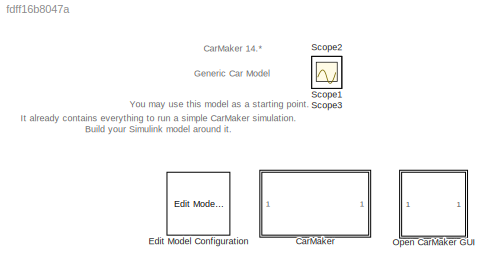
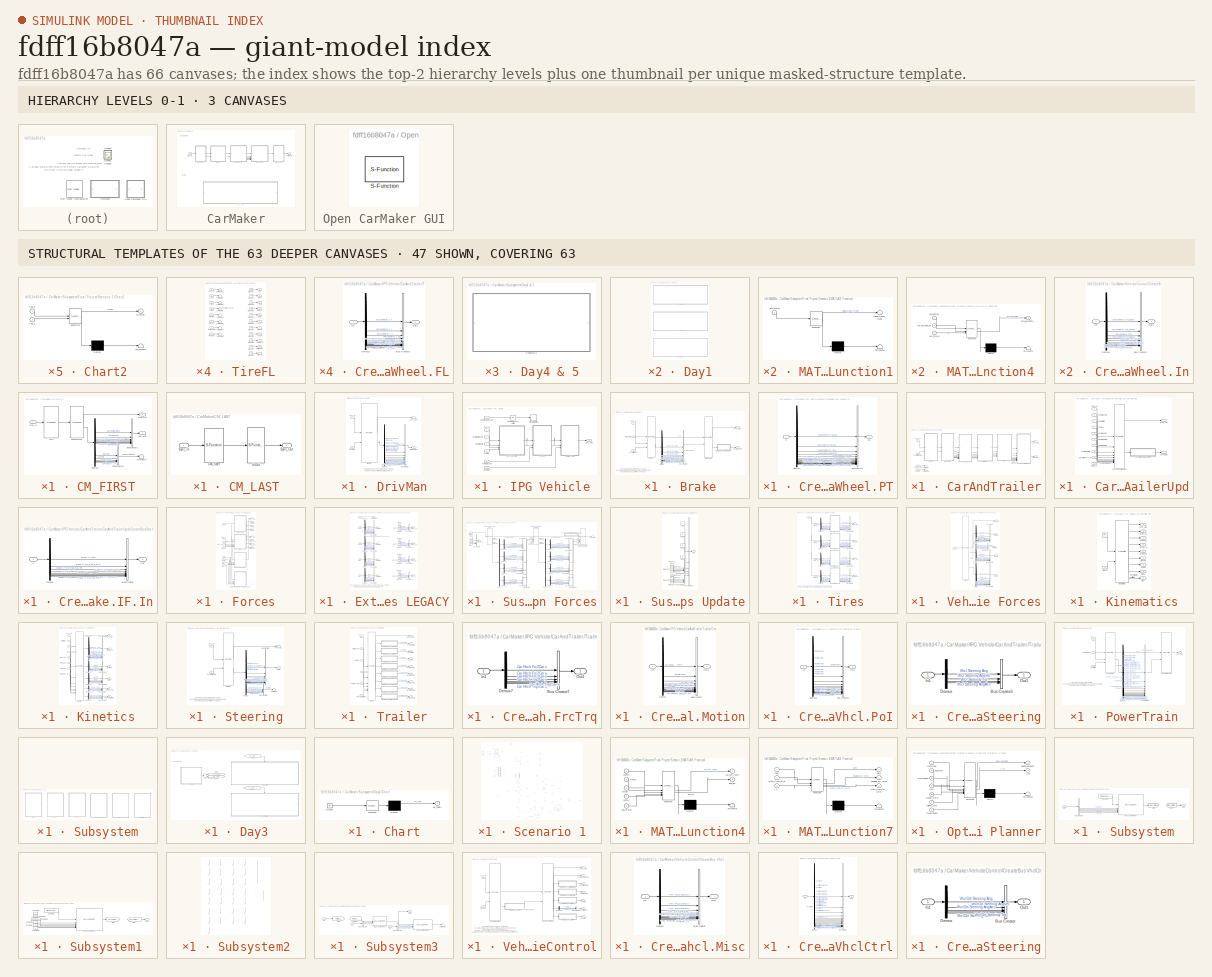
[diagram: thumbnail index - top-2 hierarchy levels (3 canvases) + 47 structural-template representatives of the remaining 63 canvases]
MODEL mdl_fdff16b8047a
KIND model
CONFIG AbsTol = auto
CONFIG EnableMultiTasking = on
CONFIG FixedStep = 0.001
CONFIG MaxStep = auto
CONFIG MinStep = auto
CONFIG RelTol = 1e-3
CONFIG SampleTimeConstraint = Unconstrained
CONFIG SolverName = FixedStepDiscrete
CONFIG StartTime = 0.0
CONFIG StopTime = inf
BLOCK [SubSystem] CarMaker
  TreatAsAtomicUnit = on
BLOCK [SubSystem] CarMaker/CM_FIRST
BLOCK [BusCreator] CarMaker/CM_FIRST/BusCreator1
  InheritFromInputs = on
  Inputs = 8
BLOCK [BusCreator] CarMaker/CM_FIRST/BusCreator2
  InheritFromInputs = on
  Inputs = 6
BLOCK [Demux] CarMaker/CM_FIRST/Demux1
  DisplayOption = none
  Outputs = 14
BLOCK [Outport] CarMaker/CM_FIRST/Env.Misc
  Port = 2
  VectorParamsAs1DForOutWhenUnconnected = off
BLOCK [S-Function] CarMaker/CM_FIRST/Environment
  EnableBusSupport = off
  FunctionName = CM_Sfun
  Parameters = 'Environment'
  SFcnIsStateOwnerBlock = off
  SFunctionDeploymentMode = off
BLOCK [S-Function] CarMaker/CM_FIRST/IoIn
  EnableBusSupport = off
  FunctionName = CM_Sfun
  Parameters = 'IoIn'
  SFcnIsStateOwnerBlock = off
  SFunctionDeploymentMode = off
BLOCK [Inport] CarMaker/CM_FIRST/Sync_In
BLOCK [Outport] CarMaker/CM_FIRST/Sync_Out
  VectorParamsAs1DForOutWhenUnconnected = off
BLOCK [Terminator] CarMaker/CM_FIRST/Terminator
BLOCK [SubSystem] CarMaker/CM_LAST
BLOCK [S-Function] CarMaker/CM_LAST/CM_User
  EnableBusSupport = off
  FunctionName = CM_Sfun
  Parameters = 'CM_User'
  SFcnIsStateOwnerBlock = off
  SFunctionDeploymentMode = off
BLOCK [S-Function] CarMaker/CM_LAST/IoOut
  EnableBusSupport = off
  FunctionName = CM_Sfun
  Parameters = 'IoOut'
  SFcnIsStateOwnerBlock = off
  SFunctionDeploymentMode = off
BLOCK [Inport] CarMaker/CM_LAST/Sync_In
BLOCK [Outport] CarMaker/CM_LAST/Sync_Out
  VectorParamsAs1DForOutWhenUnconnected = off
BLOCK [SubSystem] CarMaker/DrivMan
BLOCK [BusCreator] CarMaker/DrivMan/BusCreator
  InheritFromInputs = on
  Inputs = 20
BLOCK [Demux] CarMaker/DrivMan/Demux
  DisplayOption = none
  Outputs = 20
BLOCK [S-Function] CarMaker/DrivMan/DrivMan
  EnableBusSupport = off
  FunctionName = CM_Sfun
  Parameters = 'DrivMan'
  SFcnIsStateOwnerBlock = off
  SFunctionDeploymentMode = off
BLOCK [Outport] CarMaker/DrivMan/DrivMan.Out
  Port = 2
  VectorParamsAs1DForOutWhenUnconnected = off
BLOCK [Inport] CarMaker/DrivMan/Env.Misc
  Port = 2
BLOCK [Inport] CarMaker/DrivMan/Sync_In
BLOCK [Outport] CarMaker/DrivMan/Sync_Out
  VectorParamsAs1DForOutWhenUnconnected = off
BLOCK [Ground] CarMaker/Ground
BLOCK [SubSystem] CarMaker/IPG Vehicle
BLOCK [SubSystem] CarMaker/IPG Vehicle/Brake
BLOCK [S-Function] CarMaker/IPG Vehicle/Brake/Brake
  EnableBusSupport = off
  FunctionName = CM_Sfun
  Parameters = 'Brake'
  SFcnIsStateOwnerBlock = off
  SFunctionDeploymentMode = off
BLOCK [Inport] CarMaker/IPG Vehicle/Brake/Brake.IF.In
  Port = 2
BLOCK [S-Function] CarMaker/IPG Vehicle/Brake/BrakeUpd
  EnableBusSupport = off
  FunctionName = CM_Sfun
  Parameters = 'BrakeUpd'
  SFcnIsStateOwnerBlock = off
  SFunctionDeploymentMode = off
BLOCK [BusCreator] CarMaker/IPG Vehicle/Brake/BusCreator1
  InheritFromInputs = on
  Inputs = 16
BLOCK [SubSystem] CarMaker/IPG Vehicle/Brake/CreateBus Vhcl.Wheel.PT
BLOCK [BusCreator] CarMaker/IPG Vehicle/Brake/CreateBus Vhcl.Wheel.PT/BusCreator1
  InheritFromInputs = on
  Inputs = 20
BLOCK [Demux] CarMaker/IPG Vehicle/Brake/CreateBus Vhcl.Wheel.PT/Demux1
  DisplayOption = none
  Outputs = 20
BLOCK [Inport] CarMaker/IPG Vehicle/Brake/CreateBus Vhcl.Wheel.PT/In
BLOCK [Outport] CarMaker/IPG Vehicle/Brake/CreateBus Vhcl.Wheel.PT/Out
  VectorParamsAs1DForOutWhenUnconnected = off
BLOCK [Demux] CarMaker/IPG Vehicle/Brake/Demux
  DisplayOption = none
  Outputs = 16
BLOCK [Inport] CarMaker/IPG Vehicle/Brake/Sync_In
BLOCK [Outport] CarMaker/IPG Vehicle/Brake/Sync_Out
  VectorParamsAs1DForOutWhenUnconnected = off
BLOCK [Outport] CarMaker/IPG Vehicle/Brake/Vhcl.Wheel.PT
  Port = 2
  VectorParamsAs1DForOutWhenUnconnected = off
BLOCK [Inport] CarMaker/IPG Vehicle/Brake/VhclCtrl.Brake
  Port = 3
BLOCK [SubSystem] CarMaker/IPG Vehicle/CarAndTrailer
BLOCK [Outport] CarMaker/IPG Vehicle/CarAndTrailer/Brake.IF.In
  Port = 2
  VectorParamsAs1DForOutWhenUnconnected = off
BLOCK [SubSystem] CarMaker/IPG Vehicle/CarAndTrailer/CarAndTrailerUpd
BLOCK [Outport] CarMaker/IPG Vehicle/CarAndTrailer/CarAndTrailerUpd/Brake.IF.In
  Port = 2
  VectorParamsAs1DForOutWhenUnconnected = off
BLOCK [Inport] CarMaker/IPG Vehicle/CarAndTrailer/CarAndTrailerUpd/Car.Hitch.FrcTrq
  Port = 9
BLOCK [S-Function] CarMaker/IPG Vehicle/CarAndTrailer/CarAndTrailerUpd/CarAndTrailerUpd
  EnableBusSupport = off
  FunctionName = CM_Sfun
  Parameters = 'CarAndTrUpd'
  SFcnIsStateOwnerBlock = off
  SFunctionDeploymentMode = off
BLOCK [SubSystem] CarMaker/IPG Vehicle/CarAndTrailer/CarAndTrailerUpd/CreateBus Brake.IF.In
BLOCK [BusCreator] CarMaker/IPG Vehicle/CarAndTrailer/CarAndTrailerUpd/CreateBus Brake.IF.In/BusCreator
  InheritFromInputs = on
  Inputs = 9
BLOCK [Demux] CarMaker/IPG Vehicle/CarAndTrailer/CarAndTrailerUpd/CreateBus Brake.IF.In/Demux
  DisplayOption = none
  Outputs = 9
BLOCK [Inport] CarMaker/IPG Vehicle/CarAndTrailer/CarAndTrailerUpd/CreateBus Brake.IF.In/In
BLOCK [Outport] CarMaker/IPG Vehicle/CarAndTrailer/CarAndTrailerUpd/CreateBus Brake.IF.In/Out
  VectorParamsAs1DForOutWhenUnconnected = off
BLOCK [Inport] CarMaker/IPG Vehicle/CarAndTrailer/CarAndTrailerUpd/Sync_In
BLOCK [Outport] CarMaker/IPG Vehicle/CarAndTrailer/CarAndTrailerUpd/Sync_Out
  VectorParamsAs1DForOutWhenUnconnected = off
BLOCK [Inport] CarMaker/IPG Vehicle/CarAndTrailer/CarAndTrailerUpd/Vhcl.Fr1A
  Port = 10
BLOCK [Inport] CarMaker/IPG Vehicle/CarAndTrailer/CarAndTrailerUpd/Vhcl.Motion
  Port = 3
BLOCK [Inport] CarMaker/IPG Vehicle/CarAndTrailer/CarAndTrailerUpd/Vhcl.PoI
  Port = 4
BLOCK [Inport] CarMaker/IPG Vehicle/CarAndTrailer/CarAndTrailerUpd/Vhcl.Steering
  Port = 2
BLOCK [Inport] CarMaker/IPG Vehicle/CarAndTrailer/CarAndTrailerUpd/Vhcl.Wheel.FL
  Port = 5
BLOCK [Inport] CarMaker/IPG Vehicle/CarAndTrailer/CarAndTrailerUpd/Vhcl.Wheel.FR
  Port = 6
BLOCK [Inport] CarMaker/IPG Vehicle/CarAndTrailer/CarAndTrailerUpd/Vhcl.Wheel.RL
  Port = 7
BLOCK [Inport] CarMaker/IPG Vehicle/CarAndTrailer/CarAndTrailerUpd/Vhcl.Wheel.RR
  Port = 8
BLOCK [SubSystem] CarMaker/IPG Vehicle/CarAndTrailer/Forces
BLOCK [Outport] CarMaker/IPG Vehicle/CarAndTrailer/Forces/Car.Aero
  Port = 3
  VectorParamsAs1DForOutWhenUnconnected = off
BLOCK [Outport] CarMaker/IPG Vehicle/CarAndTrailer/Forces/Car.Load
  Port = 4
  VectorParamsAs1DForOutWhenUnconnected = off
BLOCK [Outport] CarMaker/IPG Vehicle/CarAndTrailer/Forces/Car.Virtual
  Port = 2
  VectorParamsAs1DForOutWhenUnconnected = off
BLOCK [SubSystem] CarMaker/IPG Vehicle/CarAndTrailer/Forces/External Suspension Forces LEGACY
BLOCK [BusCreator] CarMaker/IPG Vehicle/CarAndTrailer/Forces/External Suspension Forces LEGACY/Bus Creator
  DisplayOption = bar
  InheritFromInputs = on
  Inputs = 8
BLOCK [BusCreator] CarMaker/IPG Vehicle/CarAndTrailer/Forces/External Suspension Forces LEGACY/Bus Creator1
  DisplayOption = bar
  InheritFromInputs = on
  Inputs = 4
BLOCK [BusCreator] CarMaker/IPG Vehicle/CarAndTrailer/Forces/External Suspension Forces LEGACY/Bus Creator2
  DisplayOption = bar
  InheritFromInputs = on
  Inputs = 4
BLOCK [BusCreator] CarMaker/IPG Vehicle/CarAndTrailer/Forces/External Suspension Forces LEGACY/Bus Creator3
  DisplayOption = bar
  InheritFromInputs = on
  Inputs = 4
BLOCK [BusCreator] CarMaker/IPG Vehicle/CarAndTrailer/Forces/External Suspension Forces LEGACY/Bus Creator4
  DisplayOption = bar
  InheritFromInputs = on
  Inputs = 4
BLOCK [BusCreator] CarMaker/IPG Vehicle/CarAndTrailer/Forces/External Suspension Forces LEGACY/Bus Creator5
  DisplayOption = bar
  InheritFromInputs = on
  Inputs = 8
BLOCK [BusCreator] CarMaker/IPG Vehicle/CarAndTrailer/Forces/External Suspension Forces LEGACY/Bus Creator6
  DisplayOption = bar
  InheritFromInputs = on
  Inputs = 8
BLOCK [BusCreator] CarMaker/IPG Vehicle/CarAndTrailer/Forces/External Suspension Forces LEGACY/Bus Creator7
  DisplayOption = bar
  InheritFromInputs = on
  Inputs = 8
BLOCK [Demux] CarMaker/IPG Vehicle/CarAndTrailer/Forces/External Suspension Forces LEGACY/Demux1
  DisplayOption = none
  Outputs = 8
BLOCK [Demux] CarMaker/IPG Vehicle/CarAndTrailer/Forces/External Suspension Forces LEGACY/Demux2
  DisplayOption = none
  Outputs = 8
BLOCK [Demux] CarMaker/IPG Vehicle/CarAndTrailer/Forces/External Suspension Forces LEGACY/Demux3
  DisplayOption = none
  Outputs = 8
BLOCK [Demux] CarMaker/IPG Vehicle/CarAndTrailer/Forces/External Suspension Forces LEGACY/Demux4
  DisplayOption = none
  Outputs = 8
BLOCK [Goto] CarMaker/IPG Vehicle/CarAndTrailer/Forces/External Suspension Forces LEGACY/FBuf_ext
  GotoTag = D
  TagVisibility = global
BLOCK [Goto] CarMaker/IPG Vehicle/CarAndTrailer/Forces/External Suspension Forces LEGACY/FDamp_ext
  GotoTag = B
  TagVisibility = global
BLOCK [Goto] CarMaker/IPG Vehicle/CarAndTrailer/Forces/External Suspension Forces LEGACY/FSpring_ext
  TagVisibility = global
BLOCK [Goto] CarMaker/IPG Vehicle/CarAndTrailer/Forces/External Suspension Forces LEGACY/FStabi_ext
  GotoTag = C
  TagVisibility = global
BLOCK [Ground] CarMaker/IPG Vehicle/CarAndTrailer/Forces/External Suspension Forces LEGACY/Ground
BLOCK [Ground] CarMaker/IPG Vehicle/CarAndTrailer/Forces/External Suspension Forces LEGACY/Ground1
BLOCK [Ground] CarMaker/IPG Vehicle/CarAndTrailer/Forces/External Suspension Forces LEGACY/Ground10
BLOCK [Ground] CarMaker/IPG Vehicle/CarAndTrailer/Forces/External Suspension Forces LEGACY/Ground11
BLOCK [Ground] CarMaker/IPG Vehicle/CarAndTrailer/Forces/External Suspension Forces LEGACY/Ground12
BLOCK [Ground] CarMaker/IPG Vehicle/CarAndTrailer/Forces/External Suspension Forces LEGACY/Ground13
BLOCK [Ground] CarMaker/IPG Vehicle/CarAndTrailer/Forces/External Suspension Forces LEGACY/Ground14
BLOCK [Ground] CarMaker/IPG Vehicle/CarAndTrailer/Forces/External Suspension Forces LEGACY/Ground15
BLOCK [Ground] CarMaker/IPG Vehicle/CarAndTrailer/Forces/External Suspension Forces LEGACY/Ground2
BLOCK [Ground] CarMaker/IPG Vehicle/CarAndTrailer/Forces/External Suspension Forces LEGACY/Ground3
BLOCK [Ground] CarMaker/IPG Vehicle/CarAndTrailer/Forces/External Suspension Forces LEGACY/Ground4
BLOCK [Ground] CarMaker/IPG Vehicle/CarAndTrailer/Forces/External Suspension Forces LEGACY/Ground5
BLOCK [Ground] CarMaker/IPG Vehicle/CarAndTrailer/Forces/External Suspension Forces LEGACY/Ground6
BLOCK [Ground] CarMaker/IPG Vehicle/CarAndTrailer/Forces/External Suspension Forces LEGACY/Ground7
BLOCK [Ground] CarMaker/IPG Vehicle/CarAndTrailer/Forces/External Suspension Forces LEGACY/Ground8
BLOCK [Ground] CarMaker/IPG Vehicle/CarAndTrailer/Forces/External Suspension Forces LEGACY/Ground9
BLOCK [Inport] CarMaker/IPG Vehicle/CarAndTrailer/Forces/External Suspension Forces LEGACY/Sync_In
BLOCK [Terminator] CarMaker/IPG Vehicle/CarAndTrailer/Forces/External Suspension Forces LEGACY/Terminator1
BLOCK [Terminator] CarMaker/IPG Vehicle/CarAndTrailer/Forces/External Suspension Forces LEGACY/Terminator12
BLOCK [Terminator] CarMaker/IPG Vehicle/CarAndTrailer/Forces/External Suspension Forces LEGACY/Terminator2
BLOCK [Terminator] CarMaker/IPG Vehicle/CarAndTrailer/Forces/External Suspension Forces LEGACY/Terminator3
BLOCK [Terminator] CarMaker/IPG Vehicle/CarAndTrailer/Forces/External Suspension Forces LEGACY/Terminator4
BLOCK [Inport] CarMaker/IPG Vehicle/CarAndTrailer/Forces/External Suspension Forces LEGACY/lBuf
  Port = 5
BLOCK [Inport] CarMaker/IPG Vehicle/CarAndTrailer/Forces/External Suspension Forces LEGACY/lSpring
  Port = 2
BLOCK [Inport] CarMaker/IPG Vehicle/CarAndTrailer/Forces/External Suspension Forces LEGACY/lStabi
  Port = 4
BLOCK [Inport] CarMaker/IPG Vehicle/CarAndTrailer/Forces/External Suspension Forces LEGACY/vDamp
  Port = 3
BLOCK [SubSystem] CarMaker/IPG Vehicle/CarAndTrailer/Forces/Suspension Forces
BLOCK [BusCreator] CarMaker/IPG Vehicle/CarAndTrailer/Forces/Suspension Forces/Bus Creator
  DisplayOption = bar
  InheritFromInputs = on
  Inputs = 4
BLOCK [BusCreator] CarMaker/IPG Vehicle/CarAndTrailer/Forces/Suspension Forces/Bus Creator1
  DisplayOption = bar
  InheritFromInputs = on
  Inputs = 4
BLOCK [BusCreator] CarMaker/IPG Vehicle/CarAndTrailer/Forces/Suspension Forces/Bus Creator10
  DisplayOption = bar
  InheritFromInputs = on
  Inputs = 4
BLOCK [BusCreator] CarMaker/IPG Vehicle/CarAndTrailer/Forces/Suspension Forces/Bus Creator2
  DisplayOption = bar
  InheritFromInputs = on
  Inputs = 4
BLOCK [BusCreator] CarMaker/IPG Vehicle/CarAndTrailer/Forces/Suspension Forces/Bus Creator3
  DisplayOption = bar
  InheritFromInputs = on
  Inputs = 4
BLOCK [BusCreator] CarMaker/IPG Vehicle/CarAndTrailer/Forces/Suspension Forces/Bus Creator4
  DisplayOption = bar
  InheritFromInputs = on
  Inputs = 6
BLOCK [BusCreator] CarMaker/IPG Vehicle/CarAndTrailer/Forces/Suspension Forces/Bus Creator5
  DisplayOption = bar
  InheritFromInputs = on
  Inputs = 6
BLOCK [BusCreator] CarMaker/IPG Vehicle/CarAndTrailer/Forces/Suspension Forces/Bus Creator6
  DisplayOption = bar
  InheritFromInputs = on
  Inputs = 6
BLOCK [BusCreator] CarMaker/IPG Vehicle/CarAndTrailer/Forces/Suspension Forces/Bus Creator7
  DisplayOption = bar
  InheritFromInputs = on
  Inputs = 6
BLOCK [BusCreator] CarMaker/IPG Vehicle/CarAndTrailer/Forces/Suspension Forces/Bus Creator8
  DisplayOption = bar
  InheritFromInputs = on
  Inputs = 4
BLOCK [BusCreator] CarMaker/IPG Vehicle/CarAndTrailer/Forces/Suspension Forces/Bus Creator9
  DisplayOption = bar
  InheritFromInputs = on
  Inputs = 4
BLOCK [Demux] CarMaker/IPG Vehicle/CarAndTrailer/Forces/Suspension Forces/Demux
BLOCK [Demux] CarMaker/IPG Vehicle/CarAndTrailer/Forces/Suspension Forces/Demux1
BLOCK [Demux] CarMaker/IPG Vehicle/CarAndTrailer/Forces/Suspension Forces/Demux2
BLOCK [Demux] CarMaker/IPG Vehicle/CarAndTrailer/Forces/Suspension Forces/Demux3
BLOCK [Demux] CarMaker/IPG Vehicle/CarAndTrailer/Forces/Suspension Forces/Demux4
BLOCK [Demux] CarMaker/IPG Vehicle/CarAndTrailer/Forces/Suspension Forces/Demux5
BLOCK [Demux] CarMaker/IPG Vehicle/CarAndTrailer/Forces/Suspension Forces/Demux6
  Outputs = 6
BLOCK [Demux] CarMaker/IPG Vehicle/CarAndTrailer/Forces/Suspension Forces/Demux7
  Outputs = 6
BLOCK [Demux] CarMaker/IPG Vehicle/CarAndTrailer/Forces/Suspension Forces/Demux8
  Outputs = 6
BLOCK [Demux] CarMaker/IPG Vehicle/CarAndTrailer/Forces/Suspension Forces/Demux9
  Outputs = 6
BLOCK [Ground] CarMaker/IPG Vehicle/CarAndTrailer/Forces/Suspension Forces/Ground_1
BLOCK [Ground] CarMaker/IPG Vehicle/CarAndTrailer/Forces/Suspension Forces/Ground_2
BLOCK [Ground] CarMaker/IPG Vehicle/CarAndTrailer/Forces/Suspension Forces/Ground_4
BLOCK [Ground] CarMaker/IPG Vehicle/CarAndTrailer/Forces/Suspension Forces/Ground_5
BLOCK [S-Function] CarMaker/IPG Vehicle/CarAndTrailer/Forces/Suspension Forces/Suspension Control Unit
  EnableBusSupport = off
  FunctionName = CM_Sfun
  Parameters = 'ForcesSuspControl'
  SFcnIsStateOwnerBlock = off
  SFunctionDeploymentMode = off
BLOCK [SubSystem] CarMaker/IPG Vehicle/CarAndTrailer/Forces/Suspension Forces/Suspension External Forces Update
BLOCK [BusCreator] CarMaker/IPG Vehicle/CarAndTrailer/Forces/Suspension Forces/Suspension External Forces Update/Bus Creator21
  DisplayOption = bar
  InheritFromInputs = on
  Inputs = 6
BLOCK [BusCreator] CarMaker/IPG Vehicle/CarAndTrailer/Forces/Suspension Forces/Suspension External Forces Update/Bus Creator22
  DisplayOption = bar
  InheritFromInputs = on
  Inputs = 4
BLOCK [BusCreator] CarMaker/IPG Vehicle/CarAndTrailer/Forces/Suspension Forces/Suspension External Forces Update/Bus Creator23
  DisplayOption = bar
  InheritFromInputs = on
  Inputs = 4
BLOCK [From] CarMaker/IPG Vehicle/CarAndTrailer/Forces/Suspension Forces/Suspension External Forces Update/From
  TagVisibility = global
BLOCK [From] CarMaker/IPG Vehicle/CarAndTrailer/Forces/Suspension Forces/Suspension External Forces Update/From1
  GotoTag = B
  TagVisibility = global
BLOCK [From] CarMaker/IPG Vehicle/CarAndTrailer/Forces/Suspension Forces/Suspension External Forces Update/From2
  GotoTag = C
  TagVisibility = global
BLOCK [From] CarMaker/IPG Vehicle/CarAndTrailer/Forces/Suspension Forces/Suspension External Forces Update/From3
  GotoTag = D
  TagVisibility = global
BLOCK [Ground] CarMaker/IPG Vehicle/CarAndTrailer/Forces/Suspension Forces/Suspension External Forces Update/Ground32
BLOCK [Ground] CarMaker/IPG Vehicle/CarAndTrailer/Forces/Suspension Forces/Suspension External Forces Update/Ground33
BLOCK [Ground] CarMaker/IPG Vehicle/CarAndTrailer/Forces/Suspension Forces/Suspension External Forces Update/Ground34
BLOCK [Ground] CarMaker/IPG Vehicle/CarAndTrailer/Forces/Suspension Forces/Suspension External Forces Update/Ground35
BLOCK [Ground] CarMaker/IPG Vehicle/CarAndTrailer/Forces/Suspension Forces/Suspension External Forces Update/Ground36
BLOCK [Ground] CarMaker/IPG Vehicle/CarAndTrailer/Forces/Suspension Forces/Suspension External Forces Update/Ground37
BLOCK [Ground] CarMaker/IPG Vehicle/CarAndTrailer/Forces/Suspension Forces/Suspension External Forces Update/Ground38
BLOCK [Ground] CarMaker/IPG Vehicle/CarAndTrailer/Forces/Suspension Forces/Suspension External Forces Update/Ground39
BLOCK [Outport] CarMaker/IPG Vehicle/CarAndTrailer/Forces/Suspension Forces/Suspension External Forces Update/Out1
BLOCK [S-Function] CarMaker/IPG Vehicle/CarAndTrailer/Forces/Suspension Forces/Suspension Force Elements
  EnableBusSupport = off
  FunctionName = CM_Sfun
  Parameters = 'ForcesSusp'
  SFcnIsStateOwnerBlock = off
  SFunctionDeploymentMode = off
BLOCK [S-Function] CarMaker/IPG Vehicle/CarAndTrailer/Forces/Suspension Forces/Suspension Force Elements Update
  EnableBusSupport = off
  FunctionName = CM_Sfun
  Parameters = 'ForcesSuspUpd'
  SFcnIsStateOwnerBlock = off
  SFunctionDeploymentMode = off
BLOCK [Inport] CarMaker/IPG Vehicle/CarAndTrailer/Forces/Suspension Forces/Sync_In
BLOCK [Outport] CarMaker/IPG Vehicle/CarAndTrailer/Forces/Suspension Forces/Sync_Out
  VectorParamsAs1DForOutWhenUnconnected = off
BLOCK [Terminator] CarMaker/IPG Vehicle/CarAndTrailer/Forces/Suspension Forces/Terminator
BLOCK [Terminator] CarMaker/IPG Vehicle/CarAndTrailer/Forces/Suspension Forces/Terminator1
BLOCK [Terminator] CarMaker/IPG Vehicle/CarAndTrailer/Forces/Suspension Forces/Terminator2
BLOCK [Terminator] CarMaker/IPG Vehicle/CarAndTrailer/Forces/Suspension Forces/Terminator3
BLOCK [Terminator] CarMaker/IPG Vehicle/CarAndTrailer/Forces/Suspension Forces/Terminator_5
BLOCK [Inport] CarMaker/IPG Vehicle/CarAndTrailer/Forces/Suspension Forces/lBuf
  Port = 5
BLOCK [Inport] CarMaker/IPG Vehicle/CarAndTrailer/Forces/Suspension Forces/lSpring
  Port = 2
BLOCK [Inport] CarMaker/IPG Vehicle/CarAndTrailer/Forces/Suspension Forces/lStabi
  Port = 4
BLOCK [Inport] CarMaker/IPG Vehicle/CarAndTrailer/Forces/Suspension Forces/vDamp
  Port = 3
BLOCK [Inport] CarMaker/IPG Vehicle/CarAndTrailer/Forces/Sync_In
BLOCK [Outport] CarMaker/IPG Vehicle/CarAndTrailer/Forces/Sync_Out
  VectorParamsAs1DForOutWhenUnconnected = off
BLOCK [Inport] CarMaker/IPG Vehicle/CarAndTrailer/Forces/TireFL_In
  Port = 2
BLOCK [Outport] CarMaker/IPG Vehicle/CarAndTrailer/Forces/TireFL_Out
  Port = 5
  VectorParamsAs1DForOutWhenUnconnected = off
BLOCK [Inport] CarMaker/IPG Vehicle/CarAndTrailer/Forces/TireFR_In
  Port = 3
BLOCK [Outport] CarMaker/IPG Vehicle/CarAndTrailer/Forces/TireFR_Out
  Port = 6
  VectorParamsAs1DForOutWhenUnconnected = off
BLOCK [Inport] CarMaker/IPG Vehicle/CarAndTrailer/Forces/TireRL_In
  Port = 4
BLOCK [Outport] CarMaker/IPG Vehicle/CarAndTrailer/Forces/TireRL_Out
  Port = 7
  VectorParamsAs1DForOutWhenUnconnected = off
BLOCK [Inport] CarMaker/IPG Vehicle/CarAndTrailer/Forces/TireRR_In
  Port = 5
BLOCK [Outport] CarMaker/IPG Vehicle/CarAndTrailer/Forces/TireRR_Out
  Port = 8
  VectorParamsAs1DForOutWhenUnconnected = off
BLOCK [SubSystem] CarMaker/IPG Vehicle/CarAndTrailer/Forces/Tires
BLOCK [BusCreator] CarMaker/IPG Vehicle/CarAndTrailer/Forces/Tires/Bus Creator1
  DisplayOption = bar
  InheritFromInputs = on
  Inputs = 11
BLOCK [BusCreator] CarMaker/IPG Vehicle/CarAndTrailer/Forces/Tires/Bus Creator2
  DisplayOption = bar
  InheritFromInputs = on
  Inputs = 11
BLOCK [BusCreator] CarMaker/IPG Vehicle/CarAndTrailer/Forces/Tires/Bus Creator3
  DisplayOption = bar
  InheritFromInputs = on
  Inputs = 11
BLOCK [BusCreator] CarMaker/IPG Vehicle/CarAndTrailer/Forces/Tires/Bus Creator4
  DisplayOption = bar
  InheritFromInputs = on
  Inputs = 11
BLOCK [Demux] CarMaker/IPG Vehicle/CarAndTrailer/Forces/Tires/Demux1
  DisplayOption = none
  Outputs = 7
BLOCK [Demux] CarMaker/IPG Vehicle/CarAndTrailer/Forces/Tires/Demux2
  DisplayOption = none
  Outputs = 7
BLOCK [Demux] CarMaker/IPG Vehicle/CarAndTrailer/Forces/Tires/Demux3
  DisplayOption = none
  Outputs = 7
BLOCK [Demux] CarMaker/IPG Vehicle/CarAndTrailer/Forces/Tires/Demux8
  DisplayOption = none
  Outputs = 7
BLOCK [Inport] CarMaker/IPG Vehicle/CarAndTrailer/Forces/Tires/Sync_In
BLOCK [SubSystem] CarMaker/IPG Vehicle/CarAndTrailer/Forces/Tires/TireFL
BLOCK [Outport] CarMaker/IPG Vehicle/CarAndTrailer/Forces/Tires/TireFL/AlignTrq
  Port = 11
  VectorParamsAs1DForOutWhenUnconnected = off
BLOCK [Outport] CarMaker/IPG Vehicle/CarAndTrailer/Forces/Tires/TireFL/Alpha
  Port = 2
  VectorParamsAs1DForOutWhenUnconnected = off
BLOCK [Ground] CarMaker/IPG Vehicle/CarAndTrailer/Forces/Tires/TireFL/Ground1
BLOCK [Ground] CarMaker/IPG Vehicle/CarAndTrailer/Forces/Tires/TireFL/Ground10
BLOCK [Ground] CarMaker/IPG Vehicle/CarAndTrailer/Forces/Tires/TireFL/Ground11
BLOCK [Ground] CarMaker/IPG Vehicle/CarAndTrailer/Forces/Tires/TireFL/Ground2
BLOCK [Ground] CarMaker/IPG Vehicle/CarAndTrailer/Forces/Tires/TireFL/Ground3
BLOCK [Ground] CarMaker/IPG Vehicle/CarAndTrailer/Forces/Tires/TireFL/Ground4
BLOCK [Ground] CarMaker/IPG Vehicle/CarAndTrailer/Forces/Tires/TireFL/Ground5
BLOCK [Ground] CarMaker/IPG Vehicle/CarAndTrailer/Forces/Tires/TireFL/Ground6
BLOCK [Ground] CarMaker/IPG Vehicle/CarAndTrailer/Forces/Tires/TireFL/Ground7
BLOCK [Ground] CarMaker/IPG Vehicle/CarAndTrailer/Forces/Tires/TireFL/Ground8
BLOCK [Ground] CarMaker/IPG Vehicle/CarAndTrailer/Forces/Tires/TireFL/Ground9
BLOCK [Inport] CarMaker/IPG Vehicle/CarAndTrailer/Forces/Tires/TireFL/InclinAngle
  Port = 7
BLOCK [Inport] CarMaker/IPG Vehicle/CarAndTrailer/Forces/Tires/TireFL/Load
  Port = 2
BLOCK [Outport] CarMaker/IPG Vehicle/CarAndTrailer/Forces/Tires/TireFL/LoadFrc
  Port = 8
  VectorParamsAs1DForOutWhenUnconnected = off
BLOCK [Outport] CarMaker/IPG Vehicle/CarAndTrailer/Forces/Tires/TireFL/LongFrc
  Port = 6
  VectorParamsAs1DForOutWhenUnconnected = off
BLOCK [Outport] CarMaker/IPG Vehicle/CarAndTrailer/Forces/Tires/TireFL/OverturnTrq
  Port = 9
  VectorParamsAs1DForOutWhenUnconnected = off
BLOCK [Inport] CarMaker/IPG Vehicle/CarAndTrailer/Forces/Tires/TireFL/Rim_rotv
  Port = 5
BLOCK [Inport] CarMaker/IPG Vehicle/CarAndTrailer/Forces/Tires/TireFL/Rim_turnv
  Port = 6
BLOCK [Outport] CarMaker/IPG Vehicle/CarAndTrailer/Forces/Tires/TireFL/RollResist
  Port = 10
  VectorParamsAs1DForOutWhenUnconnected = off
BLOCK [Outport] CarMaker/IPG Vehicle/CarAndTrailer/Forces/Tires/TireFL/SideFrc
  Port = 7
  VectorParamsAs1DForOutWhenUnconnected = off
BLOCK [Outport] CarMaker/IPG Vehicle/CarAndTrailer/Forces/Tires/TireFL/Slp
  VectorParamsAs1DForOutWhenUnconnected = off
BLOCK [Inport] CarMaker/IPG Vehicle/CarAndTrailer/Forces/Tires/TireFL/Sync_In
BLOCK [Terminator] CarMaker/IPG Vehicle/CarAndTrailer/Forces/Tires/TireFL/Terminator
BLOCK [Terminator] CarMaker/IPG Vehicle/CarAndTrailer/Forces/Tires/TireFL/Terminator1
BLOCK [Terminator] CarMaker/IPG Vehicle/CarAndTrailer/Forces/Tires/TireFL/Terminator12
BLOCK [Terminator] CarMaker/IPG Vehicle/CarAndTrailer/Forces/Tires/TireFL/Terminator2
BLOCK [Terminator] CarMaker/IPG Vehicle/CarAndTrailer/Forces/Tires/TireFL/Terminator3
BLOCK [Terminator] CarMaker/IPG Vehicle/CarAndTrailer/Forces/Tires/TireFL/Terminator4
BLOCK [Terminator] CarMaker/IPG Vehicle/CarAndTrailer/Forces/Tires/TireFL/Terminator5
BLOCK [Terminator] CarMaker/IPG Vehicle/CarAndTrailer/Forces/Tires/TireFL/Terminator6
BLOCK [Outport] CarMaker/IPG Vehicle/CarAndTrailer/Forces/Tires/TireFL/TurnSlp
  Port = 3
  VectorParamsAs1DForOutWhenUnconnected = off
BLOCK [Inport] CarMaker/IPG Vehicle/CarAndTrailer/Forces/Tires/TireFL/muRoad
  Port = 8
BLOCK [Outport] CarMaker/IPG Vehicle/CarAndTrailer/Forces/Tires/TireFL/rBelt_eff
  Port = 4
  VectorParamsAs1DForOutWhenUnconnected = off
BLOCK [Outport] CarMaker/IPG Vehicle/CarAndTrailer/Forces/Tires/TireFL/vBelt
  Port = 5
  VectorParamsAs1DForOutWhenUnconnected = off
BLOCK [Inport] CarMaker/IPG Vehicle/CarAndTrailer/Forces/Tires/TireFL/vxtrans
  Port = 3
BLOCK [Inport] CarMaker/IPG Vehicle/CarAndTrailer/Forces/Tires/TireFL/vytrans
  Port = 4
BLOCK [Inport] CarMaker/IPG Vehicle/CarAndTrailer/Forces/Tires/TireFL_In
  Port = 2
BLOCK [Outport] CarMaker/IPG Vehicle/CarAndTrailer/Forces/Tires/TireFL_Out
  VectorParamsAs1DForOutWhenUnconnected = off
BLOCK [SubSystem] CarMaker/IPG Vehicle/CarAndTrailer/Forces/Tires/TireFR
BLOCK [Outport] CarMaker/IPG Vehicle/CarAndTrailer/Forces/Tires/TireFR/AlignTrq
  Port = 11
  VectorParamsAs1DForOutWhenUnconnected = off
BLOCK [Outport] CarMaker/IPG Vehicle/CarAndTrailer/Forces/Tires/TireFR/Alpha
  Port = 2
  VectorParamsAs1DForOutWhenUnconnected = off
BLOCK [Ground] CarMaker/IPG Vehicle/CarAndTrailer/Forces/Tires/TireFR/Ground1
BLOCK [Ground] CarMaker/IPG Vehicle/CarAndTrailer/Forces/Tires/TireFR/Ground10
BLOCK [Ground] CarMaker/IPG Vehicle/CarAndTrailer/Forces/Tires/TireFR/Ground11
BLOCK [Ground] CarMaker/IPG Vehicle/CarAndTrailer/Forces/Tires/TireFR/Ground2
BLOCK [Ground] CarMaker/IPG Vehicle/CarAndTrailer/Forces/Tires/TireFR/Ground3
BLOCK [Ground] CarMaker/IPG Vehicle/CarAndTrailer/Forces/Tires/TireFR/Ground4
BLOCK [Ground] CarMaker/IPG Vehicle/CarAndTrailer/Forces/Tires/TireFR/Ground5
BLOCK [Ground] CarMaker/IPG Vehicle/CarAndTrailer/Forces/Tires/TireFR/Ground6
BLOCK [Ground] CarMaker/IPG Vehicle/CarAndTrailer/Forces/Tires/TireFR/Ground7
BLOCK [Ground] CarMaker/IPG Vehicle/CarAndTrailer/Forces/Tires/TireFR/Ground8
BLOCK [Ground] CarMaker/IPG Vehicle/CarAndTrailer/Forces/Tires/TireFR/Ground9
BLOCK [Inport] CarMaker/IPG Vehicle/CarAndTrailer/Forces/Tires/TireFR/InclinAngle
  Port = 7
BLOCK [Inport] CarMaker/IPG Vehicle/CarAndTrailer/Forces/Tires/TireFR/Load
  Port = 2
BLOCK [Outport] CarMaker/IPG Vehicle/CarAndTrailer/Forces/Tires/TireFR/LoadFrc
  Port = 8
  VectorParamsAs1DForOutWhenUnconnected = off
BLOCK [Outport] CarMaker/IPG Vehicle/CarAndTrailer/Forces/Tires/TireFR/LongFrc
  Port = 6
  VectorParamsAs1DForOutWhenUnconnected = off
BLOCK [Outport] CarMaker/IPG Vehicle/CarAndTrailer/Forces/Tires/TireFR/OverturnTrq
  Port = 9
  VectorParamsAs1DForOutWhenUnconnected = off
BLOCK [Inport] CarMaker/IPG Vehicle/CarAndTrailer/Forces/Tires/TireFR/Rim_rotv
  Port = 5
BLOCK [Inport] CarMaker/IPG Vehicle/CarAndTrailer/Forces/Tires/TireFR/Rim_turnv
  Port = 6
BLOCK [Outport] CarMaker/IPG Vehicle/CarAndTrailer/Forces/Tires/TireFR/RollResist
  Port = 10
  VectorParamsAs1DForOutWhenUnconnected = off
BLOCK [Outport] CarMaker/IPG Vehicle/CarAndTrailer/Forces/Tires/TireFR/SideFrc
  Port = 7
  VectorParamsAs1DForOutWhenUnconnected = off
BLOCK [Outport] CarMaker/IPG Vehicle/CarAndTrailer/Forces/Tires/TireFR/Slp
  VectorParamsAs1DForOutWhenUnconnected = off
BLOCK [Inport] CarMaker/IPG Vehicle/CarAndTrailer/Forces/Tires/TireFR/Sync_In
BLOCK [Terminator] CarMaker/IPG Vehicle/CarAndTrailer/Forces/Tires/TireFR/Terminator
BLOCK [Terminator] CarMaker/IPG Vehicle/CarAndTrailer/Forces/Tires/TireFR/Terminator1
BLOCK [Terminator] CarMaker/IPG Vehicle/CarAndTrailer/Forces/Tires/TireFR/Terminator12
BLOCK [Terminator] CarMaker/IPG Vehicle/CarAndTrailer/Forces/Tires/TireFR/Terminator2
BLOCK [Terminator] CarMaker/IPG Vehicle/CarAndTrailer/Forces/Tires/TireFR/Terminator3
BLOCK [Terminator] CarMaker/IPG Vehicle/CarAndTrailer/Forces/Tires/TireFR/Terminator4
BLOCK [Terminator] CarMaker/IPG Vehicle/CarAndTrailer/Forces/Tires/TireFR/Terminator5
BLOCK [Terminator] CarMaker/IPG Vehicle/CarAndTrailer/Forces/Tires/TireFR/Terminator6
BLOCK [Outport] CarMaker/IPG Vehicle/CarAndTrailer/Forces/Tires/TireFR/TurnSlp
  Port = 3
  VectorParamsAs1DForOutWhenUnconnected = off
BLOCK [Inport] CarMaker/IPG Vehicle/CarAndTrailer/Forces/Tires/TireFR/muRoad
  Port = 8
BLOCK [Outport] CarMaker/IPG Vehicle/CarAndTrailer/Forces/Tires/TireFR/rBelt_eff
  Port = 4
  VectorParamsAs1DForOutWhenUnconnected = off
BLOCK [Outport] CarMaker/IPG Vehicle/CarAndTrailer/Forces/Tires/TireFR/vBelt
  Port = 5
  VectorParamsAs1DForOutWhenUnconnected = off
BLOCK [Inport] CarMaker/IPG Vehicle/CarAndTrailer/Forces/Tires/TireFR/vxtrans
  Port = 3
BLOCK [Inport] CarMaker/IPG Vehicle/CarAndTrailer/Forces/Tires/TireFR/vytrans
  Port = 4
BLOCK [Inport] CarMaker/IPG Vehicle/CarAndTrailer/Forces/Tires/TireFR_In
  Port = 3
BLOCK [Outport] CarMaker/IPG Vehicle/CarAndTrailer/Forces/Tires/TireFR_Out
  Port = 2
  VectorParamsAs1DForOutWhenUnconnected = off
BLOCK [SubSystem] CarMaker/IPG Vehicle/CarAndTrailer/Forces/Tires/TireRL
BLOCK [Outport] CarMaker/IPG Vehicle/CarAndTrailer/Forces/Tires/TireRL/AlignTrq
  Port = 11
  VectorParamsAs1DForOutWhenUnconnected = off
BLOCK [Outport] CarMaker/IPG Vehicle/CarAndTrailer/Forces/Tires/TireRL/Alpha
  Port = 2
  VectorParamsAs1DForOutWhenUnconnected = off
BLOCK [Ground] CarMaker/IPG Vehicle/CarAndTrailer/Forces/Tires/TireRL/Ground1
BLOCK [Ground] CarMaker/IPG Vehicle/CarAndTrailer/Forces/Tires/TireRL/Ground10
BLOCK [Ground] CarMaker/IPG Vehicle/CarAndTrailer/Forces/Tires/TireRL/Ground11
BLOCK [Ground] CarMaker/IPG Vehicle/CarAndTrailer/Forces/Tires/TireRL/Ground2
BLOCK [Ground] CarMaker/IPG Vehicle/CarAndTrailer/Forces/Tires/TireRL/Ground3
BLOCK [Ground] CarMaker/IPG Vehicle/CarAndTrailer/Forces/Tires/TireRL/Ground4
BLOCK [Ground] CarMaker/IPG Vehicle/CarAndTrailer/Forces/Tires/TireRL/Ground5
BLOCK [Ground] CarMaker/IPG Vehicle/CarAndTrailer/Forces/Tires/TireRL/Ground6
BLOCK [Ground] CarMaker/IPG Vehicle/CarAndTrailer/Forces/Tires/TireRL/Ground7
BLOCK [Ground] CarMaker/IPG Vehicle/CarAndTrailer/Forces/Tires/TireRL/Ground8
BLOCK [Ground] CarMaker/IPG Vehicle/CarAndTrailer/Forces/Tires/TireRL/Ground9
BLOCK [Inport] CarMaker/IPG Vehicle/CarAndTrailer/Forces/Tires/TireRL/InclinAngle
  Port = 7
BLOCK [Inport] CarMaker/IPG Vehicle/CarAndTrailer/Forces/Tires/TireRL/Load
  Port = 2
BLOCK [Outport] CarMaker/IPG Vehicle/CarAndTrailer/Forces/Tires/TireRL/LoadFrc
  Port = 8
  VectorParamsAs1DForOutWhenUnconnected = off
BLOCK [Outport] CarMaker/IPG Vehicle/CarAndTrailer/Forces/Tires/TireRL/LongFrc
  Port = 6
  VectorParamsAs1DForOutWhenUnconnected = off
BLOCK [Outport] CarMaker/IPG Vehicle/CarAndTrailer/Forces/Tires/TireRL/OverturnTrq
  Port = 9
  VectorParamsAs1DForOutWhenUnconnected = off
BLOCK [Inport] CarMaker/IPG Vehicle/CarAndTrailer/Forces/Tires/TireRL/Rim_rotv
  Port = 5
BLOCK [Inport] CarMaker/IPG Vehicle/CarAndTrailer/Forces/Tires/TireRL/Rim_turnv
  Port = 6
BLOCK [Outport] CarMaker/IPG Vehicle/CarAndTrailer/Forces/Tires/TireRL/RollResist
  Port = 10
  VectorParamsAs1DForOutWhenUnconnected = off
BLOCK [Outport] CarMaker/IPG Vehicle/CarAndTrailer/Forces/Tires/TireRL/SideFrc
  Port = 7
  VectorParamsAs1DForOutWhenUnconnected = off
BLOCK [Outport] CarMaker/IPG Vehicle/CarAndTrailer/Forces/Tires/TireRL/Slp
  VectorParamsAs1DForOutWhenUnconnected = off
BLOCK [Inport] CarMaker/IPG Vehicle/CarAndTrailer/Forces/Tires/TireRL/Sync_In
BLOCK [Terminator] CarMaker/IPG Vehicle/CarAndTrailer/Forces/Tires/TireRL/Terminator
BLOCK [Terminator] CarMaker/IPG Vehicle/CarAndTrailer/Forces/Tires/TireRL/Terminator1
BLOCK [Terminator] CarMaker/IPG Vehicle/CarAndTrailer/Forces/Tires/TireRL/Terminator12
BLOCK [Terminator] CarMaker/IPG Vehicle/CarAndTrailer/Forces/Tires/TireRL/Terminator2
BLOCK [Terminator] CarMaker/IPG Vehicle/CarAndTrailer/Forces/Tires/TireRL/Terminator3
BLOCK [Terminator] CarMaker/IPG Vehicle/CarAndTrailer/Forces/Tires/TireRL/Terminator4
BLOCK [Terminator] CarMaker/IPG Vehicle/CarAndTrailer/Forces/Tires/TireRL/Terminator5
BLOCK [Terminator] CarMaker/IPG Vehicle/CarAndTrailer/Forces/Tires/TireRL/Terminator6
BLOCK [Outport] CarMaker/IPG Vehicle/CarAndTrailer/Forces/Tires/TireRL/TurnSlp
  Port = 3
  VectorParamsAs1DForOutWhenUnconnected = off
BLOCK [Inport] CarMaker/IPG Vehicle/CarAndTrailer/Forces/Tires/TireRL/muRoad
  Port = 8
BLOCK [Outport] CarMaker/IPG Vehicle/CarAndTrailer/Forces/Tires/TireRL/rBelt_eff
  Port = 4
  VectorParamsAs1DForOutWhenUnconnected = off
BLOCK [Outport] CarMaker/IPG Vehicle/CarAndTrailer/Forces/Tires/TireRL/vBelt
  Port = 5
  VectorParamsAs1DForOutWhenUnconnected = off
BLOCK [Inport] CarMaker/IPG Vehicle/CarAndTrailer/Forces/Tires/TireRL/vxtrans
  Port = 3
BLOCK [Inport] CarMaker/IPG Vehicle/CarAndTrailer/Forces/Tires/TireRL/vytrans
  Port = 4
BLOCK [Inport] CarMaker/IPG Vehicle/CarAndTrailer/Forces/Tires/TireRL_In
  Port = 4
BLOCK [Outport] CarMaker/IPG Vehicle/CarAndTrailer/Forces/Tires/TireRL_Out
  Port = 3
  VectorParamsAs1DForOutWhenUnconnected = off
BLOCK [SubSystem] CarMaker/IPG Vehicle/CarAndTrailer/Forces/Tires/TireRR
BLOCK [Outport] CarMaker/IPG Vehicle/CarAndTrailer/Forces/Tires/TireRR/AlignTrq
  Port = 11
  VectorParamsAs1DForOutWhenUnconnected = off
BLOCK [Outport] CarMaker/IPG Vehicle/CarAndTrailer/Forces/Tires/TireRR/Alpha
  Port = 2
  VectorParamsAs1DForOutWhenUnconnected = off
BLOCK [Ground] CarMaker/IPG Vehicle/CarAndTrailer/Forces/Tires/TireRR/Ground1
BLOCK [Ground] CarMaker/IPG Vehicle/CarAndTrailer/Forces/Tires/TireRR/Ground10
BLOCK [Ground] CarMaker/IPG Vehicle/CarAndTrailer/Forces/Tires/TireRR/Ground11
BLOCK [Ground] CarMaker/IPG Vehicle/CarAndTrailer/Forces/Tires/TireRR/Ground2
BLOCK [Ground] CarMaker/IPG Vehicle/CarAndTrailer/Forces/Tires/TireRR/Ground3
BLOCK [Ground] CarMaker/IPG Vehicle/CarAndTrailer/Forces/Tires/TireRR/Ground4
BLOCK [Ground] CarMaker/IPG Vehicle/CarAndTrailer/Forces/Tires/TireRR/Ground5
BLOCK [Ground] CarMaker/IPG Vehicle/CarAndTrailer/Forces/Tires/TireRR/Ground6
BLOCK [Ground] CarMaker/IPG Vehicle/CarAndTrailer/Forces/Tires/TireRR/Ground7
BLOCK [Ground] CarMaker/IPG Vehicle/CarAndTrailer/Forces/Tires/TireRR/Ground8
BLOCK [Ground] CarMaker/IPG Vehicle/CarAndTrailer/Forces/Tires/TireRR/Ground9
BLOCK [Inport] CarMaker/IPG Vehicle/CarAndTrailer/Forces/Tires/TireRR/InclinAngle
  Port = 7
BLOCK [Inport] CarMaker/IPG Vehicle/CarAndTrailer/Forces/Tires/TireRR/Load
  Port = 2
BLOCK [Outport] CarMaker/IPG Vehicle/CarAndTrailer/Forces/Tires/TireRR/LoadFrc
  Port = 8
  VectorParamsAs1DForOutWhenUnconnected = off
BLOCK [Outport] CarMaker/IPG Vehicle/CarAndTrailer/Forces/Tires/TireRR/LongFrc
  Port = 6
  VectorParamsAs1DForOutWhenUnconnected = off
BLOCK [Outport] CarMaker/IPG Vehicle/CarAndTrailer/Forces/Tires/TireRR/OverturnTrq
  Port = 9
  VectorParamsAs1DForOutWhenUnconnected = off
BLOCK [Inport] CarMaker/IPG Vehicle/CarAndTrailer/Forces/Tires/TireRR/Rim_rotv
  Port = 5
BLOCK [Inport] CarMaker/IPG Vehicle/CarAndTrailer/Forces/Tires/TireRR/Rim_turnv
  Port = 6
BLOCK [Outport] CarMaker/IPG Vehicle/CarAndTrailer/Forces/Tires/TireRR/RollResist
  Port = 10
  VectorParamsAs1DForOutWhenUnconnected = off
BLOCK [Outport] CarMaker/IPG Vehicle/CarAndTrailer/Forces/Tires/TireRR/SideFrc
  Port = 7
  VectorParamsAs1DForOutWhenUnconnected = off
BLOCK [Outport] CarMaker/IPG Vehicle/CarAndTrailer/Forces/Tires/TireRR/Slp
  VectorParamsAs1DForOutWhenUnconnected = off
BLOCK [Inport] CarMaker/IPG Vehicle/CarAndTrailer/Forces/Tires/TireRR/Sync_In
BLOCK [Terminator] CarMaker/IPG Vehicle/CarAndTrailer/Forces/Tires/TireRR/Terminator
BLOCK [Terminator] CarMaker/IPG Vehicle/CarAndTrailer/Forces/Tires/TireRR/Terminator1
BLOCK [Terminator] CarMaker/IPG Vehicle/CarAndTrailer/Forces/Tires/TireRR/Terminator12
BLOCK [Terminator] CarMaker/IPG Vehicle/CarAndTrailer/Forces/Tires/TireRR/Terminator2
BLOCK [Terminator] CarMaker/IPG Vehicle/CarAndTrailer/Forces/Tires/TireRR/Terminator3
BLOCK [Terminator] CarMaker/IPG Vehicle/CarAndTrailer/Forces/Tires/TireRR/Terminator4
BLOCK [Terminator] CarMaker/IPG Vehicle/CarAndTrailer/Forces/Tires/TireRR/Terminator5
BLOCK [Terminator] CarMaker/IPG Vehicle/CarAndTrailer/Forces/Tires/TireRR/Terminator6
BLOCK [Outport] CarMaker/IPG Vehicle/CarAndTrailer/Forces/Tires/TireRR/TurnSlp
  Port = 3
  VectorParamsAs1DForOutWhenUnconnected = off
BLOCK [Inport] CarMaker/IPG Vehicle/CarAndTrailer/Forces/Tires/TireRR/muRoad
  Port = 8
BLOCK [Outport] CarMaker/IPG Vehicle/CarAndTrailer/Forces/Tires/TireRR/rBelt_eff
  Port = 4
  VectorParamsAs1DForOutWhenUnconnected = off
BLOCK [Outport] CarMaker/IPG Vehicle/CarAndTrailer/Forces/Tires/TireRR/vBelt
  Port = 5
  VectorParamsAs1DForOutWhenUnconnected = off
BLOCK [Inport] CarMaker/IPG Vehicle/CarAndTrailer/Forces/Tires/TireRR/vxtrans
  Port = 3
BLOCK [Inport] CarMaker/IPG Vehicle/CarAndTrailer/Forces/Tires/TireRR/vytrans
  Port = 4
BLOCK [Inport] CarMaker/IPG Vehicle/CarAndTrailer/Forces/Tires/TireRR_In
  Port = 5
BLOCK [Outport] CarMaker/IPG Vehicle/CarAndTrailer/Forces/Tires/TireRR_Out
  Port = 4
  VectorParamsAs1DForOutWhenUnconnected = off
BLOCK [SubSystem] CarMaker/IPG Vehicle/CarAndTrailer/Forces/Vehicle Forces
BLOCK [BusCreator] CarMaker/IPG Vehicle/CarAndTrailer/Forces/Vehicle Forces/Bus Creator1
  DisplayOption = bar
  InheritFromInputs = on
  Inputs = 12
BLOCK [BusCreator] CarMaker/IPG Vehicle/CarAndTrailer/Forces/Vehicle Forces/Bus Creator8
  DisplayOption = bar
  InheritFromInputs = on
  Inputs = 16
BLOCK [BusCreator] CarMaker/IPG Vehicle/CarAndTrailer/Forces/Vehicle Forces/BusCreator1
  InheritFromInputs = on
  Inputs = 4
BLOCK [BusCreator] CarMaker/IPG Vehicle/CarAndTrailer/Forces/Vehicle Forces/BusCreator2
  InheritFromInputs = on
  Inputs = 9
BLOCK [Outport] CarMaker/IPG Vehicle/CarAndTrailer/Forces/Vehicle Forces/Car.Aero
  Port = 3
  VectorParamsAs1DForOutWhenUnconnected = off
BLOCK [Outport] CarMaker/IPG Vehicle/CarAndTrailer/Forces/Vehicle Forces/Car.Load
  Port = 4
  VectorParamsAs1DForOutWhenUnconnected = off
BLOCK [Outport] CarMaker/IPG Vehicle/CarAndTrailer/Forces/Vehicle Forces/Car.Virtual
  Port = 2
  VectorParamsAs1DForOutWhenUnconnected = off
BLOCK [Demux] CarMaker/IPG Vehicle/CarAndTrailer/Forces/Vehicle Forces/Demux
  DisplayOption = none
  Outputs = 16
BLOCK [Demux] CarMaker/IPG Vehicle/CarAndTrailer/Forces/Vehicle Forces/Demux1
  DisplayOption = none
  Outputs = 12
BLOCK [Demux] CarMaker/IPG Vehicle/CarAndTrailer/Forces/Vehicle Forces/Demux2
  DisplayOption = none
  Outputs = 13
BLOCK [S-Function] CarMaker/IPG Vehicle/CarAndTrailer/Forces/Vehicle Forces/Forces
  EnableBusSupport = off
  FunctionName = CM_Sfun
  Parameters = 'Forces'
  SFcnIsStateOwnerBlock = off
  SFunctionDeploymentMode = off
BLOCK [Inport] CarMaker/IPG Vehicle/CarAndTrailer/Forces/Vehicle Forces/Sync_In
BLOCK [Outport] CarMaker/IPG Vehicle/CarAndTrailer/Forces/Vehicle Forces/Sync_Out
  VectorParamsAs1DForOutWhenUnconnected = off
BLOCK [Terminator] CarMaker/IPG Vehicle/CarAndTrailer/Forces/Vehicle Forces/Terminator
BLOCK [Inport] CarMaker/IPG Vehicle/CarAndTrailer/Forces/lBuf
  Port = 9
BLOCK [Inport] CarMaker/IPG Vehicle/CarAndTrailer/Forces/lSpring
  Port = 6
BLOCK [Inport] CarMaker/IPG Vehicle/CarAndTrailer/Forces/lStabi
  Port = 8
BLOCK [Inport] CarMaker/IPG Vehicle/CarAndTrailer/Forces/vDamp
  Port = 7
BLOCK [Ground] CarMaker/IPG Vehicle/CarAndTrailer/Ground
BLOCK [SubSystem] CarMaker/IPG Vehicle/CarAndTrailer/Kinematics
BLOCK [S-Function] CarMaker/IPG Vehicle/CarAndTrailer/Kinematics/Kinematics
  EnableBusSupport = off
  FunctionName = CM_Sfun
  Parameters = 'Kinematics'
  SFcnIsStateOwnerBlock = off
  SFunctionDeploymentMode = off
BLOCK [Inport] CarMaker/IPG Vehicle/CarAndTrailer/Kinematics/Steer.IF
  Port = 2
BLOCK [Inport] CarMaker/IPG Vehicle/CarAndTrailer/Kinematics/Sync_In
BLOCK [Outport] CarMaker/IPG Vehicle/CarAndTrailer/Kinematics/Sync_Out
  VectorParamsAs1DForOutWhenUnconnected = off
BLOCK [Terminator] CarMaker/IPG Vehicle/CarAndTrailer/Kinematics/Terminator
BLOCK [Outport] CarMaker/IPG Vehicle/CarAndTrailer/Kinematics/TireFL_In
  Port = 2
  VectorParamsAs1DForOutWhenUnconnected = off
BLOCK [Outport] CarMaker/IPG Vehicle/CarAndTrailer/Kinematics/TireFR_In
  Port = 3
  VectorParamsAs1DForOutWhenUnconnected = off
BLOCK [Outport] CarMaker/IPG Vehicle/CarAndTrailer/Kinematics/TireRL_In
  Port = 4
  VectorParamsAs1DForOutWhenUnconnected = off
BLOCK [Outport] CarMaker/IPG Vehicle/CarAndTrailer/Kinematics/TireRR_In
  Port = 5
  VectorParamsAs1DForOutWhenUnconnected = off
BLOCK [Outport] CarMaker/IPG Vehicle/CarAndTrailer/Kinematics/lBuf
  Port = 9
  VectorParamsAs1DForOutWhenUnconnected = off
BLOCK [Outport] CarMaker/IPG Vehicle/CarAndTrailer/Kinematics/lSpring
  Port = 6
  VectorParamsAs1DForOutWhenUnconnected = off
BLOCK [Outport] CarMaker/IPG Vehicle/CarAndTrailer/Kinematics/lStabi
  Port = 8
  VectorParamsAs1DForOutWhenUnconnected = off
BLOCK [Outport] CarMaker/IPG Vehicle/CarAndTrailer/Kinematics/vDamp
  Port = 7
  VectorParamsAs1DForOutWhenUnconnected = off
BLOCK [SubSystem] CarMaker/IPG Vehicle/CarAndTrailer/Kinetics
BLOCK [BusCreator] CarMaker/IPG Vehicle/CarAndTrailer/Kinetics/Bus Creator
  DisplayOption = bar
  InheritFromInputs = on
  Inputs = 4
BLOCK [BusCreator] CarMaker/IPG Vehicle/CarAndTrailer/Kinetics/Bus Creator1
  DisplayOption = bar
  InheritFromInputs = on
  Inputs = 12
BLOCK [BusCreator] CarMaker/IPG Vehicle/CarAndTrailer/Kinetics/Bus Creator2
  DisplayOption = bar
  InheritFromInputs = on
  Inputs = 6
BLOCK [BusCreator] CarMaker/IPG Vehicle/CarAndTrailer/Kinetics/Bus Creator3
  DisplayOption = bar
  InheritFromInputs = on
  Inputs = 6
BLOCK [BusCreator] CarMaker/IPG Vehicle/CarAndTrailer/Kinetics/Bus Creator4
  DisplayOption = bar
  InheritFromInputs = on
  Inputs = 4
BLOCK [Inport] CarMaker/IPG Vehicle/CarAndTrailer/Kinetics/Car.Aero
  Port = 3
BLOCK [Outport] CarMaker/IPG Vehicle/CarAndTrailer/Kinetics/Car.Fr1
  Port = 4
  VectorParamsAs1DForOutWhenUnconnected = off
BLOCK [Outport] CarMaker/IPG Vehicle/CarAndTrailer/Kinetics/Car.Hitch
  Port = 3
  VectorParamsAs1DForOutWhenUnconnected = off
BLOCK [Inport] CarMaker/IPG Vehicle/CarAndTrailer/Kinetics/Car.Load
  Port = 4
BLOCK [Outport] CarMaker/IPG Vehicle/CarAndTrailer/Kinetics/Car.Trq_T2W
  Port = 5
  VectorParamsAs1DForOutWhenUnconnected = off
BLOCK [Inport] CarMaker/IPG Vehicle/CarAndTrailer/Kinetics/Car.Virtual
  Port = 2
BLOCK [Demux] CarMaker/IPG Vehicle/CarAndTrailer/Kinetics/Demux
  DisplayOption = none
  Outputs = 12
BLOCK [Demux] CarMaker/IPG Vehicle/CarAndTrailer/Kinetics/Demux1
  DisplayOption = none
  Outputs = 6
BLOCK [Demux] CarMaker/IPG Vehicle/CarAndTrailer/Kinetics/Demux2
  DisplayOption = none
  Outputs = 6
BLOCK [Demux] CarMaker/IPG Vehicle/CarAndTrailer/Kinetics/Demux3
  DisplayOption = none
BLOCK [Demux] CarMaker/IPG Vehicle/CarAndTrailer/Kinetics/Demux4
  DisplayOption = none
BLOCK [S-Function] CarMaker/IPG Vehicle/CarAndTrailer/Kinetics/Kinetics
  EnableBusSupport = off
  FunctionName = CM_Sfun
  Parameters = 'Kinetics'
  SFcnIsStateOwnerBlock = off
  SFunctionDeploymentMode = off
BLOCK [Inport] CarMaker/IPG Vehicle/CarAndTrailer/Kinetics/Sync_In
BLOCK [Outport] CarMaker/IPG Vehicle/CarAndTrailer/Kinetics/Sync_Out
  VectorParamsAs1DForOutWhenUnconnected = off
BLOCK [Inport] CarMaker/IPG Vehicle/CarAndTrailer/Kinetics/TireFL.Out
  Port = 5
BLOCK [Inport] CarMaker/IPG Vehicle/CarAndTrailer/Kinetics/TireFR.Out
  Port = 6
BLOCK [Inport] CarMaker/IPG Vehicle/CarAndTrailer/Kinetics/TireRL.Out
  Port = 7
BLOCK [Inport] CarMaker/IPG Vehicle/CarAndTrailer/Kinetics/TireRR.Out
  Port = 8
BLOCK [Outport] CarMaker/IPG Vehicle/CarAndTrailer/Kinetics/Trailer.Load
  Port = 2
  VectorParamsAs1DForOutWhenUnconnected = off
BLOCK [Outport] CarMaker/IPG Vehicle/CarAndTrailer/Kinetics/WheelCarrier.Misc
  Port = 6
  VectorParamsAs1DForOutWhenUnconnected = off
BLOCK [SubSystem] CarMaker/IPG Vehicle/CarAndTrailer/Steering
BLOCK [BusCreator] CarMaker/IPG Vehicle/CarAndTrailer/Steering/Bus Creator1
  DisplayOption = bar
  InheritFromInputs = on
  Inputs = 16
BLOCK [BusCreator] CarMaker/IPG Vehicle/CarAndTrailer/Steering/Bus Creator2
  DisplayOption = bar
  InheritFromInputs = on
  Inputs = 5
BLOCK [Demux] CarMaker/IPG Vehicle/CarAndTrailer/Steering/Demux
  DisplayOption = none
  Outputs = 21
BLOCK [Outport] CarMaker/IPG Vehicle/CarAndTrailer/Steering/Steer.IF
  Port = 2
  VectorParamsAs1DForOutWhenUnconnected = off
BLOCK [S-Function] CarMaker/IPG Vehicle/CarAndTrailer/Steering/Steering
  EnableBusSupport = off
  FunctionName = CM_Sfun
  Parameters = 'Steering'
  SFcnIsStateOwnerBlock = off
  SFunctionDeploymentMode = off
BLOCK [Inport] CarMaker/IPG Vehicle/CarAndTrailer/Steering/Sync_In
BLOCK [Outport] CarMaker/IPG Vehicle/CarAndTrailer/Steering/Sync_Out
  VectorParamsAs1DForOutWhenUnconnected = off
BLOCK [Terminator] CarMaker/IPG Vehicle/CarAndTrailer/Steering/Terminator
BLOCK [Inport] CarMaker/IPG Vehicle/CarAndTrailer/Steering/VhclCtrl.Steering
  Port = 2
BLOCK [Inport] CarMaker/IPG Vehicle/CarAndTrailer/Sync_In
BLOCK [Outport] CarMaker/IPG Vehicle/CarAndTrailer/Sync_Out
  VectorParamsAs1DForOutWhenUnconnected = off
BLOCK [Terminator] CarMaker/IPG Vehicle/CarAndTrailer/Terminator
BLOCK [Terminator] CarMaker/IPG Vehicle/CarAndTrailer/Terminator1
BLOCK [SubSystem] CarMaker/IPG Vehicle/CarAndTrailer/Trailer
BLOCK [Inport] CarMaker/IPG Vehicle/CarAndTrailer/Trailer/Car.Fr1
  Port = 4
BLOCK [Inport] CarMaker/IPG Vehicle/CarAndTrailer/Trailer/Car.Hitch
  Port = 3
BLOCK [Outport] CarMaker/IPG Vehicle/CarAndTrailer/Trailer/Car.Hitch.FrcTrq
  Port = 9
  VectorParamsAs1DForOutWhenUnconnected = off
BLOCK [Inport] CarMaker/IPG Vehicle/CarAndTrailer/Trailer/Car.Trq_T2W
  Port = 5
BLOCK [SubSystem] CarMaker/IPG Vehicle/CarAndTrailer/Trailer/CreateBus Car.Hitch.FrcTrq
BLOCK [BusCreator] CarMaker/IPG Vehicle/CarAndTrailer/Trailer/CreateBus Car.Hitch.FrcTrq/Bus Creator7
  DisplayOption = bar
  InheritFromInputs = on
  Inputs = 6
BLOCK [Demux] CarMaker/IPG Vehicle/CarAndTrailer/Trailer/CreateBus Car.Hitch.FrcTrq/Demux7
  DisplayOption = none
  Outputs = 6
BLOCK [Inport] CarMaker/IPG Vehicle/CarAndTrailer/Trailer/CreateBus Car.Hitch.FrcTrq/In1
BLOCK [Outport] CarMaker/IPG Vehicle/CarAndTrailer/Trailer/CreateBus Car.Hitch.FrcTrq/Out1
  VectorParamsAs1DForOutWhenUnconnected = off
BLOCK [SubSystem] CarMaker/IPG Vehicle/CarAndTrailer/Trailer/CreateBus Vhcl.Motion
BLOCK [BusCreator] CarMaker/IPG Vehicle/CarAndTrailer/Trailer/CreateBus Vhcl.Motion/BusCreator
  InheritFromInputs = on
  Inputs = 15
BLOCK [Demux] CarMaker/IPG Vehicle/CarAndTrailer/Trailer/CreateBus Vhcl.Motion/Demux
  DisplayOption = none
  Outputs = 15
BLOCK [Inport] CarMaker/IPG Vehicle/CarAndTrailer/Trailer/CreateBus Vhcl.Motion/In1
BLOCK [Outport] CarMaker/IPG Vehicle/CarAndTrailer/Trailer/CreateBus Vhcl.Motion/Out1
  VectorParamsAs1DForOutWhenUnconnected = off
BLOCK [SubSystem] CarMaker/IPG Vehicle/CarAndTrailer/Trailer/CreateBus Vhcl.PoI
BLOCK [BusCreator] CarMaker/IPG Vehicle/CarAndTrailer/Trailer/CreateBus Vhcl.PoI/Bus Creator3
  DisplayOption = bar
  InheritFromInputs = on
  Inputs = 18
BLOCK [Demux] CarMaker/IPG Vehicle/CarAndTrailer/Trailer/CreateBus Vhcl.PoI/Demux3
  DisplayOption = none
  Outputs = 18
BLOCK [Inport] CarMaker/IPG Vehicle/CarAndTrailer/Trailer/CreateBus Vhcl.PoI/In1
BLOCK [Outport] CarMaker/IPG Vehicle/CarAndTrailer/Trailer/CreateBus Vhcl.PoI/Out1
  VectorParamsAs1DForOutWhenUnconnected = off
BLOCK [SubSystem] CarMaker/IPG Vehicle/CarAndTrailer/Trailer/CreateBus Vhcl.Steering
BLOCK [BusCreator] CarMaker/IPG Vehicle/CarAndTrailer/Trailer/CreateBus Vhcl.Steering/Bus Creator3
  DisplayOption = bar
  InheritFromInputs = on
  Inputs = 4
BLOCK [Demux] CarMaker/IPG Vehicle/CarAndTrailer/Trailer/CreateBus Vhcl.Steering/Demux
  DisplayOption = none
BLOCK [Inport] CarMaker/IPG Vehicle/CarAndTrailer/Trailer/CreateBus Vhcl.Steering/In1
BLOCK [Outport] CarMaker/IPG Vehicle/CarAndTrailer/Trailer/CreateBus Vhcl.Steering/Out1
  VectorParamsAs1DForOutWhenUnconnected = off
BLOCK [SubSystem] CarMaker/IPG Vehicle/CarAndTrailer/Trailer/CreateBus Vhcl.Wheel.FL
BLOCK [BusCreator] CarMaker/IPG Vehicle/CarAndTrailer/Trailer/CreateBus Vhcl.Wheel.FL/Bus Creator3
  DisplayOption = bar
  InheritFromInputs = on
  Inputs = 14
BLOCK [Demux] CarMaker/IPG Vehicle/CarAndTrailer/Trailer/CreateBus Vhcl.Wheel.FL/Demux3
  DisplayOption = none
  Outputs = 14
BLOCK [Inport] CarMaker/IPG Vehicle/CarAndTrailer/Trailer/CreateBus Vhcl.Wheel.FL/In1
BLOCK [Outport] CarMaker/IPG Vehicle/CarAndTrailer/Trailer/CreateBus Vhcl.Wheel.FL/Out1
  VectorParamsAs1DForOutWhenUnconnected = off
BLOCK [SubSystem] CarMaker/IPG Vehicle/CarAndTrailer/Trailer/CreateBus Vhcl.Wheel.FR
BLOCK [BusCreator] CarMaker/IPG Vehicle/CarAndTrailer/Trailer/CreateBus Vhcl.Wheel.FR/Bus Creator3
  DisplayOption = bar
  InheritFromInputs = on
  Inputs = 14
BLOCK [Demux] CarMaker/IPG Vehicle/CarAndTrailer/Trailer/CreateBus Vhcl.Wheel.FR/Demux3
  DisplayOption = none
  Outputs = 14
BLOCK [Inport] CarMaker/IPG Vehicle/CarAndTrailer/Trailer/CreateBus Vhcl.Wheel.FR/In1
BLOCK [Outport] CarMaker/IPG Vehicle/CarAndTrailer/Trailer/CreateBus Vhcl.Wheel.FR/Out1
  VectorParamsAs1DForOutWhenUnconnected = off
BLOCK [SubSystem] CarMaker/IPG Vehicle/CarAndTrailer/Trailer/CreateBus Vhcl.Wheel.RL
BLOCK [BusCreator] CarMaker/IPG Vehicle/CarAndTrailer/Trailer/CreateBus Vhcl.Wheel.RL/Bus Creator3
  DisplayOption = bar
  InheritFromInputs = on
  Inputs = 14
BLOCK [Demux] CarMaker/IPG Vehicle/CarAndTrailer/Trailer/CreateBus Vhcl.Wheel.RL/Demux3
  DisplayOption = none
  Outputs = 14
BLOCK [Inport] CarMaker/IPG Vehicle/CarAndTrailer/Trailer/CreateBus Vhcl.Wheel.RL/In1
BLOCK [Outport] CarMaker/IPG Vehicle/CarAndTrailer/Trailer/CreateBus Vhcl.Wheel.RL/Out1
  VectorParamsAs1DForOutWhenUnconnected = off
BLOCK [SubSystem] CarMaker/IPG Vehicle/CarAndTrailer/Trailer/CreateBus Vhcl.Wheel.RR
BLOCK [BusCreator] CarMaker/IPG Vehicle/CarAndTrailer/Trailer/CreateBus Vhcl.Wheel.RR/Bus Creator3
  DisplayOption = bar
  InheritFromInputs = on
  Inputs = 14
BLOCK [Demux] CarMaker/IPG Vehicle/CarAndTrailer/Trailer/CreateBus Vhcl.Wheel.RR/Demux3
  DisplayOption = none
  Outputs = 14
BLOCK [Inport] CarMaker/IPG Vehicle/CarAndTrailer/Trailer/CreateBus Vhcl.Wheel.RR/In1
BLOCK [Outport] CarMaker/IPG Vehicle/CarAndTrailer/Trailer/CreateBus Vhcl.Wheel.RR/Out1
  VectorParamsAs1DForOutWhenUnconnected = off
BLOCK [Inport] CarMaker/IPG Vehicle/CarAndTrailer/Trailer/Sync_In
BLOCK [Outport] CarMaker/IPG Vehicle/CarAndTrailer/Trailer/Sync_Out
  VectorParamsAs1DForOutWhenUnconnected = off
BLOCK [S-Function] CarMaker/IPG Vehicle/CarAndTrailer/Trailer/Trailer
  EnableBusSupport = off
  FunctionName = CM_Sfun
  Parameters = 'Trailer'
  SFcnIsStateOwnerBlock = off
  SFunctionDeploymentMode = off
BLOCK [Inport] CarMaker/IPG Vehicle/CarAndTrailer/Trailer/Trailer.Load
  Port = 2
BLOCK [Outport] CarMaker/IPG Vehicle/CarAndTrailer/Trailer/Vhcl.Motion
  Port = 3
  VectorParamsAs1DForOutWhenUnconnected = off
BLOCK [Outport] CarMaker/IPG Vehicle/CarAndTrailer/Trailer/Vhcl.PoI
  Port = 4
  VectorParamsAs1DForOutWhenUnconnected = off
BLOCK [Outport] CarMaker/IPG Vehicle/CarAndTrailer/Trailer/Vhcl.Steering
  Port = 2
  VectorParamsAs1DForOutWhenUnconnected = off
BLOCK [Outport] CarMaker/IPG Vehicle/CarAndTrailer/Trailer/Vhcl.Wheel.FL
  Port = 5
  VectorParamsAs1DForOutWhenUnconnected = off
BLOCK [Outport] CarMaker/IPG Vehicle/CarAndTrailer/Trailer/Vhcl.Wheel.FR
  Port = 6
  VectorParamsAs1DForOutWhenUnconnected = off
BLOCK [Outport] CarMaker/IPG Vehicle/CarAndTrailer/Trailer/Vhcl.Wheel.RL
  Port = 7
  VectorParamsAs1DForOutWhenUnconnected = off
BLOCK [Outport] CarMaker/IPG Vehicle/CarAndTrailer/Trailer/Vhcl.Wheel.RR
  Port = 8
  VectorParamsAs1DForOutWhenUnconnected = off
BLOCK [Inport] CarMaker/IPG Vehicle/CarAndTrailer/Trailer/WheelCarrier.Misc
  Port = 6
BLOCK [Inport] CarMaker/IPG Vehicle/CarAndTrailer/Vhcl.Misc
  Port = 4
BLOCK [Inport] CarMaker/IPG Vehicle/CarAndTrailer/Vhcl.Wheel.In
  Port = 3
BLOCK [Inport] CarMaker/IPG Vehicle/CarAndTrailer/VhclCtrl.Steering
  Port = 2
BLOCK [SubSystem] CarMaker/IPG Vehicle/PowerTrain
BLOCK [BusCreator] CarMaker/IPG Vehicle/PowerTrain/BusCreator1
  InheritFromInputs = on
  Inputs = 42
BLOCK [Demux] CarMaker/IPG Vehicle/PowerTrain/Demux1
  DisplayOption = none
  Outputs = 42
BLOCK [S-Function] CarMaker/IPG Vehicle/PowerTrain/PowerTrain
  EnableBusSupport = off
  FunctionName = CM_Sfun
  Parameters = 'PowerTrain'
  SFcnIsStateOwnerBlock = off
  SFunctionDeploymentMode = off
BLOCK [S-Function] CarMaker/IPG Vehicle/PowerTrain/PowerTrainUpd
  EnableBusSupport = off
  FunctionName = CM_Sfun
  Parameters = 'PowerTrainUpd'
  SFcnIsStateOwnerBlock = off
  SFunctionDeploymentMode = off
BLOCK [Inport] CarMaker/IPG Vehicle/PowerTrain/Sync_In
BLOCK [Outport] CarMaker/IPG Vehicle/PowerTrain/Sync_Out
  VectorParamsAs1DForOutWhenUnconnected = off
BLOCK [Inport] CarMaker/IPG Vehicle/PowerTrain/Vhcl.Wheel.PT
  Port = 2
BLOCK [Inport] CarMaker/IPG Vehicle/PowerTrain/VhclCtrl.PT
  Port = 3
BLOCK [Stop] CarMaker/IPG Vehicle/Stop Simulation
BLOCK [Inport] CarMaker/IPG Vehicle/Sync_In
BLOCK [Outport] CarMaker/IPG Vehicle/Sync_Out
  VectorParamsAs1DForOutWhenUnconnected = off
BLOCK [Reference] CarMaker/IPG Vehicle/VehicleSource_BuiltIn  REF=simulink/Logic and Bit
Operations/Compare
To Constant
  SourceBlock = simulink/Logic and Bit\nOperations/Compare\nTo Constant
  SourceType = Compare To Constant
BLOCK [Inport] CarMaker/IPG Vehicle/Vhcl.Misc
  Port = 5
BLOCK [Inport] CarMaker/IPG Vehicle/Vhcl.Model.Source
  Port = 2
BLOCK [Inport] CarMaker/IPG Vehicle/Vhcl.Wheel.In
  Port = 4
BLOCK [Inport] CarMaker/IPG Vehicle/VhclCtrl.Brake
  Port = 6
BLOCK [Inport] CarMaker/IPG Vehicle/VhclCtrl.PT
  Port = 7
BLOCK [Inport] CarMaker/IPG Vehicle/VhclCtrl.Steering
  Port = 3
BLOCK [SubSystem] CarMaker/Subsystem
BLOCK [SubSystem] CarMaker/Subsystem/Day1
  Commented = on
BLOCK [SubSystem] CarMaker/Subsystem/Day1/Scenario 1
  Commented = on
  ReferencedSubsystem = Day1_Scenario_1
BLOCK [SubSystem] CarMaker/Subsystem/Day1/Scenario 2
  Commented = on
  ReferencedSubsystem = Day1_Scenario_2
BLOCK [SubSystem] CarMaker/Subsystem/Day1/Scenario 3 & 4
  Commented = on
  ReferencedSubsystem = Day1_Scenario_3_4
BLOCK [SubSystem] CarMaker/Subsystem/Day2
  Commented = on
BLOCK [SubSystem] CarMaker/Subsystem/Day2/Scenario 1
  Commented = on
  ReferencedSubsystem = Day2_Scenario_1
BLOCK [SubSystem] CarMaker/Subsystem/Day2/Scenario 2 & 3
  Commented = on
  ReferencedSubsystem = Day2_Scenario_2_3
BLOCK [SubSystem] CarMaker/Subsystem/Day2/Scenario 4 & 5
  Commented = on
  ReferencedSubsystem = Day2_Scenario_4_5
BLOCK [SubSystem] CarMaker/Subsystem/Day3
  Commented = on
BLOCK [SubSystem] CarMaker/Subsystem/Day3/Chart
  ErrorFcn = Stateflow.Translate.translate
  PermitHierarchicalResolution = ExplicitOnly
  SFBlockType = Chart
  TreatAsAtomicUnit = on
BLOCK [Demux] CarMaker/Subsystem/Day3/Chart/ Demux 
  Outputs = 1
BLOCK [Ground] CarMaker/Subsystem/Day3/Chart/ Ground 
BLOCK [S-Function] CarMaker/Subsystem/Day3/Chart/ SFunction 
  EnableBusSupport = on
  FunctionName = sf_sfun
  PortCounts = [1 1]
  SFcnIsStateOwnerBlock = off
  SFunctionDeploymentMode = off
  Tag = Stateflow S-Function 10
BLOCK [Outport] CarMaker/Subsystem/Day3/Chart/do_Logic()
BLOCK [From] CarMaker/Subsystem/Day3/From
  GotoTag = do_Logic
BLOCK [From] CarMaker/Subsystem/Day3/From1
  GotoTag = do_Logic_
BLOCK [FunctionCallSplit] CarMaker/Subsystem/Day3/Function-Call Split
  IconShape = distinctive
  NumOutputPorts = 2
  OutputPortLayout = default
BLOCK [Goto] CarMaker/Subsystem/Day3/Goto1
  GotoTag = do_Logic
BLOCK [Goto] CarMaker/Subsystem/Day3/Goto2
  GotoTag = do_Logic_
BLOCK [SubSystem] CarMaker/Subsystem/Day3/Scenario 1
  Commented = on
  ReferencedSubsystem = Day3_Scenario_1
  TreatAsAtomicUnit = on
BLOCK [SubSystem] CarMaker/Subsystem/Day3/Scenario 2
  Commented = on
  ReferencedSubsystem = Day3_Scenario_2
  TreatAsAtomicUnit = on
BLOCK [SubSystem] CarMaker/Subsystem/Day4 & 5
  Commented = on
BLOCK [SubSystem] CarMaker/Subsystem/Day4 & 5/Scenario 1
  Commented = on
  ReferencedSubsystem = Day4_5_Scenario_1
BLOCK [SubSystem] CarMaker/Subsystem/Day6
  Commented = on
BLOCK [SubSystem] CarMaker/Subsystem/Day6/Scenario 1
  ReferencedSubsystem = Day6_Scenario_1
BLOCK [SubSystem] CarMaker/Subsystem/Final Project
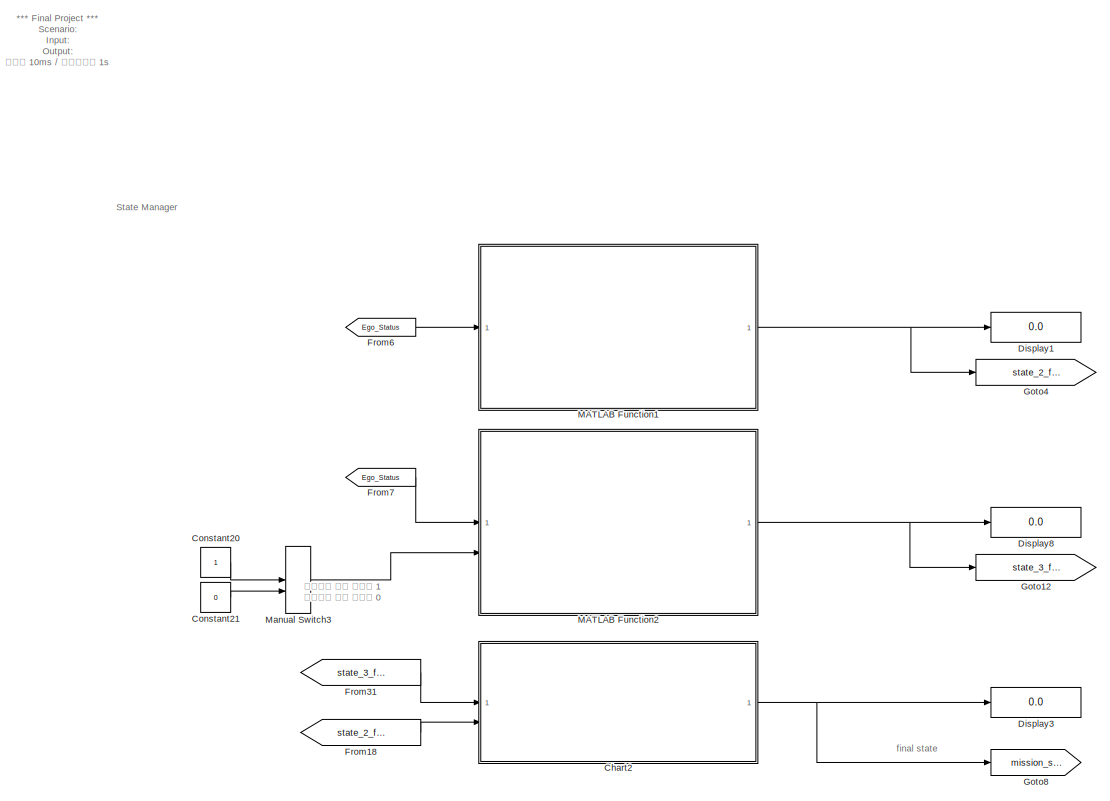
[diagram: CarMaker/Subsystem/Final Project/Scenario 1 - part 1/7, top center region]
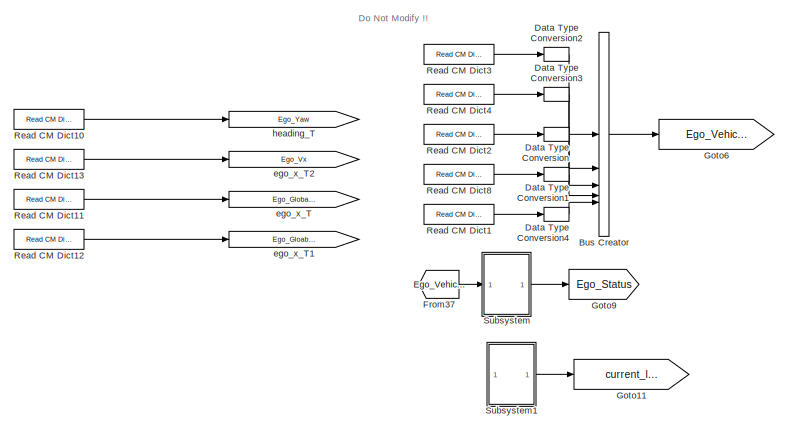
[diagram: CarMaker/Subsystem/Final Project/Scenario 1 - part 2/7, top left region]
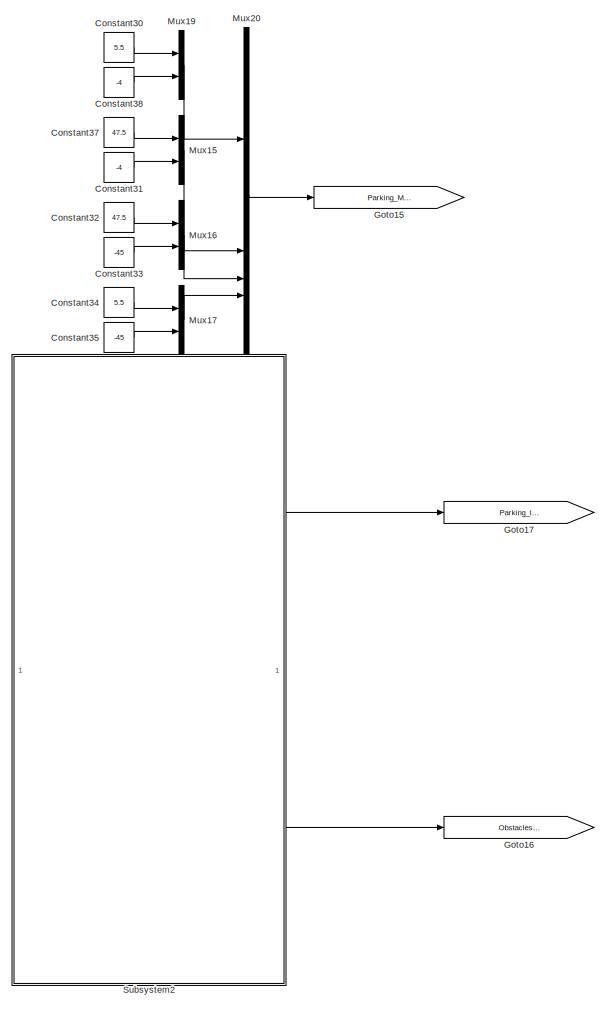
[diagram: CarMaker/Subsystem/Final Project/Scenario 1 - part 3/7, middle left region]
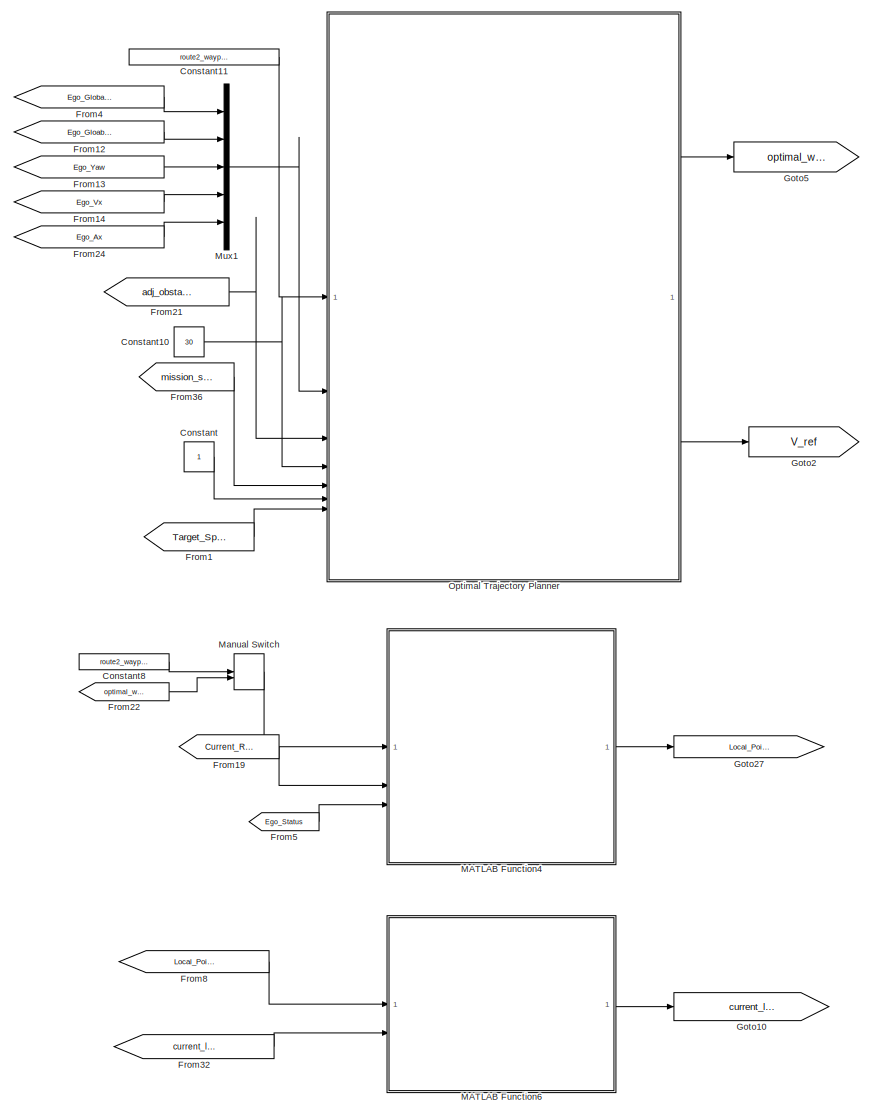
[diagram: CarMaker/Subsystem/Final Project/Scenario 1 - part 4/7, central region]
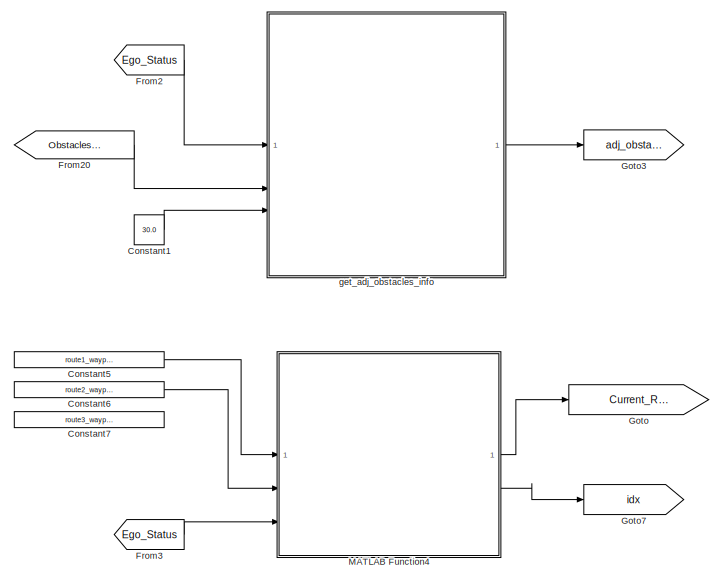
[diagram: CarMaker/Subsystem/Final Project/Scenario 1 - part 5/7, middle right region]
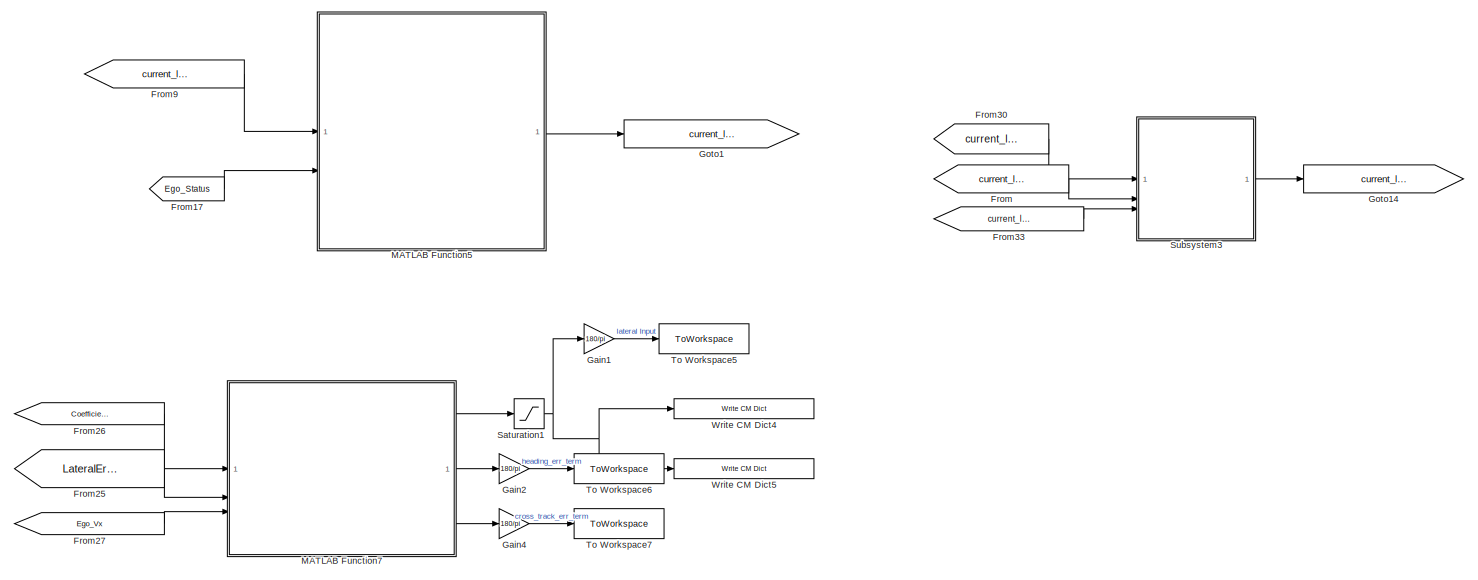
[diagram: CarMaker/Subsystem/Final Project/Scenario 1 - part 6/7, bottom right region]
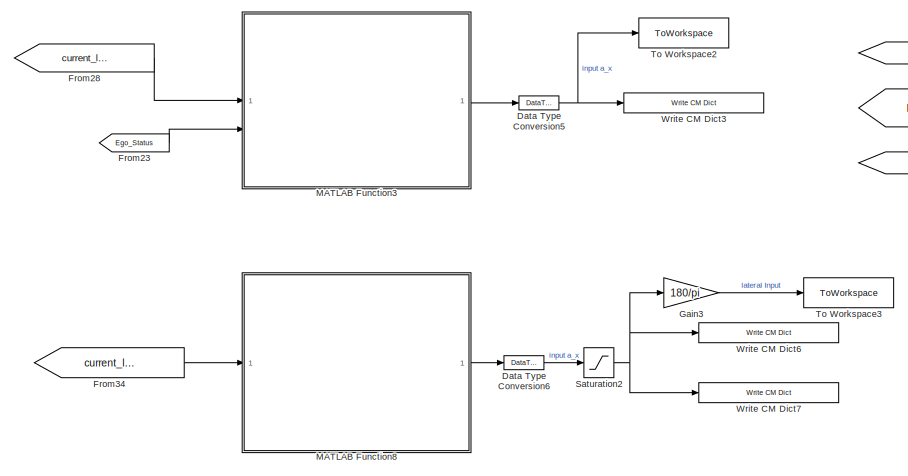
[diagram: CarMaker/Subsystem/Final Project/Scenario 1 - part 7/7, bottom center region]
BLOCK [SubSystem] CarMaker/Subsystem/Final Project/Scenario 1
BLOCK [BusCreator] CarMaker/Subsystem/Final Project/Scenario 1/Bus Creator
  DisplayOption = bar
  InheritFromInputs = on
  Inputs = 5
  OutDataTypeStr = Bus: busEgoVehicle
BLOCK [SubSystem] CarMaker/Subsystem/Final Project/Scenario 1/Chart2
  ErrorFcn = Stateflow.Translate.translate
  PermitHierarchicalResolution = ExplicitOnly
  SFBlockType = Chart
  TreatAsAtomicUnit = on
BLOCK [Demux] CarMaker/Subsystem/Final Project/Scenario 1/Chart2/ Demux 
  Outputs = 1
BLOCK [S-Function] CarMaker/Subsystem/Final Project/Scenario 1/Chart2/ SFunction 
  EnableBusSupport = on
  FunctionName = sf_sfun
  PortCounts = [2 2]
  SFcnIsStateOwnerBlock = off
  SFunctionDeploymentMode = off
  Tag = Stateflow S-Function 1
BLOCK [Terminator] CarMaker/Subsystem/Final Project/Scenario 1/Chart2/ Terminator 
BLOCK [Inport] CarMaker/Subsystem/Final Project/Scenario 1/Chart2/flag_2
  Port = 2
BLOCK [Inport] CarMaker/Subsystem/Final Project/Scenario 1/Chart2/flag_3
BLOCK [Outport] CarMaker/Subsystem/Final Project/Scenario 1/Chart2/mission
BLOCK [Constant] CarMaker/Subsystem/Final Project/Scenario 1/Constant
  Commented = on
BLOCK [Constant] CarMaker/Subsystem/Final Project/Scenario 1/Constant1
  Value = 30.0
BLOCK [Constant] CarMaker/Subsystem/Final Project/Scenario 1/Constant10
  Commented = on
  Value = 30
BLOCK [Constant] CarMaker/Subsystem/Final Project/Scenario 1/Constant11
  Commented = on
  SampleTime = -1
  Value = route2_waypoint
BLOCK [Constant] CarMaker/Subsystem/Final Project/Scenario 1/Constant20
BLOCK [Constant] CarMaker/Subsystem/Final Project/Scenario 1/Constant21
  Value = 0
BLOCK [Constant] CarMaker/Subsystem/Final Project/Scenario 1/Constant30
  Value = 5.5
BLOCK [Constant] CarMaker/Subsystem/Final Project/Scenario 1/Constant31
  Value = -4
BLOCK [Constant] CarMaker/Subsystem/Final Project/Scenario 1/Constant32
  Value = 47.5
BLOCK [Constant] CarMaker/Subsystem/Final Project/Scenario 1/Constant33
  Value = -45
BLOCK [Constant] CarMaker/Subsystem/Final Project/Scenario 1/Constant34
  Value = 5.5
BLOCK [Constant] CarMaker/Subsystem/Final Project/Scenario 1/Constant35
  Value = -45
BLOCK [Constant] CarMaker/Subsystem/Final Project/Scenario 1/Constant37
  Value = 47.5
BLOCK [Constant] CarMaker/Subsystem/Final Project/Scenario 1/Constant38
  Value = -4
BLOCK [Constant] CarMaker/Subsystem/Final Project/Scenario 1/Constant5
  Commented = on
  SampleTime = -1
  Value = route1_waypoint
BLOCK [Constant] CarMaker/Subsystem/Final Project/Scenario 1/Constant6
  Commented = on
  SampleTime = -1
  Value = route2_waypoint
BLOCK [Constant] CarMaker/Subsystem/Final Project/Scenario 1/Constant7
  Commented = on
  Value = route3_waypoint
BLOCK [Constant] CarMaker/Subsystem/Final Project/Scenario 1/Constant8
  SampleTime = -1
  Value = route2_waypoint
BLOCK [DataTypeConversion] CarMaker/Subsystem/Final Project/Scenario 1/Data Type Conversion
  OutDataTypeStr = single
  RndMeth = Floor
  SaturateOnIntegerOverflow = off
BLOCK [DataTypeConversion] CarMaker/Subsystem/Final Project/Scenario 1/Data Type Conversion1
  OutDataTypeStr = single
  RndMeth = Floor
  SaturateOnIntegerOverflow = off
BLOCK [DataTypeConversion] CarMaker/Subsystem/Final Project/Scenario 1/Data Type Conversion2
  OutDataTypeStr = single
  RndMeth = Floor
  SaturateOnIntegerOverflow = off
BLOCK [DataTypeConversion] CarMaker/Subsystem/Final Project/Scenario 1/Data Type Conversion3
  OutDataTypeStr = single
  RndMeth = Floor
  SaturateOnIntegerOverflow = off
BLOCK [DataTypeConversion] CarMaker/Subsystem/Final Project/Scenario 1/Data Type Conversion4
  OutDataTypeStr = single
  RndMeth = Floor
  SaturateOnIntegerOverflow = off
BLOCK [DataTypeConversion] CarMaker/Subsystem/Final Project/Scenario 1/Data Type Conversion5
  OutDataTypeStr = double
  RndMeth = Floor
  SaturateOnIntegerOverflow = off
BLOCK [DataTypeConversion] CarMaker/Subsystem/Final Project/Scenario 1/Data Type Conversion6
  OutDataTypeStr = double
  RndMeth = Floor
  SaturateOnIntegerOverflow = off
BLOCK [Display] CarMaker/Subsystem/Final Project/Scenario 1/Display1
  Decimation = 1
BLOCK [Display] CarMaker/Subsystem/Final Project/Scenario 1/Display3
  Decimation = 1
BLOCK [Display] CarMaker/Subsystem/Final Project/Scenario 1/Display8
  Decimation = 1
BLOCK [From] CarMaker/Subsystem/Final Project/Scenario 1/From
  GotoTag = current_lane_info_by_poly
BLOCK [From] CarMaker/Subsystem/Final Project/Scenario 1/From1
  Commented = on
  GotoTag = Target_Speed
BLOCK [From] CarMaker/Subsystem/Final Project/Scenario 1/From12
  Commented = on
  GotoTag = Ego_Gloabl_Y
BLOCK [From] CarMaker/Subsystem/Final Project/Scenario 1/From13
  Commented = on
  GotoTag = Ego_Yaw
BLOCK [From] CarMaker/Subsystem/Final Project/Scenario 1/From14
  Commented = on
  GotoTag = Ego_Vx
BLOCK [From] CarMaker/Subsystem/Final Project/Scenario 1/From17
  GotoTag = Ego_Status
BLOCK [From] CarMaker/Subsystem/Final Project/Scenario 1/From18
  GotoTag = state_2_flag
BLOCK [From] CarMaker/Subsystem/Final Project/Scenario 1/From19
  Commented = on
  GotoTag = Current_Route
BLOCK [From] CarMaker/Subsystem/Final Project/Scenario 1/From2
  GotoTag = Ego_Status
BLOCK [From] CarMaker/Subsystem/Final Project/Scenario 1/From20
  GotoTag = Obstacles_Info
BLOCK [From] CarMaker/Subsystem/Final Project/Scenario 1/From21
  Commented = on
  GotoTag = adj_obstacles
BLOCK [From] CarMaker/Subsystem/Final Project/Scenario 1/From22
  GotoTag = optimal_waypoint
BLOCK [From] CarMaker/Subsystem/Final Project/Scenario 1/From23
  GotoTag = Ego_Status
BLOCK [From] CarMaker/Subsystem/Final Project/Scenario 1/From24
  Commented = on
  GotoTag = Ego_Ax
BLOCK [From] CarMaker/Subsystem/Final Project/Scenario 1/From25
  Commented = on
  GotoTag = LateralError_Control_ref
BLOCK [From] CarMaker/Subsystem/Final Project/Scenario 1/From26
  Commented = on
  GotoTag = Coefficients
BLOCK [From] CarMaker/Subsystem/Final Project/Scenario 1/From27
  Commented = on
  GotoTag = Ego_Vx
BLOCK [From] CarMaker/Subsystem/Final Project/Scenario 1/From28
  GotoTag = current_lane_info_by_poly
BLOCK [From] CarMaker/Subsystem/Final Project/Scenario 1/From3
  GotoTag = Ego_Status
BLOCK [From] CarMaker/Subsystem/Final Project/Scenario 1/From30
  GotoTag = current_lane_info
BLOCK [From] CarMaker/Subsystem/Final Project/Scenario 1/From31
  GotoTag = state_3_flag
BLOCK [From] CarMaker/Subsystem/Final Project/Scenario 1/From32
  GotoTag = current_lane_info
BLOCK [From] CarMaker/Subsystem/Final Project/Scenario 1/From33
  GotoTag = current_lane_info_by_lateral
BLOCK [From] CarMaker/Subsystem/Final Project/Scenario 1/From34
  GotoTag = current_lane_info_by_lateral
BLOCK [From] CarMaker/Subsystem/Final Project/Scenario 1/From36
  Commented = on
  GotoTag = mission_state
BLOCK [From] CarMaker/Subsystem/Final Project/Scenario 1/From37
  GotoTag = Ego_Vehicle_Status
BLOCK [From] CarMaker/Subsystem/Final Project/Scenario 1/From4
  Commented = on
  GotoTag = Ego_Global_X
BLOCK [From] CarMaker/Subsystem/Final Project/Scenario 1/From5
  GotoTag = Ego_Status
BLOCK [From] CarMaker/Subsystem/Final Project/Scenario 1/From6
  GotoTag = Ego_Status
BLOCK [From] CarMaker/Subsystem/Final Project/Scenario 1/From7
  GotoTag = Ego_Status
BLOCK [From] CarMaker/Subsystem/Final Project/Scenario 1/From8
  GotoTag = Local_Points
BLOCK [From] CarMaker/Subsystem/Final Project/Scenario 1/From9
  GotoTag = current_lane_info_from_poly
BLOCK [Gain] CarMaker/Subsystem/Final Project/Scenario 1/Gain1
  Commented = on
  Gain = 180/pi
BLOCK [Gain] CarMaker/Subsystem/Final Project/Scenario 1/Gain2
  Commented = on
  Gain = 180/pi
BLOCK [Gain] CarMaker/Subsystem/Final Project/Scenario 1/Gain3
  Gain = 180/pi
BLOCK [Gain] CarMaker/Subsystem/Final Project/Scenario 1/Gain4
  Commented = on
  Gain = 180/pi
BLOCK [Goto] CarMaker/Subsystem/Final Project/Scenario 1/Goto
  Commented = on
  GotoTag = Current_Route
BLOCK [Goto] CarMaker/Subsystem/Final Project/Scenario 1/Goto1
  GotoTag = current_lane_info_by_lateral
BLOCK [Goto] CarMaker/Subsystem/Final Project/Scenario 1/Goto10
  GotoTag = current_lane_info_by_poly
BLOCK [Goto] CarMaker/Subsystem/Final Project/Scenario 1/Goto11
  GotoTag = current_lane_info
BLOCK [Goto] CarMaker/Subsystem/Final Project/Scenario 1/Goto12
  GotoTag = state_3_flag
BLOCK [Goto] CarMaker/Subsystem/Final Project/Scenario 1/Goto14
  GotoTag = current_lane_info_from_poly
BLOCK [Goto] CarMaker/Subsystem/Final Project/Scenario 1/Goto15
  GotoTag = Parking_Map_Boundary
BLOCK [Goto] CarMaker/Subsystem/Final Project/Scenario 1/Goto16
  GotoTag = Obstacles_Info
BLOCK [Goto] CarMaker/Subsystem/Final Project/Scenario 1/Goto17
  GotoTag = Parking_Info
BLOCK [Goto] CarMaker/Subsystem/Final Project/Scenario 1/Goto2
  Commented = on
  GotoTag = V_ref
BLOCK [Goto] CarMaker/Subsystem/Final Project/Scenario 1/Goto27
  GotoTag = Local_Points
BLOCK [Goto] CarMaker/Subsystem/Final Project/Scenario 1/Goto3
  GotoTag = adj_obstacles
BLOCK [Goto] CarMaker/Subsystem/Final Project/Scenario 1/Goto4
  GotoTag = state_2_flag
BLOCK [Goto] CarMaker/Subsystem/Final Project/Scenario 1/Goto5
  Commented = on
  GotoTag = optimal_waypoint
BLOCK [Goto] CarMaker/Subsystem/Final Project/Scenario 1/Goto6
  GotoTag = Ego_Vehicle_Status
BLOCK [Goto] CarMaker/Subsystem/Final Project/Scenario 1/Goto7
  Commented = on
  GotoTag = idx
BLOCK [Goto] CarMaker/Subsystem/Final Project/Scenario 1/Goto8
  GotoTag = mission_state
BLOCK [Goto] CarMaker/Subsystem/Final Project/Scenario 1/Goto9
  GotoTag = Ego_Status
BLOCK [SubSystem] CarMaker/Subsystem/Final Project/Scenario 1/MATLAB Function1
  ErrorFcn = Stateflow.Translate.translate
  PermitHierarchicalResolution = ExplicitOnly
  SFBlockType = MATLAB Function
  TreatAsAtomicUnit = on
BLOCK [Demux] CarMaker/Subsystem/Final Project/Scenario 1/MATLAB Function1/ Demux 
  Outputs = 1
BLOCK [S-Function] CarMaker/Subsystem/Final Project/Scenario 1/MATLAB Function1/ SFunction 
  EnableBusSupport = on
  FunctionName = sf_sfun
  PortCounts = [1 2]
  SFcnIsStateOwnerBlock = off
  SFunctionDeploymentMode = off
  Tag = Stateflow S-Function 2
BLOCK [Terminator] CarMaker/Subsystem/Final Project/Scenario 1/MATLAB Function1/ Terminator 
BLOCK [Inport] CarMaker/Subsystem/Final Project/Scenario 1/MATLAB Function1/ego_status
BLOCK [Outport] CarMaker/Subsystem/Final Project/Scenario 1/MATLAB Function1/tollgate_pass_mode
BLOCK [SubSystem] CarMaker/Subsystem/Final Project/Scenario 1/MATLAB Function2
  ErrorFcn = Stateflow.Translate.translate
  PermitHierarchicalResolution = ExplicitOnly
  SFBlockType = MATLAB Function
  TreatAsAtomicUnit = on
BLOCK [Demux] CarMaker/Subsystem/Final Project/Scenario 1/MATLAB Function2/ Demux 
  Outputs = 1
BLOCK [S-Function] CarMaker/Subsystem/Final Project/Scenario 1/MATLAB Function2/ SFunction 
  EnableBusSupport = on
  FunctionName = sf_sfun
  PortCounts = [2 2]
  SFcnIsStateOwnerBlock = off
  SFunctionDeploymentMode = off
  Tag = Stateflow S-Function 3
BLOCK [Terminator] CarMaker/Subsystem/Final Project/Scenario 1/MATLAB Function2/ Terminator 
BLOCK [Outport] CarMaker/Subsystem/Final Project/Scenario 1/MATLAB Function2/Entry_Flag
BLOCK [Inport] CarMaker/Subsystem/Final Project/Scenario 1/MATLAB Function2/IS_FRONT
  Port = 2
BLOCK [Inport] CarMaker/Subsystem/Final Project/Scenario 1/MATLAB Function2/ego_status
BLOCK [SubSystem] CarMaker/Subsystem/Final Project/Scenario 1/MATLAB Function3
  ErrorFcn = Stateflow.Translate.translate
  PermitHierarchicalResolution = ExplicitOnly
  SFBlockType = MATLAB Function
  TreatAsAtomicUnit = on
BLOCK [Demux] CarMaker/Subsystem/Final Project/Scenario 1/MATLAB Function3/ Demux 
  Outputs = 1
BLOCK [S-Function] CarMaker/Subsystem/Final Project/Scenario 1/MATLAB Function3/ SFunction 
  EnableBusSupport = on
  FunctionName = sf_sfun
  PortCounts = [2 2]
  SFcnIsStateOwnerBlock = off
  SFunctionDeploymentMode = off
  Tag = Stateflow S-Function 38
BLOCK [Terminator] CarMaker/Subsystem/Final Project/Scenario 1/MATLAB Function3/ Terminator 
BLOCK [Inport] CarMaker/Subsystem/Final Project/Scenario 1/MATLAB Function3/current_lane_info
BLOCK [Outport] CarMaker/Subsystem/Final Project/Scenario 1/MATLAB Function3/desired_ax
BLOCK [Inport] CarMaker/Subsystem/Final Project/Scenario 1/MATLAB Function3/ego_status
  Port = 2
BLOCK [SubSystem] CarMaker/Subsystem/Final Project/Scenario 1/MATLAB Function4
  Commented = on
  ErrorFcn = Stateflow.Translate.translate
  PermitHierarchicalResolution = ExplicitOnly
  SFBlockType = MATLAB Function
  TreatAsAtomicUnit = on
BLOCK [SubSystem] CarMaker/Subsystem/Final Project/Scenario 1/MATLAB Function4 
  ErrorFcn = Stateflow.Translate.translate
  PermitHierarchicalResolution = ExplicitOnly
  SFBlockType = MATLAB Function
  TreatAsAtomicUnit = on
BLOCK [Demux] CarMaker/Subsystem/Final Project/Scenario 1/MATLAB Function4 / Demux 
  Outputs = 1
BLOCK [S-Function] CarMaker/Subsystem/Final Project/Scenario 1/MATLAB Function4 / SFunction 
  EnableBusSupport = on
  FunctionName = sf_sfun
  PortCounts = [3 2]
  SFcnIsStateOwnerBlock = off
  SFunctionDeploymentMode = off
  Tag = Stateflow S-Function 40
BLOCK [Terminator] CarMaker/Subsystem/Final Project/Scenario 1/MATLAB Function4 / Terminator 
BLOCK [Inport] CarMaker/Subsystem/Final Project/Scenario 1/MATLAB Function4 /ego_status
  Port = 3
BLOCK [Outport] CarMaker/Subsystem/Final Project/Scenario 1/MATLAB Function4 /local_waypoints_
BLOCK [Inport] CarMaker/Subsystem/Final Project/Scenario 1/MATLAB Function4 /sub_waypointList
  Port = 2
BLOCK [Inport] CarMaker/Subsystem/Final Project/Scenario 1/MATLAB Function4 /waypointList
BLOCK [Demux] CarMaker/Subsystem/Final Project/Scenario 1/MATLAB Function4/ Demux 
  Outputs = 1
BLOCK [S-Function] CarMaker/Subsystem/Final Project/Scenario 1/MATLAB Function4/ SFunction 
  EnableBusSupport = on
  FunctionName = sf_sfun
  PortCounts = [5 3]
  SFcnIsStateOwnerBlock = off
  SFunctionDeploymentMode = off
  Tag = Stateflow S-Function 39
BLOCK [Terminator] CarMaker/Subsystem/Final Project/Scenario 1/MATLAB Function4/ Terminator 
BLOCK [Outport] CarMaker/Subsystem/Final Project/Scenario 1/MATLAB Function4/current_route
BLOCK [Inport] CarMaker/Subsystem/Final Project/Scenario 1/MATLAB Function4/ego_status
  Port = 5
BLOCK [Outport] CarMaker/Subsystem/Final Project/Scenario 1/MATLAB Function4/lane_idx
  Port = 2
BLOCK [Inport] CarMaker/Subsystem/Final Project/Scenario 1/MATLAB Function4/route1
BLOCK [Inport] CarMaker/Subsystem/Final Project/Scenario 1/MATLAB Function4/route2
  Port = 2
BLOCK [Inport] CarMaker/Subsystem/Final Project/Scenario 1/MATLAB Function4/route3
  Port = 3
BLOCK [Inport] CarMaker/Subsystem/Final Project/Scenario 1/MATLAB Function4/route4
  Port = 4
BLOCK [SubSystem] CarMaker/Subsystem/Final Project/Scenario 1/MATLAB Function5
  ErrorFcn = Stateflow.Translate.translate
  PermitHierarchicalResolution = ExplicitOnly
  SFBlockType = MATLAB Function
  TreatAsAtomicUnit = on
BLOCK [Demux] CarMaker/Subsystem/Final Project/Scenario 1/MATLAB Function5/ Demux 
  Outputs = 1
BLOCK [S-Function] CarMaker/Subsystem/Final Project/Scenario 1/MATLAB Function5/ SFunction 
  EnableBusSupport = on
  FunctionName = sf_sfun
  PortCounts = [2 2]
  SFcnIsStateOwnerBlock = off
  SFunctionDeploymentMode = off
  Tag = Stateflow S-Function 41
BLOCK [Terminator] CarMaker/Subsystem/Final Project/Scenario 1/MATLAB Function5/ Terminator 
BLOCK [Inport] CarMaker/Subsystem/Final Project/Scenario 1/MATLAB Function5/current_lane_info_in
BLOCK [Outport] CarMaker/Subsystem/Final Project/Scenario 1/MATLAB Function5/current_lane_info_out
BLOCK [Inport] CarMaker/Subsystem/Final Project/Scenario 1/MATLAB Function5/ego_status
  Port = 2
BLOCK [SubSystem] CarMaker/Subsystem/Final Project/Scenario 1/MATLAB Function6
  ErrorFcn = Stateflow.Translate.translate
  PermitHierarchicalResolution = ExplicitOnly
  SFBlockType = MATLAB Function
  TreatAsAtomicUnit = on
BLOCK [Demux] CarMaker/Subsystem/Final Project/Scenario 1/MATLAB Function6/ Demux 
  Outputs = 1
BLOCK [S-Function] CarMaker/Subsystem/Final Project/Scenario 1/MATLAB Function6/ SFunction 
  EnableBusSupport = on
  FunctionName = sf_sfun
  PortCounts = [2 2]
  SFcnIsStateOwnerBlock = off
  SFunctionDeploymentMode = off
  Tag = Stateflow S-Function 42
BLOCK [Terminator] CarMaker/Subsystem/Final Project/Scenario 1/MATLAB Function6/ Terminator 
BLOCK [Inport] CarMaker/Subsystem/Final Project/Scenario 1/MATLAB Function6/current_lane_info_in
  Port = 2
BLOCK [Outport] CarMaker/Subsystem/Final Project/Scenario 1/MATLAB Function6/current_lane_info_out
BLOCK [Inport] CarMaker/Subsystem/Final Project/Scenario 1/MATLAB Function6/local_waypoints
BLOCK [SubSystem] CarMaker/Subsystem/Final Project/Scenario 1/MATLAB Function7
  Commented = on
  ErrorFcn = Stateflow.Translate.translate
  PermitHierarchicalResolution = ExplicitOnly
  SFBlockType = MATLAB Function
  TreatAsAtomicUnit = on
BLOCK [Demux] CarMaker/Subsystem/Final Project/Scenario 1/MATLAB Function7/ Demux 
  Outputs = 1
BLOCK [S-Function] CarMaker/Subsystem/Final Project/Scenario 1/MATLAB Function7/ SFunction 
  EnableBusSupport = on
  FunctionName = sf_sfun
  PortCounts = [3 4]
  SFcnIsStateOwnerBlock = off
  SFunctionDeploymentMode = off
  Tag = Stateflow S-Function 43
BLOCK [Terminator] CarMaker/Subsystem/Final Project/Scenario 1/MATLAB Function7/ Terminator 
BLOCK [Inport] CarMaker/Subsystem/Final Project/Scenario 1/MATLAB Function7/V
  Port = 3
BLOCK [Inport] CarMaker/Subsystem/Final Project/Scenario 1/MATLAB Function7/coeff
BLOCK [Outport] CarMaker/Subsystem/Final Project/Scenario 1/MATLAB Function7/cross_track_err_term
  Port = 3
BLOCK [Inport] CarMaker/Subsystem/Final Project/Scenario 1/MATLAB Function7/cross_track_error
  Port = 2
BLOCK [Outport] CarMaker/Subsystem/Final Project/Scenario 1/MATLAB Function7/delta
BLOCK [Outport] CarMaker/Subsystem/Final Project/Scenario 1/MATLAB Function7/heading_err_term
  Port = 2
BLOCK [SubSystem] CarMaker/Subsystem/Final Project/Scenario 1/MATLAB Function8
  ErrorFcn = Stateflow.Translate.translate
  PermitHierarchicalResolution = ExplicitOnly
  SFBlockType = MATLAB Function
  TreatAsAtomicUnit = on
BLOCK [Demux] CarMaker/Subsystem/Final Project/Scenario 1/MATLAB Function8/ Demux 
  Outputs = 1
BLOCK [S-Function] CarMaker/Subsystem/Final Project/Scenario 1/MATLAB Function8/ SFunction 
  EnableBusSupport = on
  FunctionName = sf_sfun
  PortCounts = [1 2]
  SFcnIsStateOwnerBlock = off
  SFunctionDeploymentMode = off
  Tag = Stateflow S-Function 44
BLOCK [Terminator] CarMaker/Subsystem/Final Project/Scenario 1/MATLAB Function8/ Terminator 
BLOCK [Inport] CarMaker/Subsystem/Final Project/Scenario 1/MATLAB Function8/current_lane_info
BLOCK [Outport] CarMaker/Subsystem/Final Project/Scenario 1/MATLAB Function8/delta
BLOCK [ManualSwitch] CarMaker/Subsystem/Final Project/Scenario 1/Manual Switch
  varsize = on
BLOCK [ManualSwitch] CarMaker/Subsystem/Final Project/Scenario 1/Manual Switch3
BLOCK [Mux] CarMaker/Subsystem/Final Project/Scenario 1/Mux1
  Commented = on
  DisplayOption = bar
  Inputs = 5
BLOCK [Mux] CarMaker/Subsystem/Final Project/Scenario 1/Mux15
  DisplayOption = bar
  Inputs = 2
BLOCK [Mux] CarMaker/Subsystem/Final Project/Scenario 1/Mux16
  DisplayOption = bar
  Inputs = 2
BLOCK [Mux] CarMaker/Subsystem/Final Project/Scenario 1/Mux17
  DisplayOption = bar
  Inputs = 2
BLOCK [Mux] CarMaker/Subsystem/Final Project/Scenario 1/Mux19
  DisplayOption = bar
  Inputs = 2
BLOCK [Mux] CarMaker/Subsystem/Final Project/Scenario 1/Mux20
  DisplayOption = bar
BLOCK [SubSystem] CarMaker/Subsystem/Final Project/Scenario 1/Optimal Trajectory Planner
  Commented = on
  ErrorFcn = Stateflow.Translate.translate
  PermitHierarchicalResolution = ExplicitOnly
  SFBlockType = MATLAB Function
  TreatAsAtomicUnit = on
BLOCK [Demux] CarMaker/Subsystem/Final Project/Scenario 1/Optimal Trajectory Planner/ Demux 
  Outputs = 1
BLOCK [S-Function] CarMaker/Subsystem/Final Project/Scenario 1/Optimal Trajectory Planner/ SFunction 
  EnableBusSupport = on
  FunctionName = sf_sfun
  PortCounts = [7 3]
  SFcnIsStateOwnerBlock = off
  SFunctionDeploymentMode = off
  Tag = Stateflow S-Function 45
BLOCK [Terminator] CarMaker/Subsystem/Final Project/Scenario 1/Optimal Trajectory Planner/ Terminator 
BLOCK [Inport] CarMaker/Subsystem/Final Project/Scenario 1/Optimal Trajectory Planner/N_pts
  Port = 4
BLOCK [Outport] CarMaker/Subsystem/Final Project/Scenario 1/Optimal Trajectory Planner/V_ref
  Port = 2
BLOCK [Inport] CarMaker/Subsystem/Final Project/Scenario 1/Optimal Trajectory Planner/centerLine
BLOCK [Inport] CarMaker/Subsystem/Final Project/Scenario 1/Optimal Trajectory Planner/egoState
  Port = 2
BLOCK [Outport] CarMaker/Subsystem/Final Project/Scenario 1/Optimal Trajectory Planner/global_waypoints
BLOCK [Inport] CarMaker/Subsystem/Final Project/Scenario 1/Optimal Trajectory Planner/mission_state
  Port = 5
BLOCK [Inport] CarMaker/Subsystem/Final Project/Scenario 1/Optimal Trajectory Planner/otherVehicles
  Port = 3
BLOCK [Inport] CarMaker/Subsystem/Final Project/Scenario 1/Optimal Trajectory Planner/targetSpeed
  Port = 7
BLOCK [Inport] CarMaker/Subsystem/Final Project/Scenario 1/Optimal Trajectory Planner/tollgate_num
  Port = 6
BLOCK [Reference] CarMaker/Subsystem/Final Project/Scenario 1/Read CM Dict1  REF=CarMaker4SL/Read CM Dict
  NameLocation = top
  SourceBlock = CarMaker4SL/Read CM Dict
  SourceProductName = CarMaker4SL
  SourceType = Read CarMaker Dictionary Variable(s)
BLOCK [Reference] CarMaker/Subsystem/Final Project/Scenario 1/Read CM Dict10  REF=CarMaker4SL/Read CM Dict
  SourceBlock = CarMaker4SL/Read CM Dict
  SourceProductName = CarMaker4SL
  SourceType = Read CarMaker Dictionary Variable(s)
BLOCK [Reference] CarMaker/Subsystem/Final Project/Scenario 1/Read CM Dict11  REF=CarMaker4SL/Read CM Dict
  SourceBlock = CarMaker4SL/Read CM Dict
  SourceProductName = CarMaker4SL
  SourceType = Read CarMaker Dictionary Variable(s)
BLOCK [Reference] CarMaker/Subsystem/Final Project/Scenario 1/Read CM Dict12  REF=CarMaker4SL/Read CM Dict
  SourceBlock = CarMaker4SL/Read CM Dict
  SourceProductName = CarMaker4SL
  SourceType = Read CarMaker Dictionary Variable(s)
BLOCK [Reference] CarMaker/Subsystem/Final Project/Scenario 1/Read CM Dict13  REF=CarMaker4SL/Read CM Dict
  SourceBlock = CarMaker4SL/Read CM Dict
  SourceProductName = CarMaker4SL
  SourceType = Read CarMaker Dictionary Variable(s)
BLOCK [Reference] CarMaker/Subsystem/Final Project/Scenario 1/Read CM Dict2  REF=CarMaker4SL/Read CM Dict
  SourceBlock = CarMaker4SL/Read CM Dict
  SourceProductName = CarMaker4SL
  SourceType = Read CarMaker Dictionary Variable(s)
BLOCK [Reference] CarMaker/Subsystem/Final Project/Scenario 1/Read CM Dict3  REF=CarMaker4SL/Read CM Dict
  SourceBlock = CarMaker4SL/Read CM Dict
  SourceProductName = CarMaker4SL
  SourceType = Read CarMaker Dictionary Variable(s)
BLOCK [Reference] CarMaker/Subsystem/Final Project/Scenario 1/Read CM Dict4  REF=CarMaker4SL/Read CM Dict
  SourceBlock = CarMaker4SL/Read CM Dict
  SourceProductName = CarMaker4SL
  SourceType = Read CarMaker Dictionary Variable(s)
BLOCK [Reference] CarMaker/Subsystem/Final Project/Scenario 1/Read CM Dict8  REF=CarMaker4SL/Read CM Dict
  SourceBlock = CarMaker4SL/Read CM Dict
  SourceProductName = CarMaker4SL
  SourceType = Read CarMaker Dictionary Variable(s)
BLOCK [Saturate] CarMaker/Subsystem/Final Project/Scenario 1/Saturation1
  Commented = on
  LowerLimit = -35*180/pi
  UpperLimit = 35*180/pi
BLOCK [Saturate] CarMaker/Subsystem/Final Project/Scenario 1/Saturation2
  LowerLimit = -1
  UpperLimit = 1
BLOCK [SubSystem] CarMaker/Subsystem/Final Project/Scenario 1/Subsystem
BLOCK [BusAssignment] CarMaker/Subsystem/Final Project/Scenario 1/Subsystem/Bus Assignment
  AssignedSignals = ego_X,ego_Y,ego_YAW,ego_Speed,ego_Accel
BLOCK [BusSelector] CarMaker/Subsystem/Final Project/Scenario 1/Subsystem/Bus Selector
  OutputSignals = signal1,signal2,signal3,signal4,signal5
BLOCK [Constant] CarMaker/Subsystem/Final Project/Scenario 1/Subsystem/Constant
  OutDataTypeStr = Bus: busEgoVehicle
  Value = init_EgoVehicle
BLOCK [From] CarMaker/Subsystem/Final Project/Scenario 1/Subsystem/From
  GotoTag = Ego_Status
BLOCK [Goto] CarMaker/Subsystem/Final Project/Scenario 1/Subsystem/Goto
  GotoTag = Ego_Status
BLOCK [Inport] CarMaker/Subsystem/Final Project/Scenario 1/Subsystem/In1
BLOCK [Outport] CarMaker/Subsystem/Final Project/Scenario 1/Subsystem/Out1
BLOCK [SubSystem] CarMaker/Subsystem/Final Project/Scenario 1/Subsystem1
BLOCK [BusAssignment] CarMaker/Subsystem/Final Project/Scenario 1/Subsystem1/Bus Assignment
  AssignedSignals = lane_Idx,lane_Coeff,lane_waypoints,lane_waypoints_Length,lookAheadDistance,y_lookAheadDistance
BLOCK [Constant] CarMaker/Subsystem/Final Project/Scenario 1/Subsystem1/Constant
  OutDataTypeStr = Bus: busCurrentLaneInfo
  Value = init_CurrentLaneInfo
BLOCK [Constant] CarMaker/Subsystem/Final Project/Scenario 1/Subsystem1/Constant1
  OutDataTypeStr = uint8
  Value = 0
BLOCK [Constant] CarMaker/Subsystem/Final Project/Scenario 1/Subsystem1/Constant2
  OutDataTypeStr = single
  Value = [0 0 0 0]
BLOCK [Constant] CarMaker/Subsystem/Final Project/Scenario 1/Subsystem1/Constant3
  OutDataTypeStr = single
  Value = zeros(300,1)
BLOCK [Constant] CarMaker/Subsystem/Final Project/Scenario 1/Subsystem1/Constant4
  OutDataTypeStr = uint16
  Value = 0
BLOCK [Constant] CarMaker/Subsystem/Final Project/Scenario 1/Subsystem1/Constant5
  OutDataTypeStr = single
  Value = 0
BLOCK [Constant] CarMaker/Subsystem/Final Project/Scenario 1/Subsystem1/Constant6
  OutDataTypeStr = single
  Value = 0
BLOCK [From] CarMaker/Subsystem/Final Project/Scenario 1/Subsystem1/From
  GotoTag = currentLaneInfo
BLOCK [Goto] CarMaker/Subsystem/Final Project/Scenario 1/Subsystem1/Goto
  GotoTag = currentLaneInfo
BLOCK [Outport] CarMaker/Subsystem/Final Project/Scenario 1/Subsystem1/Out1
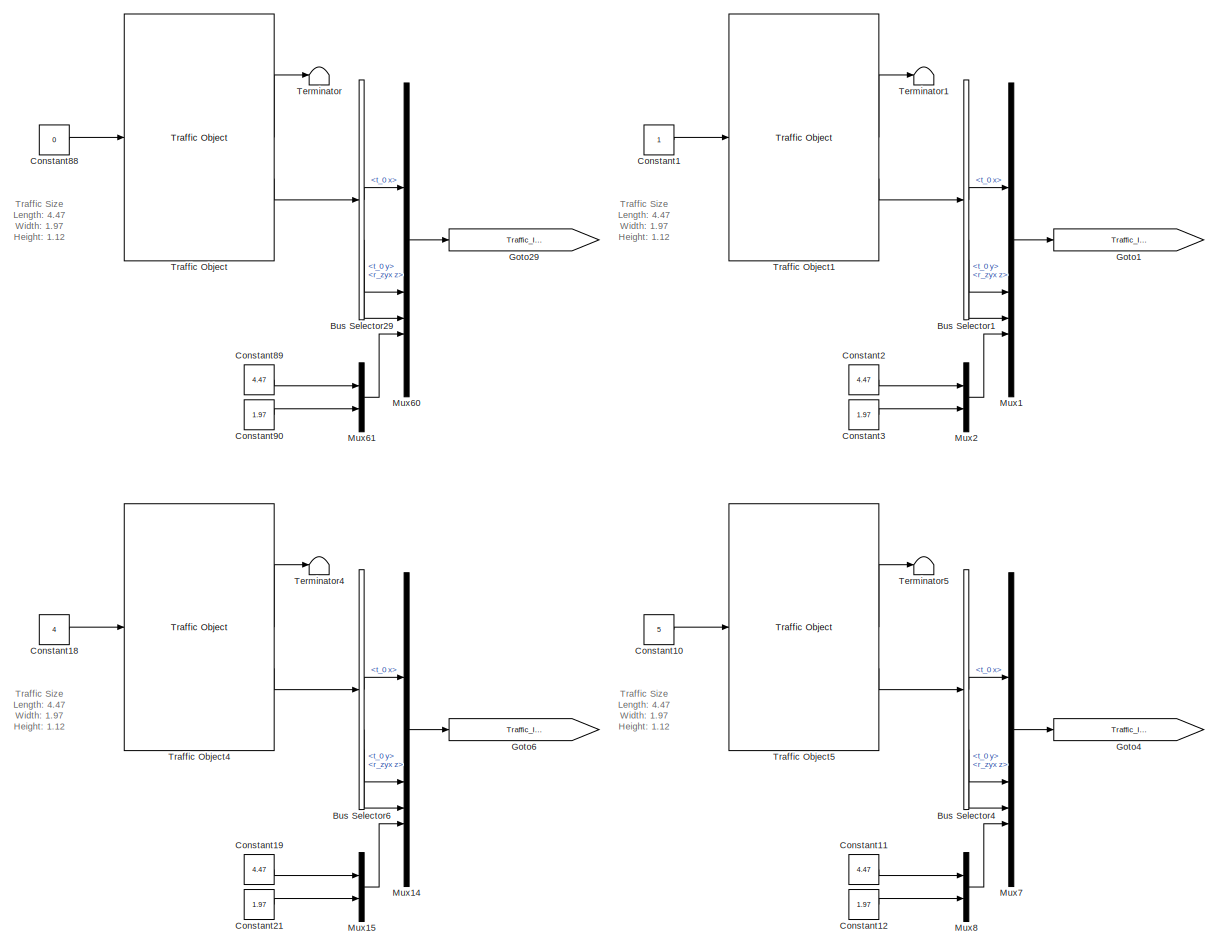
[diagram: CarMaker/Subsystem/Final Project/Scenario 1/Subsystem2 - part 1/12, top left region]
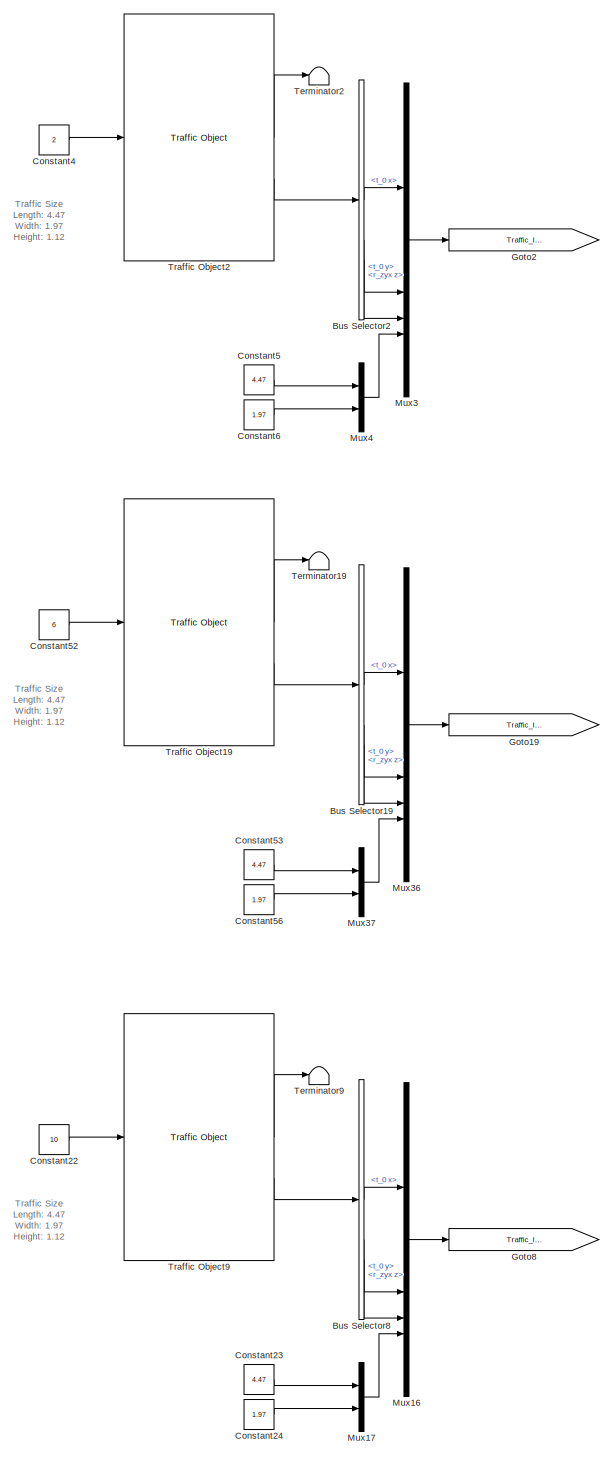
[diagram: CarMaker/Subsystem/Final Project/Scenario 1/Subsystem2 - part 2/12, top center region]
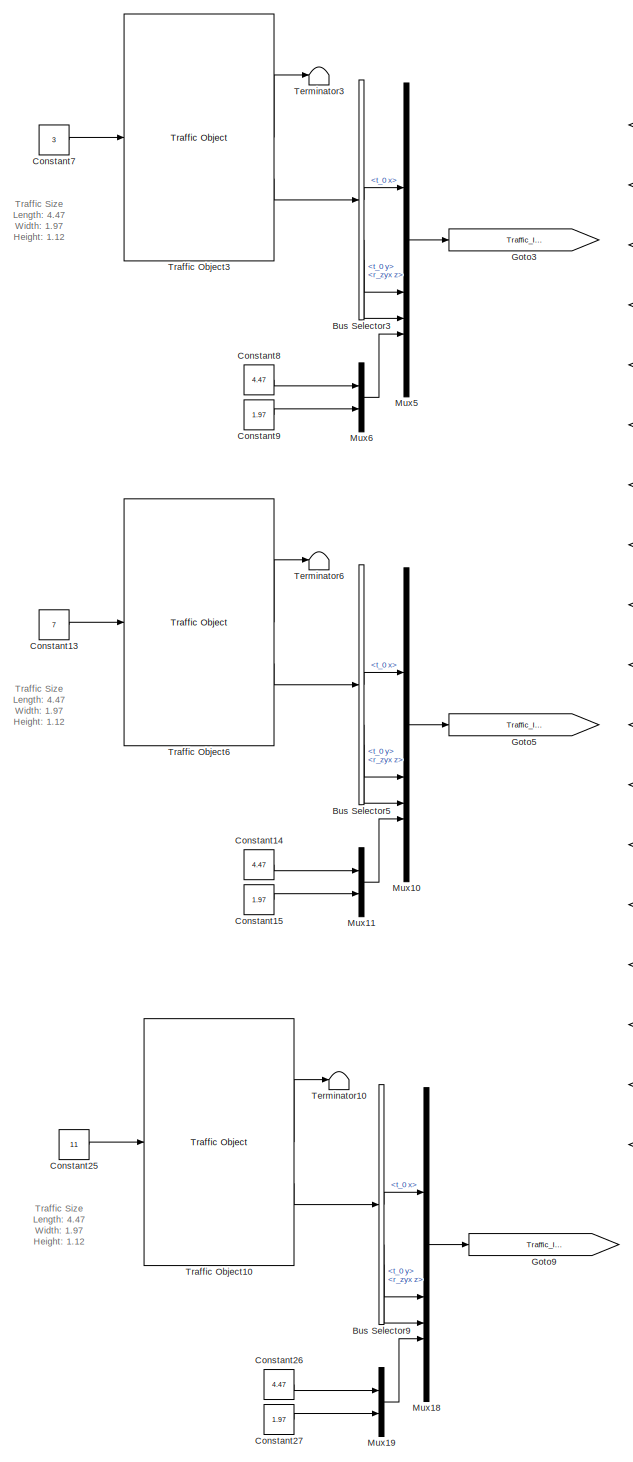
[diagram: CarMaker/Subsystem/Final Project/Scenario 1/Subsystem2 - part 3/12, top center region]
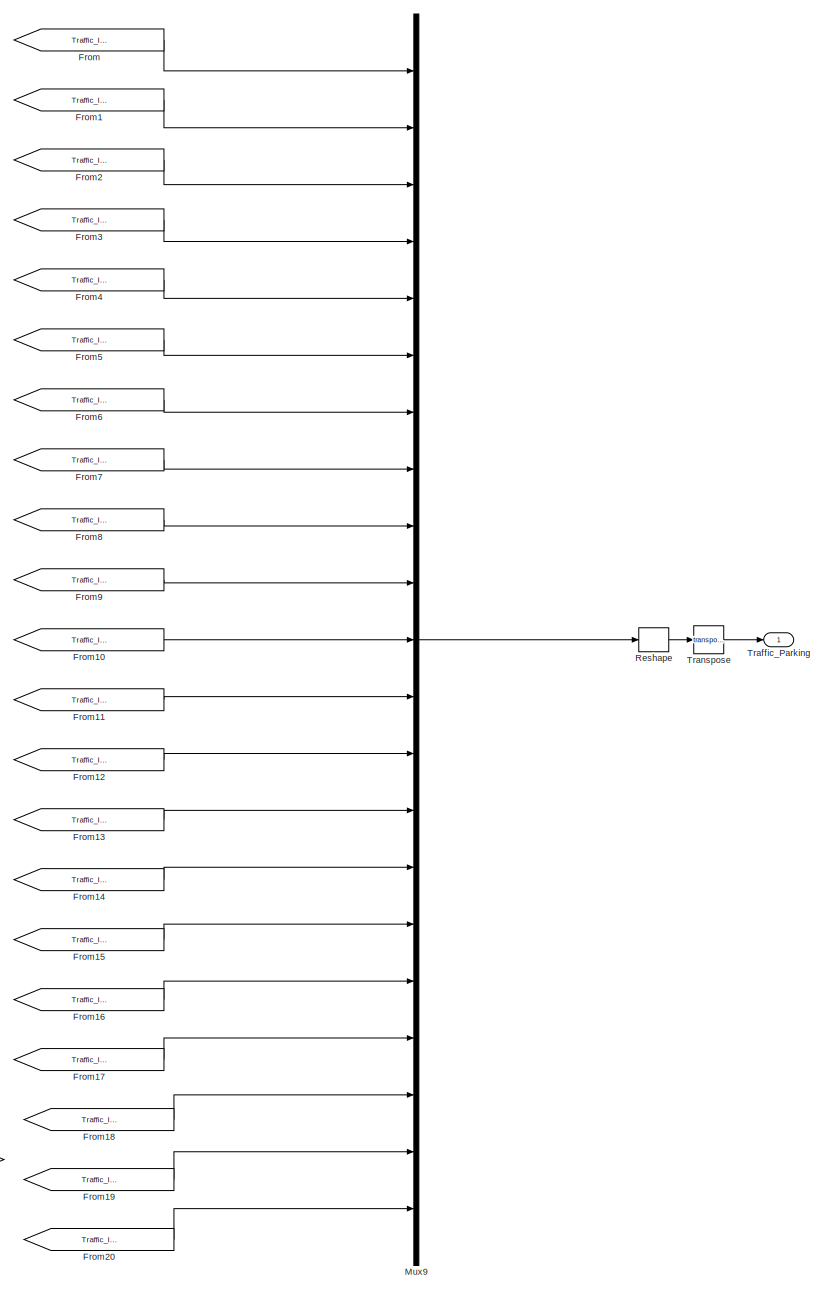
[diagram: CarMaker/Subsystem/Final Project/Scenario 1/Subsystem2 - part 4/12, top right region]
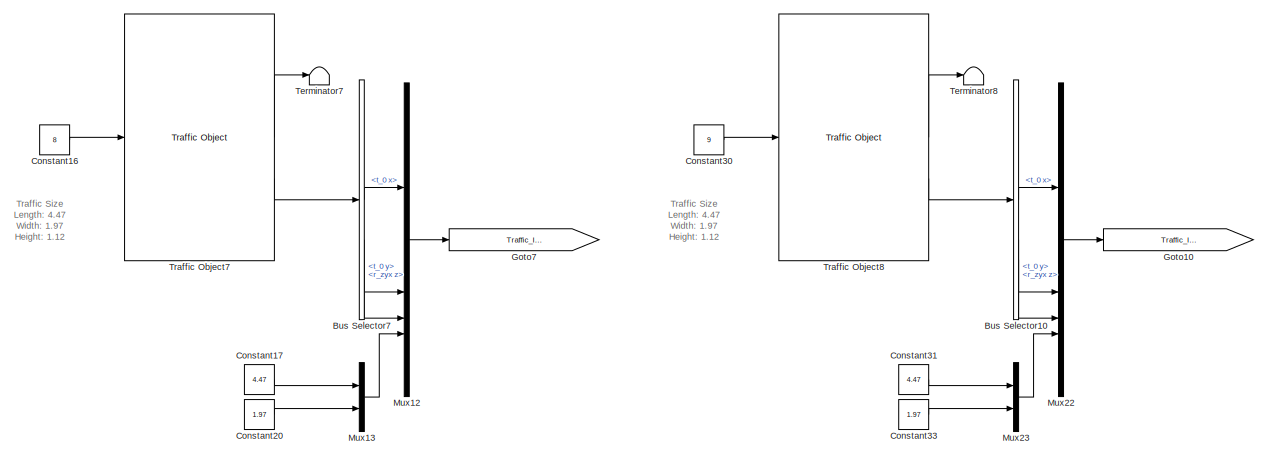
[diagram: CarMaker/Subsystem/Final Project/Scenario 1/Subsystem2 - part 5/12, top left region]
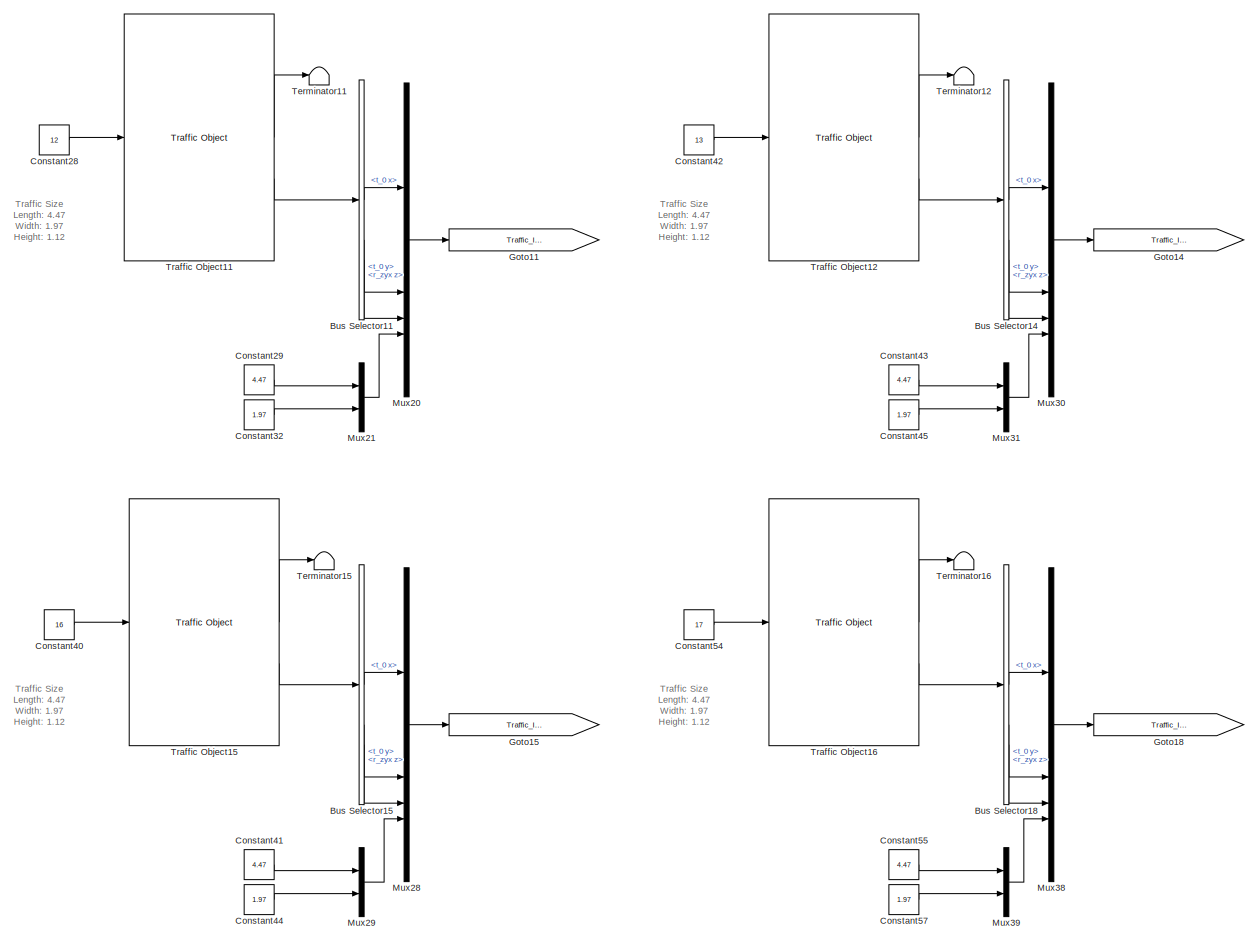
[diagram: CarMaker/Subsystem/Final Project/Scenario 1/Subsystem2 - part 6/12, middle left region]
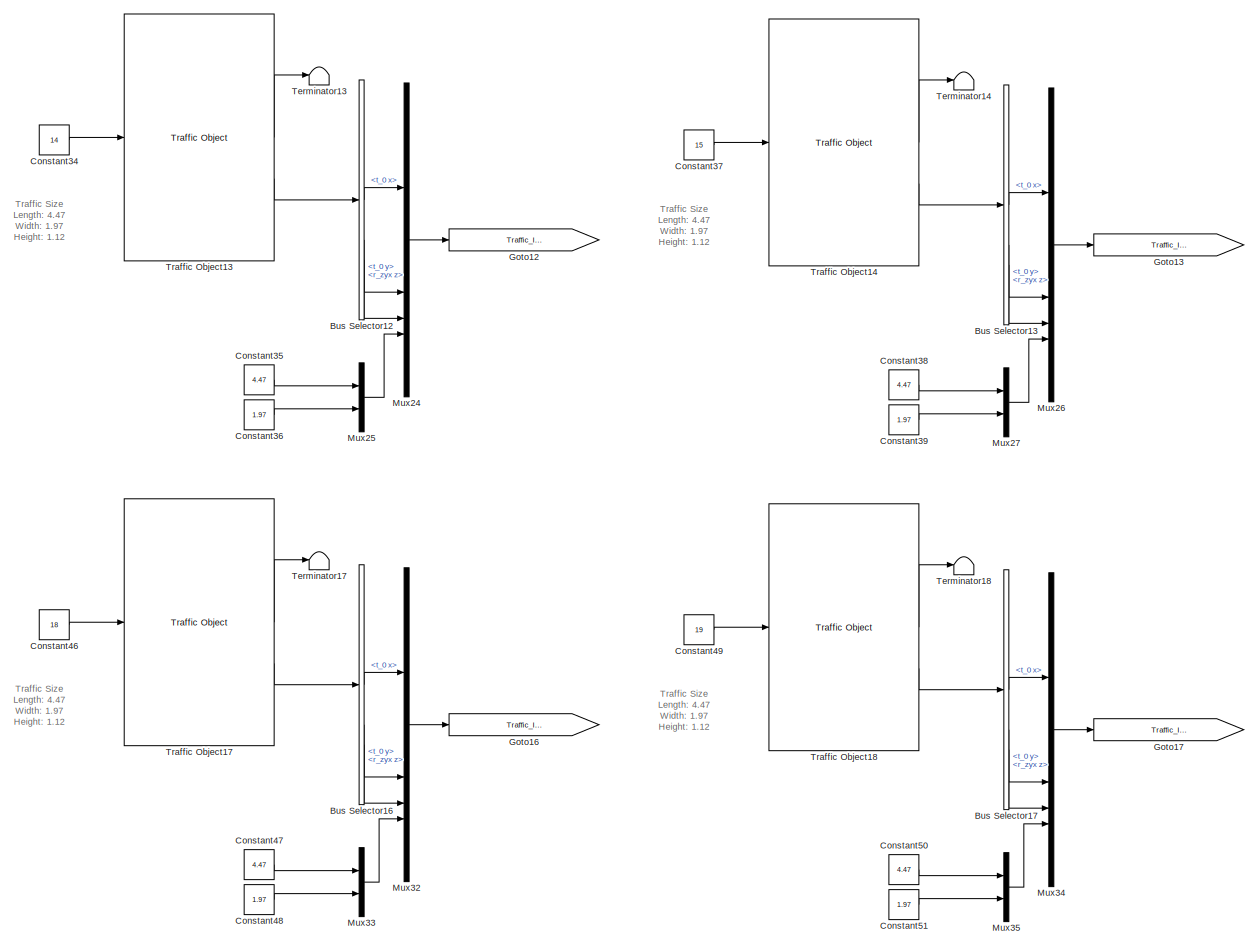
[diagram: CarMaker/Subsystem/Final Project/Scenario 1/Subsystem2 - part 7/12, central region]
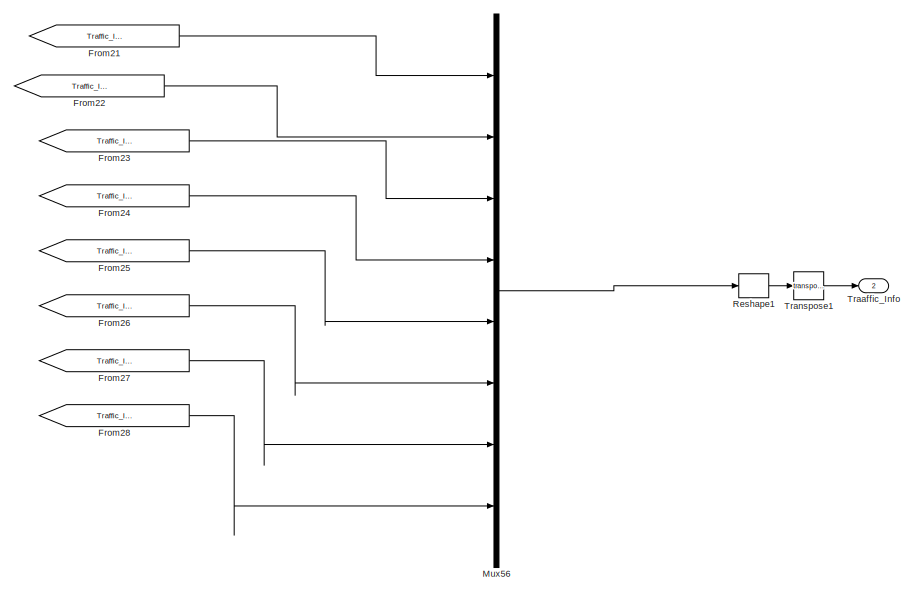
[diagram: CarMaker/Subsystem/Final Project/Scenario 1/Subsystem2 - part 8/12, middle right region]
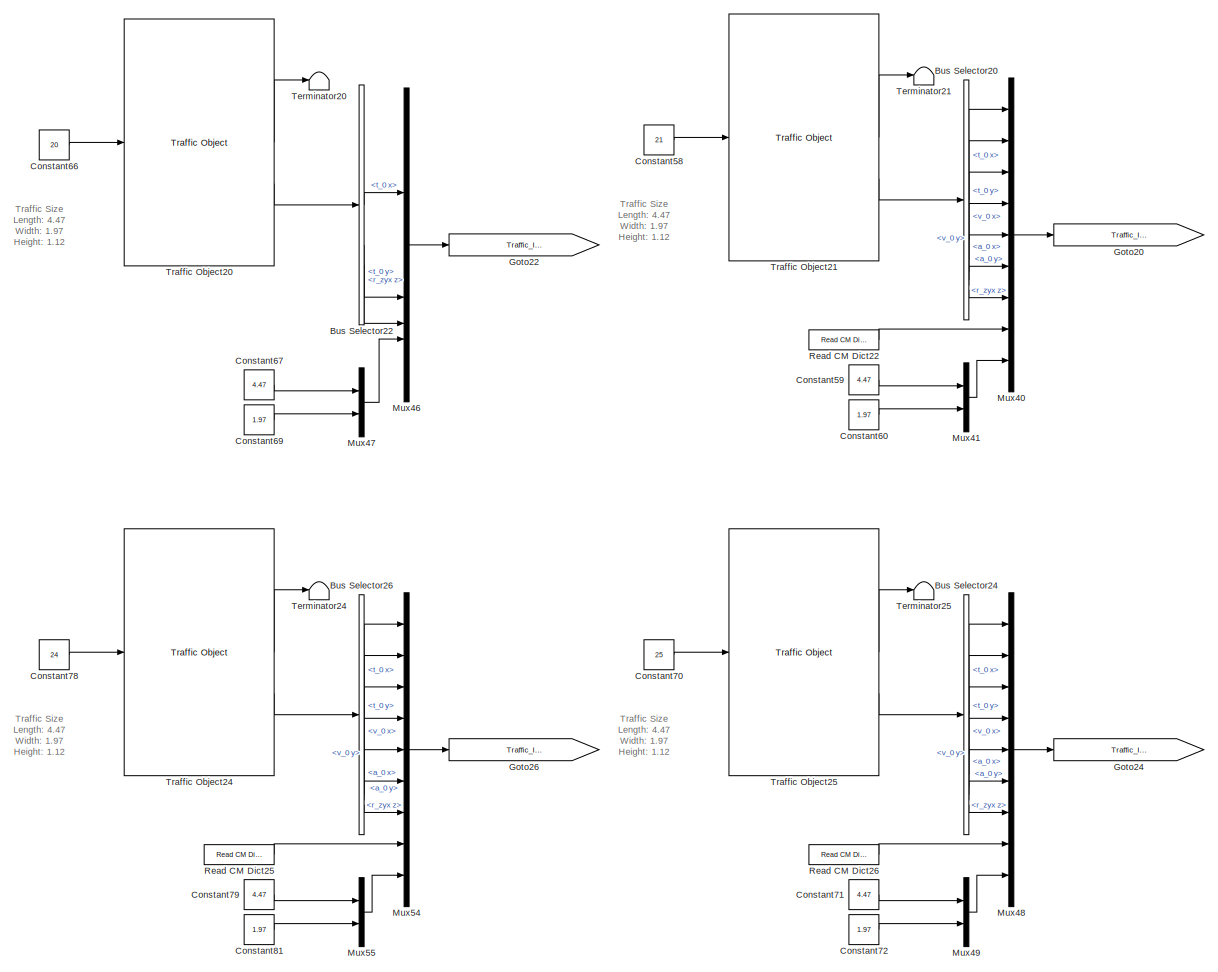
[diagram: CarMaker/Subsystem/Final Project/Scenario 1/Subsystem2 - part 9/12, bottom left region]
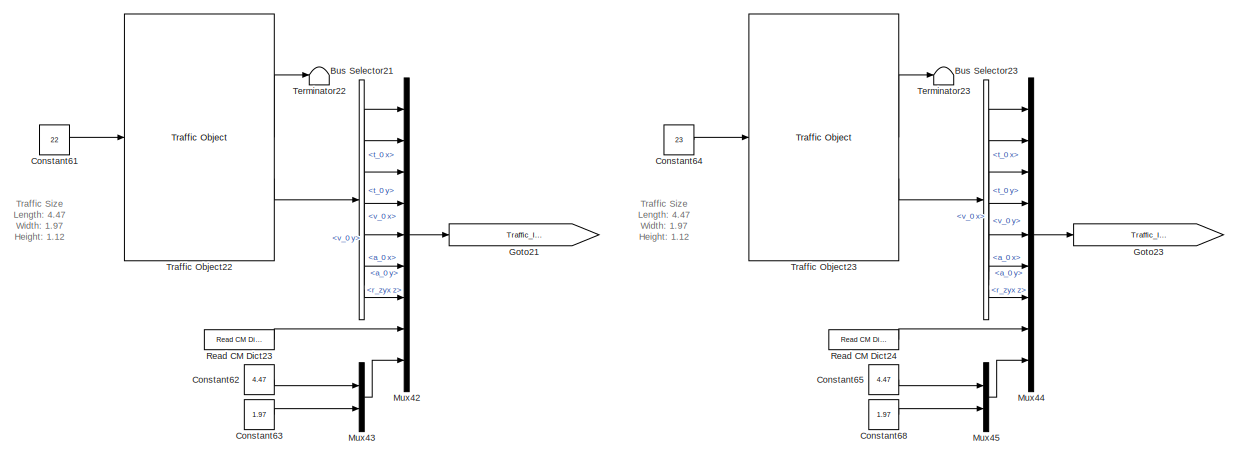
[diagram: CarMaker/Subsystem/Final Project/Scenario 1/Subsystem2 - part 10/12, bottom center region]
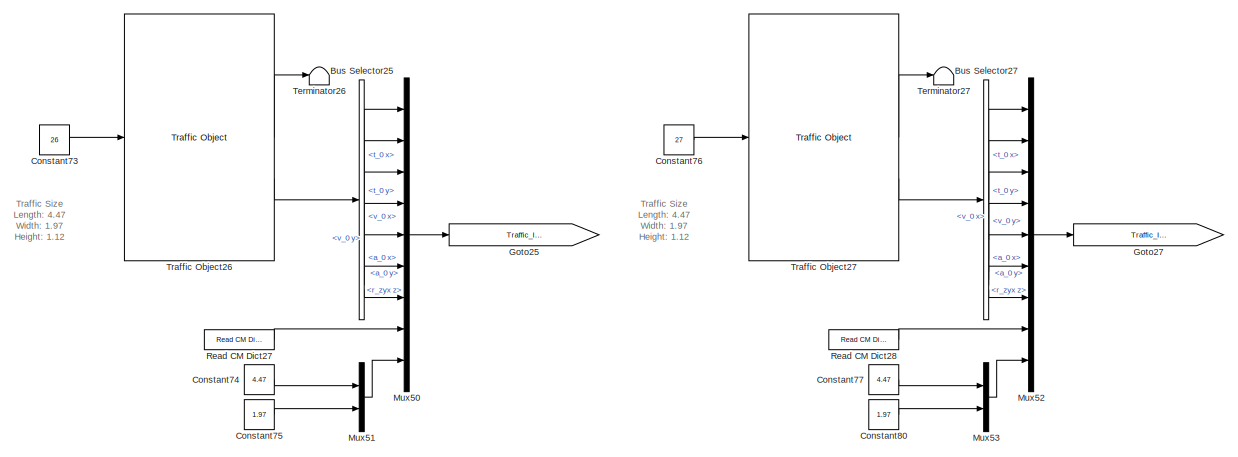
[diagram: CarMaker/Subsystem/Final Project/Scenario 1/Subsystem2 - part 11/12, bottom center region]
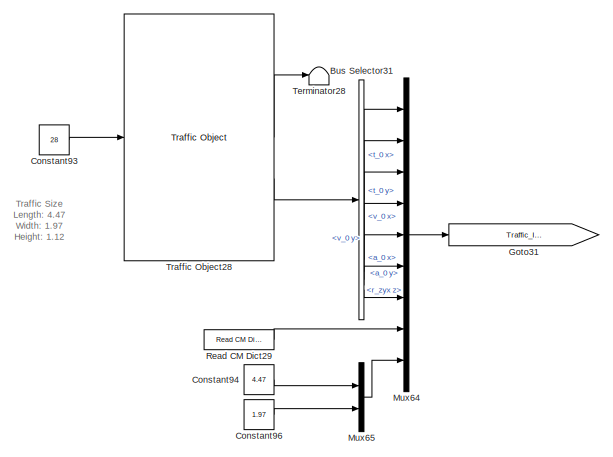
[diagram: CarMaker/Subsystem/Final Project/Scenario 1/Subsystem2 - part 12/12, bottom left region]
BLOCK [SubSystem] CarMaker/Subsystem/Final Project/Scenario 1/Subsystem2
BLOCK [BusSelector] CarMaker/Subsystem/Final Project/Scenario 1/Subsystem2/Bus Selector1
  OutputSignals = t_0 x,t_0 y,r_zyx z
BLOCK [BusSelector] CarMaker/Subsystem/Final Project/Scenario 1/Subsystem2/Bus Selector10
  OutputSignals = t_0 x,t_0 y,r_zyx z
BLOCK [BusSelector] CarMaker/Subsystem/Final Project/Scenario 1/Subsystem2/Bus Selector11
  OutputSignals = t_0 x,t_0 y,r_zyx z
BLOCK [BusSelector] CarMaker/Subsystem/Final Project/Scenario 1/Subsystem2/Bus Selector12
  OutputSignals = t_0 x,t_0 y,r_zyx z
BLOCK [BusSelector] CarMaker/Subsystem/Final Project/Scenario 1/Subsystem2/Bus Selector13
  OutputSignals = t_0 x,t_0 y,r_zyx z
BLOCK [BusSelector] CarMaker/Subsystem/Final Project/Scenario 1/Subsystem2/Bus Selector14
  OutputSignals = t_0 x,t_0 y,r_zyx z
BLOCK [BusSelector] CarMaker/Subsystem/Final Project/Scenario 1/Subsystem2/Bus Selector15
  OutputSignals = t_0 x,t_0 y,r_zyx z
BLOCK [BusSelector] CarMaker/Subsystem/Final Project/Scenario 1/Subsystem2/Bus Selector16
  OutputSignals = t_0 x,t_0 y,r_zyx z
BLOCK [BusSelector] CarMaker/Subsystem/Final Project/Scenario 1/Subsystem2/Bus Selector17
  OutputSignals = t_0 x,t_0 y,r_zyx z
BLOCK [BusSelector] CarMaker/Subsystem/Final Project/Scenario 1/Subsystem2/Bus Selector18
  OutputSignals = t_0 x,t_0 y,r_zyx z
BLOCK [BusSelector] CarMaker/Subsystem/Final Project/Scenario 1/Subsystem2/Bus Selector19
  OutputSignals = t_0 x,t_0 y,r_zyx z
BLOCK [BusSelector] CarMaker/Subsystem/Final Project/Scenario 1/Subsystem2/Bus Selector2
  OutputSignals = t_0 x,t_0 y,r_zyx z
BLOCK [BusSelector] CarMaker/Subsystem/Final Project/Scenario 1/Subsystem2/Bus Selector20
  OutputSignals = t_0 x,t_0 y,v_0 x,v_0 y,a_0 x,a_0 y,r_zyx z
BLOCK [BusSelector] CarMaker/Subsystem/Final Project/Scenario 1/Subsystem2/Bus Selector21
  OutputSignals = t_0 x,t_0 y,v_0 x,v_0 y,a_0 x,a_0 y,r_zyx z
BLOCK [BusSelector] CarMaker/Subsystem/Final Project/Scenario 1/Subsystem2/Bus Selector22
  OutputSignals = t_0 x,t_0 y,r_zyx z
BLOCK [BusSelector] CarMaker/Subsystem/Final Project/Scenario 1/Subsystem2/Bus Selector23
  OutputSignals = t_0 x,t_0 y,v_0 x,v_0 y,a_0 x,a_0 y,r_zyx z
BLOCK [BusSelector] CarMaker/Subsystem/Final Project/Scenario 1/Subsystem2/Bus Selector24
  OutputSignals = t_0 x,t_0 y,v_0 x,v_0 y,a_0 x,a_0 y,r_zyx z
BLOCK [BusSelector] CarMaker/Subsystem/Final Project/Scenario 1/Subsystem2/Bus Selector25
  OutputSignals = t_0 x,t_0 y,v_0 x,v_0 y,a_0 x,a_0 y,r_zyx z
BLOCK [BusSelector] CarMaker/Subsystem/Final Project/Scenario 1/Subsystem2/Bus Selector26
  OutputSignals = t_0 x,t_0 y,v_0 x,v_0 y,a_0 x,a_0 y,r_zyx z
BLOCK [BusSelector] CarMaker/Subsystem/Final Project/Scenario 1/Subsystem2/Bus Selector27
  OutputSignals = t_0 x,t_0 y,v_0 x,v_0 y,a_0 x,a_0 y,r_zyx z
BLOCK [BusSelector] CarMaker/Subsystem/Final Project/Scenario 1/Subsystem2/Bus Selector29
  OutputSignals = t_0 x,t_0 y,r_zyx z
BLOCK [BusSelector] CarMaker/Subsystem/Final Project/Scenario 1/Subsystem2/Bus Selector3
  OutputSignals = t_0 x,t_0 y,r_zyx z
BLOCK [BusSelector] CarMaker/Subsystem/Final Project/Scenario 1/Subsystem2/Bus Selector31
  OutputSignals = t_0 x,t_0 y,v_0 x,v_0 y,a_0 x,a_0 y,r_zyx z
BLOCK [BusSelector] CarMaker/Subsystem/Final Project/Scenario 1/Subsystem2/Bus Selector4
  OutputSignals = t_0 x,t_0 y,r_zyx z
BLOCK [BusSelector] CarMaker/Subsystem/Final Project/Scenario 1/Subsystem2/Bus Selector5
  OutputSignals = t_0 x,t_0 y,r_zyx z
BLOCK [BusSelector] CarMaker/Subsystem/Final Project/Scenario 1/Subsystem2/Bus Selector6
  OutputSignals = t_0 x,t_0 y,r_zyx z
BLOCK [BusSelector] CarMaker/Subsystem/Final Project/Scenario 1/Subsystem2/Bus Selector7
  OutputSignals = t_0 x,t_0 y,r_zyx z
BLOCK [BusSelector] CarMaker/Subsystem/Final Project/Scenario 1/Subsystem2/Bus Selector8
  OutputSignals = t_0 x,t_0 y,r_zyx z
BLOCK [BusSelector] CarMaker/Subsystem/Final Project/Scenario 1/Subsystem2/Bus Selector9
  OutputSignals = t_0 x,t_0 y,r_zyx z
BLOCK [Constant] CarMaker/Subsystem/Final Project/Scenario 1/Subsystem2/Constant1
BLOCK [Constant] CarMaker/Subsystem/Final Project/Scenario 1/Subsystem2/Constant10
  Value = 5
BLOCK [Constant] CarMaker/Subsystem/Final Project/Scenario 1/Subsystem2/Constant11
  Value = 4.47
BLOCK [Constant] CarMaker/Subsystem/Final Project/Scenario 1/Subsystem2/Constant12
  Value = 1.97
BLOCK [Constant] CarMaker/Subsystem/Final Project/Scenario 1/Subsystem2/Constant13
  Value = 7
BLOCK [Constant] CarMaker/Subsystem/Final Project/Scenario 1/Subsystem2/Constant14
  Value = 4.47
BLOCK [Constant] CarMaker/Subsystem/Final Project/Scenario 1/Subsystem2/Constant15
  Value = 1.97
BLOCK [Constant] CarMaker/Subsystem/Final Project/Scenario 1/Subsystem2/Constant16
  Value = 8
BLOCK [Constant] CarMaker/Subsystem/Final Project/Scenario 1/Subsystem2/Constant17
  Value = 4.47
BLOCK [Constant] CarMaker/Subsystem/Final Project/Scenario 1/Subsystem2/Constant18
  Value = 4
BLOCK [Constant] CarMaker/Subsystem/Final Project/Scenario 1/Subsystem2/Constant19
  Value = 4.47
BLOCK [Constant] CarMaker/Subsystem/Final Project/Scenario 1/Subsystem2/Constant2
  Value = 4.47
BLOCK [Constant] CarMaker/Subsystem/Final Project/Scenario 1/Subsystem2/Constant20
  Value = 1.97
BLOCK [Constant] CarMaker/Subsystem/Final Project/Scenario 1/Subsystem2/Constant21
  Value = 1.97
BLOCK [Constant] CarMaker/Subsystem/Final Project/Scenario 1/Subsystem2/Constant22
  Value = 10
BLOCK [Constant] CarMaker/Subsystem/Final Project/Scenario 1/Subsystem2/Constant23
  Value = 4.47
BLOCK [Constant] CarMaker/Subsystem/Final Project/Scenario 1/Subsystem2/Constant24
  Value = 1.97
BLOCK [Constant] CarMaker/Subsystem/Final Project/Scenario 1/Subsystem2/Constant25
  Value = 11
BLOCK [Constant] CarMaker/Subsystem/Final Project/Scenario 1/Subsystem2/Constant26
  Value = 4.47
BLOCK [Constant] CarMaker/Subsystem/Final Project/Scenario 1/Subsystem2/Constant27
  Value = 1.97
BLOCK [Constant] CarMaker/Subsystem/Final Project/Scenario 1/Subsystem2/Constant28
  Value = 12
BLOCK [Constant] CarMaker/Subsystem/Final Project/Scenario 1/Subsystem2/Constant29
  Value = 4.47
BLOCK [Constant] CarMaker/Subsystem/Final Project/Scenario 1/Subsystem2/Constant3
  Value = 1.97
BLOCK [Constant] CarMaker/Subsystem/Final Project/Scenario 1/Subsystem2/Constant30
  Value = 9
BLOCK [Constant] CarMaker/Subsystem/Final Project/Scenario 1/Subsystem2/Constant31
  Value = 4.47
BLOCK [Constant] CarMaker/Subsystem/Final Project/Scenario 1/Subsystem2/Constant32
  Value = 1.97
BLOCK [Constant] CarMaker/Subsystem/Final Project/Scenario 1/Subsystem2/Constant33
  Value = 1.97
BLOCK [Constant] CarMaker/Subsystem/Final Project/Scenario 1/Subsystem2/Constant34
  Value = 14
BLOCK [Constant] CarMaker/Subsystem/Final Project/Scenario 1/Subsystem2/Constant35
  Value = 4.47
BLOCK [Constant] CarMaker/Subsystem/Final Project/Scenario 1/Subsystem2/Constant36
  Value = 1.97
BLOCK [Constant] CarMaker/Subsystem/Final Project/Scenario 1/Subsystem2/Constant37
  Value = 15
BLOCK [Constant] CarMaker/Subsystem/Final Project/Scenario 1/Subsystem2/Constant38
  Value = 4.47
BLOCK [Constant] CarMaker/Subsystem/Final Project/Scenario 1/Subsystem2/Constant39
  Value = 1.97
BLOCK [Constant] CarMaker/Subsystem/Final Project/Scenario 1/Subsystem2/Constant4
  Value = 2
BLOCK [Constant] CarMaker/Subsystem/Final Project/Scenario 1/Subsystem2/Constant40
  Value = 16
BLOCK [Constant] CarMaker/Subsystem/Final Project/Scenario 1/Subsystem2/Constant41
  Value = 4.47
BLOCK [Constant] CarMaker/Subsystem/Final Project/Scenario 1/Subsystem2/Constant42
  Value = 13
BLOCK [Constant] CarMaker/Subsystem/Final Project/Scenario 1/Subsystem2/Constant43
  Value = 4.47
BLOCK [Constant] CarMaker/Subsystem/Final Project/Scenario 1/Subsystem2/Constant44
  Value = 1.97
BLOCK [Constant] CarMaker/Subsystem/Final Project/Scenario 1/Subsystem2/Constant45
  Value = 1.97
BLOCK [Constant] CarMaker/Subsystem/Final Project/Scenario 1/Subsystem2/Constant46
  Value = 18
BLOCK [Constant] CarMaker/Subsystem/Final Project/Scenario 1/Subsystem2/Constant47
  Value = 4.47
BLOCK [Constant] CarMaker/Subsystem/Final Project/Scenario 1/Subsystem2/Constant48
  Value = 1.97
BLOCK [Constant] CarMaker/Subsystem/Final Project/Scenario 1/Subsystem2/Constant49
  Value = 19
BLOCK [Constant] CarMaker/Subsystem/Final Project/Scenario 1/Subsystem2/Constant5
  Value = 4.47
BLOCK [Constant] CarMaker/Subsystem/Final Project/Scenario 1/Subsystem2/Constant50
  Value = 4.47
BLOCK [Constant] CarMaker/Subsystem/Final Project/Scenario 1/Subsystem2/Constant51
  Value = 1.97
BLOCK [Constant] CarMaker/Subsystem/Final Project/Scenario 1/Subsystem2/Constant52
  Value = 6
BLOCK [Constant] CarMaker/Subsystem/Final Project/Scenario 1/Subsystem2/Constant53
  Value = 4.47
BLOCK [Constant] CarMaker/Subsystem/Final Project/Scenario 1/Subsystem2/Constant54
  Value = 17
BLOCK [Constant] CarMaker/Subsystem/Final Project/Scenario 1/Subsystem2/Constant55
  Value = 4.47
BLOCK [Constant] CarMaker/Subsystem/Final Project/Scenario 1/Subsystem2/Constant56
  Value = 1.97
BLOCK [Constant] CarMaker/Subsystem/Final Project/Scenario 1/Subsystem2/Constant57
  Value = 1.97
BLOCK [Constant] CarMaker/Subsystem/Final Project/Scenario 1/Subsystem2/Constant58
  Value = 21
BLOCK [Constant] CarMaker/Subsystem/Final Project/Scenario 1/Subsystem2/Constant59
  Value = 4.47
BLOCK [Constant] CarMaker/Subsystem/Final Project/Scenario 1/Subsystem2/Constant6
  Value = 1.97
BLOCK [Constant] CarMaker/Subsystem/Final Project/Scenario 1/Subsystem2/Constant60
  Value = 1.97
BLOCK [Constant] CarMaker/Subsystem/Final Project/Scenario 1/Subsystem2/Constant61
  Value = 22
BLOCK [Constant] CarMaker/Subsystem/Final Project/Scenario 1/Subsystem2/Constant62
  Value = 4.47
BLOCK [Constant] CarMaker/Subsystem/Final Project/Scenario 1/Subsystem2/Constant63
  Value = 1.97
BLOCK [Constant] CarMaker/Subsystem/Final Project/Scenario 1/Subsystem2/Constant64
  Value = 23
BLOCK [Constant] CarMaker/Subsystem/Final Project/Scenario 1/Subsystem2/Constant65
  Value = 4.47
BLOCK [Constant] CarMaker/Subsystem/Final Project/Scenario 1/Subsystem2/Constant66
  Value = 20
BLOCK [Constant] CarMaker/Subsystem/Final Project/Scenario 1/Subsystem2/Constant67
  Value = 4.47
BLOCK [Constant] CarMaker/Subsystem/Final Project/Scenario 1/Subsystem2/Constant68
  Value = 1.97
BLOCK [Constant] CarMaker/Subsystem/Final Project/Scenario 1/Subsystem2/Constant69
  Value = 1.97
BLOCK [Constant] CarMaker/Subsystem/Final Project/Scenario 1/Subsystem2/Constant7
  Value = 3
BLOCK [Constant] CarMaker/Subsystem/Final Project/Scenario 1/Subsystem2/Constant70
  Value = 25
BLOCK [Constant] CarMaker/Subsystem/Final Project/Scenario 1/Subsystem2/Constant71
  Value = 4.47
BLOCK [Constant] CarMaker/Subsystem/Final Project/Scenario 1/Subsystem2/Constant72
  Value = 1.97
BLOCK [Constant] CarMaker/Subsystem/Final Project/Scenario 1/Subsystem2/Constant73
  Value = 26
BLOCK [Constant] CarMaker/Subsystem/Final Project/Scenario 1/Subsystem2/Constant74
  Value = 4.47
BLOCK [Constant] CarMaker/Subsystem/Final Project/Scenario 1/Subsystem2/Constant75
  Value = 1.97
BLOCK [Constant] CarMaker/Subsystem/Final Project/Scenario 1/Subsystem2/Constant76
  Value = 27
BLOCK [Constant] CarMaker/Subsystem/Final Project/Scenario 1/Subsystem2/Constant77
  Value = 4.47
BLOCK [Constant] CarMaker/Subsystem/Final Project/Scenario 1/Subsystem2/Constant78
  Value = 24
BLOCK [Constant] CarMaker/Subsystem/Final Project/Scenario 1/Subsystem2/Constant79
  Value = 4.47
BLOCK [Constant] CarMaker/Subsystem/Final Project/Scenario 1/Subsystem2/Constant8
  Value = 4.47
BLOCK [Constant] CarMaker/Subsystem/Final Project/Scenario 1/Subsystem2/Constant80
  Value = 1.97
BLOCK [Constant] CarMaker/Subsystem/Final Project/Scenario 1/Subsystem2/Constant81
  Value = 1.97
BLOCK [Constant] CarMaker/Subsystem/Final Project/Scenario 1/Subsystem2/Constant88
  Value = 0
BLOCK [Constant] CarMaker/Subsystem/Final Project/Scenario 1/Subsystem2/Constant89
  Value = 4.47
BLOCK [Constant] CarMaker/Subsystem/Final Project/Scenario 1/Subsystem2/Constant9
  Value = 1.97
BLOCK [Constant] CarMaker/Subsystem/Final Project/Scenario 1/Subsystem2/Constant90
  Value = 1.97
BLOCK [Constant] CarMaker/Subsystem/Final Project/Scenario 1/Subsystem2/Constant93
  Value = 28
BLOCK [Constant] CarMaker/Subsystem/Final Project/Scenario 1/Subsystem2/Constant94
  Value = 4.47
BLOCK [Constant] CarMaker/Subsystem/Final Project/Scenario 1/Subsystem2/Constant96
  Value = 1.97
BLOCK [From] CarMaker/Subsystem/Final Project/Scenario 1/Subsystem2/From
  GotoTag = Traffic_Info_00
BLOCK [From] CarMaker/Subsystem/Final Project/Scenario 1/Subsystem2/From1
  GotoTag = Traffic_Info_01
BLOCK [From] CarMaker/Subsystem/Final Project/Scenario 1/Subsystem2/From10
  GotoTag = Traffic_Info_10
BLOCK [From] CarMaker/Subsystem/Final Project/Scenario 1/Subsystem2/From11
  GotoTag = Traffic_Info_11
BLOCK [From] CarMaker/Subsystem/Final Project/Scenario 1/Subsystem2/From12
  GotoTag = Traffic_Info_12
BLOCK [From] CarMaker/Subsystem/Final Project/Scenario 1/Subsystem2/From13
  GotoTag = Traffic_Info_13
BLOCK [From] CarMaker/Subsystem/Final Project/Scenario 1/Subsystem2/From14
  GotoTag = Traffic_Info_14
BLOCK [From] CarMaker/Subsystem/Final Project/Scenario 1/Subsystem2/From15
  GotoTag = Traffic_Info_15
BLOCK [From] CarMaker/Subsystem/Final Project/Scenario 1/Subsystem2/From16
  GotoTag = Traffic_Info_16
BLOCK [From] CarMaker/Subsystem/Final Project/Scenario 1/Subsystem2/From17
  GotoTag = Traffic_Info_17
BLOCK [From] CarMaker/Subsystem/Final Project/Scenario 1/Subsystem2/From18
  GotoTag = Traffic_Info_18
BLOCK [From] CarMaker/Subsystem/Final Project/Scenario 1/Subsystem2/From19
  GotoTag = Traffic_Info_19
BLOCK [From] CarMaker/Subsystem/Final Project/Scenario 1/Subsystem2/From2
  GotoTag = Traffic_Info_02
BLOCK [From] CarMaker/Subsystem/Final Project/Scenario 1/Subsystem2/From20
  GotoTag = Traffic_Info_20
BLOCK [From] CarMaker/Subsystem/Final Project/Scenario 1/Subsystem2/From21
  GotoTag = Traffic_Info_21
BLOCK [From] CarMaker/Subsystem/Final Project/Scenario 1/Subsystem2/From22
  GotoTag = Traffic_Info_22
BLOCK [From] CarMaker/Subsystem/Final Project/Scenario 1/Subsystem2/From23
  GotoTag = Traffic_Info_23
BLOCK [From] CarMaker/Subsystem/Final Project/Scenario 1/Subsystem2/From24
  GotoTag = Traffic_Info_24
BLOCK [From] CarMaker/Subsystem/Final Project/Scenario 1/Subsystem2/From25
  GotoTag = Traffic_Info_25
BLOCK [From] CarMaker/Subsystem/Final Project/Scenario 1/Subsystem2/From26
  GotoTag = Traffic_Info_26
BLOCK [From] CarMaker/Subsystem/Final Project/Scenario 1/Subsystem2/From27
  GotoTag = Traffic_Info_27
BLOCK [From] CarMaker/Subsystem/Final Project/Scenario 1/Subsystem2/From28
  GotoTag = Traffic_Info_28
BLOCK [From] CarMaker/Subsystem/Final Project/Scenario 1/Subsystem2/From3
  GotoTag = Traffic_Info_03
BLOCK [From] CarMaker/Subsystem/Final Project/Scenario 1/Subsystem2/From4
  GotoTag = Traffic_Info_04
BLOCK [From] CarMaker/Subsystem/Final Project/Scenario 1/Subsystem2/From5
  GotoTag = Traffic_Info_05
BLOCK [From] CarMaker/Subsystem/Final Project/Scenario 1/Subsystem2/From6
  GotoTag = Traffic_Info_06
BLOCK [From] CarMaker/Subsystem/Final Project/Scenario 1/Subsystem2/From7
  GotoTag = Traffic_Info_07
BLOCK [From] CarMaker/Subsystem/Final Project/Scenario 1/Subsystem2/From8
  GotoTag = Traffic_Info_08
BLOCK [From] CarMaker/Subsystem/Final Project/Scenario 1/Subsystem2/From9
  GotoTag = Traffic_Info_09
BLOCK [Goto] CarMaker/Subsystem/Final Project/Scenario 1/Subsystem2/Goto1
  GotoTag = Traffic_Info_01
BLOCK [Goto] CarMaker/Subsystem/Final Project/Scenario 1/Subsystem2/Goto10
  GotoTag = Traffic_Info_09
BLOCK [Goto] CarMaker/Subsystem/Final Project/Scenario 1/Subsystem2/Goto11
  GotoTag = Traffic_Info_12
BLOCK [Goto] CarMaker/Subsystem/Final Project/Scenario 1/Subsystem2/Goto12
  GotoTag = Traffic_Info_14
BLOCK [Goto] CarMaker/Subsystem/Final Project/Scenario 1/Subsystem2/Goto13
  GotoTag = Traffic_Info_15
BLOCK [Goto] CarMaker/Subsystem/Final Project/Scenario 1/Subsystem2/Goto14
  GotoTag = Traffic_Info_13
BLOCK [Goto] CarMaker/Subsystem/Final Project/Scenario 1/Subsystem2/Goto15
  GotoTag = Traffic_Info_16
BLOCK [Goto] CarMaker/Subsystem/Final Project/Scenario 1/Subsystem2/Goto16
  GotoTag = Traffic_Info_18
BLOCK [Goto] CarMaker/Subsystem/Final Project/Scenario 1/Subsystem2/Goto17
  GotoTag = Traffic_Info_19
BLOCK [Goto] CarMaker/Subsystem/Final Project/Scenario 1/Subsystem2/Goto18
  GotoTag = Traffic_Info_17
BLOCK [Goto] CarMaker/Subsystem/Final Project/Scenario 1/Subsystem2/Goto19
  GotoTag = Traffic_Info_06
BLOCK [Goto] CarMaker/Subsystem/Final Project/Scenario 1/Subsystem2/Goto2
  GotoTag = Traffic_Info_02
BLOCK [Goto] CarMaker/Subsystem/Final Project/Scenario 1/Subsystem2/Goto20
  GotoTag = Traffic_Info_21
BLOCK [Goto] CarMaker/Subsystem/Final Project/Scenario 1/Subsystem2/Goto21
  GotoTag = Traffic_Info_22
BLOCK [Goto] CarMaker/Subsystem/Final Project/Scenario 1/Subsystem2/Goto22
  GotoTag = Traffic_Info_20
BLOCK [Goto] CarMaker/Subsystem/Final Project/Scenario 1/Subsystem2/Goto23
  GotoTag = Traffic_Info_23
BLOCK [Goto] CarMaker/Subsystem/Final Project/Scenario 1/Subsystem2/Goto24
  GotoTag = Traffic_Info_25
BLOCK [Goto] CarMaker/Subsystem/Final Project/Scenario 1/Subsystem2/Goto25
  GotoTag = Traffic_Info_26
BLOCK [Goto] CarMaker/Subsystem/Final Project/Scenario 1/Subsystem2/Goto26
  GotoTag = Traffic_Info_24
BLOCK [Goto] CarMaker/Subsystem/Final Project/Scenario 1/Subsystem2/Goto27
  GotoTag = Traffic_Info_27
BLOCK [Goto] CarMaker/Subsystem/Final Project/Scenario 1/Subsystem2/Goto29
  GotoTag = Traffic_Info_00
BLOCK [Goto] CarMaker/Subsystem/Final Project/Scenario 1/Subsystem2/Goto3
  GotoTag = Traffic_Info_03
BLOCK [Goto] CarMaker/Subsystem/Final Project/Scenario 1/Subsystem2/Goto31
  GotoTag = Traffic_Info_28
BLOCK [Goto] CarMaker/Subsystem/Final Project/Scenario 1/Subsystem2/Goto4
  GotoTag = Traffic_Info_05
BLOCK [Goto] CarMaker/Subsystem/Final Project/Scenario 1/Subsystem2/Goto5
  GotoTag = Traffic_Info_07
BLOCK [Goto] CarMaker/Subsystem/Final Project/Scenario 1/Subsystem2/Goto6
  GotoTag = Traffic_Info_04
BLOCK [Goto] CarMaker/Subsystem/Final Project/Scenario 1/Subsystem2/Goto7
  GotoTag = Traffic_Info_08
BLOCK [Goto] CarMaker/Subsystem/Final Project/Scenario 1/Subsystem2/Goto8
  GotoTag = Traffic_Info_10
BLOCK [Goto] CarMaker/Subsystem/Final Project/Scenario 1/Subsystem2/Goto9
  GotoTag = Traffic_Info_11
BLOCK [Mux] CarMaker/Subsystem/Final Project/Scenario 1/Subsystem2/Mux1
  DisplayOption = bar
BLOCK [Mux] CarMaker/Subsystem/Final Project/Scenario 1/Subsystem2/Mux10
  DisplayOption = bar
BLOCK [Mux] CarMaker/Subsystem/Final Project/Scenario 1/Subsystem2/Mux11
  DisplayOption = bar
  Inputs = 2
BLOCK [Mux] CarMaker/Subsystem/Final Project/Scenario 1/Subsystem2/Mux12
  DisplayOption = bar
BLOCK [Mux] CarMaker/Subsystem/Final Project/Scenario 1/Subsystem2/Mux13
  DisplayOption = bar
  Inputs = 2
BLOCK [Mux] CarMaker/Subsystem/Final Project/Scenario 1/Subsystem2/Mux14
  DisplayOption = bar
BLOCK [Mux] CarMaker/Subsystem/Final Project/Scenario 1/Subsystem2/Mux15
  DisplayOption = bar
  Inputs = 2
BLOCK [Mux] CarMaker/Subsystem/Final Project/Scenario 1/Subsystem2/Mux16
  DisplayOption = bar
BLOCK [Mux] CarMaker/Subsystem/Final Project/Scenario 1/Subsystem2/Mux17
  DisplayOption = bar
  Inputs = 2
BLOCK [Mux] CarMaker/Subsystem/Final Project/Scenario 1/Subsystem2/Mux18
  DisplayOption = bar
BLOCK [Mux] CarMaker/Subsystem/Final Project/Scenario 1/Subsystem2/Mux19
  DisplayOption = bar
  Inputs = 2
BLOCK [Mux] CarMaker/Subsystem/Final Project/Scenario 1/Subsystem2/Mux2
  DisplayOption = bar
  Inputs = 2
BLOCK [Mux] CarMaker/Subsystem/Final Project/Scenario 1/Subsystem2/Mux20
  DisplayOption = bar
BLOCK [Mux] CarMaker/Subsystem/Final Project/Scenario 1/Subsystem2/Mux21
  DisplayOption = bar
  Inputs = 2
BLOCK [Mux] CarMaker/Subsystem/Final Project/Scenario 1/Subsystem2/Mux22
  DisplayOption = bar
BLOCK [Mux] CarMaker/Subsystem/Final Project/Scenario 1/Subsystem2/Mux23
  DisplayOption = bar
  Inputs = 2
BLOCK [Mux] CarMaker/Subsystem/Final Project/Scenario 1/Subsystem2/Mux24
  DisplayOption = bar
BLOCK [Mux] CarMaker/Subsystem/Final Project/Scenario 1/Subsystem2/Mux25
  DisplayOption = bar
  Inputs = 2
BLOCK [Mux] CarMaker/Subsystem/Final Project/Scenario 1/Subsystem2/Mux26
  DisplayOption = bar
BLOCK [Mux] CarMaker/Subsystem/Final Project/Scenario 1/Subsystem2/Mux27
  DisplayOption = bar
  Inputs = 2
BLOCK [Mux] CarMaker/Subsystem/Final Project/Scenario 1/Subsystem2/Mux28
  DisplayOption = bar
BLOCK [Mux] CarMaker/Subsystem/Final Project/Scenario 1/Subsystem2/Mux29
  DisplayOption = bar
  Inputs = 2
BLOCK [Mux] CarMaker/Subsystem/Final Project/Scenario 1/Subsystem2/Mux3
  DisplayOption = bar
BLOCK [Mux] CarMaker/Subsystem/Final Project/Scenario 1/Subsystem2/Mux30
  DisplayOption = bar
BLOCK [Mux] CarMaker/Subsystem/Final Project/Scenario 1/Subsystem2/Mux31
  DisplayOption = bar
  Inputs = 2
BLOCK [Mux] CarMaker/Subsystem/Final Project/Scenario 1/Subsystem2/Mux32
  DisplayOption = bar
BLOCK [Mux] CarMaker/Subsystem/Final Project/Scenario 1/Subsystem2/Mux33
  DisplayOption = bar
  Inputs = 2
BLOCK [Mux] CarMaker/Subsystem/Final Project/Scenario 1/Subsystem2/Mux34
  DisplayOption = bar
BLOCK [Mux] CarMaker/Subsystem/Final Project/Scenario 1/Subsystem2/Mux35
  DisplayOption = bar
  Inputs = 2
BLOCK [Mux] CarMaker/Subsystem/Final Project/Scenario 1/Subsystem2/Mux36
  DisplayOption = bar
BLOCK [Mux] CarMaker/Subsystem/Final Project/Scenario 1/Subsystem2/Mux37
  DisplayOption = bar
  Inputs = 2
BLOCK [Mux] CarMaker/Subsystem/Final Project/Scenario 1/Subsystem2/Mux38
  DisplayOption = bar
BLOCK [Mux] CarMaker/Subsystem/Final Project/Scenario 1/Subsystem2/Mux39
  DisplayOption = bar
  Inputs = 2
BLOCK [Mux] CarMaker/Subsystem/Final Project/Scenario 1/Subsystem2/Mux4
  DisplayOption = bar
  Inputs = 2
BLOCK [Mux] CarMaker/Subsystem/Final Project/Scenario 1/Subsystem2/Mux40
  DisplayOption = bar
  Inputs = 9
BLOCK [Mux] CarMaker/Subsystem/Final Project/Scenario 1/Subsystem2/Mux41
  DisplayOption = bar
  Inputs = 2
BLOCK [Mux] CarMaker/Subsystem/Final Project/Scenario 1/Subsystem2/Mux42
  DisplayOption = bar
  Inputs = 9
BLOCK [Mux] CarMaker/Subsystem/Final Project/Scenario 1/Subsystem2/Mux43
  DisplayOption = bar
  Inputs = 2
BLOCK [Mux] CarMaker/Subsystem/Final Project/Scenario 1/Subsystem2/Mux44
  DisplayOption = bar
  Inputs = 9
BLOCK [Mux] CarMaker/Subsystem/Final Project/Scenario 1/Subsystem2/Mux45
  DisplayOption = bar
  Inputs = 2
BLOCK [Mux] CarMaker/Subsystem/Final Project/Scenario 1/Subsystem2/Mux46
  DisplayOption = bar
BLOCK [Mux] CarMaker/Subsystem/Final Project/Scenario 1/Subsystem2/Mux47
  DisplayOption = bar
  Inputs = 2
BLOCK [Mux] CarMaker/Subsystem/Final Project/Scenario 1/Subsystem2/Mux48
  DisplayOption = bar
  Inputs = 9
BLOCK [Mux] CarMaker/Subsystem/Final Project/Scenario 1/Subsystem2/Mux49
  DisplayOption = bar
  Inputs = 2
BLOCK [Mux] CarMaker/Subsystem/Final Project/Scenario 1/Subsystem2/Mux5
  DisplayOption = bar
BLOCK [Mux] CarMaker/Subsystem/Final Project/Scenario 1/Subsystem2/Mux50
  DisplayOption = bar
  Inputs = 9
BLOCK [Mux] CarMaker/Subsystem/Final Project/Scenario 1/Subsystem2/Mux51
  DisplayOption = bar
  Inputs = 2
BLOCK [Mux] CarMaker/Subsystem/Final Project/Scenario 1/Subsystem2/Mux52
  DisplayOption = bar
  Inputs = 9
BLOCK [Mux] CarMaker/Subsystem/Final Project/Scenario 1/Subsystem2/Mux53
  DisplayOption = bar
  Inputs = 2
BLOCK [Mux] CarMaker/Subsystem/Final Project/Scenario 1/Subsystem2/Mux54
  DisplayOption = bar
  Inputs = 9
BLOCK [Mux] CarMaker/Subsystem/Final Project/Scenario 1/Subsystem2/Mux55
  DisplayOption = bar
  Inputs = 2
BLOCK [Mux] CarMaker/Subsystem/Final Project/Scenario 1/Subsystem2/Mux56
  DisplayOption = bar
  Inputs = 8
BLOCK [Mux] CarMaker/Subsystem/Final Project/Scenario 1/Subsystem2/Mux6
  DisplayOption = bar
  Inputs = 2
BLOCK [Mux] CarMaker/Subsystem/Final Project/Scenario 1/Subsystem2/Mux60
  DisplayOption = bar
BLOCK [Mux] CarMaker/Subsystem/Final Project/Scenario 1/Subsystem2/Mux61
  DisplayOption = bar
  Inputs = 2
BLOCK [Mux] CarMaker/Subsystem/Final Project/Scenario 1/Subsystem2/Mux64
  DisplayOption = bar
  Inputs = 9
BLOCK [Mux] CarMaker/Subsystem/Final Project/Scenario 1/Subsystem2/Mux65
  DisplayOption = bar
  Inputs = 2
BLOCK [Mux] CarMaker/Subsystem/Final Project/Scenario 1/Subsystem2/Mux7
  DisplayOption = bar
BLOCK [Mux] CarMaker/Subsystem/Final Project/Scenario 1/Subsystem2/Mux8
  DisplayOption = bar
  Inputs = 2
BLOCK [Mux] CarMaker/Subsystem/Final Project/Scenario 1/Subsystem2/Mux9
  DisplayOption = bar
  Inputs = 21
BLOCK [Reference] CarMaker/Subsystem/Final Project/Scenario 1/Subsystem2/Read CM Dict22  REF=CarMaker4SL/Read CM Dict
  SourceBlock = CarMaker4SL/Read CM Dict
  SourceProductName = CarMaker4SL
  SourceType = Read CarMaker Dictionary Variable(s)
BLOCK [Reference] CarMaker/Subsystem/Final Project/Scenario 1/Subsystem2/Read CM Dict23  REF=CarMaker4SL/Read CM Dict
  SourceBlock = CarMaker4SL/Read CM Dict
  SourceProductName = CarMaker4SL
  SourceType = Read CarMaker Dictionary Variable(s)
BLOCK [Reference] CarMaker/Subsystem/Final Project/Scenario 1/Subsystem2/Read CM Dict24  REF=CarMaker4SL/Read CM Dict
  SourceBlock = CarMaker4SL/Read CM Dict
  SourceProductName = CarMaker4SL
  SourceType = Read CarMaker Dictionary Variable(s)
BLOCK [Reference] CarMaker/Subsystem/Final Project/Scenario 1/Subsystem2/Read CM Dict25  REF=CarMaker4SL/Read CM Dict
  SourceBlock = CarMaker4SL/Read CM Dict
  SourceProductName = CarMaker4SL
  SourceType = Read CarMaker Dictionary Variable(s)
BLOCK [Reference] CarMaker/Subsystem/Final Project/Scenario 1/Subsystem2/Read CM Dict26  REF=CarMaker4SL/Read CM Dict
  SourceBlock = CarMaker4SL/Read CM Dict
  SourceProductName = CarMaker4SL
  SourceType = Read CarMaker Dictionary Variable(s)
BLOCK [Reference] CarMaker/Subsystem/Final Project/Scenario 1/Subsystem2/Read CM Dict27  REF=CarMaker4SL/Read CM Dict
  SourceBlock = CarMaker4SL/Read CM Dict
  SourceProductName = CarMaker4SL
  SourceType = Read CarMaker Dictionary Variable(s)
BLOCK [Reference] CarMaker/Subsystem/Final Project/Scenario 1/Subsystem2/Read CM Dict28  REF=CarMaker4SL/Read CM Dict
  SourceBlock = CarMaker4SL/Read CM Dict
  SourceProductName = CarMaker4SL
  SourceType = Read CarMaker Dictionary Variable(s)
BLOCK [Reference] CarMaker/Subsystem/Final Project/Scenario 1/Subsystem2/Read CM Dict29  REF=CarMaker4SL/Read CM Dict
  SourceBlock = CarMaker4SL/Read CM Dict
  SourceProductName = CarMaker4SL
  SourceType = Read CarMaker Dictionary Variable(s)
BLOCK [Reshape] CarMaker/Subsystem/Final Project/Scenario 1/Subsystem2/Reshape
  OutputDimensionality = Customize
  OutputDimensions = [5,21]
BLOCK [Reshape] CarMaker/Subsystem/Final Project/Scenario 1/Subsystem2/Reshape1
  OutputDimensionality = Customize
  OutputDimensions = [10,8]
BLOCK [Terminator] CarMaker/Subsystem/Final Project/Scenario 1/Subsystem2/Terminator
BLOCK [Terminator] CarMaker/Subsystem/Final Project/Scenario 1/Subsystem2/Terminator1
BLOCK [Terminator] CarMaker/Subsystem/Final Project/Scenario 1/Subsystem2/Terminator10
BLOCK [Terminator] CarMaker/Subsystem/Final Project/Scenario 1/Subsystem2/Terminator11
BLOCK [Terminator] CarMaker/Subsystem/Final Project/Scenario 1/Subsystem2/Terminator12
BLOCK [Terminator] CarMaker/Subsystem/Final Project/Scenario 1/Subsystem2/Terminator13
BLOCK [Terminator] CarMaker/Subsystem/Final Project/Scenario 1/Subsystem2/Terminator14
BLOCK [Terminator] CarMaker/Subsystem/Final Project/Scenario 1/Subsystem2/Terminator15
BLOCK [Terminator] CarMaker/Subsystem/Final Project/Scenario 1/Subsystem2/Terminator16
BLOCK [Terminator] CarMaker/Subsystem/Final Project/Scenario 1/Subsystem2/Terminator17
BLOCK [Terminator] CarMaker/Subsystem/Final Project/Scenario 1/Subsystem2/Terminator18
BLOCK [Terminator] CarMaker/Subsystem/Final Project/Scenario 1/Subsystem2/Terminator19
BLOCK [Terminator] CarMaker/Subsystem/Final Project/Scenario 1/Subsystem2/Terminator2
BLOCK [Terminator] CarMaker/Subsystem/Final Project/Scenario 1/Subsystem2/Terminator20
BLOCK [Terminator] CarMaker/Subsystem/Final Project/Scenario 1/Subsystem2/Terminator21
BLOCK [Terminator] CarMaker/Subsystem/Final Project/Scenario 1/Subsystem2/Terminator22
BLOCK [Terminator] CarMaker/Subsystem/Final Project/Scenario 1/Subsystem2/Terminator23
BLOCK [Terminator] CarMaker/Subsystem/Final Project/Scenario 1/Subsystem2/Terminator24
BLOCK [Terminator] CarMaker/Subsystem/Final Project/Scenario 1/Subsystem2/Terminator25
BLOCK [Terminator] CarMaker/Subsystem/Final Project/Scenario 1/Subsystem2/Terminator26
BLOCK [Terminator] CarMaker/Subsystem/Final Project/Scenario 1/Subsystem2/Terminator27
BLOCK [Terminator] CarMaker/Subsystem/Final Project/Scenario 1/Subsystem2/Terminator28
BLOCK [Terminator] CarMaker/Subsystem/Final Project/Scenario 1/Subsystem2/Terminator3
BLOCK [Terminator] CarMaker/Subsystem/Final Project/Scenario 1/Subsystem2/Terminator4
BLOCK [Terminator] CarMaker/Subsystem/Final Project/Scenario 1/Subsystem2/Terminator5
BLOCK [Terminator] CarMaker/Subsystem/Final Project/Scenario 1/Subsystem2/Terminator6
BLOCK [Terminator] CarMaker/Subsystem/Final Project/Scenario 1/Subsystem2/Terminator7
BLOCK [Terminator] CarMaker/Subsystem/Final Project/Scenario 1/Subsystem2/Terminator8
BLOCK [Terminator] CarMaker/Subsystem/Final Project/Scenario 1/Subsystem2/Terminator9
BLOCK [Outport] CarMaker/Subsystem/Final Project/Scenario 1/Subsystem2/Traaffic_Info
  Port = 2
BLOCK [Reference] CarMaker/Subsystem/Final Project/Scenario 1/Subsystem2/Traffic Object  REF=CarMaker4SL/Traffic Object
  SourceBlock = CarMaker4SL/Traffic Object
  SourceProductName = CarMaker4SL
  SourceType = CarMaker Traffic Object
BLOCK [Reference] CarMaker/Subsystem/Final Project/Scenario 1/Subsystem2/Traffic Object1  REF=CarMaker4SL/Traffic Object
  SourceBlock = CarMaker4SL/Traffic Object
  SourceProductName = CarMaker4SL
  SourceType = CarMaker Traffic Object
BLOCK [Reference] CarMaker/Subsystem/Final Project/Scenario 1/Subsystem2/Traffic Object10  REF=CarMaker4SL/Traffic Object
  SourceBlock = CarMaker4SL/Traffic Object
  SourceProductName = CarMaker4SL
  SourceType = CarMaker Traffic Object
BLOCK [Reference] CarMaker/Subsystem/Final Project/Scenario 1/Subsystem2/Traffic Object11  REF=CarMaker4SL/Traffic Object
  SourceBlock = CarMaker4SL/Traffic Object
  SourceProductName = CarMaker4SL
  SourceType = CarMaker Traffic Object
BLOCK [Reference] CarMaker/Subsystem/Final Project/Scenario 1/Subsystem2/Traffic Object12  REF=CarMaker4SL/Traffic Object
  SourceBlock = CarMaker4SL/Traffic Object
  SourceProductName = CarMaker4SL
  SourceType = CarMaker Traffic Object
BLOCK [Reference] CarMaker/Subsystem/Final Project/Scenario 1/Subsystem2/Traffic Object13  REF=CarMaker4SL/Traffic Object
  SourceBlock = CarMaker4SL/Traffic Object
  SourceProductName = CarMaker4SL
  SourceType = CarMaker Traffic Object
BLOCK [Reference] CarMaker/Subsystem/Final Project/Scenario 1/Subsystem2/Traffic Object14  REF=CarMaker4SL/Traffic Object
  SourceBlock = CarMaker4SL/Traffic Object
  SourceProductName = CarMaker4SL
  SourceType = CarMaker Traffic Object
BLOCK [Reference] CarMaker/Subsystem/Final Project/Scenario 1/Subsystem2/Traffic Object15  REF=CarMaker4SL/Traffic Object
  SourceBlock = CarMaker4SL/Traffic Object
  SourceProductName = CarMaker4SL
  SourceType = CarMaker Traffic Object
BLOCK [Reference] CarMaker/Subsystem/Final Project/Scenario 1/Subsystem2/Traffic Object16  REF=CarMaker4SL/Traffic Object
  SourceBlock = CarMaker4SL/Traffic Object
  SourceProductName = CarMaker4SL
  SourceType = CarMaker Traffic Object
BLOCK [Reference] CarMaker/Subsystem/Final Project/Scenario 1/Subsystem2/Traffic Object17  REF=CarMaker4SL/Traffic Object
  SourceBlock = CarMaker4SL/Traffic Object
  SourceProductName = CarMaker4SL
  SourceType = CarMaker Traffic Object
BLOCK [Reference] CarMaker/Subsystem/Final Project/Scenario 1/Subsystem2/Traffic Object18  REF=CarMaker4SL/Traffic Object
  SourceBlock = CarMaker4SL/Traffic Object
  SourceProductName = CarMaker4SL
  SourceType = CarMaker Traffic Object
BLOCK [Reference] CarMaker/Subsystem/Final Project/Scenario 1/Subsystem2/Traffic Object19  REF=CarMaker4SL/Traffic Object
  SourceBlock = CarMaker4SL/Traffic Object
  SourceProductName = CarMaker4SL
  SourceType = CarMaker Traffic Object
BLOCK [Reference] CarMaker/Subsystem/Final Project/Scenario 1/Subsystem2/Traffic Object2  REF=CarMaker4SL/Traffic Object
  SourceBlock = CarMaker4SL/Traffic Object
  SourceProductName = CarMaker4SL
  SourceType = CarMaker Traffic Object
BLOCK [Reference] CarMaker/Subsystem/Final Project/Scenario 1/Subsystem2/Traffic Object20  REF=CarMaker4SL/Traffic Object
  SourceBlock = CarMaker4SL/Traffic Object
  SourceProductName = CarMaker4SL
  SourceType = CarMaker Traffic Object
BLOCK [Reference] CarMaker/Subsystem/Final Project/Scenario 1/Subsystem2/Traffic Object21  REF=CarMaker4SL/Traffic Object
  SourceBlock = CarMaker4SL/Traffic Object
  SourceProductName = CarMaker4SL
  SourceType = CarMaker Traffic Object
BLOCK [Reference] CarMaker/Subsystem/Final Project/Scenario 1/Subsystem2/Traffic Object22  REF=CarMaker4SL/Traffic Object
  SourceBlock = CarMaker4SL/Traffic Object
  SourceProductName = CarMaker4SL
  SourceType = CarMaker Traffic Object
BLOCK [Reference] CarMaker/Subsystem/Final Project/Scenario 1/Subsystem2/Traffic Object23  REF=CarMaker4SL/Traffic Object
  SourceBlock = CarMaker4SL/Traffic Object
  SourceProductName = CarMaker4SL
  SourceType = CarMaker Traffic Object
BLOCK [Reference] CarMaker/Subsystem/Final Project/Scenario 1/Subsystem2/Traffic Object24  REF=CarMaker4SL/Traffic Object
  SourceBlock = CarMaker4SL/Traffic Object
  SourceProductName = CarMaker4SL
  SourceType = CarMaker Traffic Object
BLOCK [Reference] CarMaker/Subsystem/Final Project/Scenario 1/Subsystem2/Traffic Object25  REF=CarMaker4SL/Traffic Object
  SourceBlock = CarMaker4SL/Traffic Object
  SourceProductName = CarMaker4SL
  SourceType = CarMaker Traffic Object
BLOCK [Reference] CarMaker/Subsystem/Final Project/Scenario 1/Subsystem2/Traffic Object26  REF=CarMaker4SL/Traffic Object
  SourceBlock = CarMaker4SL/Traffic Object
  SourceProductName = CarMaker4SL
  SourceType = CarMaker Traffic Object
BLOCK [Reference] CarMaker/Subsystem/Final Project/Scenario 1/Subsystem2/Traffic Object27  REF=CarMaker4SL/Traffic Object
  SourceBlock = CarMaker4SL/Traffic Object
  SourceProductName = CarMaker4SL
  SourceType = CarMaker Traffic Object
BLOCK [Reference] CarMaker/Subsystem/Final Project/Scenario 1/Subsystem2/Traffic Object28  REF=CarMaker4SL/Traffic Object
  SourceBlock = CarMaker4SL/Traffic Object
  SourceProductName = CarMaker4SL
  SourceType = CarMaker Traffic Object
BLOCK [Reference] CarMaker/Subsystem/Final Project/Scenario 1/Subsystem2/Traffic Object3  REF=CarMaker4SL/Traffic Object
  SourceBlock = CarMaker4SL/Traffic Object
  SourceProductName = CarMaker4SL
  SourceType = CarMaker Traffic Object
BLOCK [Reference] CarMaker/Subsystem/Final Project/Scenario 1/Subsystem2/Traffic Object4  REF=CarMaker4SL/Traffic Object
  SourceBlock = CarMaker4SL/Traffic Object
  SourceProductName = CarMaker4SL
  SourceType = CarMaker Traffic Object
BLOCK [Reference] CarMaker/Subsystem/Final Project/Scenario 1/Subsystem2/Traffic Object5  REF=CarMaker4SL/Traffic Object
  SourceBlock = CarMaker4SL/Traffic Object
  SourceProductName = CarMaker4SL
  SourceType = CarMaker Traffic Object
BLOCK [Reference] CarMaker/Subsystem/Final Project/Scenario 1/Subsystem2/Traffic Object6  REF=CarMaker4SL/Traffic Object
  SourceBlock = CarMaker4SL/Traffic Object
  SourceProductName = CarMaker4SL
  SourceType = CarMaker Traffic Object
BLOCK [Reference] CarMaker/Subsystem/Final Project/Scenario 1/Subsystem2/Traffic Object7  REF=CarMaker4SL/Traffic Object
  SourceBlock = CarMaker4SL/Traffic Object
  SourceProductName = CarMaker4SL
  SourceType = CarMaker Traffic Object
BLOCK [Reference] CarMaker/Subsystem/Final Project/Scenario 1/Subsystem2/Traffic Object8  REF=CarMaker4SL/Traffic Object
  SourceBlock = CarMaker4SL/Traffic Object
  SourceProductName = CarMaker4SL
  SourceType = CarMaker Traffic Object
BLOCK [Reference] CarMaker/Subsystem/Final Project/Scenario 1/Subsystem2/Traffic Object9  REF=CarMaker4SL/Traffic Object
  SourceBlock = CarMaker4SL/Traffic Object
  SourceProductName = CarMaker4SL
  SourceType = CarMaker Traffic Object
BLOCK [Outport] CarMaker/Subsystem/Final Project/Scenario 1/Subsystem2/Traffic_Parking
BLOCK [Math] CarMaker/Subsystem/Final Project/Scenario 1/Subsystem2/Transpose
  Operator = transpose
BLOCK [Math] CarMaker/Subsystem/Final Project/Scenario 1/Subsystem2/Transpose1
  Operator = transpose
BLOCK [SubSystem] CarMaker/Subsystem/Final Project/Scenario 1/Subsystem3
BLOCK [BusAssignment] CarMaker/Subsystem/Final Project/Scenario 1/Subsystem3/Bus Assignment
  AssignedSignals = lane_Coeff
BLOCK [BusAssignment] CarMaker/Subsystem/Final Project/Scenario 1/Subsystem3/Bus Assignment1
  AssignedSignals = lookAheadDistance,y_lookAheadDistance
BLOCK [BusSelector] CarMaker/Subsystem/Final Project/Scenario 1/Subsystem3/Bus Selector
  OutputSignals = y_lookAheadDistance,lookAheadDistance
BLOCK [BusSelector] CarMaker/Subsystem/Final Project/Scenario 1/Subsystem3/Bus Selector1
  OutputSignals = lane_Coeff
BLOCK [From] CarMaker/Subsystem/Final Project/Scenario 1/Subsystem3/From33
  GotoTag = current_lane_info
BLOCK [Goto] CarMaker/Subsystem/Final Project/Scenario 1/Subsystem3/Goto
  GotoTag = current_lane_info
BLOCK [Inport] CarMaker/Subsystem/Final Project/Scenario 1/Subsystem3/In1
BLOCK [Inport] CarMaker/Subsystem/Final Project/Scenario 1/Subsystem3/In2
  Port = 2
BLOCK [Inport] CarMaker/Subsystem/Final Project/Scenario 1/Subsystem3/In3
  Port = 3
BLOCK [Outport] CarMaker/Subsystem/Final Project/Scenario 1/Subsystem3/Out2
BLOCK [Terminator] CarMaker/Subsystem/Final Project/Scenario 1/Subsystem3/Terminator
BLOCK [ToWorkspace] CarMaker/Subsystem/Final Project/Scenario 1/To Workspace2
  FixptAsFi = on
  MaxDataPoints = inf
  SampleTime = -1
  SaveFormat = Timeseries
  VariableName = simout7
BLOCK [ToWorkspace] CarMaker/Subsystem/Final Project/Scenario 1/To Workspace3
  FixptAsFi = on
  MaxDataPoints = inf
  SampleTime = -1
  SaveFormat = Timeseries
  VariableName = simout12
BLOCK [ToWorkspace] CarMaker/Subsystem/Final Project/Scenario 1/To Workspace5
  Commented = on
  FixptAsFi = on
  MaxDataPoints = inf
  SampleTime = -1
  SaveFormat = Timeseries
  VariableName = simout13
BLOCK [ToWorkspace] CarMaker/Subsystem/Final Project/Scenario 1/To Workspace6
  Commented = on
  FixptAsFi = on
  MaxDataPoints = inf
  SampleTime = -1
  SaveFormat = Timeseries
  VariableName = simout14
BLOCK [ToWorkspace] CarMaker/Subsystem/Final Project/Scenario 1/To Workspace7
  Commented = on
  FixptAsFi = on
  MaxDataPoints = inf
  SampleTime = -1
  SaveFormat = Timeseries
  VariableName = simout15
BLOCK [Reference] CarMaker/Subsystem/Final Project/Scenario 1/Write CM Dict3  REF=CarMaker4SL/Write CM Dict
  SourceBlock = CarMaker4SL/Write CM Dict
  SourceProductName = CarMaker4SL
  SourceType = Write CarMaker Dictionary Variable(s)
BLOCK [Reference] CarMaker/Subsystem/Final Project/Scenario 1/Write CM Dict4  REF=CarMaker4SL/Write CM Dict
  Commented = on
  SourceBlock = CarMaker4SL/Write CM Dict
  SourceProductName = CarMaker4SL
  SourceType = Write CarMaker Dictionary Variable(s)
BLOCK [Reference] CarMaker/Subsystem/Final Project/Scenario 1/Write CM Dict5  REF=CarMaker4SL/Write CM Dict
  Commented = on
  SourceBlock = CarMaker4SL/Write CM Dict
  SourceProductName = CarMaker4SL
  SourceType = Write CarMaker Dictionary Variable(s)
BLOCK [Reference] CarMaker/Subsystem/Final Project/Scenario 1/Write CM Dict6  REF=CarMaker4SL/Write CM Dict
  SourceBlock = CarMaker4SL/Write CM Dict
  SourceProductName = CarMaker4SL
  SourceType = Write CarMaker Dictionary Variable(s)
BLOCK [Reference] CarMaker/Subsystem/Final Project/Scenario 1/Write CM Dict7  REF=CarMaker4SL/Write CM Dict
  SourceBlock = CarMaker4SL/Write CM Dict
  SourceProductName = CarMaker4SL
  SourceType = Write CarMaker Dictionary Variable(s)
BLOCK [Goto] CarMaker/Subsystem/Final Project/Scenario 1/ego_x_T
  GotoTag = Ego_Global_X
BLOCK [Goto] CarMaker/Subsystem/Final Project/Scenario 1/ego_x_T1
  GotoTag = Ego_Gloabl_Y
BLOCK [Goto] CarMaker/Subsystem/Final Project/Scenario 1/ego_x_T2
  GotoTag = Ego_Vx
BLOCK [SubSystem] CarMaker/Subsystem/Final Project/Scenario 1/get_adj_obstacles_info
  ErrorFcn = Stateflow.Translate.translate
  PermitHierarchicalResolution = ExplicitOnly
  SFBlockType = MATLAB Function
  TreatAsAtomicUnit = on
BLOCK [Demux] CarMaker/Subsystem/Final Project/Scenario 1/get_adj_obstacles_info/ Demux 
  Outputs = 1
BLOCK [S-Function] CarMaker/Subsystem/Final Project/Scenario 1/get_adj_obstacles_info/ SFunction 
  EnableBusSupport = on
  FunctionName = sf_sfun
  PortCounts = [3 2]
  SFcnIsStateOwnerBlock = off
  SFunctionDeploymentMode = off
  Tag = Stateflow S-Function 46
BLOCK [Terminator] CarMaker/Subsystem/Final Project/Scenario 1/get_adj_obstacles_info/ Terminator 
BLOCK [Outport] CarMaker/Subsystem/Final Project/Scenario 1/get_adj_obstacles_info/adj
BLOCK [Inport] CarMaker/Subsystem/Final Project/Scenario 1/get_adj_obstacles_info/dist_threshhold
  Port = 3
BLOCK [Inport] CarMaker/Subsystem/Final Project/Scenario 1/get_adj_obstacles_info/ego_status
BLOCK [Inport] CarMaker/Subsystem/Final Project/Scenario 1/get_adj_obstacles_info/obstacles_info
  Port = 2
BLOCK [Goto] CarMaker/Subsystem/Final Project/Scenario 1/heading_T
  GotoTag = Ego_Yaw
BLOCK [Terminator] CarMaker/Terminator
BLOCK [SubSystem] CarMaker/VehicleControl
BLOCK [BusCreator] CarMaker/VehicleControl/Bus Creator2
  DisplayOption = bar
  InheritFromInputs = on
  Inputs = 2
BLOCK [SubSystem] CarMaker/VehicleControl/CreateBus Vhcl.Misc
BLOCK [BusCreator] CarMaker/VehicleControl/CreateBus Vhcl.Misc/BusCreator
  InheritFromInputs = on
  Inputs = 11
BLOCK [Demux] CarMaker/VehicleControl/CreateBus Vhcl.Misc/Demux
  DisplayOption = none
  Outputs = 11
BLOCK [Inport] CarMaker/VehicleControl/CreateBus Vhcl.Misc/In1
BLOCK [Outport] CarMaker/VehicleControl/CreateBus Vhcl.Misc/Out1
  VectorParamsAs1DForOutWhenUnconnected = off
BLOCK [SubSystem] CarMaker/VehicleControl/CreateBus Vhcl.Wheel.In
BLOCK [BusCreator] CarMaker/VehicleControl/CreateBus Vhcl.Wheel.In/Bus Creator1
  DisplayOption = bar
  InheritFromInputs = on
  Inputs = 12
BLOCK [Demux] CarMaker/VehicleControl/CreateBus Vhcl.Wheel.In/Demux1
  DisplayOption = none
  Outputs = 12
BLOCK [Inport] CarMaker/VehicleControl/CreateBus Vhcl.Wheel.In/In1
BLOCK [Outport] CarMaker/VehicleControl/CreateBus Vhcl.Wheel.In/Out1
  VectorParamsAs1DForOutWhenUnconnected = off
BLOCK [SubSystem] CarMaker/VehicleControl/CreateBus VhclCtrl
BLOCK [SubSystem] CarMaker/VehicleControl/CreateBus VhclCtrl.PT
BLOCK [BusCreator] CarMaker/VehicleControl/CreateBus VhclCtrl.PT/BusCreator1
  InheritFromInputs = on
  Inputs = 12
BLOCK [Demux] CarMaker/VehicleControl/CreateBus VhclCtrl.PT/Demux1
  DisplayOption = none
  Outputs = 12
BLOCK [Inport] CarMaker/VehicleControl/CreateBus VhclCtrl.PT/In1
BLOCK [Outport] CarMaker/VehicleControl/CreateBus VhclCtrl.PT/Out1
  VectorParamsAs1DForOutWhenUnconnected = off
BLOCK [SubSystem] CarMaker/VehicleControl/CreateBus VhclCtrl.Steering
BLOCK [BusCreator] CarMaker/VehicleControl/CreateBus VhclCtrl.Steering/Bus Creator
  DisplayOption = bar
  InheritFromInputs = on
  Inputs = 5
BLOCK [Demux] CarMaker/VehicleControl/CreateBus VhclCtrl.Steering/Demux
  DisplayOption = none
  Outputs = 5
BLOCK [Inport] CarMaker/VehicleControl/CreateBus VhclCtrl.Steering/In1
BLOCK [Outport] CarMaker/VehicleControl/CreateBus VhclCtrl.Steering/Out1
  VectorParamsAs1DForOutWhenUnconnected = off
BLOCK [BusCreator] CarMaker/VehicleControl/CreateBus VhclCtrl/BusCreator
  InheritFromInputs = on
  Inputs = 29
BLOCK [Demux] CarMaker/VehicleControl/CreateBus VhclCtrl/Demux
  DisplayOption = none
  Outputs = 29
BLOCK [Inport] CarMaker/VehicleControl/CreateBus VhclCtrl/In
BLOCK [Outport] CarMaker/VehicleControl/CreateBus VhclCtrl/Out
  VectorParamsAs1DForOutWhenUnconnected = off
BLOCK [Demux] CarMaker/VehicleControl/Demux2
  DisplayOption = none
  Outputs = 2
BLOCK [Inport] CarMaker/VehicleControl/DrivMan.In
  Port = 2
BLOCK [Inport] CarMaker/VehicleControl/Sync_In
BLOCK [Outport] CarMaker/VehicleControl/Sync_Out
  VectorParamsAs1DForOutWhenUnconnected = off
BLOCK [S-Function] CarMaker/VehicleControl/VehicleControl
  EnableBusSupport = off
  FunctionName = CM_Sfun
  Parameters = 'VehicleControl'
  SFcnIsStateOwnerBlock = off
  SFunctionDeploymentMode = off
BLOCK [S-Function] CarMaker/VehicleControl/VehicleControlUpd
  EnableBusSupport = off
  FunctionName = CM_Sfun
  Parameters = 'VehicleControlUpd'
  SFcnIsStateOwnerBlock = off
  SFunctionDeploymentMode = off
BLOCK [Outport] CarMaker/VehicleControl/Vhcl.Misc
  Port = 5
  VectorParamsAs1DForOutWhenUnconnected = off
BLOCK [Outport] CarMaker/VehicleControl/Vhcl.Model.Source
  Port = 2
  VectorParamsAs1DForOutWhenUnconnected = off
BLOCK [Outport] CarMaker/VehicleControl/Vhcl.Wheel.In
  Port = 4
  VectorParamsAs1DForOutWhenUnconnected = off
BLOCK [Outport] CarMaker/VehicleControl/VhclCtrl.Brake
  Port = 6
  VectorParamsAs1DForOutWhenUnconnected = off
BLOCK [Outport] CarMaker/VehicleControl/VhclCtrl.PT
  Port = 7
  VectorParamsAs1DForOutWhenUnconnected = off
BLOCK [Outport] CarMaker/VehicleControl/VhclCtrl.Steering
  Port = 3
  VectorParamsAs1DForOutWhenUnconnected = off
BLOCK [Reference] Edit Model Configuration  REF=CarMaker4SL/Edit Model
Configuration
  SourceBlock = CarMaker4SL/Edit Model\nConfiguration
  SourceProductName = CarMaker4SL
BLOCK [SubSystem] Open CarMaker GUI
  LoadFcn = if ~length(which('cmself')), cmenv; end
  OpenFcn = cmblockmagic('gui_fix_display'); CM_Simulink
BLOCK [S-Function] Open CarMaker GUI/S-Function
  EnableBusSupport = off
  FunctionName = cm_gui
  SFcnIsStateOwnerBlock = off
  SFunctionDeploymentMode = off
BLOCK [Scope] Scope1
  Floating = off
  IOType = viewer
  NumInputPorts = 1
  ScopeSpecificationString = Simulink.scopes.TimeScopeBlockCfg('CurrentConfiguration', extmgr.ConfigurationSet(extmgr.Configuration('Core','General UI',true),extmgr.Configuration('Core','Source UI',true),extmgr.Configuration('Sources','WiredSimulink',true,'DataLoggingVariableName','ScopeData1'),extmgr.Configuration('Visuals','Time Domain',true,'SerializedDisplays',{struct('MinYLimReal','-38793.05164','MaxYLimReal','5439.43414...<+1531ch>
BLOCK [Scope] Scope2
  Floating = off
  IOType = viewer
  NumInputPorts = 1
  ScopeSpecificationString = Simulink.scopes.TimeScopeBlockCfg('CurrentConfiguration', extmgr.ConfigurationSet(extmgr.Configuration('Core','General UI',true),extmgr.Configuration('Core','Source UI',true),extmgr.Configuration('Sources','WiredSimulink',true),extmgr.Configuration('Visuals','Time Domain',true,'SerializedDisplays',{struct('MinYLimReal','56.38822','MaxYLimReal','63.32364','YLabelReal','','MinYLimMag','56.38822','Ma...<+1472ch>
BLOCK [Scope] Scope3
  Floating = off
  IOType = viewer
  NumInputPorts = 1
  ScopeSpecificationString = Simulink.scopes.TimeScopeBlockCfg('CurrentConfiguration', extmgr.ConfigurationSet(extmgr.Configuration('Core','General UI',true),extmgr.Configuration('Core','Source UI',true),extmgr.Configuration('Sources','WiredSimulink',true,'DataLoggingVariableName','ScopeData2'),extmgr.Configuration('Visuals','Time Domain',true,'SerializedDisplays',{struct('MinYLimReal','56.38822','MaxYLimReal','63.32364','YLa...<+1512ch>
ANNOTATION (root): CarMaker 14.*
ANNOTATION (root): Generic Car Model
ANNOTATION (root): It already contains everything to run a simple CarMaker simulation. Build your Simulink model around it.
ANNOTATION (root): You may use this model as a starting point.
ANNOTATION CarMaker: Do Not Modify !!
ANNOTATION CarMaker: Modify !!
ANNOTATION CarMaker/DrivMan: There's rarely a reason to override DrivMan signals. Use the VehicleControl interface for this purpose.
ANNOTATION CarMaker/IPG Vehicle/Brake: When replacing the entire braking system, be sure to disable the IPG brake model by using the brake model 'Model Manager off' in the vehicle GUI.
ANNOTATION CarMaker/IPG Vehicle/CarAndTrailer/Forces/External Suspension Forces LEGACY: Insert your suspension forces model here.
ANNOTATION CarMaker/IPG Vehicle/CarAndTrailer/Forces/External Suspension Forces LEGACY: The FSpring_ext/FDamp_ext/FStabi_ext/FBuf_ext outputs of this subsystem will be active if the SuspExtFrcs.Kind entry in the vehicle parameter file is either not present or is empty or has the value "CM4SL".
ANNOTATION CarMaker/IPG Vehicle/CarAndTrailer/Forces/Tires: The TireXX_Out signals will only be used if FileIdent is "CarMaker-Tire-CM4SL" in the tire parameter file! An example parameter file can be found in Data/Tire/DT_CM4SL_UserTire.
ANNOTATION CarMaker/IPG Vehicle/CarAndTrailer/Forces/Tires/TireFL: Insert your tire model here.
ANNOTATION CarMaker/IPG Vehicle/CarAndTrailer/Forces/Tires/TireFR: Insert your tire model here.
ANNOTATION CarMaker/IPG Vehicle/CarAndTrailer/Forces/Tires/TireRL: Insert your tire model here.
ANNOTATION CarMaker/IPG Vehicle/CarAndTrailer/Forces/Tires/TireRR: Insert your tire model here.
ANNOTATION CarMaker/IPG Vehicle/CarAndTrailer/Steering: When replacing the entire steering system, be sure to disable the IPG steering model by using the steering model 'Model Manager off' in the vehicle GUI.
ANNOTATION CarMaker/IPG Vehicle/PowerTrain: When replacing the entire powertrain, be sure to disable the IPG powertrain model by using the powertrain model 'Model Manager off' in the vehicle GUI.
ANNOTATION CarMaker/Subsystem/Day3: Do Not Modify !!
ANNOTATION CarMaker/Subsystem/Final Project/Scenario 1: *** Final Project *** Scenario: Input: Output: 제어기 10ms / 다익스트라 1s
ANNOTATION CarMaker/Subsystem/Final Project/Scenario 1: State Manager
ANNOTATION CarMaker/Subsystem/Final Project/Scenario 1: Do Not Modify !!
ANNOTATION CarMaker/Subsystem/Final Project/Scenario 1: final state
ANNOTATION CarMaker/Subsystem/Final Project/Scenario 1: 바운더리 앞에 있으면 1 바운더리 뒤에 있으면 0
ANNOTATION CarMaker/Subsystem/Final Project/Scenario 1/Subsystem2: Traffic Size Length: 4.47 Width: 1.97 Height: 1.12
ANNOTATION CarMaker/VehicleControl: When implementing a vehicle control model, be sure to add '-disablevehiclecontrol' to the command line arguments in the CarMaker Model Configuration block. Otherwise your model will possibly not see the original DrivMan signals on its inputs, but those of a currently activated C-coded vehicle control model instead.
LINE CarMaker/CM_FIRST/BusCreator1:1 -> CarMaker/CM_FIRST/Env.Misc:1
LINE CarMaker/CM_FIRST/BusCreator2:1 -> CarMaker/CM_FIRST/Terminator:1
LINE CarMaker/CM_FIRST/Demux1:1 -> CarMaker/CM_FIRST/BusCreator1:1
LINE CarMaker/CM_FIRST/Demux1:10 -> CarMaker/CM_FIRST/BusCreator2:2
LINE CarMaker/CM_FIRST/Demux1:11 -> CarMaker/CM_FIRST/BusCreator2:3
LINE CarMaker/CM_FIRST/Demux1:12 -> CarMaker/CM_FIRST/BusCreator2:4
LINE CarMaker/CM_FIRST/Demux1:13 -> CarMaker/CM_FIRST/BusCreator2:5
LINE CarMaker/CM_FIRST/Demux1:14 -> CarMaker/CM_FIRST/BusCreator2:6
LINE CarMaker/CM_FIRST/Demux1:2 -> CarMaker/CM_FIRST/BusCreator1:2
LINE CarMaker/CM_FIRST/Demux1:3 -> CarMaker/CM_FIRST/BusCreator1:3
LINE CarMaker/CM_FIRST/Demux1:4 -> CarMaker/CM_FIRST/BusCreator1:4
LINE CarMaker/CM_FIRST/Demux1:5 -> CarMaker/CM_FIRST/BusCreator1:5
LINE CarMaker/CM_FIRST/Demux1:6 -> CarMaker/CM_FIRST/BusCreator1:6
LINE CarMaker/CM_FIRST/Demux1:7 -> CarMaker/CM_FIRST/BusCreator1:7
LINE CarMaker/CM_FIRST/Demux1:8 -> CarMaker/CM_FIRST/BusCreator1:8
LINE CarMaker/CM_FIRST/Demux1:9 -> CarMaker/CM_FIRST/BusCreator2:1
LINE CarMaker/CM_FIRST/Environment:1 -> CarMaker/CM_FIRST/Sync_Out:1
LINE CarMaker/CM_FIRST/Environment:2 -> CarMaker/CM_FIRST/Demux1:1
LINE CarMaker/CM_FIRST/IoIn:1 -> CarMaker/CM_FIRST/Environment:1
LINE CarMaker/CM_FIRST/Sync_In:1 -> CarMaker/CM_FIRST/IoIn:1
LINE CarMaker/CM_FIRST:1 -> CarMaker/DrivMan:1
LINE CarMaker/CM_FIRST:2 -> CarMaker/DrivMan:2
LINE CarMaker/CM_LAST/CM_User:1 -> CarMaker/CM_LAST/IoOut:1
LINE CarMaker/CM_LAST/IoOut:1 -> CarMaker/CM_LAST/Sync_Out:1
LINE CarMaker/CM_LAST/Sync_In:1 -> CarMaker/CM_LAST/CM_User:1
LINE CarMaker/CM_LAST:1 -> CarMaker/Terminator:1
LINE CarMaker/DrivMan/BusCreator:1 -> CarMaker/DrivMan/DrivMan.Out:1
LINE CarMaker/DrivMan/Demux:1 -> CarMaker/DrivMan/BusCreator:1
LINE CarMaker/DrivMan/Demux:10 -> CarMaker/DrivMan/BusCreator:10
LINE CarMaker/DrivMan/Demux:11 -> CarMaker/DrivMan/BusCreator:11
LINE CarMaker/DrivMan/Demux:12 -> CarMaker/DrivMan/BusCreator:12
LINE CarMaker/DrivMan/Demux:13 -> CarMaker/DrivMan/BusCreator:13
LINE CarMaker/DrivMan/Demux:14 -> CarMaker/DrivMan/BusCreator:14
LINE CarMaker/DrivMan/Demux:15 -> CarMaker/DrivMan/BusCreator:15
LINE CarMaker/DrivMan/Demux:16 -> CarMaker/DrivMan/BusCreator:16
LINE CarMaker/DrivMan/Demux:17 -> CarMaker/DrivMan/BusCreator:17
LINE CarMaker/DrivMan/Demux:18 -> CarMaker/DrivMan/BusCreator:18
LINE CarMaker/DrivMan/Demux:19 -> CarMaker/DrivMan/BusCreator:19
LINE CarMaker/DrivMan/Demux:2 -> CarMaker/DrivMan/BusCreator:2
LINE CarMaker/DrivMan/Demux:20 -> CarMaker/DrivMan/BusCreator:20
LINE CarMaker/DrivMan/Demux:3 -> CarMaker/DrivMan/BusCreator:3
LINE CarMaker/DrivMan/Demux:4 -> CarMaker/DrivMan/BusCreator:4
LINE CarMaker/DrivMan/Demux:5 -> CarMaker/DrivMan/BusCreator:5
LINE CarMaker/DrivMan/Demux:6 -> CarMaker/DrivMan/BusCreator:6
LINE CarMaker/DrivMan/Demux:7 -> CarMaker/DrivMan/BusCreator:7
LINE CarMaker/DrivMan/Demux:8 -> CarMaker/DrivMan/BusCreator:8
LINE CarMaker/DrivMan/Demux:9 -> CarMaker/DrivMan/BusCreator:9
LINE CarMaker/DrivMan/DrivMan:1 -> CarMaker/DrivMan/Sync_Out:1
LINE CarMaker/DrivMan/DrivMan:2 -> CarMaker/DrivMan/Demux:1
LINE CarMaker/DrivMan/Env.Misc:1 -> CarMaker/DrivMan/DrivMan:2
LINE CarMaker/DrivMan/Sync_In:1 -> CarMaker/DrivMan/DrivMan:1
LINE CarMaker/DrivMan:1 -> CarMaker/VehicleControl:1
LINE CarMaker/DrivMan:2 -> CarMaker/VehicleControl:2
LINE CarMaker/Ground:1 -> CarMaker/CM_FIRST:1
LINE CarMaker/IPG Vehicle/Brake/Brake.IF.In:1 -> CarMaker/IPG Vehicle/Brake/Brake:2
LINE CarMaker/IPG Vehicle/Brake/Brake:1 -> CarMaker/IPG Vehicle/Brake/BrakeUpd:1
LINE CarMaker/IPG Vehicle/Brake/Brake:2 -> CarMaker/IPG Vehicle/Brake/Demux:1
LINE CarMaker/IPG Vehicle/Brake/BrakeUpd:1 -> CarMaker/IPG Vehicle/Brake/Sync_Out:1
LINE CarMaker/IPG Vehicle/Brake/BrakeUpd:2 -> CarMaker/IPG Vehicle/Brake/CreateBus Vhcl.Wheel.PT:1
LINE CarMaker/IPG Vehicle/Brake/BusCreator1:1 -> CarMaker/IPG Vehicle/Brake/BrakeUpd:2
LINE CarMaker/IPG Vehicle/Brake/CreateBus Vhcl.Wheel.PT/BusCreator1:1 -> CarMaker/IPG Vehicle/Brake/CreateBus Vhcl.Wheel.PT/Out:1
LINE CarMaker/IPG Vehicle/Brake/CreateBus Vhcl.Wheel.PT/Demux1:1 -> CarMaker/IPG Vehicle/Brake/CreateBus Vhcl.Wheel.PT/BusCreator1:1
LINE CarMaker/IPG Vehicle/Brake/CreateBus Vhcl.Wheel.PT/Demux1:10 -> CarMaker/IPG Vehicle/Brake/CreateBus Vhcl.Wheel.PT/BusCreator1:10
LINE CarMaker/IPG Vehicle/Brake/CreateBus Vhcl.Wheel.PT/Demux1:11 -> CarMaker/IPG Vehicle/Brake/CreateBus Vhcl.Wheel.PT/BusCreator1:11
LINE CarMaker/IPG Vehicle/Brake/CreateBus Vhcl.Wheel.PT/Demux1:12 -> CarMaker/IPG Vehicle/Brake/CreateBus Vhcl.Wheel.PT/BusCreator1:12
LINE CarMaker/IPG Vehicle/Brake/CreateBus Vhcl.Wheel.PT/Demux1:13 -> CarMaker/IPG Vehicle/Brake/CreateBus Vhcl.Wheel.PT/BusCreator1:13
LINE CarMaker/IPG Vehicle/Brake/CreateBus Vhcl.Wheel.PT/Demux1:14 -> CarMaker/IPG Vehicle/Brake/CreateBus Vhcl.Wheel.PT/BusCreator1:14
LINE CarMaker/IPG Vehicle/Brake/CreateBus Vhcl.Wheel.PT/Demux1:15 -> CarMaker/IPG Vehicle/Brake/CreateBus Vhcl.Wheel.PT/BusCreator1:15
LINE CarMaker/IPG Vehicle/Brake/CreateBus Vhcl.Wheel.PT/Demux1:16 -> CarMaker/IPG Vehicle/Brake/CreateBus Vhcl.Wheel.PT/BusCreator1:16
LINE CarMaker/IPG Vehicle/Brake/CreateBus Vhcl.Wheel.PT/Demux1:17 -> CarMaker/IPG Vehicle/Brake/CreateBus Vhcl.Wheel.PT/BusCreator1:17
LINE CarMaker/IPG Vehicle/Brake/CreateBus Vhcl.Wheel.PT/Demux1:18 -> CarMaker/IPG Vehicle/Brake/CreateBus Vhcl.Wheel.PT/BusCreator1:18
LINE CarMaker/IPG Vehicle/Brake/CreateBus Vhcl.Wheel.PT/Demux1:19 -> CarMaker/IPG Vehicle/Brake/CreateBus Vhcl.Wheel.PT/BusCreator1:19
LINE CarMaker/IPG Vehicle/Brake/CreateBus Vhcl.Wheel.PT/Demux1:2 -> CarMaker/IPG Vehicle/Brake/CreateBus Vhcl.Wheel.PT/BusCreator1:2
LINE CarMaker/IPG Vehicle/Brake/CreateBus Vhcl.Wheel.PT/Demux1:20 -> CarMaker/IPG Vehicle/Brake/CreateBus Vhcl.Wheel.PT/BusCreator1:20
LINE CarMaker/IPG Vehicle/Brake/CreateBus Vhcl.Wheel.PT/Demux1:3 -> CarMaker/IPG Vehicle/Brake/CreateBus Vhcl.Wheel.PT/BusCreator1:3
LINE CarMaker/IPG Vehicle/Brake/CreateBus Vhcl.Wheel.PT/Demux1:4 -> CarMaker/IPG Vehicle/Brake/CreateBus Vhcl.Wheel.PT/BusCreator1:4
LINE CarMaker/IPG Vehicle/Brake/CreateBus Vhcl.Wheel.PT/Demux1:5 -> CarMaker/IPG Vehicle/Brake/CreateBus Vhcl.Wheel.PT/BusCreator1:5
LINE CarMaker/IPG Vehicle/Brake/CreateBus Vhcl.Wheel.PT/Demux1:6 -> CarMaker/IPG Vehicle/Brake/CreateBus Vhcl.Wheel.PT/BusCreator1:6
LINE CarMaker/IPG Vehicle/Brake/CreateBus Vhcl.Wheel.PT/Demux1:7 -> CarMaker/IPG Vehicle/Brake/CreateBus Vhcl.Wheel.PT/BusCreator1:7
LINE CarMaker/IPG Vehicle/Brake/CreateBus Vhcl.Wheel.PT/Demux1:8 -> CarMaker/IPG Vehicle/Brake/CreateBus Vhcl.Wheel.PT/BusCreator1:8
LINE CarMaker/IPG Vehicle/Brake/CreateBus Vhcl.Wheel.PT/Demux1:9 -> CarMaker/IPG Vehicle/Brake/CreateBus Vhcl.Wheel.PT/BusCreator1:9
LINE CarMaker/IPG Vehicle/Brake/CreateBus Vhcl.Wheel.PT/In:1 -> CarMaker/IPG Vehicle/Brake/CreateBus Vhcl.Wheel.PT/Demux1:1
LINE CarMaker/IPG Vehicle/Brake/CreateBus Vhcl.Wheel.PT:1 -> CarMaker/IPG Vehicle/Brake/Vhcl.Wheel.PT:1
LINE CarMaker/IPG Vehicle/Brake/Demux:1 -> CarMaker/IPG Vehicle/Brake/BusCreator1:1
LINE CarMaker/IPG Vehicle/Brake/Demux:10 -> CarMaker/IPG Vehicle/Brake/BusCreator1:10
LINE CarMaker/IPG Vehicle/Brake/Demux:11 -> CarMaker/IPG Vehicle/Brake/BusCreator1:11
LINE CarMaker/IPG Vehicle/Brake/Demux:12 -> CarMaker/IPG Vehicle/Brake/BusCreator1:12
LINE CarMaker/IPG Vehicle/Brake/Demux:13 -> CarMaker/IPG Vehicle/Brake/BusCreator1:13
LINE CarMaker/IPG Vehicle/Brake/Demux:14 -> CarMaker/IPG Vehicle/Brake/BusCreator1:14
LINE CarMaker/IPG Vehicle/Brake/Demux:15 -> CarMaker/IPG Vehicle/Brake/BusCreator1:15
LINE CarMaker/IPG Vehicle/Brake/Demux:16 -> CarMaker/IPG Vehicle/Brake/BusCreator1:16
LINE CarMaker/IPG Vehicle/Brake/Demux:2 -> CarMaker/IPG Vehicle/Brake/BusCreator1:2
LINE CarMaker/IPG Vehicle/Brake/Demux:3 -> CarMaker/IPG Vehicle/Brake/BusCreator1:3
LINE CarMaker/IPG Vehicle/Brake/Demux:4 -> CarMaker/IPG Vehicle/Brake/BusCreator1:4
LINE CarMaker/IPG Vehicle/Brake/Demux:5 -> CarMaker/IPG Vehicle/Brake/BusCreator1:5
LINE CarMaker/IPG Vehicle/Brake/Demux:6 -> CarMaker/IPG Vehicle/Brake/BusCreator1:6
LINE CarMaker/IPG Vehicle/Brake/Demux:7 -> CarMaker/IPG Vehicle/Brake/BusCreator1:7
LINE CarMaker/IPG Vehicle/Brake/Demux:8 -> CarMaker/IPG Vehicle/Brake/BusCreator1:8
LINE CarMaker/IPG Vehicle/Brake/Demux:9 -> CarMaker/IPG Vehicle/Brake/BusCreator1:9
LINE CarMaker/IPG Vehicle/Brake/Sync_In:1 -> CarMaker/IPG Vehicle/Brake/Brake:1
LINE CarMaker/IPG Vehicle/Brake/VhclCtrl.Brake:1 -> CarMaker/IPG Vehicle/Brake/Brake:3
LINE CarMaker/IPG Vehicle/Brake:1 -> CarMaker/IPG Vehicle/PowerTrain:1
LINE CarMaker/IPG Vehicle/Brake:2 -> CarMaker/IPG Vehicle/PowerTrain:2
LINE CarMaker/IPG Vehicle/CarAndTrailer/CarAndTrailerUpd/Car.Hitch.FrcTrq:1 -> CarMaker/IPG Vehicle/CarAndTrailer/CarAndTrailerUpd/CarAndTrailerUpd:9
LINE CarMaker/IPG Vehicle/CarAndTrailer/CarAndTrailerUpd/CarAndTrailerUpd:1 -> CarMaker/IPG Vehicle/CarAndTrailer/CarAndTrailerUpd/Sync_Out:1
LINE CarMaker/IPG Vehicle/CarAndTrailer/CarAndTrailerUpd/CarAndTrailerUpd:2 -> CarMaker/IPG Vehicle/CarAndTrailer/CarAndTrailerUpd/CreateBus Brake.IF.In:1
LINE CarMaker/IPG Vehicle/CarAndTrailer/CarAndTrailerUpd/CreateBus Brake.IF.In/BusCreator:1 -> CarMaker/IPG Vehicle/CarAndTrailer/CarAndTrailerUpd/CreateBus Brake.IF.In/Out:1
LINE CarMaker/IPG Vehicle/CarAndTrailer/CarAndTrailerUpd/CreateBus Brake.IF.In/Demux:1 -> CarMaker/IPG Vehicle/CarAndTrailer/CarAndTrailerUpd/CreateBus Brake.IF.In/BusCreator:1
LINE CarMaker/IPG Vehicle/CarAndTrailer/CarAndTrailerUpd/CreateBus Brake.IF.In/Demux:2 -> CarMaker/IPG Vehicle/CarAndTrailer/CarAndTrailerUpd/CreateBus Brake.IF.In/BusCreator:2
LINE CarMaker/IPG Vehicle/CarAndTrailer/CarAndTrailerUpd/CreateBus Brake.IF.In/Demux:3 -> CarMaker/IPG Vehicle/CarAndTrailer/CarAndTrailerUpd/CreateBus Brake.IF.In/BusCreator:3
LINE CarMaker/IPG Vehicle/CarAndTrailer/CarAndTrailerUpd/CreateBus Brake.IF.In/Demux:4 -> CarMaker/IPG Vehicle/CarAndTrailer/CarAndTrailerUpd/CreateBus Brake.IF.In/BusCreator:4
LINE CarMaker/IPG Vehicle/CarAndTrailer/CarAndTrailerUpd/CreateBus Brake.IF.In/Demux:5 -> CarMaker/IPG Vehicle/CarAndTrailer/CarAndTrailerUpd/CreateBus Brake.IF.In/BusCreator:5
LINE CarMaker/IPG Vehicle/CarAndTrailer/CarAndTrailerUpd/CreateBus Brake.IF.In/Demux:6 -> CarMaker/IPG Vehicle/CarAndTrailer/CarAndTrailerUpd/CreateBus Brake.IF.In/BusCreator:6
LINE CarMaker/IPG Vehicle/CarAndTrailer/CarAndTrailerUpd/CreateBus Brake.IF.In/Demux:7 -> CarMaker/IPG Vehicle/CarAndTrailer/CarAndTrailerUpd/CreateBus Brake.IF.In/BusCreator:7
LINE CarMaker/IPG Vehicle/CarAndTrailer/CarAndTrailerUpd/CreateBus Brake.IF.In/Demux:8 -> CarMaker/IPG Vehicle/CarAndTrailer/CarAndTrailerUpd/CreateBus Brake.IF.In/BusCreator:8
LINE CarMaker/IPG Vehicle/CarAndTrailer/CarAndTrailerUpd/CreateBus Brake.IF.In/Demux:9 -> CarMaker/IPG Vehicle/CarAndTrailer/CarAndTrailerUpd/CreateBus Brake.IF.In/BusCreator:9
LINE CarMaker/IPG Vehicle/CarAndTrailer/CarAndTrailerUpd/CreateBus Brake.IF.In/In:1 -> CarMaker/IPG Vehicle/CarAndTrailer/CarAndTrailerUpd/CreateBus Brake.IF.In/Demux:1
LINE CarMaker/IPG Vehicle/CarAndTrailer/CarAndTrailerUpd/CreateBus Brake.IF.In:1 -> CarMaker/IPG Vehicle/CarAndTrailer/CarAndTrailerUpd/Brake.IF.In:1
LINE CarMaker/IPG Vehicle/CarAndTrailer/CarAndTrailerUpd/Sync_In:1 -> CarMaker/IPG Vehicle/CarAndTrailer/CarAndTrailerUpd/CarAndTrailerUpd:1
LINE CarMaker/IPG Vehicle/CarAndTrailer/CarAndTrailerUpd/Vhcl.Fr1A:1 -> CarMaker/IPG Vehicle/CarAndTrailer/CarAndTrailerUpd/CarAndTrailerUpd:10
LINE CarMaker/IPG Vehicle/CarAndTrailer/CarAndTrailerUpd/Vhcl.Motion:1 -> CarMaker/IPG Vehicle/CarAndTrailer/CarAndTrailerUpd/CarAndTrailerUpd:3
LINE CarMaker/IPG Vehicle/CarAndTrailer/CarAndTrailerUpd/Vhcl.PoI:1 -> CarMaker/IPG Vehicle/CarAndTrailer/CarAndTrailerUpd/CarAndTrailerUpd:4
LINE CarMaker/IPG Vehicle/CarAndTrailer/CarAndTrailerUpd/Vhcl.Steering:1 -> CarMaker/IPG Vehicle/CarAndTrailer/CarAndTrailerUpd/CarAndTrailerUpd:2
LINE CarMaker/IPG Vehicle/CarAndTrailer/CarAndTrailerUpd/Vhcl.Wheel.FL:1 -> CarMaker/IPG Vehicle/CarAndTrailer/CarAndTrailerUpd/CarAndTrailerUpd:5
LINE CarMaker/IPG Vehicle/CarAndTrailer/CarAndTrailerUpd/Vhcl.Wheel.FR:1 -> CarMaker/IPG Vehicle/CarAndTrailer/CarAndTrailerUpd/CarAndTrailerUpd:6
LINE CarMaker/IPG Vehicle/CarAndTrailer/CarAndTrailerUpd/Vhcl.Wheel.RL:1 -> CarMaker/IPG Vehicle/CarAndTrailer/CarAndTrailerUpd/CarAndTrailerUpd:7
LINE CarMaker/IPG Vehicle/CarAndTrailer/CarAndTrailerUpd/Vhcl.Wheel.RR:1 -> CarMaker/IPG Vehicle/CarAndTrailer/CarAndTrailerUpd/CarAndTrailerUpd:8
LINE CarMaker/IPG Vehicle/CarAndTrailer/CarAndTrailerUpd:1 -> CarMaker/IPG Vehicle/CarAndTrailer/Sync_Out:1
LINE CarMaker/IPG Vehicle/CarAndTrailer/CarAndTrailerUpd:2 -> CarMaker/IPG Vehicle/CarAndTrailer/Brake.IF.In:1
LINE CarMaker/IPG Vehicle/CarAndTrailer/Forces/External Suspension Forces LEGACY/Bus Creator1:1 -> CarMaker/IPG Vehicle/CarAndTrailer/Forces/External Suspension Forces LEGACY/FDamp_ext:1
LINE CarMaker/IPG Vehicle/CarAndTrailer/Forces/External Suspension Forces LEGACY/Bus Creator2:1 -> CarMaker/IPG Vehicle/CarAndTrailer/Forces/External Suspension Forces LEGACY/FSpring_ext:1
LINE CarMaker/IPG Vehicle/CarAndTrailer/Forces/External Suspension Forces LEGACY/Bus Creator3:1 -> CarMaker/IPG Vehicle/CarAndTrailer/Forces/External Suspension Forces LEGACY/FStabi_ext:1
LINE CarMaker/IPG Vehicle/CarAndTrailer/Forces/External Suspension Forces LEGACY/Bus Creator4:1 -> CarMaker/IPG Vehicle/CarAndTrailer/Forces/External Suspension Forces LEGACY/FBuf_ext:1
LINE CarMaker/IPG Vehicle/CarAndTrailer/Forces/External Suspension Forces LEGACY/Bus Creator5:1 -> CarMaker/IPG Vehicle/CarAndTrailer/Forces/External Suspension Forces LEGACY/Terminator2:1
LINE CarMaker/IPG Vehicle/CarAndTrailer/Forces/External Suspension Forces LEGACY/Bus Creator6:1 -> CarMaker/IPG Vehicle/CarAndTrailer/Forces/External Suspension Forces LEGACY/Terminator3:1
LINE CarMaker/IPG Vehicle/CarAndTrailer/Forces/External Suspension Forces LEGACY/Bus Creator7:1 -> CarMaker/IPG Vehicle/CarAndTrailer/Forces/External Suspension Forces LEGACY/Terminator4:1
LINE CarMaker/IPG Vehicle/CarAndTrailer/Forces/External Suspension Forces LEGACY/Bus Creator:1 -> CarMaker/IPG Vehicle/CarAndTrailer/Forces/External Suspension Forces LEGACY/Terminator1:1
LINE CarMaker/IPG Vehicle/CarAndTrailer/Forces/External Suspension Forces LEGACY/Demux1:1 -> CarMaker/IPG Vehicle/CarAndTrailer/Forces/External Suspension Forces LEGACY/Bus Creator:1
LINE CarMaker/IPG Vehicle/CarAndTrailer/Forces/External Suspension Forces LEGACY/Demux1:2 -> CarMaker/IPG Vehicle/CarAndTrailer/Forces/External Suspension Forces LEGACY/Bus Creator:2
LINE CarMaker/IPG Vehicle/CarAndTrailer/Forces/External Suspension Forces LEGACY/Demux1:3 -> CarMaker/IPG Vehicle/CarAndTrailer/Forces/External Suspension Forces LEGACY/Bus Creator:3
LINE CarMaker/IPG Vehicle/CarAndTrailer/Forces/External Suspension Forces LEGACY/Demux1:4 -> CarMaker/IPG Vehicle/CarAndTrailer/Forces/External Suspension Forces LEGACY/Bus Creator:4
LINE CarMaker/IPG Vehicle/CarAndTrailer/Forces/External Suspension Forces LEGACY/Demux1:5 -> CarMaker/IPG Vehicle/CarAndTrailer/Forces/External Suspension Forces LEGACY/Bus Creator:5
LINE CarMaker/IPG Vehicle/CarAndTrailer/Forces/External Suspension Forces LEGACY/Demux1:6 -> CarMaker/IPG Vehicle/CarAndTrailer/Forces/External Suspension Forces LEGACY/Bus Creator:6
LINE CarMaker/IPG Vehicle/CarAndTrailer/Forces/External Suspension Forces LEGACY/Demux1:7 -> CarMaker/IPG Vehicle/CarAndTrailer/Forces/External Suspension Forces LEGACY/Bus Creator:7
LINE CarMaker/IPG Vehicle/CarAndTrailer/Forces/External Suspension Forces LEGACY/Demux1:8 -> CarMaker/IPG Vehicle/CarAndTrailer/Forces/External Suspension Forces LEGACY/Bus Creator:8
LINE CarMaker/IPG Vehicle/CarAndTrailer/Forces/External Suspension Forces LEGACY/Demux2:1 -> CarMaker/IPG Vehicle/CarAndTrailer/Forces/External Suspension Forces LEGACY/Bus Creator5:1
LINE CarMaker/IPG Vehicle/CarAndTrailer/Forces/External Suspension Forces LEGACY/Demux2:2 -> CarMaker/IPG Vehicle/CarAndTrailer/Forces/External Suspension Forces LEGACY/Bus Creator5:2
LINE CarMaker/IPG Vehicle/CarAndTrailer/Forces/External Suspension Forces LEGACY/Demux2:3 -> CarMaker/IPG Vehicle/CarAndTrailer/Forces/External Suspension Forces LEGACY/Bus Creator5:3
LINE CarMaker/IPG Vehicle/CarAndTrailer/Forces/External Suspension Forces LEGACY/Demux2:4 -> CarMaker/IPG Vehicle/CarAndTrailer/Forces/External Suspension Forces LEGACY/Bus Creator5:4
LINE CarMaker/IPG Vehicle/CarAndTrailer/Forces/External Suspension Forces LEGACY/Demux2:5 -> CarMaker/IPG Vehicle/CarAndTrailer/Forces/External Suspension Forces LEGACY/Bus Creator5:5
LINE CarMaker/IPG Vehicle/CarAndTrailer/Forces/External Suspension Forces LEGACY/Demux2:6 -> CarMaker/IPG Vehicle/CarAndTrailer/Forces/External Suspension Forces LEGACY/Bus Creator5:6
LINE CarMaker/IPG Vehicle/CarAndTrailer/Forces/External Suspension Forces LEGACY/Demux2:7 -> CarMaker/IPG Vehicle/CarAndTrailer/Forces/External Suspension Forces LEGACY/Bus Creator5:7
LINE CarMaker/IPG Vehicle/CarAndTrailer/Forces/External Suspension Forces LEGACY/Demux2:8 -> CarMaker/IPG Vehicle/CarAndTrailer/Forces/External Suspension Forces LEGACY/Bus Creator5:8
LINE CarMaker/IPG Vehicle/CarAndTrailer/Forces/External Suspension Forces LEGACY/Demux3:1 -> CarMaker/IPG Vehicle/CarAndTrailer/Forces/External Suspension Forces LEGACY/Bus Creator6:1
LINE CarMaker/IPG Vehicle/CarAndTrailer/Forces/External Suspension Forces LEGACY/Demux3:2 -> CarMaker/IPG Vehicle/CarAndTrailer/Forces/External Suspension Forces LEGACY/Bus Creator6:2
LINE CarMaker/IPG Vehicle/CarAndTrailer/Forces/External Suspension Forces LEGACY/Demux3:3 -> CarMaker/IPG Vehicle/CarAndTrailer/Forces/External Suspension Forces LEGACY/Bus Creator6:3
LINE CarMaker/IPG Vehicle/CarAndTrailer/Forces/External Suspension Forces LEGACY/Demux3:4 -> CarMaker/IPG Vehicle/CarAndTrailer/Forces/External Suspension Forces LEGACY/Bus Creator6:4
LINE CarMaker/IPG Vehicle/CarAndTrailer/Forces/External Suspension Forces LEGACY/Demux3:5 -> CarMaker/IPG Vehicle/CarAndTrailer/Forces/External Suspension Forces LEGACY/Bus Creator6:5
LINE CarMaker/IPG Vehicle/CarAndTrailer/Forces/External Suspension Forces LEGACY/Demux3:6 -> CarMaker/IPG Vehicle/CarAndTrailer/Forces/External Suspension Forces LEGACY/Bus Creator6:6
LINE CarMaker/IPG Vehicle/CarAndTrailer/Forces/External Suspension Forces LEGACY/Demux3:7 -> CarMaker/IPG Vehicle/CarAndTrailer/Forces/External Suspension Forces LEGACY/Bus Creator6:7
LINE CarMaker/IPG Vehicle/CarAndTrailer/Forces/External Suspension Forces LEGACY/Demux3:8 -> CarMaker/IPG Vehicle/CarAndTrailer/Forces/External Suspension Forces LEGACY/Bus Creator6:8
LINE CarMaker/IPG Vehicle/CarAndTrailer/Forces/External Suspension Forces LEGACY/Demux4:1 -> CarMaker/IPG Vehicle/CarAndTrailer/Forces/External Suspension Forces LEGACY/Bus Creator7:1
LINE CarMaker/IPG Vehicle/CarAndTrailer/Forces/External Suspension Forces LEGACY/Demux4:2 -> CarMaker/IPG Vehicle/CarAndTrailer/Forces/External Suspension Forces LEGACY/Bus Creator7:2
LINE CarMaker/IPG Vehicle/CarAndTrailer/Forces/External Suspension Forces LEGACY/Demux4:3 -> CarMaker/IPG Vehicle/CarAndTrailer/Forces/External Suspension Forces LEGACY/Bus Creator7:3
LINE CarMaker/IPG Vehicle/CarAndTrailer/Forces/External Suspension Forces LEGACY/Demux4:4 -> CarMaker/IPG Vehicle/CarAndTrailer/Forces/External Suspension Forces LEGACY/Bus Creator7:4
LINE CarMaker/IPG Vehicle/CarAndTrailer/Forces/External Suspension Forces LEGACY/Demux4:5 -> CarMaker/IPG Vehicle/CarAndTrailer/Forces/External Suspension Forces LEGACY/Bus Creator7:5
LINE CarMaker/IPG Vehicle/CarAndTrailer/Forces/External Suspension Forces LEGACY/Demux4:6 -> CarMaker/IPG Vehicle/CarAndTrailer/Forces/External Suspension Forces LEGACY/Bus Creator7:6
LINE CarMaker/IPG Vehicle/CarAndTrailer/Forces/External Suspension Forces LEGACY/Demux4:7 -> CarMaker/IPG Vehicle/CarAndTrailer/Forces/External Suspension Forces LEGACY/Bus Creator7:7
LINE CarMaker/IPG Vehicle/CarAndTrailer/Forces/External Suspension Forces LEGACY/Demux4:8 -> CarMaker/IPG Vehicle/CarAndTrailer/Forces/External Suspension Forces LEGACY/Bus Creator7:8
LINE CarMaker/IPG Vehicle/CarAndTrailer/Forces/External Suspension Forces LEGACY/Ground10:1 -> CarMaker/IPG Vehicle/CarAndTrailer/Forces/External Suspension Forces LEGACY/Bus Creator3:3
LINE CarMaker/IPG Vehicle/CarAndTrailer/Forces/External Suspension Forces LEGACY/Ground11:1 -> CarMaker/IPG Vehicle/CarAndTrailer/Forces/External Suspension Forces LEGACY/Bus Creator3:4
LINE CarMaker/IPG Vehicle/CarAndTrailer/Forces/External Suspension Forces LEGACY/Ground12:1 -> CarMaker/IPG Vehicle/CarAndTrailer/Forces/External Suspension Forces LEGACY/Bus Creator4:3
LINE CarMaker/IPG Vehicle/CarAndTrailer/Forces/External Suspension Forces LEGACY/Ground13:1 -> CarMaker/IPG Vehicle/CarAndTrailer/Forces/External Suspension Forces LEGACY/Bus Creator4:4
LINE CarMaker/IPG Vehicle/CarAndTrailer/Forces/External Suspension Forces LEGACY/Ground14:1 -> CarMaker/IPG Vehicle/CarAndTrailer/Forces/External Suspension Forces LEGACY/Bus Creator4:1
LINE CarMaker/IPG Vehicle/CarAndTrailer/Forces/External Suspension Forces LEGACY/Ground15:1 -> CarMaker/IPG Vehicle/CarAndTrailer/Forces/External Suspension Forces LEGACY/Bus Creator4:2
LINE CarMaker/IPG Vehicle/CarAndTrailer/Forces/External Suspension Forces LEGACY/Ground1:1 -> CarMaker/IPG Vehicle/CarAndTrailer/Forces/External Suspension Forces LEGACY/Bus Creator2:2
LINE CarMaker/IPG Vehicle/CarAndTrailer/Forces/External Suspension Forces LEGACY/Ground2:1 -> CarMaker/IPG Vehicle/CarAndTrailer/Forces/External Suspension Forces LEGACY/Bus Creator2:3
LINE CarMaker/IPG Vehicle/CarAndTrailer/Forces/External Suspension Forces LEGACY/Ground3:1 -> CarMaker/IPG Vehicle/CarAndTrailer/Forces/External Suspension Forces LEGACY/Bus Creator2:4
LINE CarMaker/IPG Vehicle/CarAndTrailer/Forces/External Suspension Forces LEGACY/Ground4:1 -> CarMaker/IPG Vehicle/CarAndTrailer/Forces/External Suspension Forces LEGACY/Bus Creator1:1
LINE CarMaker/IPG Vehicle/CarAndTrailer/Forces/External Suspension Forces LEGACY/Ground5:1 -> CarMaker/IPG Vehicle/CarAndTrailer/Forces/External Suspension Forces LEGACY/Bus Creator1:2
LINE CarMaker/IPG Vehicle/CarAndTrailer/Forces/External Suspension Forces LEGACY/Ground6:1 -> CarMaker/IPG Vehicle/CarAndTrailer/Forces/External Suspension Forces LEGACY/Bus Creator1:3
LINE CarMaker/IPG Vehicle/CarAndTrailer/Forces/External Suspension Forces LEGACY/Ground7:1 -> CarMaker/IPG Vehicle/CarAndTrailer/Forces/External Suspension Forces LEGACY/Bus Creator1:4
LINE CarMaker/IPG Vehicle/CarAndTrailer/Forces/External Suspension Forces LEGACY/Ground8:1 -> CarMaker/IPG Vehicle/CarAndTrailer/Forces/External Suspension Forces LEGACY/Bus Creator3:1
LINE CarMaker/IPG Vehicle/CarAndTrailer/Forces/External Suspension Forces LEGACY/Ground9:1 -> CarMaker/IPG Vehicle/CarAndTrailer/Forces/External Suspension Forces LEGACY/Bus Creator3:2
LINE CarMaker/IPG Vehicle/CarAndTrailer/Forces/External Suspension Forces LEGACY/Ground:1 -> CarMaker/IPG Vehicle/CarAndTrailer/Forces/External Suspension Forces LEGACY/Bus Creator2:1
LINE CarMaker/IPG Vehicle/CarAndTrailer/Forces/External Suspension Forces LEGACY/Sync_In:1 -> CarMaker/IPG Vehicle/CarAndTrailer/Forces/External Suspension Forces LEGACY/Terminator12:1
LINE CarMaker/IPG Vehicle/CarAndTrailer/Forces/External Suspension Forces LEGACY/lBuf:1 -> CarMaker/IPG Vehicle/CarAndTrailer/Forces/External Suspension Forces LEGACY/Demux4:1
LINE CarMaker/IPG Vehicle/CarAndTrailer/Forces/External Suspension Forces LEGACY/lSpring:1 -> CarMaker/IPG Vehicle/CarAndTrailer/Forces/External Suspension Forces LEGACY/Demux1:1
LINE CarMaker/IPG Vehicle/CarAndTrailer/Forces/External Suspension Forces LEGACY/lStabi:1 -> CarMaker/IPG Vehicle/CarAndTrailer/Forces/External Suspension Forces LEGACY/Demux3:1
LINE CarMaker/IPG Vehicle/CarAndTrailer/Forces/External Suspension Forces LEGACY/vDamp:1 -> CarMaker/IPG Vehicle/CarAndTrailer/Forces/External Suspension Forces LEGACY/Demux2:1
LINE CarMaker/IPG Vehicle/CarAndTrailer/Forces/Suspension Forces/Bus Creator10:1 -> CarMaker/IPG Vehicle/CarAndTrailer/Forces/Suspension Forces/Suspension Force Elements Update:2
LINE CarMaker/IPG Vehicle/CarAndTrailer/Forces/Suspension Forces/Bus Creator1:1 -> CarMaker/IPG Vehicle/CarAndTrailer/Forces/Suspension Forces/Bus Creator9:2
LINE CarMaker/IPG Vehicle/CarAndTrailer/Forces/Suspension Forces/Bus Creator2:1 -> CarMaker/IPG Vehicle/CarAndTrailer/Forces/Suspension Forces/Bus Creator9:3
LINE CarMaker/IPG Vehicle/CarAndTrailer/Forces/Suspension Forces/Bus Creator3:1 -> CarMaker/IPG Vehicle/CarAndTrailer/Forces/Suspension Forces/Bus Creator9:4
LINE CarMaker/IPG Vehicle/CarAndTrailer/Forces/Suspension Forces/Bus Creator4:1 -> CarMaker/IPG Vehicle/CarAndTrailer/Forces/Suspension Forces/Bus Creator10:1
LINE CarMaker/IPG Vehicle/CarAndTrailer/Forces/Suspension Forces/Bus Creator5:1 -> CarMaker/IPG Vehicle/CarAndTrailer/Forces/Suspension Forces/Bus Creator10:2
LINE CarMaker/IPG Vehicle/CarAndTrailer/Forces/Suspension Forces/Bus Creator6:1 -> CarMaker/IPG Vehicle/CarAndTrailer/Forces/Suspension Forces/Bus Creator10:3
LINE CarMaker/IPG Vehicle/CarAndTrailer/Forces/Suspension Forces/Bus Creator7:1 -> CarMaker/IPG Vehicle/CarAndTrailer/Forces/Suspension Forces/Bus Creator10:4
LINE CarMaker/IPG Vehicle/CarAndTrailer/Forces/Suspension Forces/Bus Creator8:1 -> CarMaker/IPG Vehicle/CarAndTrailer/Forces/Suspension Forces/Terminator_5:1
LINE CarMaker/IPG Vehicle/CarAndTrailer/Forces/Suspension Forces/Bus Creator9:1 -> CarMaker/IPG Vehicle/CarAndTrailer/Forces/Suspension Forces/Suspension Force Elements:2
LINE CarMaker/IPG Vehicle/CarAndTrailer/Forces/Suspension Forces/Bus Creator:1 -> CarMaker/IPG Vehicle/CarAndTrailer/Forces/Suspension Forces/Bus Creator9:1
LINE CarMaker/IPG Vehicle/CarAndTrailer/Forces/Suspension Forces/Demux1:1 -> CarMaker/IPG Vehicle/CarAndTrailer/Forces/Suspension Forces/Demux6:1
LINE CarMaker/IPG Vehicle/CarAndTrailer/Forces/Suspension Forces/Demux1:2 -> CarMaker/IPG Vehicle/CarAndTrailer/Forces/Suspension Forces/Demux7:1
LINE CarMaker/IPG Vehicle/CarAndTrailer/Forces/Suspension Forces/Demux1:3 -> CarMaker/IPG Vehicle/CarAndTrailer/Forces/Suspension Forces/Demux8:1
LINE CarMaker/IPG Vehicle/CarAndTrailer/Forces/Suspension Forces/Demux1:4 -> CarMaker/IPG Vehicle/CarAndTrailer/Forces/Suspension Forces/Demux9:1
LINE CarMaker/IPG Vehicle/CarAndTrailer/Forces/Suspension Forces/Demux2:1 -> CarMaker/IPG Vehicle/CarAndTrailer/Forces/Suspension Forces/Bus Creator:1
LINE CarMaker/IPG Vehicle/CarAndTrailer/Forces/Suspension Forces/Demux2:2 -> CarMaker/IPG Vehicle/CarAndTrailer/Forces/Suspension Forces/Bus Creator:2
LINE CarMaker/IPG Vehicle/CarAndTrailer/Forces/Suspension Forces/Demux2:3 -> CarMaker/IPG Vehicle/CarAndTrailer/Forces/Suspension Forces/Bus Creator:3
LINE CarMaker/IPG Vehicle/CarAndTrailer/Forces/Suspension Forces/Demux2:4 -> CarMaker/IPG Vehicle/CarAndTrailer/Forces/Suspension Forces/Bus Creator:4
LINE CarMaker/IPG Vehicle/CarAndTrailer/Forces/Suspension Forces/Demux3:1 -> CarMaker/IPG Vehicle/CarAndTrailer/Forces/Suspension Forces/Bus Creator1:1
LINE CarMaker/IPG Vehicle/CarAndTrailer/Forces/Suspension Forces/Demux3:2 -> CarMaker/IPG Vehicle/CarAndTrailer/Forces/Suspension Forces/Bus Creator1:2
LINE CarMaker/IPG Vehicle/CarAndTrailer/Forces/Suspension Forces/Demux3:3 -> CarMaker/IPG Vehicle/CarAndTrailer/Forces/Suspension Forces/Bus Creator1:3
LINE CarMaker/IPG Vehicle/CarAndTrailer/Forces/Suspension Forces/Demux3:4 -> CarMaker/IPG Vehicle/CarAndTrailer/Forces/Suspension Forces/Bus Creator1:4
LINE CarMaker/IPG Vehicle/CarAndTrailer/Forces/Suspension Forces/Demux4:1 -> CarMaker/IPG Vehicle/CarAndTrailer/Forces/Suspension Forces/Bus Creator2:1
LINE CarMaker/IPG Vehicle/CarAndTrailer/Forces/Suspension Forces/Demux4:2 -> CarMaker/IPG Vehicle/CarAndTrailer/Forces/Suspension Forces/Bus Creator2:2
LINE CarMaker/IPG Vehicle/CarAndTrailer/Forces/Suspension Forces/Demux4:3 -> CarMaker/IPG Vehicle/CarAndTrailer/Forces/Suspension Forces/Bus Creator2:3
LINE CarMaker/IPG Vehicle/CarAndTrailer/Forces/Suspension Forces/Demux4:4 -> CarMaker/IPG Vehicle/CarAndTrailer/Forces/Suspension Forces/Bus Creator2:4
LINE CarMaker/IPG Vehicle/CarAndTrailer/Forces/Suspension Forces/Demux5:1 -> CarMaker/IPG Vehicle/CarAndTrailer/Forces/Suspension Forces/Bus Creator3:1
LINE CarMaker/IPG Vehicle/CarAndTrailer/Forces/Suspension Forces/Demux5:2 -> CarMaker/IPG Vehicle/CarAndTrailer/Forces/Suspension Forces/Bus Creator3:2
LINE CarMaker/IPG Vehicle/CarAndTrailer/Forces/Suspension Forces/Demux5:3 -> CarMaker/IPG Vehicle/CarAndTrailer/Forces/Suspension Forces/Bus Creator3:3
LINE CarMaker/IPG Vehicle/CarAndTrailer/Forces/Suspension Forces/Demux5:4 -> CarMaker/IPG Vehicle/CarAndTrailer/Forces/Suspension Forces/Bus Creator3:4
LINE CarMaker/IPG Vehicle/CarAndTrailer/Forces/Suspension Forces/Demux6:1 -> CarMaker/IPG Vehicle/CarAndTrailer/Forces/Suspension Forces/Bus Creator4:1
LINE CarMaker/IPG Vehicle/CarAndTrailer/Forces/Suspension Forces/Demux6:2 -> CarMaker/IPG Vehicle/CarAndTrailer/Forces/Suspension Forces/Bus Creator4:2
LINE CarMaker/IPG Vehicle/CarAndTrailer/Forces/Suspension Forces/Demux6:3 -> CarMaker/IPG Vehicle/CarAndTrailer/Forces/Suspension Forces/Bus Creator4:3
LINE CarMaker/IPG Vehicle/CarAndTrailer/Forces/Suspension Forces/Demux6:4 -> CarMaker/IPG Vehicle/CarAndTrailer/Forces/Suspension Forces/Bus Creator4:4
LINE CarMaker/IPG Vehicle/CarAndTrailer/Forces/Suspension Forces/Demux6:5 -> CarMaker/IPG Vehicle/CarAndTrailer/Forces/Suspension Forces/Bus Creator4:5
LINE CarMaker/IPG Vehicle/CarAndTrailer/Forces/Suspension Forces/Demux6:6 -> CarMaker/IPG Vehicle/CarAndTrailer/Forces/Suspension Forces/Bus Creator4:6
LINE CarMaker/IPG Vehicle/CarAndTrailer/Forces/Suspension Forces/Demux7:1 -> CarMaker/IPG Vehicle/CarAndTrailer/Forces/Suspension Forces/Bus Creator5:1
LINE CarMaker/IPG Vehicle/CarAndTrailer/Forces/Suspension Forces/Demux7:2 -> CarMaker/IPG Vehicle/CarAndTrailer/Forces/Suspension Forces/Bus Creator5:2
LINE CarMaker/IPG Vehicle/CarAndTrailer/Forces/Suspension Forces/Demux7:3 -> CarMaker/IPG Vehicle/CarAndTrailer/Forces/Suspension Forces/Bus Creator5:3
LINE CarMaker/IPG Vehicle/CarAndTrailer/Forces/Suspension Forces/Demux7:4 -> CarMaker/IPG Vehicle/CarAndTrailer/Forces/Suspension Forces/Bus Creator5:4
LINE CarMaker/IPG Vehicle/CarAndTrailer/Forces/Suspension Forces/Demux7:5 -> CarMaker/IPG Vehicle/CarAndTrailer/Forces/Suspension Forces/Bus Creator5:5
LINE CarMaker/IPG Vehicle/CarAndTrailer/Forces/Suspension Forces/Demux7:6 -> CarMaker/IPG Vehicle/CarAndTrailer/Forces/Suspension Forces/Bus Creator5:6
LINE CarMaker/IPG Vehicle/CarAndTrailer/Forces/Suspension Forces/Demux8:1 -> CarMaker/IPG Vehicle/CarAndTrailer/Forces/Suspension Forces/Bus Creator6:1
LINE CarMaker/IPG Vehicle/CarAndTrailer/Forces/Suspension Forces/Demux8:2 -> CarMaker/IPG Vehicle/CarAndTrailer/Forces/Suspension Forces/Bus Creator6:2
LINE CarMaker/IPG Vehicle/CarAndTrailer/Forces/Suspension Forces/Demux8:3 -> CarMaker/IPG Vehicle/CarAndTrailer/Forces/Suspension Forces/Bus Creator6:3
LINE CarMaker/IPG Vehicle/CarAndTrailer/Forces/Suspension Forces/Demux8:4 -> CarMaker/IPG Vehicle/CarAndTrailer/Forces/Suspension Forces/Bus Creator6:4
LINE CarMaker/IPG Vehicle/CarAndTrailer/Forces/Suspension Forces/Demux8:5 -> CarMaker/IPG Vehicle/CarAndTrailer/Forces/Suspension Forces/Bus Creator6:5
LINE CarMaker/IPG Vehicle/CarAndTrailer/Forces/Suspension Forces/Demux8:6 -> CarMaker/IPG Vehicle/CarAndTrailer/Forces/Suspension Forces/Bus Creator6:6
LINE CarMaker/IPG Vehicle/CarAndTrailer/Forces/Suspension Forces/Demux9:1 -> CarMaker/IPG Vehicle/CarAndTrailer/Forces/Suspension Forces/Bus Creator7:1
LINE CarMaker/IPG Vehicle/CarAndTrailer/Forces/Suspension Forces/Demux9:2 -> CarMaker/IPG Vehicle/CarAndTrailer/Forces/Suspension Forces/Bus Creator7:2
LINE CarMaker/IPG Vehicle/CarAndTrailer/Forces/Suspension Forces/Demux9:3 -> CarMaker/IPG Vehicle/CarAndTrailer/Forces/Suspension Forces/Bus Creator7:3
LINE CarMaker/IPG Vehicle/CarAndTrailer/Forces/Suspension Forces/Demux9:4 -> CarMaker/IPG Vehicle/CarAndTrailer/Forces/Suspension Forces/Bus Creator7:4
LINE CarMaker/IPG Vehicle/CarAndTrailer/Forces/Suspension Forces/Demux9:5 -> CarMaker/IPG Vehicle/CarAndTrailer/Forces/Suspension Forces/Bus Creator7:5
LINE CarMaker/IPG Vehicle/CarAndTrailer/Forces/Suspension Forces/Demux9:6 -> CarMaker/IPG Vehicle/CarAndTrailer/Forces/Suspension Forces/Bus Creator7:6
LINE CarMaker/IPG Vehicle/CarAndTrailer/Forces/Suspension Forces/Demux:1 -> CarMaker/IPG Vehicle/CarAndTrailer/Forces/Suspension Forces/Demux2:1
LINE CarMaker/IPG Vehicle/CarAndTrailer/Forces/Suspension Forces/Demux:2 -> CarMaker/IPG Vehicle/CarAndTrailer/Forces/Suspension Forces/Demux3:1
LINE CarMaker/IPG Vehicle/CarAndTrailer/Forces/Suspension Forces/Demux:3 -> CarMaker/IPG Vehicle/CarAndTrailer/Forces/Suspension Forces/Demux4:1
LINE CarMaker/IPG Vehicle/CarAndTrailer/Forces/Suspension Forces/Demux:4 -> CarMaker/IPG Vehicle/CarAndTrailer/Forces/Suspension Forces/Demux5:1
LINE CarMaker/IPG Vehicle/CarAndTrailer/Forces/Suspension Forces/Ground_1:1 -> CarMaker/IPG Vehicle/CarAndTrailer/Forces/Suspension Forces/Suspension Force Elements:3
LINE CarMaker/IPG Vehicle/CarAndTrailer/Forces/Suspension Forces/Ground_2:1 -> CarMaker/IPG Vehicle/CarAndTrailer/Forces/Suspension Forces/Suspension Force Elements:4
LINE CarMaker/IPG Vehicle/CarAndTrailer/Forces/Suspension Forces/Ground_4:1 -> CarMaker/IPG Vehicle/CarAndTrailer/Forces/Suspension Forces/Suspension Force Elements Update:4
LINE CarMaker/IPG Vehicle/CarAndTrailer/Forces/Suspension Forces/Ground_5:1 -> CarMaker/IPG Vehicle/CarAndTrailer/Forces/Suspension Forces/Suspension Force Elements Update:5
LINE CarMaker/IPG Vehicle/CarAndTrailer/Forces/Suspension Forces/Suspension Control Unit:1 -> CarMaker/IPG Vehicle/CarAndTrailer/Forces/Suspension Forces/Suspension Force Elements:1
LINE CarMaker/IPG Vehicle/CarAndTrailer/Forces/Suspension Forces/Suspension Control Unit:2 -> CarMaker/IPG Vehicle/CarAndTrailer/Forces/Suspension Forces/Demux:1
LINE CarMaker/IPG Vehicle/CarAndTrailer/Forces/Suspension Forces/Suspension Control Unit:3 -> CarMaker/IPG Vehicle/CarAndTrailer/Forces/Suspension Forces/Terminator:1
LINE CarMaker/IPG Vehicle/CarAndTrailer/Forces/Suspension Forces/Suspension Control Unit:4 -> CarMaker/IPG Vehicle/CarAndTrailer/Forces/Suspension Forces/Terminator1:1
LINE CarMaker/IPG Vehicle/CarAndTrailer/Forces/Suspension Forces/Suspension External Forces Update/Bus Creator21:1 -> CarMaker/IPG Vehicle/CarAndTrailer/Forces/Suspension Forces/Suspension External Forces Update/Out1:1
LINE CarMaker/IPG Vehicle/CarAndTrailer/Forces/Suspension Forces/Suspension External Forces Update/Bus Creator22:1 -> CarMaker/IPG Vehicle/CarAndTrailer/Forces/Suspension Forces/Suspension External Forces Update/Bus Creator21:6
LINE CarMaker/IPG Vehicle/CarAndTrailer/Forces/Suspension Forces/Suspension External Forces Update/Bus Creator23:1 -> CarMaker/IPG Vehicle/CarAndTrailer/Forces/Suspension Forces/Suspension External Forces Update/Bus Creator21:5
LINE CarMaker/IPG Vehicle/CarAndTrailer/Forces/Suspension Forces/Suspension External Forces Update/From1:1 -> CarMaker/IPG Vehicle/CarAndTrailer/Forces/Suspension Forces/Suspension External Forces Update/Bus Creator21:2
LINE CarMaker/IPG Vehicle/CarAndTrailer/Forces/Suspension Forces/Suspension External Forces Update/From2:1 -> CarMaker/IPG Vehicle/CarAndTrailer/Forces/Suspension Forces/Suspension External Forces Update/Bus Creator21:3
LINE CarMaker/IPG Vehicle/CarAndTrailer/Forces/Suspension Forces/Suspension External Forces Update/From3:1 -> CarMaker/IPG Vehicle/CarAndTrailer/Forces/Suspension Forces/Suspension External Forces Update/Bus Creator21:4
LINE CarMaker/IPG Vehicle/CarAndTrailer/Forces/Suspension Forces/Suspension External Forces Update/From:1 -> CarMaker/IPG Vehicle/CarAndTrailer/Forces/Suspension Forces/Suspension External Forces Update/Bus Creator21:1
LINE CarMaker/IPG Vehicle/CarAndTrailer/Forces/Suspension Forces/Suspension External Forces Update/Ground32:1 -> CarMaker/IPG Vehicle/CarAndTrailer/Forces/Suspension Forces/Suspension External Forces Update/Bus Creator23:1
LINE CarMaker/IPG Vehicle/CarAndTrailer/Forces/Suspension Forces/Suspension External Forces Update/Ground33:1 -> CarMaker/IPG Vehicle/CarAndTrailer/Forces/Suspension Forces/Suspension External Forces Update/Bus Creator23:2
LINE CarMaker/IPG Vehicle/CarAndTrailer/Forces/Suspension Forces/Suspension External Forces Update/Ground34:1 -> CarMaker/IPG Vehicle/CarAndTrailer/Forces/Suspension Forces/Suspension External Forces Update/Bus Creator23:3
LINE CarMaker/IPG Vehicle/CarAndTrailer/Forces/Suspension Forces/Suspension External Forces Update/Ground35:1 -> CarMaker/IPG Vehicle/CarAndTrailer/Forces/Suspension Forces/Suspension External Forces Update/Bus Creator23:4
LINE CarMaker/IPG Vehicle/CarAndTrailer/Forces/Suspension Forces/Suspension External Forces Update/Ground36:1 -> CarMaker/IPG Vehicle/CarAndTrailer/Forces/Suspension Forces/Suspension External Forces Update/Bus Creator22:1
LINE CarMaker/IPG Vehicle/CarAndTrailer/Forces/Suspension Forces/Suspension External Forces Update/Ground37:1 -> CarMaker/IPG Vehicle/CarAndTrailer/Forces/Suspension Forces/Suspension External Forces Update/Bus Creator22:2
LINE CarMaker/IPG Vehicle/CarAndTrailer/Forces/Suspension Forces/Suspension External Forces Update/Ground38:1 -> CarMaker/IPG Vehicle/CarAndTrailer/Forces/Suspension Forces/Suspension External Forces Update/Bus Creator22:3
LINE CarMaker/IPG Vehicle/CarAndTrailer/Forces/Suspension Forces/Suspension External Forces Update/Ground39:1 -> CarMaker/IPG Vehicle/CarAndTrailer/Forces/Suspension Forces/Suspension External Forces Update/Bus Creator22:4
LINE CarMaker/IPG Vehicle/CarAndTrailer/Forces/Suspension Forces/Suspension External Forces Update:1 -> CarMaker/IPG Vehicle/CarAndTrailer/Forces/Suspension Forces/Suspension Force Elements Update:3
LINE CarMaker/IPG Vehicle/CarAndTrailer/Forces/Suspension Forces/Suspension Force Elements Update:1 -> CarMaker/IPG Vehicle/CarAndTrailer/Forces/Suspension Forces/Sync_Out:1
LINE CarMaker/IPG Vehicle/CarAndTrailer/Forces/Suspension Forces/Suspension Force Elements:1 -> CarMaker/IPG Vehicle/CarAndTrailer/Forces/Suspension Forces/Suspension Force Elements Update:1
LINE CarMaker/IPG Vehicle/CarAndTrailer/Forces/Suspension Forces/Suspension Force Elements:2 -> CarMaker/IPG Vehicle/CarAndTrailer/Forces/Suspension Forces/Demux1:1
LINE CarMaker/IPG Vehicle/CarAndTrailer/Forces/Suspension Forces/Suspension Force Elements:3 -> CarMaker/IPG Vehicle/CarAndTrailer/Forces/Suspension Forces/Terminator2:1
LINE CarMaker/IPG Vehicle/CarAndTrailer/Forces/Suspension Forces/Suspension Force Elements:4 -> CarMaker/IPG Vehicle/CarAndTrailer/Forces/Suspension Forces/Terminator3:1
LINE CarMaker/IPG Vehicle/CarAndTrailer/Forces/Suspension Forces/Sync_In:1 -> CarMaker/IPG Vehicle/CarAndTrailer/Forces/Suspension Forces/Suspension Control Unit:1
LINE CarMaker/IPG Vehicle/CarAndTrailer/Forces/Suspension Forces/lBuf:1 -> CarMaker/IPG Vehicle/CarAndTrailer/Forces/Suspension Forces/Bus Creator8:4
LINE CarMaker/IPG Vehicle/CarAndTrailer/Forces/Suspension Forces/lSpring:1 -> CarMaker/IPG Vehicle/CarAndTrailer/Forces/Suspension Forces/Bus Creator8:1
LINE CarMaker/IPG Vehicle/CarAndTrailer/Forces/Suspension Forces/lStabi:1 -> CarMaker/IPG Vehicle/CarAndTrailer/Forces/Suspension Forces/Bus Creator8:3
LINE CarMaker/IPG Vehicle/CarAndTrailer/Forces/Suspension Forces/vDamp:1 -> CarMaker/IPG Vehicle/CarAndTrailer/Forces/Suspension Forces/Bus Creator8:2
LINE CarMaker/IPG Vehicle/CarAndTrailer/Forces/Suspension Forces:1 -> CarMaker/IPG Vehicle/CarAndTrailer/Forces/Sync_Out:1
NET CarMaker/IPG Vehicle/CarAndTrailer/Forces/Sync_In:1 -> CarMaker/IPG Vehicle/CarAndTrailer/Forces/External Suspension Forces LEGACY:1, CarMaker/IPG Vehicle/CarAndTrailer/Forces/Tires:1, CarMaker/IPG Vehicle/CarAndTrailer/Forces/Vehicle Forces:1
LINE CarMaker/IPG Vehicle/CarAndTrailer/Forces/TireFL_In:1 -> CarMaker/IPG Vehicle/CarAndTrailer/Forces/Tires:2
LINE CarMaker/IPG Vehicle/CarAndTrailer/Forces/TireFR_In:1 -> CarMaker/IPG Vehicle/CarAndTrailer/Forces/Tires:3
LINE CarMaker/IPG Vehicle/CarAndTrailer/Forces/TireRL_In:1 -> CarMaker/IPG Vehicle/CarAndTrailer/Forces/Tires:4
LINE CarMaker/IPG Vehicle/CarAndTrailer/Forces/TireRR_In:1 -> CarMaker/IPG Vehicle/CarAndTrailer/Forces/Tires:5
LINE CarMaker/IPG Vehicle/CarAndTrailer/Forces/Tires/Bus Creator1:1 -> CarMaker/IPG Vehicle/CarAndTrailer/Forces/Tires/TireFR_Out:1
LINE CarMaker/IPG Vehicle/CarAndTrailer/Forces/Tires/Bus Creator2:1 -> CarMaker/IPG Vehicle/CarAndTrailer/Forces/Tires/TireRL_Out:1
LINE CarMaker/IPG Vehicle/CarAndTrailer/Forces/Tires/Bus Creator3:1 -> CarMaker/IPG Vehicle/CarAndTrailer/Forces/Tires/TireFL_Out:1
LINE CarMaker/IPG Vehicle/CarAndTrailer/Forces/Tires/Bus Creator4:1 -> CarMaker/IPG Vehicle/CarAndTrailer/Forces/Tires/TireRR_Out:1
LINE CarMaker/IPG Vehicle/CarAndTrailer/Forces/Tires/Demux1:1 -> CarMaker/IPG Vehicle/CarAndTrailer/Forces/Tires/TireFR:2
LINE CarMaker/IPG Vehicle/CarAndTrailer/Forces/Tires/Demux1:2 -> CarMaker/IPG Vehicle/CarAndTrailer/Forces/Tires/TireFR:3
LINE CarMaker/IPG Vehicle/CarAndTrailer/Forces/Tires/Demux1:3 -> CarMaker/IPG Vehicle/CarAndTrailer/Forces/Tires/TireFR:4
LINE CarMaker/IPG Vehicle/CarAndTrailer/Forces/Tires/Demux1:4 -> CarMaker/IPG Vehicle/CarAndTrailer/Forces/Tires/TireFR:5
LINE CarMaker/IPG Vehicle/CarAndTrailer/Forces/Tires/Demux1:5 -> CarMaker/IPG Vehicle/CarAndTrailer/Forces/Tires/TireFR:6
LINE CarMaker/IPG Vehicle/CarAndTrailer/Forces/Tires/Demux1:6 -> CarMaker/IPG Vehicle/CarAndTrailer/Forces/Tires/TireFR:7
LINE CarMaker/IPG Vehicle/CarAndTrailer/Forces/Tires/Demux1:7 -> CarMaker/IPG Vehicle/CarAndTrailer/Forces/Tires/TireFR:8
LINE CarMaker/IPG Vehicle/CarAndTrailer/Forces/Tires/Demux2:1 -> CarMaker/IPG Vehicle/CarAndTrailer/Forces/Tires/TireRL:2
LINE CarMaker/IPG Vehicle/CarAndTrailer/Forces/Tires/Demux2:2 -> CarMaker/IPG Vehicle/CarAndTrailer/Forces/Tires/TireRL:3
LINE CarMaker/IPG Vehicle/CarAndTrailer/Forces/Tires/Demux2:3 -> CarMaker/IPG Vehicle/CarAndTrailer/Forces/Tires/TireRL:4
LINE CarMaker/IPG Vehicle/CarAndTrailer/Forces/Tires/Demux2:4 -> CarMaker/IPG Vehicle/CarAndTrailer/Forces/Tires/TireRL:5
LINE CarMaker/IPG Vehicle/CarAndTrailer/Forces/Tires/Demux2:5 -> CarMaker/IPG Vehicle/CarAndTrailer/Forces/Tires/TireRL:6
LINE CarMaker/IPG Vehicle/CarAndTrailer/Forces/Tires/Demux2:6 -> CarMaker/IPG Vehicle/CarAndTrailer/Forces/Tires/TireRL:7
LINE CarMaker/IPG Vehicle/CarAndTrailer/Forces/Tires/Demux2:7 -> CarMaker/IPG Vehicle/CarAndTrailer/Forces/Tires/TireRL:8
LINE CarMaker/IPG Vehicle/CarAndTrailer/Forces/Tires/Demux3:1 -> CarMaker/IPG Vehicle/CarAndTrailer/Forces/Tires/TireRR:2
LINE CarMaker/IPG Vehicle/CarAndTrailer/Forces/Tires/Demux3:2 -> CarMaker/IPG Vehicle/CarAndTrailer/Forces/Tires/TireRR:3
LINE CarMaker/IPG Vehicle/CarAndTrailer/Forces/Tires/Demux3:3 -> CarMaker/IPG Vehicle/CarAndTrailer/Forces/Tires/TireRR:4
LINE CarMaker/IPG Vehicle/CarAndTrailer/Forces/Tires/Demux3:4 -> CarMaker/IPG Vehicle/CarAndTrailer/Forces/Tires/TireRR:5
LINE CarMaker/IPG Vehicle/CarAndTrailer/Forces/Tires/Demux3:5 -> CarMaker/IPG Vehicle/CarAndTrailer/Forces/Tires/TireRR:6
LINE CarMaker/IPG Vehicle/CarAndTrailer/Forces/Tires/Demux3:6 -> CarMaker/IPG Vehicle/CarAndTrailer/Forces/Tires/TireRR:7
LINE CarMaker/IPG Vehicle/CarAndTrailer/Forces/Tires/Demux3:7 -> CarMaker/IPG Vehicle/CarAndTrailer/Forces/Tires/TireRR:8
LINE CarMaker/IPG Vehicle/CarAndTrailer/Forces/Tires/Demux8:1 -> CarMaker/IPG Vehicle/CarAndTrailer/Forces/Tires/TireFL:2
LINE CarMaker/IPG Vehicle/CarAndTrailer/Forces/Tires/Demux8:2 -> CarMaker/IPG Vehicle/CarAndTrailer/Forces/Tires/TireFL:3
LINE CarMaker/IPG Vehicle/CarAndTrailer/Forces/Tires/Demux8:3 -> CarMaker/IPG Vehicle/CarAndTrailer/Forces/Tires/TireFL:4
LINE CarMaker/IPG Vehicle/CarAndTrailer/Forces/Tires/Demux8:4 -> CarMaker/IPG Vehicle/CarAndTrailer/Forces/Tires/TireFL:5
LINE CarMaker/IPG Vehicle/CarAndTrailer/Forces/Tires/Demux8:5 -> CarMaker/IPG Vehicle/CarAndTrailer/Forces/Tires/TireFL:6
LINE CarMaker/IPG Vehicle/CarAndTrailer/Forces/Tires/Demux8:6 -> CarMaker/IPG Vehicle/CarAndTrailer/Forces/Tires/TireFL:7
LINE CarMaker/IPG Vehicle/CarAndTrailer/Forces/Tires/Demux8:7 -> CarMaker/IPG Vehicle/CarAndTrailer/Forces/Tires/TireFL:8
NET CarMaker/IPG Vehicle/CarAndTrailer/Forces/Tires/Sync_In:1 -> CarMaker/IPG Vehicle/CarAndTrailer/Forces/Tires/TireFL:1, CarMaker/IPG Vehicle/CarAndTrailer/Forces/Tires/TireFR:1, CarMaker/IPG Vehicle/CarAndTrailer/Forces/Tires/TireRL:1, CarMaker/IPG Vehicle/CarAndTrailer/Forces/Tires/TireRR:1
LINE CarMaker/IPG Vehicle/CarAndTrailer/Forces/Tires/TireFL/Ground10:1 -> CarMaker/IPG Vehicle/CarAndTrailer/Forces/Tires/TireFL/rBelt_eff:1
LINE CarMaker/IPG Vehicle/CarAndTrailer/Forces/Tires/TireFL/Ground11:1 -> CarMaker/IPG Vehicle/CarAndTrailer/Forces/Tires/TireFL/vBelt:1
LINE CarMaker/IPG Vehicle/CarAndTrailer/Forces/Tires/TireFL/Ground1:1 -> CarMaker/IPG Vehicle/CarAndTrailer/Forces/Tires/TireFL/Slp:1
LINE CarMaker/IPG Vehicle/CarAndTrailer/Forces/Tires/TireFL/Ground2:1 -> CarMaker/IPG Vehicle/CarAndTrailer/Forces/Tires/TireFL/Alpha:1
LINE CarMaker/IPG Vehicle/CarAndTrailer/Forces/Tires/TireFL/Ground3:1 -> CarMaker/IPG Vehicle/CarAndTrailer/Forces/Tires/TireFL/LongFrc:1
LINE CarMaker/IPG Vehicle/CarAndTrailer/Forces/Tires/TireFL/Ground4:1 -> CarMaker/IPG Vehicle/CarAndTrailer/Forces/Tires/TireFL/SideFrc:1
LINE CarMaker/IPG Vehicle/CarAndTrailer/Forces/Tires/TireFL/Ground5:1 -> CarMaker/IPG Vehicle/CarAndTrailer/Forces/Tires/TireFL/OverturnTrq:1
LINE CarMaker/IPG Vehicle/CarAndTrailer/Forces/Tires/TireFL/Ground6:1 -> CarMaker/IPG Vehicle/CarAndTrailer/Forces/Tires/TireFL/LoadFrc:1
LINE CarMaker/IPG Vehicle/CarAndTrailer/Forces/Tires/TireFL/Ground7:1 -> CarMaker/IPG Vehicle/CarAndTrailer/Forces/Tires/TireFL/RollResist:1
LINE CarMaker/IPG Vehicle/CarAndTrailer/Forces/Tires/TireFL/Ground8:1 -> CarMaker/IPG Vehicle/CarAndTrailer/Forces/Tires/TireFL/AlignTrq:1
LINE CarMaker/IPG Vehicle/CarAndTrailer/Forces/Tires/TireFL/Ground9:1 -> CarMaker/IPG Vehicle/CarAndTrailer/Forces/Tires/TireFL/TurnSlp:1
LINE CarMaker/IPG Vehicle/CarAndTrailer/Forces/Tires/TireFL/InclinAngle:1 -> CarMaker/IPG Vehicle/CarAndTrailer/Forces/Tires/TireFL/Terminator4:1
LINE CarMaker/IPG Vehicle/CarAndTrailer/Forces/Tires/TireFL/Load:1 -> CarMaker/IPG Vehicle/CarAndTrailer/Forces/Tires/TireFL/Terminator:1
LINE CarMaker/IPG Vehicle/CarAndTrailer/Forces/Tires/TireFL/Rim_rotv:1 -> CarMaker/IPG Vehicle/CarAndTrailer/Forces/Tires/TireFL/Terminator3:1
LINE CarMaker/IPG Vehicle/CarAndTrailer/Forces/Tires/TireFL/Rim_turnv:1 -> CarMaker/IPG Vehicle/CarAndTrailer/Forces/Tires/TireFL/Terminator6:1
LINE CarMaker/IPG Vehicle/CarAndTrailer/Forces/Tires/TireFL/Sync_In:1 -> CarMaker/IPG Vehicle/CarAndTrailer/Forces/Tires/TireFL/Terminator12:1
LINE CarMaker/IPG Vehicle/CarAndTrailer/Forces/Tires/TireFL/muRoad:1 -> CarMaker/IPG Vehicle/CarAndTrailer/Forces/Tires/TireFL/Terminator5:1
LINE CarMaker/IPG Vehicle/CarAndTrailer/Forces/Tires/TireFL/vxtrans:1 -> CarMaker/IPG Vehicle/CarAndTrailer/Forces/Tires/TireFL/Terminator1:1
LINE CarMaker/IPG Vehicle/CarAndTrailer/Forces/Tires/TireFL/vytrans:1 -> CarMaker/IPG Vehicle/CarAndTrailer/Forces/Tires/TireFL/Terminator2:1
LINE CarMaker/IPG Vehicle/CarAndTrailer/Forces/Tires/TireFL:1 -> CarMaker/IPG Vehicle/CarAndTrailer/Forces/Tires/Bus Creator3:1
LINE CarMaker/IPG Vehicle/CarAndTrailer/Forces/Tires/TireFL:10 -> CarMaker/IPG Vehicle/CarAndTrailer/Forces/Tires/Bus Creator3:10
LINE CarMaker/IPG Vehicle/CarAndTrailer/Forces/Tires/TireFL:11 -> CarMaker/IPG Vehicle/CarAndTrailer/Forces/Tires/Bus Creator3:11
LINE CarMaker/IPG Vehicle/CarAndTrailer/Forces/Tires/TireFL:2 -> CarMaker/IPG Vehicle/CarAndTrailer/Forces/Tires/Bus Creator3:2
LINE CarMaker/IPG Vehicle/CarAndTrailer/Forces/Tires/TireFL:3 -> CarMaker/IPG Vehicle/CarAndTrailer/Forces/Tires/Bus Creator3:3
LINE CarMaker/IPG Vehicle/CarAndTrailer/Forces/Tires/TireFL:4 -> CarMaker/IPG Vehicle/CarAndTrailer/Forces/Tires/Bus Creator3:4
LINE CarMaker/IPG Vehicle/CarAndTrailer/Forces/Tires/TireFL:5 -> CarMaker/IPG Vehicle/CarAndTrailer/Forces/Tires/Bus Creator3:5
LINE CarMaker/IPG Vehicle/CarAndTrailer/Forces/Tires/TireFL:6 -> CarMaker/IPG Vehicle/CarAndTrailer/Forces/Tires/Bus Creator3:6
LINE CarMaker/IPG Vehicle/CarAndTrailer/Forces/Tires/TireFL:7 -> CarMaker/IPG Vehicle/CarAndTrailer/Forces/Tires/Bus Creator3:7
LINE CarMaker/IPG Vehicle/CarAndTrailer/Forces/Tires/TireFL:8 -> CarMaker/IPG Vehicle/CarAndTrailer/Forces/Tires/Bus Creator3:8
LINE CarMaker/IPG Vehicle/CarAndTrailer/Forces/Tires/TireFL:9 -> CarMaker/IPG Vehicle/CarAndTrailer/Forces/Tires/Bus Creator3:9
LINE CarMaker/IPG Vehicle/CarAndTrailer/Forces/Tires/TireFL_In:1 -> CarMaker/IPG Vehicle/CarAndTrailer/Forces/Tires/Demux8:1
LINE CarMaker/IPG Vehicle/CarAndTrailer/Forces/Tires/TireFR/Ground10:1 -> CarMaker/IPG Vehicle/CarAndTrailer/Forces/Tires/TireFR/rBelt_eff:1
LINE CarMaker/IPG Vehicle/CarAndTrailer/Forces/Tires/TireFR/Ground11:1 -> CarMaker/IPG Vehicle/CarAndTrailer/Forces/Tires/TireFR/vBelt:1
LINE CarMaker/IPG Vehicle/CarAndTrailer/Forces/Tires/TireFR/Ground1:1 -> CarMaker/IPG Vehicle/CarAndTrailer/Forces/Tires/TireFR/Slp:1
LINE CarMaker/IPG Vehicle/CarAndTrailer/Forces/Tires/TireFR/Ground2:1 -> CarMaker/IPG Vehicle/CarAndTrailer/Forces/Tires/TireFR/Alpha:1
LINE CarMaker/IPG Vehicle/CarAndTrailer/Forces/Tires/TireFR/Ground3:1 -> CarMaker/IPG Vehicle/CarAndTrailer/Forces/Tires/TireFR/LongFrc:1
LINE CarMaker/IPG Vehicle/CarAndTrailer/Forces/Tires/TireFR/Ground4:1 -> CarMaker/IPG Vehicle/CarAndTrailer/Forces/Tires/TireFR/SideFrc:1
LINE CarMaker/IPG Vehicle/CarAndTrailer/Forces/Tires/TireFR/Ground5:1 -> CarMaker/IPG Vehicle/CarAndTrailer/Forces/Tires/TireFR/OverturnTrq:1
LINE CarMaker/IPG Vehicle/CarAndTrailer/Forces/Tires/TireFR/Ground6:1 -> CarMaker/IPG Vehicle/CarAndTrailer/Forces/Tires/TireFR/LoadFrc:1
LINE CarMaker/IPG Vehicle/CarAndTrailer/Forces/Tires/TireFR/Ground7:1 -> CarMaker/IPG Vehicle/CarAndTrailer/Forces/Tires/TireFR/RollResist:1
LINE CarMaker/IPG Vehicle/CarAndTrailer/Forces/Tires/TireFR/Ground8:1 -> CarMaker/IPG Vehicle/CarAndTrailer/Forces/Tires/TireFR/AlignTrq:1
LINE CarMaker/IPG Vehicle/CarAndTrailer/Forces/Tires/TireFR/Ground9:1 -> CarMaker/IPG Vehicle/CarAndTrailer/Forces/Tires/TireFR/TurnSlp:1
LINE CarMaker/IPG Vehicle/CarAndTrailer/Forces/Tires/TireFR/InclinAngle:1 -> CarMaker/IPG Vehicle/CarAndTrailer/Forces/Tires/TireFR/Terminator4:1
LINE CarMaker/IPG Vehicle/CarAndTrailer/Forces/Tires/TireFR/Load:1 -> CarMaker/IPG Vehicle/CarAndTrailer/Forces/Tires/TireFR/Terminator:1
LINE CarMaker/IPG Vehicle/CarAndTrailer/Forces/Tires/TireFR/Rim_rotv:1 -> CarMaker/IPG Vehicle/CarAndTrailer/Forces/Tires/TireFR/Terminator3:1
LINE CarMaker/IPG Vehicle/CarAndTrailer/Forces/Tires/TireFR/Rim_turnv:1 -> CarMaker/IPG Vehicle/CarAndTrailer/Forces/Tires/TireFR/Terminator6:1
LINE CarMaker/IPG Vehicle/CarAndTrailer/Forces/Tires/TireFR/Sync_In:1 -> CarMaker/IPG Vehicle/CarAndTrailer/Forces/Tires/TireFR/Terminator12:1
LINE CarMaker/IPG Vehicle/CarAndTrailer/Forces/Tires/TireFR/muRoad:1 -> CarMaker/IPG Vehicle/CarAndTrailer/Forces/Tires/TireFR/Terminator5:1
LINE CarMaker/IPG Vehicle/CarAndTrailer/Forces/Tires/TireFR/vxtrans:1 -> CarMaker/IPG Vehicle/CarAndTrailer/Forces/Tires/TireFR/Terminator1:1
LINE CarMaker/IPG Vehicle/CarAndTrailer/Forces/Tires/TireFR/vytrans:1 -> CarMaker/IPG Vehicle/CarAndTrailer/Forces/Tires/TireFR/Terminator2:1
LINE CarMaker/IPG Vehicle/CarAndTrailer/Forces/Tires/TireFR:1 -> CarMaker/IPG Vehicle/CarAndTrailer/Forces/Tires/Bus Creator1:1
LINE CarMaker/IPG Vehicle/CarAndTrailer/Forces/Tires/TireFR:10 -> CarMaker/IPG Vehicle/CarAndTrailer/Forces/Tires/Bus Creator1:10
LINE CarMaker/IPG Vehicle/CarAndTrailer/Forces/Tires/TireFR:11 -> CarMaker/IPG Vehicle/CarAndTrailer/Forces/Tires/Bus Creator1:11
LINE CarMaker/IPG Vehicle/CarAndTrailer/Forces/Tires/TireFR:2 -> CarMaker/IPG Vehicle/CarAndTrailer/Forces/Tires/Bus Creator1:2
LINE CarMaker/IPG Vehicle/CarAndTrailer/Forces/Tires/TireFR:3 -> CarMaker/IPG Vehicle/CarAndTrailer/Forces/Tires/Bus Creator1:3
LINE CarMaker/IPG Vehicle/CarAndTrailer/Forces/Tires/TireFR:4 -> CarMaker/IPG Vehicle/CarAndTrailer/Forces/Tires/Bus Creator1:4
LINE CarMaker/IPG Vehicle/CarAndTrailer/Forces/Tires/TireFR:5 -> CarMaker/IPG Vehicle/CarAndTrailer/Forces/Tires/Bus Creator1:5
LINE CarMaker/IPG Vehicle/CarAndTrailer/Forces/Tires/TireFR:6 -> CarMaker/IPG Vehicle/CarAndTrailer/Forces/Tires/Bus Creator1:6
LINE CarMaker/IPG Vehicle/CarAndTrailer/Forces/Tires/TireFR:7 -> CarMaker/IPG Vehicle/CarAndTrailer/Forces/Tires/Bus Creator1:7
LINE CarMaker/IPG Vehicle/CarAndTrailer/Forces/Tires/TireFR:8 -> CarMaker/IPG Vehicle/CarAndTrailer/Forces/Tires/Bus Creator1:8
LINE CarMaker/IPG Vehicle/CarAndTrailer/Forces/Tires/TireFR:9 -> CarMaker/IPG Vehicle/CarAndTrailer/Forces/Tires/Bus Creator1:9
LINE CarMaker/IPG Vehicle/CarAndTrailer/Forces/Tires/TireFR_In:1 -> CarMaker/IPG Vehicle/CarAndTrailer/Forces/Tires/Demux1:1
LINE CarMaker/IPG Vehicle/CarAndTrailer/Forces/Tires/TireRL/Ground10:1 -> CarMaker/IPG Vehicle/CarAndTrailer/Forces/Tires/TireRL/rBelt_eff:1
LINE CarMaker/IPG Vehicle/CarAndTrailer/Forces/Tires/TireRL/Ground11:1 -> CarMaker/IPG Vehicle/CarAndTrailer/Forces/Tires/TireRL/vBelt:1
LINE CarMaker/IPG Vehicle/CarAndTrailer/Forces/Tires/TireRL/Ground1:1 -> CarMaker/IPG Vehicle/CarAndTrailer/Forces/Tires/TireRL/Slp:1
LINE CarMaker/IPG Vehicle/CarAndTrailer/Forces/Tires/TireRL/Ground2:1 -> CarMaker/IPG Vehicle/CarAndTrailer/Forces/Tires/TireRL/Alpha:1
LINE CarMaker/IPG Vehicle/CarAndTrailer/Forces/Tires/TireRL/Ground3:1 -> CarMaker/IPG Vehicle/CarAndTrailer/Forces/Tires/TireRL/LongFrc:1
LINE CarMaker/IPG Vehicle/CarAndTrailer/Forces/Tires/TireRL/Ground4:1 -> CarMaker/IPG Vehicle/CarAndTrailer/Forces/Tires/TireRL/SideFrc:1
LINE CarMaker/IPG Vehicle/CarAndTrailer/Forces/Tires/TireRL/Ground5:1 -> CarMaker/IPG Vehicle/CarAndTrailer/Forces/Tires/TireRL/OverturnTrq:1
LINE CarMaker/IPG Vehicle/CarAndTrailer/Forces/Tires/TireRL/Ground6:1 -> CarMaker/IPG Vehicle/CarAndTrailer/Forces/Tires/TireRL/LoadFrc:1
LINE CarMaker/IPG Vehicle/CarAndTrailer/Forces/Tires/TireRL/Ground7:1 -> CarMaker/IPG Vehicle/CarAndTrailer/Forces/Tires/TireRL/RollResist:1
LINE CarMaker/IPG Vehicle/CarAndTrailer/Forces/Tires/TireRL/Ground8:1 -> CarMaker/IPG Vehicle/CarAndTrailer/Forces/Tires/TireRL/AlignTrq:1
LINE CarMaker/IPG Vehicle/CarAndTrailer/Forces/Tires/TireRL/Ground9:1 -> CarMaker/IPG Vehicle/CarAndTrailer/Forces/Tires/TireRL/TurnSlp:1
LINE CarMaker/IPG Vehicle/CarAndTrailer/Forces/Tires/TireRL/InclinAngle:1 -> CarMaker/IPG Vehicle/CarAndTrailer/Forces/Tires/TireRL/Terminator4:1
LINE CarMaker/IPG Vehicle/CarAndTrailer/Forces/Tires/TireRL/Load:1 -> CarMaker/IPG Vehicle/CarAndTrailer/Forces/Tires/TireRL/Terminator:1
LINE CarMaker/IPG Vehicle/CarAndTrailer/Forces/Tires/TireRL/Rim_rotv:1 -> CarMaker/IPG Vehicle/CarAndTrailer/Forces/Tires/TireRL/Terminator3:1
LINE CarMaker/IPG Vehicle/CarAndTrailer/Forces/Tires/TireRL/Rim_turnv:1 -> CarMaker/IPG Vehicle/CarAndTrailer/Forces/Tires/TireRL/Terminator6:1
LINE CarMaker/IPG Vehicle/CarAndTrailer/Forces/Tires/TireRL/Sync_In:1 -> CarMaker/IPG Vehicle/CarAndTrailer/Forces/Tires/TireRL/Terminator12:1
LINE CarMaker/IPG Vehicle/CarAndTrailer/Forces/Tires/TireRL/muRoad:1 -> CarMaker/IPG Vehicle/CarAndTrailer/Forces/Tires/TireRL/Terminator5:1
LINE CarMaker/IPG Vehicle/CarAndTrailer/Forces/Tires/TireRL/vxtrans:1 -> CarMaker/IPG Vehicle/CarAndTrailer/Forces/Tires/TireRL/Terminator1:1
LINE CarMaker/IPG Vehicle/CarAndTrailer/Forces/Tires/TireRL/vytrans:1 -> CarMaker/IPG Vehicle/CarAndTrailer/Forces/Tires/TireRL/Terminator2:1
LINE CarMaker/IPG Vehicle/CarAndTrailer/Forces/Tires/TireRL:1 -> CarMaker/IPG Vehicle/CarAndTrailer/Forces/Tires/Bus Creator2:1
LINE CarMaker/IPG Vehicle/CarAndTrailer/Forces/Tires/TireRL:10 -> CarMaker/IPG Vehicle/CarAndTrailer/Forces/Tires/Bus Creator2:10
LINE CarMaker/IPG Vehicle/CarAndTrailer/Forces/Tires/TireRL:11 -> CarMaker/IPG Vehicle/CarAndTrailer/Forces/Tires/Bus Creator2:11
LINE CarMaker/IPG Vehicle/CarAndTrailer/Forces/Tires/TireRL:2 -> CarMaker/IPG Vehicle/CarAndTrailer/Forces/Tires/Bus Creator2:2
LINE CarMaker/IPG Vehicle/CarAndTrailer/Forces/Tires/TireRL:3 -> CarMaker/IPG Vehicle/CarAndTrailer/Forces/Tires/Bus Creator2:3
LINE CarMaker/IPG Vehicle/CarAndTrailer/Forces/Tires/TireRL:4 -> CarMaker/IPG Vehicle/CarAndTrailer/Forces/Tires/Bus Creator2:4
LINE CarMaker/IPG Vehicle/CarAndTrailer/Forces/Tires/TireRL:5 -> CarMaker/IPG Vehicle/CarAndTrailer/Forces/Tires/Bus Creator2:5
LINE CarMaker/IPG Vehicle/CarAndTrailer/Forces/Tires/TireRL:6 -> CarMaker/IPG Vehicle/CarAndTrailer/Forces/Tires/Bus Creator2:6
LINE CarMaker/IPG Vehicle/CarAndTrailer/Forces/Tires/TireRL:7 -> CarMaker/IPG Vehicle/CarAndTrailer/Forces/Tires/Bus Creator2:7
LINE CarMaker/IPG Vehicle/CarAndTrailer/Forces/Tires/TireRL:8 -> CarMaker/IPG Vehicle/CarAndTrailer/Forces/Tires/Bus Creator2:8
LINE CarMaker/IPG Vehicle/CarAndTrailer/Forces/Tires/TireRL:9 -> CarMaker/IPG Vehicle/CarAndTrailer/Forces/Tires/Bus Creator2:9
LINE CarMaker/IPG Vehicle/CarAndTrailer/Forces/Tires/TireRL_In:1 -> CarMaker/IPG Vehicle/CarAndTrailer/Forces/Tires/Demux2:1
LINE CarMaker/IPG Vehicle/CarAndTrailer/Forces/Tires/TireRR/Ground10:1 -> CarMaker/IPG Vehicle/CarAndTrailer/Forces/Tires/TireRR/rBelt_eff:1
LINE CarMaker/IPG Vehicle/CarAndTrailer/Forces/Tires/TireRR/Ground11:1 -> CarMaker/IPG Vehicle/CarAndTrailer/Forces/Tires/TireRR/vBelt:1
LINE CarMaker/IPG Vehicle/CarAndTrailer/Forces/Tires/TireRR/Ground1:1 -> CarMaker/IPG Vehicle/CarAndTrailer/Forces/Tires/TireRR/Slp:1
LINE CarMaker/IPG Vehicle/CarAndTrailer/Forces/Tires/TireRR/Ground2:1 -> CarMaker/IPG Vehicle/CarAndTrailer/Forces/Tires/TireRR/Alpha:1
LINE CarMaker/IPG Vehicle/CarAndTrailer/Forces/Tires/TireRR/Ground3:1 -> CarMaker/IPG Vehicle/CarAndTrailer/Forces/Tires/TireRR/LongFrc:1
LINE CarMaker/IPG Vehicle/CarAndTrailer/Forces/Tires/TireRR/Ground4:1 -> CarMaker/IPG Vehicle/CarAndTrailer/Forces/Tires/TireRR/SideFrc:1
LINE CarMaker/IPG Vehicle/CarAndTrailer/Forces/Tires/TireRR/Ground5:1 -> CarMaker/IPG Vehicle/CarAndTrailer/Forces/Tires/TireRR/OverturnTrq:1
LINE CarMaker/IPG Vehicle/CarAndTrailer/Forces/Tires/TireRR/Ground6:1 -> CarMaker/IPG Vehicle/CarAndTrailer/Forces/Tires/TireRR/LoadFrc:1
LINE CarMaker/IPG Vehicle/CarAndTrailer/Forces/Tires/TireRR/Ground7:1 -> CarMaker/IPG Vehicle/CarAndTrailer/Forces/Tires/TireRR/RollResist:1
LINE CarMaker/IPG Vehicle/CarAndTrailer/Forces/Tires/TireRR/Ground8:1 -> CarMaker/IPG Vehicle/CarAndTrailer/Forces/Tires/TireRR/AlignTrq:1
LINE CarMaker/IPG Vehicle/CarAndTrailer/Forces/Tires/TireRR/Ground9:1 -> CarMaker/IPG Vehicle/CarAndTrailer/Forces/Tires/TireRR/TurnSlp:1
LINE CarMaker/IPG Vehicle/CarAndTrailer/Forces/Tires/TireRR/InclinAngle:1 -> CarMaker/IPG Vehicle/CarAndTrailer/Forces/Tires/TireRR/Terminator4:1
LINE CarMaker/IPG Vehicle/CarAndTrailer/Forces/Tires/TireRR/Load:1 -> CarMaker/IPG Vehicle/CarAndTrailer/Forces/Tires/TireRR/Terminator:1
LINE CarMaker/IPG Vehicle/CarAndTrailer/Forces/Tires/TireRR/Rim_rotv:1 -> CarMaker/IPG Vehicle/CarAndTrailer/Forces/Tires/TireRR/Terminator3:1
LINE CarMaker/IPG Vehicle/CarAndTrailer/Forces/Tires/TireRR/Rim_turnv:1 -> CarMaker/IPG Vehicle/CarAndTrailer/Forces/Tires/TireRR/Terminator6:1
LINE CarMaker/IPG Vehicle/CarAndTrailer/Forces/Tires/TireRR/Sync_In:1 -> CarMaker/IPG Vehicle/CarAndTrailer/Forces/Tires/TireRR/Terminator12:1
LINE CarMaker/IPG Vehicle/CarAndTrailer/Forces/Tires/TireRR/muRoad:1 -> CarMaker/IPG Vehicle/CarAndTrailer/Forces/Tires/TireRR/Terminator5:1
LINE CarMaker/IPG Vehicle/CarAndTrailer/Forces/Tires/TireRR/vxtrans:1 -> CarMaker/IPG Vehicle/CarAndTrailer/Forces/Tires/TireRR/Terminator1:1
LINE CarMaker/IPG Vehicle/CarAndTrailer/Forces/Tires/TireRR/vytrans:1 -> CarMaker/IPG Vehicle/CarAndTrailer/Forces/Tires/TireRR/Terminator2:1
LINE CarMaker/IPG Vehicle/CarAndTrailer/Forces/Tires/TireRR:1 -> CarMaker/IPG Vehicle/CarAndTrailer/Forces/Tires/Bus Creator4:1
LINE CarMaker/IPG Vehicle/CarAndTrailer/Forces/Tires/TireRR:10 -> CarMaker/IPG Vehicle/CarAndTrailer/Forces/Tires/Bus Creator4:10
LINE CarMaker/IPG Vehicle/CarAndTrailer/Forces/Tires/TireRR:11 -> CarMaker/IPG Vehicle/CarAndTrailer/Forces/Tires/Bus Creator4:11
LINE CarMaker/IPG Vehicle/CarAndTrailer/Forces/Tires/TireRR:2 -> CarMaker/IPG Vehicle/CarAndTrailer/Forces/Tires/Bus Creator4:2
LINE CarMaker/IPG Vehicle/CarAndTrailer/Forces/Tires/TireRR:3 -> CarMaker/IPG Vehicle/CarAndTrailer/Forces/Tires/Bus Creator4:3
LINE CarMaker/IPG Vehicle/CarAndTrailer/Forces/Tires/TireRR:4 -> CarMaker/IPG Vehicle/CarAndTrailer/Forces/Tires/Bus Creator4:4
LINE CarMaker/IPG Vehicle/CarAndTrailer/Forces/Tires/TireRR:5 -> CarMaker/IPG Vehicle/CarAndTrailer/Forces/Tires/Bus Creator4:5
LINE CarMaker/IPG Vehicle/CarAndTrailer/Forces/Tires/TireRR:6 -> CarMaker/IPG Vehicle/CarAndTrailer/Forces/Tires/Bus Creator4:6
LINE CarMaker/IPG Vehicle/CarAndTrailer/Forces/Tires/TireRR:7 -> CarMaker/IPG Vehicle/CarAndTrailer/Forces/Tires/Bus Creator4:7
LINE CarMaker/IPG Vehicle/CarAndTrailer/Forces/Tires/TireRR:8 -> CarMaker/IPG Vehicle/CarAndTrailer/Forces/Tires/Bus Creator4:8
LINE CarMaker/IPG Vehicle/CarAndTrailer/Forces/Tires/TireRR:9 -> CarMaker/IPG Vehicle/CarAndTrailer/Forces/Tires/Bus Creator4:9
LINE CarMaker/IPG Vehicle/CarAndTrailer/Forces/Tires/TireRR_In:1 -> CarMaker/IPG Vehicle/CarAndTrailer/Forces/Tires/Demux3:1
LINE CarMaker/IPG Vehicle/CarAndTrailer/Forces/Tires:1 -> CarMaker/IPG Vehicle/CarAndTrailer/Forces/TireFL_Out:1
LINE CarMaker/IPG Vehicle/CarAndTrailer/Forces/Tires:2 -> CarMaker/IPG Vehicle/CarAndTrailer/Forces/TireFR_Out:1
LINE CarMaker/IPG Vehicle/CarAndTrailer/Forces/Tires:3 -> CarMaker/IPG Vehicle/CarAndTrailer/Forces/TireRL_Out:1
LINE CarMaker/IPG Vehicle/CarAndTrailer/Forces/Tires:4 -> CarMaker/IPG Vehicle/CarAndTrailer/Forces/TireRR_Out:1
LINE CarMaker/IPG Vehicle/CarAndTrailer/Forces/Vehicle Forces/Bus Creator1:1 -> CarMaker/IPG Vehicle/CarAndTrailer/Forces/Vehicle Forces/Car.Virtual:1
LINE CarMaker/IPG Vehicle/CarAndTrailer/Forces/Vehicle Forces/Bus Creator8:1 -> CarMaker/IPG Vehicle/CarAndTrailer/Forces/Vehicle Forces/Car.Load:1
LINE CarMaker/IPG Vehicle/CarAndTrailer/Forces/Vehicle Forces/BusCreator1:1 -> CarMaker/IPG Vehicle/CarAndTrailer/Forces/Vehicle Forces/Terminator:1
LINE CarMaker/IPG Vehicle/CarAndTrailer/Forces/Vehicle Forces/BusCreator2:1 -> CarMaker/IPG Vehicle/CarAndTrailer/Forces/Vehicle Forces/Car.Aero:1
LINE CarMaker/IPG Vehicle/CarAndTrailer/Forces/Vehicle Forces/Demux1:1 -> CarMaker/IPG Vehicle/CarAndTrailer/Forces/Vehicle Forces/Bus Creator1:1
LINE CarMaker/IPG Vehicle/CarAndTrailer/Forces/Vehicle Forces/Demux1:10 -> CarMaker/IPG Vehicle/CarAndTrailer/Forces/Vehicle Forces/Bus Creator1:10
LINE CarMaker/IPG Vehicle/CarAndTrailer/Forces/Vehicle Forces/Demux1:11 -> CarMaker/IPG Vehicle/CarAndTrailer/Forces/Vehicle Forces/Bus Creator1:11
LINE CarMaker/IPG Vehicle/CarAndTrailer/Forces/Vehicle Forces/Demux1:12 -> CarMaker/IPG Vehicle/CarAndTrailer/Forces/Vehicle Forces/Bus Creator1:12
LINE CarMaker/IPG Vehicle/CarAndTrailer/Forces/Vehicle Forces/Demux1:2 -> CarMaker/IPG Vehicle/CarAndTrailer/Forces/Vehicle Forces/Bus Creator1:2
LINE CarMaker/IPG Vehicle/CarAndTrailer/Forces/Vehicle Forces/Demux1:3 -> CarMaker/IPG Vehicle/CarAndTrailer/Forces/Vehicle Forces/Bus Creator1:3
LINE CarMaker/IPG Vehicle/CarAndTrailer/Forces/Vehicle Forces/Demux1:4 -> CarMaker/IPG Vehicle/CarAndTrailer/Forces/Vehicle Forces/Bus Creator1:4
LINE CarMaker/IPG Vehicle/CarAndTrailer/Forces/Vehicle Forces/Demux1:5 -> CarMaker/IPG Vehicle/CarAndTrailer/Forces/Vehicle Forces/Bus Creator1:5
LINE CarMaker/IPG Vehicle/CarAndTrailer/Forces/Vehicle Forces/Demux1:6 -> CarMaker/IPG Vehicle/CarAndTrailer/Forces/Vehicle Forces/Bus Creator1:6
LINE CarMaker/IPG Vehicle/CarAndTrailer/Forces/Vehicle Forces/Demux1:7 -> CarMaker/IPG Vehicle/CarAndTrailer/Forces/Vehicle Forces/Bus Creator1:7
LINE CarMaker/IPG Vehicle/CarAndTrailer/Forces/Vehicle Forces/Demux1:8 -> CarMaker/IPG Vehicle/CarAndTrailer/Forces/Vehicle Forces/Bus Creator1:8
LINE CarMaker/IPG Vehicle/CarAndTrailer/Forces/Vehicle Forces/Demux1:9 -> CarMaker/IPG Vehicle/CarAndTrailer/Forces/Vehicle Forces/Bus Creator1:9
LINE CarMaker/IPG Vehicle/CarAndTrailer/Forces/Vehicle Forces/Demux2:1 -> CarMaker/IPG Vehicle/CarAndTrailer/Forces/Vehicle Forces/BusCreator1:1
LINE CarMaker/IPG Vehicle/CarAndTrailer/Forces/Vehicle Forces/Demux2:10 -> CarMaker/IPG Vehicle/CarAndTrailer/Forces/Vehicle Forces/BusCreator2:6
LINE CarMaker/IPG Vehicle/CarAndTrailer/Forces/Vehicle Forces/Demux2:11 -> CarMaker/IPG Vehicle/CarAndTrailer/Forces/Vehicle Forces/BusCreator2:7
LINE CarMaker/IPG Vehicle/CarAndTrailer/Forces/Vehicle Forces/Demux2:12 -> CarMaker/IPG Vehicle/CarAndTrailer/Forces/Vehicle Forces/BusCreator2:8
LINE CarMaker/IPG Vehicle/CarAndTrailer/Forces/Vehicle Forces/Demux2:13 -> CarMaker/IPG Vehicle/CarAndTrailer/Forces/Vehicle Forces/BusCreator2:9
LINE CarMaker/IPG Vehicle/CarAndTrailer/Forces/Vehicle Forces/Demux2:2 -> CarMaker/IPG Vehicle/CarAndTrailer/Forces/Vehicle Forces/BusCreator1:2
LINE CarMaker/IPG Vehicle/CarAndTrailer/Forces/Vehicle Forces/Demux2:3 -> CarMaker/IPG Vehicle/CarAndTrailer/Forces/Vehicle Forces/BusCreator1:3
LINE CarMaker/IPG Vehicle/CarAndTrailer/Forces/Vehicle Forces/Demux2:4 -> CarMaker/IPG Vehicle/CarAndTrailer/Forces/Vehicle Forces/BusCreator1:4
LINE CarMaker/IPG Vehicle/CarAndTrailer/Forces/Vehicle Forces/Demux2:5 -> CarMaker/IPG Vehicle/CarAndTrailer/Forces/Vehicle Forces/BusCreator2:1
LINE CarMaker/IPG Vehicle/CarAndTrailer/Forces/Vehicle Forces/Demux2:6 -> CarMaker/IPG Vehicle/CarAndTrailer/Forces/Vehicle Forces/BusCreator2:2
LINE CarMaker/IPG Vehicle/CarAndTrailer/Forces/Vehicle Forces/Demux2:7 -> CarMaker/IPG Vehicle/CarAndTrailer/Forces/Vehicle Forces/BusCreator2:3
LINE CarMaker/IPG Vehicle/CarAndTrailer/Forces/Vehicle Forces/Demux2:8 -> CarMaker/IPG Vehicle/CarAndTrailer/Forces/Vehicle Forces/BusCreator2:4
LINE CarMaker/IPG Vehicle/CarAndTrailer/Forces/Vehicle Forces/Demux2:9 -> CarMaker/IPG Vehicle/CarAndTrailer/Forces/Vehicle Forces/BusCreator2:5
LINE CarMaker/IPG Vehicle/CarAndTrailer/Forces/Vehicle Forces/Demux:1 -> CarMaker/IPG Vehicle/CarAndTrailer/Forces/Vehicle Forces/Bus Creator8:1
LINE CarMaker/IPG Vehicle/CarAndTrailer/Forces/Vehicle Forces/Demux:10 -> CarMaker/IPG Vehicle/CarAndTrailer/Forces/Vehicle Forces/Bus Creator8:10
LINE CarMaker/IPG Vehicle/CarAndTrailer/Forces/Vehicle Forces/Demux:11 -> CarMaker/IPG Vehicle/CarAndTrailer/Forces/Vehicle Forces/Bus Creator8:11
LINE CarMaker/IPG Vehicle/CarAndTrailer/Forces/Vehicle Forces/Demux:12 -> CarMaker/IPG Vehicle/CarAndTrailer/Forces/Vehicle Forces/Bus Creator8:12
LINE CarMaker/IPG Vehicle/CarAndTrailer/Forces/Vehicle Forces/Demux:13 -> CarMaker/IPG Vehicle/CarAndTrailer/Forces/Vehicle Forces/Bus Creator8:13
LINE CarMaker/IPG Vehicle/CarAndTrailer/Forces/Vehicle Forces/Demux:14 -> CarMaker/IPG Vehicle/CarAndTrailer/Forces/Vehicle Forces/Bus Creator8:14
LINE CarMaker/IPG Vehicle/CarAndTrailer/Forces/Vehicle Forces/Demux:15 -> CarMaker/IPG Vehicle/CarAndTrailer/Forces/Vehicle Forces/Bus Creator8:15
LINE CarMaker/IPG Vehicle/CarAndTrailer/Forces/Vehicle Forces/Demux:16 -> CarMaker/IPG Vehicle/CarAndTrailer/Forces/Vehicle Forces/Bus Creator8:16
LINE CarMaker/IPG Vehicle/CarAndTrailer/Forces/Vehicle Forces/Demux:2 -> CarMaker/IPG Vehicle/CarAndTrailer/Forces/Vehicle Forces/Bus Creator8:2
LINE CarMaker/IPG Vehicle/CarAndTrailer/Forces/Vehicle Forces/Demux:3 -> CarMaker/IPG Vehicle/CarAndTrailer/Forces/Vehicle Forces/Bus Creator8:3
LINE CarMaker/IPG Vehicle/CarAndTrailer/Forces/Vehicle Forces/Demux:4 -> CarMaker/IPG Vehicle/CarAndTrailer/Forces/Vehicle Forces/Bus Creator8:4
LINE CarMaker/IPG Vehicle/CarAndTrailer/Forces/Vehicle Forces/Demux:5 -> CarMaker/IPG Vehicle/CarAndTrailer/Forces/Vehicle Forces/Bus Creator8:5
LINE CarMaker/IPG Vehicle/CarAndTrailer/Forces/Vehicle Forces/Demux:6 -> CarMaker/IPG Vehicle/CarAndTrailer/Forces/Vehicle Forces/Bus Creator8:6
LINE CarMaker/IPG Vehicle/CarAndTrailer/Forces/Vehicle Forces/Demux:7 -> CarMaker/IPG Vehicle/CarAndTrailer/Forces/Vehicle Forces/Bus Creator8:7
LINE CarMaker/IPG Vehicle/CarAndTrailer/Forces/Vehicle Forces/Demux:8 -> CarMaker/IPG Vehicle/CarAndTrailer/Forces/Vehicle Forces/Bus Creator8:8
LINE CarMaker/IPG Vehicle/CarAndTrailer/Forces/Vehicle Forces/Demux:9 -> CarMaker/IPG Vehicle/CarAndTrailer/Forces/Vehicle Forces/Bus Creator8:9
LINE CarMaker/IPG Vehicle/CarAndTrailer/Forces/Vehicle Forces/Forces:1 -> CarMaker/IPG Vehicle/CarAndTrailer/Forces/Vehicle Forces/Sync_Out:1
LINE CarMaker/IPG Vehicle/CarAndTrailer/Forces/Vehicle Forces/Forces:2 -> CarMaker/IPG Vehicle/CarAndTrailer/Forces/Vehicle Forces/Demux1:1
LINE CarMaker/IPG Vehicle/CarAndTrailer/Forces/Vehicle Forces/Forces:3 -> CarMaker/IPG Vehicle/CarAndTrailer/Forces/Vehicle Forces/Demux2:1
LINE CarMaker/IPG Vehicle/CarAndTrailer/Forces/Vehicle Forces/Forces:4 -> CarMaker/IPG Vehicle/CarAndTrailer/Forces/Vehicle Forces/Demux:1
LINE CarMaker/IPG Vehicle/CarAndTrailer/Forces/Vehicle Forces/Sync_In:1 -> CarMaker/IPG Vehicle/CarAndTrailer/Forces/Vehicle Forces/Forces:1
LINE CarMaker/IPG Vehicle/CarAndTrailer/Forces/Vehicle Forces:1 -> CarMaker/IPG Vehicle/CarAndTrailer/Forces/Suspension Forces:1
LINE CarMaker/IPG Vehicle/CarAndTrailer/Forces/Vehicle Forces:2 -> CarMaker/IPG Vehicle/CarAndTrailer/Forces/Car.Virtual:1
LINE CarMaker/IPG Vehicle/CarAndTrailer/Forces/Vehicle Forces:3 -> CarMaker/IPG Vehicle/CarAndTrailer/Forces/Car.Aero:1
LINE CarMaker/IPG Vehicle/CarAndTrailer/Forces/Vehicle Forces:4 -> CarMaker/IPG Vehicle/CarAndTrailer/Forces/Car.Load:1
NET CarMaker/IPG Vehicle/CarAndTrailer/Forces/lBuf:1 -> CarMaker/IPG Vehicle/CarAndTrailer/Forces/External Suspension Forces LEGACY:5, CarMaker/IPG Vehicle/CarAndTrailer/Forces/Suspension Forces:5
NET CarMaker/IPG Vehicle/CarAndTrailer/Forces/lSpring:1 -> CarMaker/IPG Vehicle/CarAndTrailer/Forces/External Suspension Forces LEGACY:2, CarMaker/IPG Vehicle/CarAndTrailer/Forces/Suspension Forces:2
NET CarMaker/IPG Vehicle/CarAndTrailer/Forces/lStabi:1 -> CarMaker/IPG Vehicle/CarAndTrailer/Forces/External Suspension Forces LEGACY:4, CarMaker/IPG Vehicle/CarAndTrailer/Forces/Suspension Forces:4
NET CarMaker/IPG Vehicle/CarAndTrailer/Forces/vDamp:1 -> CarMaker/IPG Vehicle/CarAndTrailer/Forces/External Suspension Forces LEGACY:3, CarMaker/IPG Vehicle/CarAndTrailer/Forces/Suspension Forces:3
LINE CarMaker/IPG Vehicle/CarAndTrailer/Forces:1 -> CarMaker/IPG Vehicle/CarAndTrailer/Kinetics:1
LINE CarMaker/IPG Vehicle/CarAndTrailer/Forces:2 -> CarMaker/IPG Vehicle/CarAndTrailer/Kinetics:2
LINE CarMaker/IPG Vehicle/CarAndTrailer/Forces:3 -> CarMaker/IPG Vehicle/CarAndTrailer/Kinetics:3
LINE CarMaker/IPG Vehicle/CarAndTrailer/Forces:4 -> CarMaker/IPG Vehicle/CarAndTrailer/Kinetics:4
LINE CarMaker/IPG Vehicle/CarAndTrailer/Forces:5 -> CarMaker/IPG Vehicle/CarAndTrailer/Kinetics:5
LINE CarMaker/IPG Vehicle/CarAndTrailer/Forces:6 -> CarMaker/IPG Vehicle/CarAndTrailer/Kinetics:6
LINE CarMaker/IPG Vehicle/CarAndTrailer/Forces:7 -> CarMaker/IPG Vehicle/CarAndTrailer/Kinetics:7
LINE CarMaker/IPG Vehicle/CarAndTrailer/Forces:8 -> CarMaker/IPG Vehicle/CarAndTrailer/Kinetics:8
LINE CarMaker/IPG Vehicle/CarAndTrailer/Ground:1 -> CarMaker/IPG Vehicle/CarAndTrailer/CarAndTrailerUpd:10
LINE CarMaker/IPG Vehicle/CarAndTrailer/Kinematics/Kinematics:1 -> CarMaker/IPG Vehicle/CarAndTrailer/Kinematics/Sync_Out:1
LINE CarMaker/IPG Vehicle/CarAndTrailer/Kinematics/Kinematics:10 -> CarMaker/IPG Vehicle/CarAndTrailer/Kinematics/Terminator:1
LINE CarMaker/IPG Vehicle/CarAndTrailer/Kinematics/Kinematics:2 -> CarMaker/IPG Vehicle/CarAndTrailer/Kinematics/TireFL_In:1
LINE CarMaker/IPG Vehicle/CarAndTrailer/Kinematics/Kinematics:3 -> CarMaker/IPG Vehicle/CarAndTrailer/Kinematics/TireFR_In:1
LINE CarMaker/IPG Vehicle/CarAndTrailer/Kinematics/Kinematics:4 -> CarMaker/IPG Vehicle/CarAndTrailer/Kinematics/TireRL_In:1
LINE CarMaker/IPG Vehicle/CarAndTrailer/Kinematics/Kinematics:5 -> CarMaker/IPG Vehicle/CarAndTrailer/Kinematics/TireRR_In:1
LINE CarMaker/IPG Vehicle/CarAndTrailer/Kinematics/Kinematics:6 -> CarMaker/IPG Vehicle/CarAndTrailer/Kinematics/lSpring:1
LINE CarMaker/IPG Vehicle/CarAndTrailer/Kinematics/Kinematics:7 -> CarMaker/IPG Vehicle/CarAndTrailer/Kinematics/vDamp:1
LINE CarMaker/IPG Vehicle/CarAndTrailer/Kinematics/Kinematics:8 -> CarMaker/IPG Vehicle/CarAndTrailer/Kinematics/lStabi:1
LINE CarMaker/IPG Vehicle/CarAndTrailer/Kinematics/Kinematics:9 -> CarMaker/IPG Vehicle/CarAndTrailer/Kinematics/lBuf:1
LINE CarMaker/IPG Vehicle/CarAndTrailer/Kinematics/Steer.IF:1 -> CarMaker/IPG Vehicle/CarAndTrailer/Kinematics/Kinematics:2
LINE CarMaker/IPG Vehicle/CarAndTrailer/Kinematics/Sync_In:1 -> CarMaker/IPG Vehicle/CarAndTrailer/Kinematics/Kinematics:1
LINE CarMaker/IPG Vehicle/CarAndTrailer/Kinematics:1 -> CarMaker/IPG Vehicle/CarAndTrailer/Forces:1
LINE CarMaker/IPG Vehicle/CarAndTrailer/Kinematics:2 -> CarMaker/IPG Vehicle/CarAndTrailer/Forces:2
LINE CarMaker/IPG Vehicle/CarAndTrailer/Kinematics:3 -> CarMaker/IPG Vehicle/CarAndTrailer/Forces:3
LINE CarMaker/IPG Vehicle/CarAndTrailer/Kinematics:4 -> CarMaker/IPG Vehicle/CarAndTrailer/Forces:4
LINE CarMaker/IPG Vehicle/CarAndTrailer/Kinematics:5 -> CarMaker/IPG Vehicle/CarAndTrailer/Forces:5
LINE CarMaker/IPG Vehicle/CarAndTrailer/Kinematics:6 -> CarMaker/IPG Vehicle/CarAndTrailer/Forces:6
LINE CarMaker/IPG Vehicle/CarAndTrailer/Kinematics:7 -> CarMaker/IPG Vehicle/CarAndTrailer/Forces:7
LINE CarMaker/IPG Vehicle/CarAndTrailer/Kinematics:8 -> CarMaker/IPG Vehicle/CarAndTrailer/Forces:8
LINE CarMaker/IPG Vehicle/CarAndTrailer/Kinematics:9 -> CarMaker/IPG Vehicle/CarAndTrailer/Forces:9
LINE CarMaker/IPG Vehicle/CarAndTrailer/Kinetics/Bus Creator1:1 -> CarMaker/IPG Vehicle/CarAndTrailer/Kinetics/Trailer.Load:1
LINE CarMaker/IPG Vehicle/CarAndTrailer/Kinetics/Bus Creator2:1 -> CarMaker/IPG Vehicle/CarAndTrailer/Kinetics/Car.Hitch:1
LINE CarMaker/IPG Vehicle/CarAndTrailer/Kinetics/Bus Creator3:1 -> CarMaker/IPG Vehicle/CarAndTrailer/Kinetics/Car.Fr1:1
LINE CarMaker/IPG Vehicle/CarAndTrailer/Kinetics/Bus Creator4:1 -> CarMaker/IPG Vehicle/CarAndTrailer/Kinetics/WheelCarrier.Misc:1
LINE CarMaker/IPG Vehicle/CarAndTrailer/Kinetics/Bus Creator:1 -> CarMaker/IPG Vehicle/CarAndTrailer/Kinetics/Car.Trq_T2W:1
LINE CarMaker/IPG Vehicle/CarAndTrailer/Kinetics/Car.Aero:1 -> CarMaker/IPG Vehicle/CarAndTrailer/Kinetics/Kinetics:3
LINE CarMaker/IPG Vehicle/CarAndTrailer/Kinetics/Car.Load:1 -> CarMaker/IPG Vehicle/CarAndTrailer/Kinetics/Kinetics:4
LINE CarMaker/IPG Vehicle/CarAndTrailer/Kinetics/Car.Virtual:1 -> CarMaker/IPG Vehicle/CarAndTrailer/Kinetics/Kinetics:2
LINE CarMaker/IPG Vehicle/CarAndTrailer/Kinetics/Demux1:1 -> CarMaker/IPG Vehicle/CarAndTrailer/Kinetics/Bus Creator2:1
LINE CarMaker/IPG Vehicle/CarAndTrailer/Kinetics/Demux1:2 -> CarMaker/IPG Vehicle/CarAndTrailer/Kinetics/Bus Creator2:2
LINE CarMaker/IPG Vehicle/CarAndTrailer/Kinetics/Demux1:3 -> CarMaker/IPG Vehicle/CarAndTrailer/Kinetics/Bus Creator2:3
LINE CarMaker/IPG Vehicle/CarAndTrailer/Kinetics/Demux1:4 -> CarMaker/IPG Vehicle/CarAndTrailer/Kinetics/Bus Creator2:4
LINE CarMaker/IPG Vehicle/CarAndTrailer/Kinetics/Demux1:5 -> CarMaker/IPG Vehicle/CarAndTrailer/Kinetics/Bus Creator2:5
LINE CarMaker/IPG Vehicle/CarAndTrailer/Kinetics/Demux1:6 -> CarMaker/IPG Vehicle/CarAndTrailer/Kinetics/Bus Creator2:6
LINE CarMaker/IPG Vehicle/CarAndTrailer/Kinetics/Demux2:1 -> CarMaker/IPG Vehicle/CarAndTrailer/Kinetics/Bus Creator3:1
LINE CarMaker/IPG Vehicle/CarAndTrailer/Kinetics/Demux2:2 -> CarMaker/IPG Vehicle/CarAndTrailer/Kinetics/Bus Creator3:2
LINE CarMaker/IPG Vehicle/CarAndTrailer/Kinetics/Demux2:3 -> CarMaker/IPG Vehicle/CarAndTrailer/Kinetics/Bus Creator3:3
LINE CarMaker/IPG Vehicle/CarAndTrailer/Kinetics/Demux2:4 -> CarMaker/IPG Vehicle/CarAndTrailer/Kinetics/Bus Creator3:4
LINE CarMaker/IPG Vehicle/CarAndTrailer/Kinetics/Demux2:5 -> CarMaker/IPG Vehicle/CarAndTrailer/Kinetics/Bus Creator3:5
LINE CarMaker/IPG Vehicle/CarAndTrailer/Kinetics/Demux2:6 -> CarMaker/IPG Vehicle/CarAndTrailer/Kinetics/Bus Creator3:6
LINE CarMaker/IPG Vehicle/CarAndTrailer/Kinetics/Demux3:1 -> CarMaker/IPG Vehicle/CarAndTrailer/Kinetics/Bus Creator4:1
LINE CarMaker/IPG Vehicle/CarAndTrailer/Kinetics/Demux3:2 -> CarMaker/IPG Vehicle/CarAndTrailer/Kinetics/Bus Creator4:2
LINE CarMaker/IPG Vehicle/CarAndTrailer/Kinetics/Demux3:3 -> CarMaker/IPG Vehicle/CarAndTrailer/Kinetics/Bus Creator4:3
LINE CarMaker/IPG Vehicle/CarAndTrailer/Kinetics/Demux3:4 -> CarMaker/IPG Vehicle/CarAndTrailer/Kinetics/Bus Creator4:4
LINE CarMaker/IPG Vehicle/CarAndTrailer/Kinetics/Demux4:1 -> CarMaker/IPG Vehicle/CarAndTrailer/Kinetics/Bus Creator:1
LINE CarMaker/IPG Vehicle/CarAndTrailer/Kinetics/Demux4:2 -> CarMaker/IPG Vehicle/CarAndTrailer/Kinetics/Bus Creator:2
LINE CarMaker/IPG Vehicle/CarAndTrailer/Kinetics/Demux4:3 -> CarMaker/IPG Vehicle/CarAndTrailer/Kinetics/Bus Creator:3
LINE CarMaker/IPG Vehicle/CarAndTrailer/Kinetics/Demux4:4 -> CarMaker/IPG Vehicle/CarAndTrailer/Kinetics/Bus Creator:4
LINE CarMaker/IPG Vehicle/CarAndTrailer/Kinetics/Demux:1 -> CarMaker/IPG Vehicle/CarAndTrailer/Kinetics/Bus Creator1:1
LINE CarMaker/IPG Vehicle/CarAndTrailer/Kinetics/Demux:10 -> CarMaker/IPG Vehicle/CarAndTrailer/Kinetics/Bus Creator1:10
LINE CarMaker/IPG Vehicle/CarAndTrailer/Kinetics/Demux:11 -> CarMaker/IPG Vehicle/CarAndTrailer/Kinetics/Bus Creator1:11
LINE CarMaker/IPG Vehicle/CarAndTrailer/Kinetics/Demux:12 -> CarMaker/IPG Vehicle/CarAndTrailer/Kinetics/Bus Creator1:12
LINE CarMaker/IPG Vehicle/CarAndTrailer/Kinetics/Demux:2 -> CarMaker/IPG Vehicle/CarAndTrailer/Kinetics/Bus Creator1:2
LINE CarMaker/IPG Vehicle/CarAndTrailer/Kinetics/Demux:3 -> CarMaker/IPG Vehicle/CarAndTrailer/Kinetics/Bus Creator1:3
LINE CarMaker/IPG Vehicle/CarAndTrailer/Kinetics/Demux:4 -> CarMaker/IPG Vehicle/CarAndTrailer/Kinetics/Bus Creator1:4
LINE CarMaker/IPG Vehicle/CarAndTrailer/Kinetics/Demux:5 -> CarMaker/IPG Vehicle/CarAndTrailer/Kinetics/Bus Creator1:5
LINE CarMaker/IPG Vehicle/CarAndTrailer/Kinetics/Demux:6 -> CarMaker/IPG Vehicle/CarAndTrailer/Kinetics/Bus Creator1:6
LINE CarMaker/IPG Vehicle/CarAndTrailer/Kinetics/Demux:7 -> CarMaker/IPG Vehicle/CarAndTrailer/Kinetics/Bus Creator1:7
LINE CarMaker/IPG Vehicle/CarAndTrailer/Kinetics/Demux:8 -> CarMaker/IPG Vehicle/CarAndTrailer/Kinetics/Bus Creator1:8
LINE CarMaker/IPG Vehicle/CarAndTrailer/Kinetics/Demux:9 -> CarMaker/IPG Vehicle/CarAndTrailer/Kinetics/Bus Creator1:9
LINE CarMaker/IPG Vehicle/CarAndTrailer/Kinetics/Kinetics:1 -> CarMaker/IPG Vehicle/CarAndTrailer/Kinetics/Sync_Out:1
LINE CarMaker/IPG Vehicle/CarAndTrailer/Kinetics/Kinetics:2 -> CarMaker/IPG Vehicle/CarAndTrailer/Kinetics/Demux:1
LINE CarMaker/IPG Vehicle/CarAndTrailer/Kinetics/Kinetics:3 -> CarMaker/IPG Vehicle/CarAndTrailer/Kinetics/Demux1:1
LINE CarMaker/IPG Vehicle/CarAndTrailer/Kinetics/Kinetics:4 -> CarMaker/IPG Vehicle/CarAndTrailer/Kinetics/Demux2:1
LINE CarMaker/IPG Vehicle/CarAndTrailer/Kinetics/Kinetics:5 -> CarMaker/IPG Vehicle/CarAndTrailer/Kinetics/Demux4:1
LINE CarMaker/IPG Vehicle/CarAndTrailer/Kinetics/Kinetics:6 -> CarMaker/IPG Vehicle/CarAndTrailer/Kinetics/Demux3:1
LINE CarMaker/IPG Vehicle/CarAndTrailer/Kinetics/Sync_In:1 -> CarMaker/IPG Vehicle/CarAndTrailer/Kinetics/Kinetics:1
LINE CarMaker/IPG Vehicle/CarAndTrailer/Kinetics/TireFL.Out:1 -> CarMaker/IPG Vehicle/CarAndTrailer/Kinetics/Kinetics:5
LINE CarMaker/IPG Vehicle/CarAndTrailer/Kinetics/TireFR.Out:1 -> CarMaker/IPG Vehicle/CarAndTrailer/Kinetics/Kinetics:6
LINE CarMaker/IPG Vehicle/CarAndTrailer/Kinetics/TireRL.Out:1 -> CarMaker/IPG Vehicle/CarAndTrailer/Kinetics/Kinetics:7
LINE CarMaker/IPG Vehicle/CarAndTrailer/Kinetics/TireRR.Out:1 -> CarMaker/IPG Vehicle/CarAndTrailer/Kinetics/Kinetics:8
LINE CarMaker/IPG Vehicle/CarAndTrailer/Kinetics:1 -> CarMaker/IPG Vehicle/CarAndTrailer/Trailer:1
LINE CarMaker/IPG Vehicle/CarAndTrailer/Kinetics:2 -> CarMaker/IPG Vehicle/CarAndTrailer/Trailer:2
LINE CarMaker/IPG Vehicle/CarAndTrailer/Kinetics:3 -> CarMaker/IPG Vehicle/CarAndTrailer/Trailer:3
LINE CarMaker/IPG Vehicle/CarAndTrailer/Kinetics:4 -> CarMaker/IPG Vehicle/CarAndTrailer/Trailer:4
LINE CarMaker/IPG Vehicle/CarAndTrailer/Kinetics:5 -> CarMaker/IPG Vehicle/CarAndTrailer/Trailer:5
LINE CarMaker/IPG Vehicle/CarAndTrailer/Kinetics:6 -> CarMaker/IPG Vehicle/CarAndTrailer/Trailer:6
LINE CarMaker/IPG Vehicle/CarAndTrailer/Steering/Bus Creator1:1 -> CarMaker/IPG Vehicle/CarAndTrailer/Steering/Steer.IF:1
LINE CarMaker/IPG Vehicle/CarAndTrailer/Steering/Bus Creator2:1 -> CarMaker/IPG Vehicle/CarAndTrailer/Steering/Terminator:1
LINE CarMaker/IPG Vehicle/CarAndTrailer/Steering/Demux:1 -> CarMaker/IPG Vehicle/CarAndTrailer/Steering/Bus Creator1:1
LINE CarMaker/IPG Vehicle/CarAndTrailer/Steering/Demux:10 -> CarMaker/IPG Vehicle/CarAndTrailer/Steering/Bus Creator1:10
LINE CarMaker/IPG Vehicle/CarAndTrailer/Steering/Demux:11 -> CarMaker/IPG Vehicle/CarAndTrailer/Steering/Bus Creator1:11
LINE CarMaker/IPG Vehicle/CarAndTrailer/Steering/Demux:12 -> CarMaker/IPG Vehicle/CarAndTrailer/Steering/Bus Creator1:12
LINE CarMaker/IPG Vehicle/CarAndTrailer/Steering/Demux:13 -> CarMaker/IPG Vehicle/CarAndTrailer/Steering/Bus Creator1:13
LINE CarMaker/IPG Vehicle/CarAndTrailer/Steering/Demux:14 -> CarMaker/IPG Vehicle/CarAndTrailer/Steering/Bus Creator1:14
LINE CarMaker/IPG Vehicle/CarAndTrailer/Steering/Demux:15 -> CarMaker/IPG Vehicle/CarAndTrailer/Steering/Bus Creator1:15
LINE CarMaker/IPG Vehicle/CarAndTrailer/Steering/Demux:16 -> CarMaker/IPG Vehicle/CarAndTrailer/Steering/Bus Creator1:16
LINE CarMaker/IPG Vehicle/CarAndTrailer/Steering/Demux:17 -> CarMaker/IPG Vehicle/CarAndTrailer/Steering/Bus Creator2:1
LINE CarMaker/IPG Vehicle/CarAndTrailer/Steering/Demux:18 -> CarMaker/IPG Vehicle/CarAndTrailer/Steering/Bus Creator2:2
LINE CarMaker/IPG Vehicle/CarAndTrailer/Steering/Demux:19 -> CarMaker/IPG Vehicle/CarAndTrailer/Steering/Bus Creator2:3
LINE CarMaker/IPG Vehicle/CarAndTrailer/Steering/Demux:2 -> CarMaker/IPG Vehicle/CarAndTrailer/Steering/Bus Creator1:2
LINE CarMaker/IPG Vehicle/CarAndTrailer/Steering/Demux:20 -> CarMaker/IPG Vehicle/CarAndTrailer/Steering/Bus Creator2:4
LINE CarMaker/IPG Vehicle/CarAndTrailer/Steering/Demux:21 -> CarMaker/IPG Vehicle/CarAndTrailer/Steering/Bus Creator2:5
LINE CarMaker/IPG Vehicle/CarAndTrailer/Steering/Demux:3 -> CarMaker/IPG Vehicle/CarAndTrailer/Steering/Bus Creator1:3
LINE CarMaker/IPG Vehicle/CarAndTrailer/Steering/Demux:4 -> CarMaker/IPG Vehicle/CarAndTrailer/Steering/Bus Creator1:4
LINE CarMaker/IPG Vehicle/CarAndTrailer/Steering/Demux:5 -> CarMaker/IPG Vehicle/CarAndTrailer/Steering/Bus Creator1:5
LINE CarMaker/IPG Vehicle/CarAndTrailer/Steering/Demux:6 -> CarMaker/IPG Vehicle/CarAndTrailer/Steering/Bus Creator1:6
LINE CarMaker/IPG Vehicle/CarAndTrailer/Steering/Demux:7 -> CarMaker/IPG Vehicle/CarAndTrailer/Steering/Bus Creator1:7
LINE CarMaker/IPG Vehicle/CarAndTrailer/Steering/Demux:8 -> CarMaker/IPG Vehicle/CarAndTrailer/Steering/Bus Creator1:8
LINE CarMaker/IPG Vehicle/CarAndTrailer/Steering/Demux:9 -> CarMaker/IPG Vehicle/CarAndTrailer/Steering/Bus Creator1:9
LINE CarMaker/IPG Vehicle/CarAndTrailer/Steering/Steering:1 -> CarMaker/IPG Vehicle/CarAndTrailer/Steering/Sync_Out:1
LINE CarMaker/IPG Vehicle/CarAndTrailer/Steering/Steering:2 -> CarMaker/IPG Vehicle/CarAndTrailer/Steering/Demux:1
LINE CarMaker/IPG Vehicle/CarAndTrailer/Steering/Sync_In:1 -> CarMaker/IPG Vehicle/CarAndTrailer/Steering/Steering:1
LINE CarMaker/IPG Vehicle/CarAndTrailer/Steering/VhclCtrl.Steering:1 -> CarMaker/IPG Vehicle/CarAndTrailer/Steering/Steering:2
LINE CarMaker/IPG Vehicle/CarAndTrailer/Steering:1 -> CarMaker/IPG Vehicle/CarAndTrailer/Kinematics:1
LINE CarMaker/IPG Vehicle/CarAndTrailer/Steering:2 -> CarMaker/IPG Vehicle/CarAndTrailer/Kinematics:2
LINE CarMaker/IPG Vehicle/CarAndTrailer/Sync_In:1 -> CarMaker/IPG Vehicle/CarAndTrailer/Steering:1
LINE CarMaker/IPG Vehicle/CarAndTrailer/Trailer/Car.Fr1:1 -> CarMaker/IPG Vehicle/CarAndTrailer/Trailer/Trailer:4
LINE CarMaker/IPG Vehicle/CarAndTrailer/Trailer/Car.Hitch:1 -> CarMaker/IPG Vehicle/CarAndTrailer/Trailer/Trailer:3
LINE CarMaker/IPG Vehicle/CarAndTrailer/Trailer/Car.Trq_T2W:1 -> CarMaker/IPG Vehicle/CarAndTrailer/Trailer/Trailer:5
LINE CarMaker/IPG Vehicle/CarAndTrailer/Trailer/CreateBus Car.Hitch.FrcTrq/Bus Creator7:1 -> CarMaker/IPG Vehicle/CarAndTrailer/Trailer/CreateBus Car.Hitch.FrcTrq/Out1:1
LINE CarMaker/IPG Vehicle/CarAndTrailer/Trailer/CreateBus Car.Hitch.FrcTrq/Demux7:1 -> CarMaker/IPG Vehicle/CarAndTrailer/Trailer/CreateBus Car.Hitch.FrcTrq/Bus Creator7:1
LINE CarMaker/IPG Vehicle/CarAndTrailer/Trailer/CreateBus Car.Hitch.FrcTrq/Demux7:2 -> CarMaker/IPG Vehicle/CarAndTrailer/Trailer/CreateBus Car.Hitch.FrcTrq/Bus Creator7:2
LINE CarMaker/IPG Vehicle/CarAndTrailer/Trailer/CreateBus Car.Hitch.FrcTrq/Demux7:3 -> CarMaker/IPG Vehicle/CarAndTrailer/Trailer/CreateBus Car.Hitch.FrcTrq/Bus Creator7:3
LINE CarMaker/IPG Vehicle/CarAndTrailer/Trailer/CreateBus Car.Hitch.FrcTrq/Demux7:4 -> CarMaker/IPG Vehicle/CarAndTrailer/Trailer/CreateBus Car.Hitch.FrcTrq/Bus Creator7:4
LINE CarMaker/IPG Vehicle/CarAndTrailer/Trailer/CreateBus Car.Hitch.FrcTrq/Demux7:5 -> CarMaker/IPG Vehicle/CarAndTrailer/Trailer/CreateBus Car.Hitch.FrcTrq/Bus Creator7:5
LINE CarMaker/IPG Vehicle/CarAndTrailer/Trailer/CreateBus Car.Hitch.FrcTrq/Demux7:6 -> CarMaker/IPG Vehicle/CarAndTrailer/Trailer/CreateBus Car.Hitch.FrcTrq/Bus Creator7:6
LINE CarMaker/IPG Vehicle/CarAndTrailer/Trailer/CreateBus Car.Hitch.FrcTrq/In1:1 -> CarMaker/IPG Vehicle/CarAndTrailer/Trailer/CreateBus Car.Hitch.FrcTrq/Demux7:1
LINE CarMaker/IPG Vehicle/CarAndTrailer/Trailer/CreateBus Car.Hitch.FrcTrq:1 -> CarMaker/IPG Vehicle/CarAndTrailer/Trailer/Car.Hitch.FrcTrq:1
LINE CarMaker/IPG Vehicle/CarAndTrailer/Trailer/CreateBus Vhcl.Motion/BusCreator:1 -> CarMaker/IPG Vehicle/CarAndTrailer/Trailer/CreateBus Vhcl.Motion/Out1:1
LINE CarMaker/IPG Vehicle/CarAndTrailer/Trailer/CreateBus Vhcl.Motion/Demux:1 -> CarMaker/IPG Vehicle/CarAndTrailer/Trailer/CreateBus Vhcl.Motion/BusCreator:1
LINE CarMaker/IPG Vehicle/CarAndTrailer/Trailer/CreateBus Vhcl.Motion/Demux:10 -> CarMaker/IPG Vehicle/CarAndTrailer/Trailer/CreateBus Vhcl.Motion/BusCreator:10
LINE CarMaker/IPG Vehicle/CarAndTrailer/Trailer/CreateBus Vhcl.Motion/Demux:11 -> CarMaker/IPG Vehicle/CarAndTrailer/Trailer/CreateBus Vhcl.Motion/BusCreator:11
LINE CarMaker/IPG Vehicle/CarAndTrailer/Trailer/CreateBus Vhcl.Motion/Demux:12 -> CarMaker/IPG Vehicle/CarAndTrailer/Trailer/CreateBus Vhcl.Motion/BusCreator:12
LINE CarMaker/IPG Vehicle/CarAndTrailer/Trailer/CreateBus Vhcl.Motion/Demux:13 -> CarMaker/IPG Vehicle/CarAndTrailer/Trailer/CreateBus Vhcl.Motion/BusCreator:13
LINE CarMaker/IPG Vehicle/CarAndTrailer/Trailer/CreateBus Vhcl.Motion/Demux:14 -> CarMaker/IPG Vehicle/CarAndTrailer/Trailer/CreateBus Vhcl.Motion/BusCreator:14
LINE CarMaker/IPG Vehicle/CarAndTrailer/Trailer/CreateBus Vhcl.Motion/Demux:15 -> CarMaker/IPG Vehicle/CarAndTrailer/Trailer/CreateBus Vhcl.Motion/BusCreator:15
LINE CarMaker/IPG Vehicle/CarAndTrailer/Trailer/CreateBus Vhcl.Motion/Demux:2 -> CarMaker/IPG Vehicle/CarAndTrailer/Trailer/CreateBus Vhcl.Motion/BusCreator:2
LINE CarMaker/IPG Vehicle/CarAndTrailer/Trailer/CreateBus Vhcl.Motion/Demux:3 -> CarMaker/IPG Vehicle/CarAndTrailer/Trailer/CreateBus Vhcl.Motion/BusCreator:3
LINE CarMaker/IPG Vehicle/CarAndTrailer/Trailer/CreateBus Vhcl.Motion/Demux:4 -> CarMaker/IPG Vehicle/CarAndTrailer/Trailer/CreateBus Vhcl.Motion/BusCreator:4
LINE CarMaker/IPG Vehicle/CarAndTrailer/Trailer/CreateBus Vhcl.Motion/Demux:5 -> CarMaker/IPG Vehicle/CarAndTrailer/Trailer/CreateBus Vhcl.Motion/BusCreator:5
LINE CarMaker/IPG Vehicle/CarAndTrailer/Trailer/CreateBus Vhcl.Motion/Demux:6 -> CarMaker/IPG Vehicle/CarAndTrailer/Trailer/CreateBus Vhcl.Motion/BusCreator:6
LINE CarMaker/IPG Vehicle/CarAndTrailer/Trailer/CreateBus Vhcl.Motion/Demux:7 -> CarMaker/IPG Vehicle/CarAndTrailer/Trailer/CreateBus Vhcl.Motion/BusCreator:7
LINE CarMaker/IPG Vehicle/CarAndTrailer/Trailer/CreateBus Vhcl.Motion/Demux:8 -> CarMaker/IPG Vehicle/CarAndTrailer/Trailer/CreateBus Vhcl.Motion/BusCreator:8
LINE CarMaker/IPG Vehicle/CarAndTrailer/Trailer/CreateBus Vhcl.Motion/Demux:9 -> CarMaker/IPG Vehicle/CarAndTrailer/Trailer/CreateBus Vhcl.Motion/BusCreator:9
LINE CarMaker/IPG Vehicle/CarAndTrailer/Trailer/CreateBus Vhcl.Motion/In1:1 -> CarMaker/IPG Vehicle/CarAndTrailer/Trailer/CreateBus Vhcl.Motion/Demux:1
LINE CarMaker/IPG Vehicle/CarAndTrailer/Trailer/CreateBus Vhcl.Motion:1 -> CarMaker/IPG Vehicle/CarAndTrailer/Trailer/Vhcl.Motion:1
LINE CarMaker/IPG Vehicle/CarAndTrailer/Trailer/CreateBus Vhcl.PoI/Bus Creator3:1 -> CarMaker/IPG Vehicle/CarAndTrailer/Trailer/CreateBus Vhcl.PoI/Out1:1
LINE CarMaker/IPG Vehicle/CarAndTrailer/Trailer/CreateBus Vhcl.PoI/Demux3:1 -> CarMaker/IPG Vehicle/CarAndTrailer/Trailer/CreateBus Vhcl.PoI/Bus Creator3:1
LINE CarMaker/IPG Vehicle/CarAndTrailer/Trailer/CreateBus Vhcl.PoI/Demux3:10 -> CarMaker/IPG Vehicle/CarAndTrailer/Trailer/CreateBus Vhcl.PoI/Bus Creator3:10
LINE CarMaker/IPG Vehicle/CarAndTrailer/Trailer/CreateBus Vhcl.PoI/Demux3:11 -> CarMaker/IPG Vehicle/CarAndTrailer/Trailer/CreateBus Vhcl.PoI/Bus Creator3:11
LINE CarMaker/IPG Vehicle/CarAndTrailer/Trailer/CreateBus Vhcl.PoI/Demux3:12 -> CarMaker/IPG Vehicle/CarAndTrailer/Trailer/CreateBus Vhcl.PoI/Bus Creator3:12
LINE CarMaker/IPG Vehicle/CarAndTrailer/Trailer/CreateBus Vhcl.PoI/Demux3:13 -> CarMaker/IPG Vehicle/CarAndTrailer/Trailer/CreateBus Vhcl.PoI/Bus Creator3:13
LINE CarMaker/IPG Vehicle/CarAndTrailer/Trailer/CreateBus Vhcl.PoI/Demux3:14 -> CarMaker/IPG Vehicle/CarAndTrailer/Trailer/CreateBus Vhcl.PoI/Bus Creator3:14
LINE CarMaker/IPG Vehicle/CarAndTrailer/Trailer/CreateBus Vhcl.PoI/Demux3:15 -> CarMaker/IPG Vehicle/CarAndTrailer/Trailer/CreateBus Vhcl.PoI/Bus Creator3:15
LINE CarMaker/IPG Vehicle/CarAndTrailer/Trailer/CreateBus Vhcl.PoI/Demux3:16 -> CarMaker/IPG Vehicle/CarAndTrailer/Trailer/CreateBus Vhcl.PoI/Bus Creator3:16
LINE CarMaker/IPG Vehicle/CarAndTrailer/Trailer/CreateBus Vhcl.PoI/Demux3:17 -> CarMaker/IPG Vehicle/CarAndTrailer/Trailer/CreateBus Vhcl.PoI/Bus Creator3:17
LINE CarMaker/IPG Vehicle/CarAndTrailer/Trailer/CreateBus Vhcl.PoI/Demux3:18 -> CarMaker/IPG Vehicle/CarAndTrailer/Trailer/CreateBus Vhcl.PoI/Bus Creator3:18
LINE CarMaker/IPG Vehicle/CarAndTrailer/Trailer/CreateBus Vhcl.PoI/Demux3:2 -> CarMaker/IPG Vehicle/CarAndTrailer/Trailer/CreateBus Vhcl.PoI/Bus Creator3:2
LINE CarMaker/IPG Vehicle/CarAndTrailer/Trailer/CreateBus Vhcl.PoI/Demux3:3 -> CarMaker/IPG Vehicle/CarAndTrailer/Trailer/CreateBus Vhcl.PoI/Bus Creator3:3
LINE CarMaker/IPG Vehicle/CarAndTrailer/Trailer/CreateBus Vhcl.PoI/Demux3:4 -> CarMaker/IPG Vehicle/CarAndTrailer/Trailer/CreateBus Vhcl.PoI/Bus Creator3:4
LINE CarMaker/IPG Vehicle/CarAndTrailer/Trailer/CreateBus Vhcl.PoI/Demux3:5 -> CarMaker/IPG Vehicle/CarAndTrailer/Trailer/CreateBus Vhcl.PoI/Bus Creator3:5
LINE CarMaker/IPG Vehicle/CarAndTrailer/Trailer/CreateBus Vhcl.PoI/Demux3:6 -> CarMaker/IPG Vehicle/CarAndTrailer/Trailer/CreateBus Vhcl.PoI/Bus Creator3:6
LINE CarMaker/IPG Vehicle/CarAndTrailer/Trailer/CreateBus Vhcl.PoI/Demux3:7 -> CarMaker/IPG Vehicle/CarAndTrailer/Trailer/CreateBus Vhcl.PoI/Bus Creator3:7
LINE CarMaker/IPG Vehicle/CarAndTrailer/Trailer/CreateBus Vhcl.PoI/Demux3:8 -> CarMaker/IPG Vehicle/CarAndTrailer/Trailer/CreateBus Vhcl.PoI/Bus Creator3:8
LINE CarMaker/IPG Vehicle/CarAndTrailer/Trailer/CreateBus Vhcl.PoI/Demux3:9 -> CarMaker/IPG Vehicle/CarAndTrailer/Trailer/CreateBus Vhcl.PoI/Bus Creator3:9
LINE CarMaker/IPG Vehicle/CarAndTrailer/Trailer/CreateBus Vhcl.PoI/In1:1 -> CarMaker/IPG Vehicle/CarAndTrailer/Trailer/CreateBus Vhcl.PoI/Demux3:1
LINE CarMaker/IPG Vehicle/CarAndTrailer/Trailer/CreateBus Vhcl.PoI:1 -> CarMaker/IPG Vehicle/CarAndTrailer/Trailer/Vhcl.PoI:1
LINE CarMaker/IPG Vehicle/CarAndTrailer/Trailer/CreateBus Vhcl.Steering/Bus Creator3:1 -> CarMaker/IPG Vehicle/CarAndTrailer/Trailer/CreateBus Vhcl.Steering/Out1:1
LINE CarMaker/IPG Vehicle/CarAndTrailer/Trailer/CreateBus Vhcl.Steering/Demux:1 -> CarMaker/IPG Vehicle/CarAndTrailer/Trailer/CreateBus Vhcl.Steering/Bus Creator3:1
LINE CarMaker/IPG Vehicle/CarAndTrailer/Trailer/CreateBus Vhcl.Steering/Demux:2 -> CarMaker/IPG Vehicle/CarAndTrailer/Trailer/CreateBus Vhcl.Steering/Bus Creator3:2
LINE CarMaker/IPG Vehicle/CarAndTrailer/Trailer/CreateBus Vhcl.Steering/Demux:3 -> CarMaker/IPG Vehicle/CarAndTrailer/Trailer/CreateBus Vhcl.Steering/Bus Creator3:3
LINE CarMaker/IPG Vehicle/CarAndTrailer/Trailer/CreateBus Vhcl.Steering/Demux:4 -> CarMaker/IPG Vehicle/CarAndTrailer/Trailer/CreateBus Vhcl.Steering/Bus Creator3:4
LINE CarMaker/IPG Vehicle/CarAndTrailer/Trailer/CreateBus Vhcl.Steering/In1:1 -> CarMaker/IPG Vehicle/CarAndTrailer/Trailer/CreateBus Vhcl.Steering/Demux:1
LINE CarMaker/IPG Vehicle/CarAndTrailer/Trailer/CreateBus Vhcl.Steering:1 -> CarMaker/IPG Vehicle/CarAndTrailer/Trailer/Vhcl.Steering:1
LINE CarMaker/IPG Vehicle/CarAndTrailer/Trailer/CreateBus Vhcl.Wheel.FL/Bus Creator3:1 -> CarMaker/IPG Vehicle/CarAndTrailer/Trailer/CreateBus Vhcl.Wheel.FL/Out1:1
LINE CarMaker/IPG Vehicle/CarAndTrailer/Trailer/CreateBus Vhcl.Wheel.FL/Demux3:1 -> CarMaker/IPG Vehicle/CarAndTrailer/Trailer/CreateBus Vhcl.Wheel.FL/Bus Creator3:1
LINE CarMaker/IPG Vehicle/CarAndTrailer/Trailer/CreateBus Vhcl.Wheel.FL/Demux3:10 -> CarMaker/IPG Vehicle/CarAndTrailer/Trailer/CreateBus Vhcl.Wheel.FL/Bus Creator3:10
LINE CarMaker/IPG Vehicle/CarAndTrailer/Trailer/CreateBus Vhcl.Wheel.FL/Demux3:11 -> CarMaker/IPG Vehicle/CarAndTrailer/Trailer/CreateBus Vhcl.Wheel.FL/Bus Creator3:11
LINE CarMaker/IPG Vehicle/CarAndTrailer/Trailer/CreateBus Vhcl.Wheel.FL/Demux3:12 -> CarMaker/IPG Vehicle/CarAndTrailer/Trailer/CreateBus Vhcl.Wheel.FL/Bus Creator3:12
LINE CarMaker/IPG Vehicle/CarAndTrailer/Trailer/CreateBus Vhcl.Wheel.FL/Demux3:13 -> CarMaker/IPG Vehicle/CarAndTrailer/Trailer/CreateBus Vhcl.Wheel.FL/Bus Creator3:13
LINE CarMaker/IPG Vehicle/CarAndTrailer/Trailer/CreateBus Vhcl.Wheel.FL/Demux3:14 -> CarMaker/IPG Vehicle/CarAndTrailer/Trailer/CreateBus Vhcl.Wheel.FL/Bus Creator3:14
LINE CarMaker/IPG Vehicle/CarAndTrailer/Trailer/CreateBus Vhcl.Wheel.FL/Demux3:2 -> CarMaker/IPG Vehicle/CarAndTrailer/Trailer/CreateBus Vhcl.Wheel.FL/Bus Creator3:2
LINE CarMaker/IPG Vehicle/CarAndTrailer/Trailer/CreateBus Vhcl.Wheel.FL/Demux3:3 -> CarMaker/IPG Vehicle/CarAndTrailer/Trailer/CreateBus Vhcl.Wheel.FL/Bus Creator3:3
LINE CarMaker/IPG Vehicle/CarAndTrailer/Trailer/CreateBus Vhcl.Wheel.FL/Demux3:4 -> CarMaker/IPG Vehicle/CarAndTrailer/Trailer/CreateBus Vhcl.Wheel.FL/Bus Creator3:4
LINE CarMaker/IPG Vehicle/CarAndTrailer/Trailer/CreateBus Vhcl.Wheel.FL/Demux3:5 -> CarMaker/IPG Vehicle/CarAndTrailer/Trailer/CreateBus Vhcl.Wheel.FL/Bus Creator3:5
LINE CarMaker/IPG Vehicle/CarAndTrailer/Trailer/CreateBus Vhcl.Wheel.FL/Demux3:6 -> CarMaker/IPG Vehicle/CarAndTrailer/Trailer/CreateBus Vhcl.Wheel.FL/Bus Creator3:6
LINE CarMaker/IPG Vehicle/CarAndTrailer/Trailer/CreateBus Vhcl.Wheel.FL/Demux3:7 -> CarMaker/IPG Vehicle/CarAndTrailer/Trailer/CreateBus Vhcl.Wheel.FL/Bus Creator3:7
LINE CarMaker/IPG Vehicle/CarAndTrailer/Trailer/CreateBus Vhcl.Wheel.FL/Demux3:8 -> CarMaker/IPG Vehicle/CarAndTrailer/Trailer/CreateBus Vhcl.Wheel.FL/Bus Creator3:8
LINE CarMaker/IPG Vehicle/CarAndTrailer/Trailer/CreateBus Vhcl.Wheel.FL/Demux3:9 -> CarMaker/IPG Vehicle/CarAndTrailer/Trailer/CreateBus Vhcl.Wheel.FL/Bus Creator3:9
LINE CarMaker/IPG Vehicle/CarAndTrailer/Trailer/CreateBus Vhcl.Wheel.FL/In1:1 -> CarMaker/IPG Vehicle/CarAndTrailer/Trailer/CreateBus Vhcl.Wheel.FL/Demux3:1
LINE CarMaker/IPG Vehicle/CarAndTrailer/Trailer/CreateBus Vhcl.Wheel.FL:1 -> CarMaker/IPG Vehicle/CarAndTrailer/Trailer/Vhcl.Wheel.FL:1
LINE CarMaker/IPG Vehicle/CarAndTrailer/Trailer/CreateBus Vhcl.Wheel.FR/Bus Creator3:1 -> CarMaker/IPG Vehicle/CarAndTrailer/Trailer/CreateBus Vhcl.Wheel.FR/Out1:1
LINE CarMaker/IPG Vehicle/CarAndTrailer/Trailer/CreateBus Vhcl.Wheel.FR/Demux3:1 -> CarMaker/IPG Vehicle/CarAndTrailer/Trailer/CreateBus Vhcl.Wheel.FR/Bus Creator3:1
LINE CarMaker/IPG Vehicle/CarAndTrailer/Trailer/CreateBus Vhcl.Wheel.FR/Demux3:10 -> CarMaker/IPG Vehicle/CarAndTrailer/Trailer/CreateBus Vhcl.Wheel.FR/Bus Creator3:10
LINE CarMaker/IPG Vehicle/CarAndTrailer/Trailer/CreateBus Vhcl.Wheel.FR/Demux3:11 -> CarMaker/IPG Vehicle/CarAndTrailer/Trailer/CreateBus Vhcl.Wheel.FR/Bus Creator3:11
LINE CarMaker/IPG Vehicle/CarAndTrailer/Trailer/CreateBus Vhcl.Wheel.FR/Demux3:12 -> CarMaker/IPG Vehicle/CarAndTrailer/Trailer/CreateBus Vhcl.Wheel.FR/Bus Creator3:12
LINE CarMaker/IPG Vehicle/CarAndTrailer/Trailer/CreateBus Vhcl.Wheel.FR/Demux3:13 -> CarMaker/IPG Vehicle/CarAndTrailer/Trailer/CreateBus Vhcl.Wheel.FR/Bus Creator3:13
LINE CarMaker/IPG Vehicle/CarAndTrailer/Trailer/CreateBus Vhcl.Wheel.FR/Demux3:14 -> CarMaker/IPG Vehicle/CarAndTrailer/Trailer/CreateBus Vhcl.Wheel.FR/Bus Creator3:14
LINE CarMaker/IPG Vehicle/CarAndTrailer/Trailer/CreateBus Vhcl.Wheel.FR/Demux3:2 -> CarMaker/IPG Vehicle/CarAndTrailer/Trailer/CreateBus Vhcl.Wheel.FR/Bus Creator3:2
LINE CarMaker/IPG Vehicle/CarAndTrailer/Trailer/CreateBus Vhcl.Wheel.FR/Demux3:3 -> CarMaker/IPG Vehicle/CarAndTrailer/Trailer/CreateBus Vhcl.Wheel.FR/Bus Creator3:3
LINE CarMaker/IPG Vehicle/CarAndTrailer/Trailer/CreateBus Vhcl.Wheel.FR/Demux3:4 -> CarMaker/IPG Vehicle/CarAndTrailer/Trailer/CreateBus Vhcl.Wheel.FR/Bus Creator3:4
LINE CarMaker/IPG Vehicle/CarAndTrailer/Trailer/CreateBus Vhcl.Wheel.FR/Demux3:5 -> CarMaker/IPG Vehicle/CarAndTrailer/Trailer/CreateBus Vhcl.Wheel.FR/Bus Creator3:5
LINE CarMaker/IPG Vehicle/CarAndTrailer/Trailer/CreateBus Vhcl.Wheel.FR/Demux3:6 -> CarMaker/IPG Vehicle/CarAndTrailer/Trailer/CreateBus Vhcl.Wheel.FR/Bus Creator3:6
LINE CarMaker/IPG Vehicle/CarAndTrailer/Trailer/CreateBus Vhcl.Wheel.FR/Demux3:7 -> CarMaker/IPG Vehicle/CarAndTrailer/Trailer/CreateBus Vhcl.Wheel.FR/Bus Creator3:7
LINE CarMaker/IPG Vehicle/CarAndTrailer/Trailer/CreateBus Vhcl.Wheel.FR/Demux3:8 -> CarMaker/IPG Vehicle/CarAndTrailer/Trailer/CreateBus Vhcl.Wheel.FR/Bus Creator3:8
LINE CarMaker/IPG Vehicle/CarAndTrailer/Trailer/CreateBus Vhcl.Wheel.FR/Demux3:9 -> CarMaker/IPG Vehicle/CarAndTrailer/Trailer/CreateBus Vhcl.Wheel.FR/Bus Creator3:9
LINE CarMaker/IPG Vehicle/CarAndTrailer/Trailer/CreateBus Vhcl.Wheel.FR/In1:1 -> CarMaker/IPG Vehicle/CarAndTrailer/Trailer/CreateBus Vhcl.Wheel.FR/Demux3:1
LINE CarMaker/IPG Vehicle/CarAndTrailer/Trailer/CreateBus Vhcl.Wheel.FR:1 -> CarMaker/IPG Vehicle/CarAndTrailer/Trailer/Vhcl.Wheel.FR:1
LINE CarMaker/IPG Vehicle/CarAndTrailer/Trailer/CreateBus Vhcl.Wheel.RL/Bus Creator3:1 -> CarMaker/IPG Vehicle/CarAndTrailer/Trailer/CreateBus Vhcl.Wheel.RL/Out1:1
LINE CarMaker/IPG Vehicle/CarAndTrailer/Trailer/CreateBus Vhcl.Wheel.RL/Demux3:1 -> CarMaker/IPG Vehicle/CarAndTrailer/Trailer/CreateBus Vhcl.Wheel.RL/Bus Creator3:1
LINE CarMaker/IPG Vehicle/CarAndTrailer/Trailer/CreateBus Vhcl.Wheel.RL/Demux3:10 -> CarMaker/IPG Vehicle/CarAndTrailer/Trailer/CreateBus Vhcl.Wheel.RL/Bus Creator3:10
LINE CarMaker/IPG Vehicle/CarAndTrailer/Trailer/CreateBus Vhcl.Wheel.RL/Demux3:11 -> CarMaker/IPG Vehicle/CarAndTrailer/Trailer/CreateBus Vhcl.Wheel.RL/Bus Creator3:11
LINE CarMaker/IPG Vehicle/CarAndTrailer/Trailer/CreateBus Vhcl.Wheel.RL/Demux3:12 -> CarMaker/IPG Vehicle/CarAndTrailer/Trailer/CreateBus Vhcl.Wheel.RL/Bus Creator3:12
LINE CarMaker/IPG Vehicle/CarAndTrailer/Trailer/CreateBus Vhcl.Wheel.RL/Demux3:13 -> CarMaker/IPG Vehicle/CarAndTrailer/Trailer/CreateBus Vhcl.Wheel.RL/Bus Creator3:13
LINE CarMaker/IPG Vehicle/CarAndTrailer/Trailer/CreateBus Vhcl.Wheel.RL/Demux3:14 -> CarMaker/IPG Vehicle/CarAndTrailer/Trailer/CreateBus Vhcl.Wheel.RL/Bus Creator3:14
LINE CarMaker/IPG Vehicle/CarAndTrailer/Trailer/CreateBus Vhcl.Wheel.RL/Demux3:2 -> CarMaker/IPG Vehicle/CarAndTrailer/Trailer/CreateBus Vhcl.Wheel.RL/Bus Creator3:2
LINE CarMaker/IPG Vehicle/CarAndTrailer/Trailer/CreateBus Vhcl.Wheel.RL/Demux3:3 -> CarMaker/IPG Vehicle/CarAndTrailer/Trailer/CreateBus Vhcl.Wheel.RL/Bus Creator3:3
LINE CarMaker/IPG Vehicle/CarAndTrailer/Trailer/CreateBus Vhcl.Wheel.RL/Demux3:4 -> CarMaker/IPG Vehicle/CarAndTrailer/Trailer/CreateBus Vhcl.Wheel.RL/Bus Creator3:4
LINE CarMaker/IPG Vehicle/CarAndTrailer/Trailer/CreateBus Vhcl.Wheel.RL/Demux3:5 -> CarMaker/IPG Vehicle/CarAndTrailer/Trailer/CreateBus Vhcl.Wheel.RL/Bus Creator3:5
LINE CarMaker/IPG Vehicle/CarAndTrailer/Trailer/CreateBus Vhcl.Wheel.RL/Demux3:6 -> CarMaker/IPG Vehicle/CarAndTrailer/Trailer/CreateBus Vhcl.Wheel.RL/Bus Creator3:6
LINE CarMaker/IPG Vehicle/CarAndTrailer/Trailer/CreateBus Vhcl.Wheel.RL/Demux3:7 -> CarMaker/IPG Vehicle/CarAndTrailer/Trailer/CreateBus Vhcl.Wheel.RL/Bus Creator3:7
LINE CarMaker/IPG Vehicle/CarAndTrailer/Trailer/CreateBus Vhcl.Wheel.RL/Demux3:8 -> CarMaker/IPG Vehicle/CarAndTrailer/Trailer/CreateBus Vhcl.Wheel.RL/Bus Creator3:8
LINE CarMaker/IPG Vehicle/CarAndTrailer/Trailer/CreateBus Vhcl.Wheel.RL/Demux3:9 -> CarMaker/IPG Vehicle/CarAndTrailer/Trailer/CreateBus Vhcl.Wheel.RL/Bus Creator3:9
LINE CarMaker/IPG Vehicle/CarAndTrailer/Trailer/CreateBus Vhcl.Wheel.RL/In1:1 -> CarMaker/IPG Vehicle/CarAndTrailer/Trailer/CreateBus Vhcl.Wheel.RL/Demux3:1
LINE CarMaker/IPG Vehicle/CarAndTrailer/Trailer/CreateBus Vhcl.Wheel.RL:1 -> CarMaker/IPG Vehicle/CarAndTrailer/Trailer/Vhcl.Wheel.RL:1
LINE CarMaker/IPG Vehicle/CarAndTrailer/Trailer/CreateBus Vhcl.Wheel.RR/Bus Creator3:1 -> CarMaker/IPG Vehicle/CarAndTrailer/Trailer/CreateBus Vhcl.Wheel.RR/Out1:1
LINE CarMaker/IPG Vehicle/CarAndTrailer/Trailer/CreateBus Vhcl.Wheel.RR/Demux3:1 -> CarMaker/IPG Vehicle/CarAndTrailer/Trailer/CreateBus Vhcl.Wheel.RR/Bus Creator3:1
LINE CarMaker/IPG Vehicle/CarAndTrailer/Trailer/CreateBus Vhcl.Wheel.RR/Demux3:10 -> CarMaker/IPG Vehicle/CarAndTrailer/Trailer/CreateBus Vhcl.Wheel.RR/Bus Creator3:10
LINE CarMaker/IPG Vehicle/CarAndTrailer/Trailer/CreateBus Vhcl.Wheel.RR/Demux3:11 -> CarMaker/IPG Vehicle/CarAndTrailer/Trailer/CreateBus Vhcl.Wheel.RR/Bus Creator3:11
LINE CarMaker/IPG Vehicle/CarAndTrailer/Trailer/CreateBus Vhcl.Wheel.RR/Demux3:12 -> CarMaker/IPG Vehicle/CarAndTrailer/Trailer/CreateBus Vhcl.Wheel.RR/Bus Creator3:12
LINE CarMaker/IPG Vehicle/CarAndTrailer/Trailer/CreateBus Vhcl.Wheel.RR/Demux3:13 -> CarMaker/IPG Vehicle/CarAndTrailer/Trailer/CreateBus Vhcl.Wheel.RR/Bus Creator3:13
LINE CarMaker/IPG Vehicle/CarAndTrailer/Trailer/CreateBus Vhcl.Wheel.RR/Demux3:14 -> CarMaker/IPG Vehicle/CarAndTrailer/Trailer/CreateBus Vhcl.Wheel.RR/Bus Creator3:14
LINE CarMaker/IPG Vehicle/CarAndTrailer/Trailer/CreateBus Vhcl.Wheel.RR/Demux3:2 -> CarMaker/IPG Vehicle/CarAndTrailer/Trailer/CreateBus Vhcl.Wheel.RR/Bus Creator3:2
LINE CarMaker/IPG Vehicle/CarAndTrailer/Trailer/CreateBus Vhcl.Wheel.RR/Demux3:3 -> CarMaker/IPG Vehicle/CarAndTrailer/Trailer/CreateBus Vhcl.Wheel.RR/Bus Creator3:3
LINE CarMaker/IPG Vehicle/CarAndTrailer/Trailer/CreateBus Vhcl.Wheel.RR/Demux3:4 -> CarMaker/IPG Vehicle/CarAndTrailer/Trailer/CreateBus Vhcl.Wheel.RR/Bus Creator3:4
LINE CarMaker/IPG Vehicle/CarAndTrailer/Trailer/CreateBus Vhcl.Wheel.RR/Demux3:5 -> CarMaker/IPG Vehicle/CarAndTrailer/Trailer/CreateBus Vhcl.Wheel.RR/Bus Creator3:5
LINE CarMaker/IPG Vehicle/CarAndTrailer/Trailer/CreateBus Vhcl.Wheel.RR/Demux3:6 -> CarMaker/IPG Vehicle/CarAndTrailer/Trailer/CreateBus Vhcl.Wheel.RR/Bus Creator3:6
LINE CarMaker/IPG Vehicle/CarAndTrailer/Trailer/CreateBus Vhcl.Wheel.RR/Demux3:7 -> CarMaker/IPG Vehicle/CarAndTrailer/Trailer/CreateBus Vhcl.Wheel.RR/Bus Creator3:7
LINE CarMaker/IPG Vehicle/CarAndTrailer/Trailer/CreateBus Vhcl.Wheel.RR/Demux3:8 -> CarMaker/IPG Vehicle/CarAndTrailer/Trailer/CreateBus Vhcl.Wheel.RR/Bus Creator3:8
LINE CarMaker/IPG Vehicle/CarAndTrailer/Trailer/CreateBus Vhcl.Wheel.RR/Demux3:9 -> CarMaker/IPG Vehicle/CarAndTrailer/Trailer/CreateBus Vhcl.Wheel.RR/Bus Creator3:9
LINE CarMaker/IPG Vehicle/CarAndTrailer/Trailer/CreateBus Vhcl.Wheel.RR/In1:1 -> CarMaker/IPG Vehicle/CarAndTrailer/Trailer/CreateBus Vhcl.Wheel.RR/Demux3:1
LINE CarMaker/IPG Vehicle/CarAndTrailer/Trailer/CreateBus Vhcl.Wheel.RR:1 -> CarMaker/IPG Vehicle/CarAndTrailer/Trailer/Vhcl.Wheel.RR:1
LINE CarMaker/IPG Vehicle/CarAndTrailer/Trailer/Sync_In:1 -> CarMaker/IPG Vehicle/CarAndTrailer/Trailer/Trailer:1
LINE CarMaker/IPG Vehicle/CarAndTrailer/Trailer/Trailer.Load:1 -> CarMaker/IPG Vehicle/CarAndTrailer/Trailer/Trailer:2
LINE CarMaker/IPG Vehicle/CarAndTrailer/Trailer/Trailer:1 -> CarMaker/IPG Vehicle/CarAndTrailer/Trailer/Sync_Out:1
LINE CarMaker/IPG Vehicle/CarAndTrailer/Trailer/Trailer:2 -> CarMaker/IPG Vehicle/CarAndTrailer/Trailer/CreateBus Vhcl.Steering:1
LINE CarMaker/IPG Vehicle/CarAndTrailer/Trailer/Trailer:3 -> CarMaker/IPG Vehicle/CarAndTrailer/Trailer/CreateBus Vhcl.Motion:1
LINE CarMaker/IPG Vehicle/CarAndTrailer/Trailer/Trailer:4 -> CarMaker/IPG Vehicle/CarAndTrailer/Trailer/CreateBus Vhcl.PoI:1
LINE CarMaker/IPG Vehicle/CarAndTrailer/Trailer/Trailer:5 -> CarMaker/IPG Vehicle/CarAndTrailer/Trailer/CreateBus Vhcl.Wheel.FL:1
LINE CarMaker/IPG Vehicle/CarAndTrailer/Trailer/Trailer:6 -> CarMaker/IPG Vehicle/CarAndTrailer/Trailer/CreateBus Vhcl.Wheel.FR:1
LINE CarMaker/IPG Vehicle/CarAndTrailer/Trailer/Trailer:7 -> CarMaker/IPG Vehicle/CarAndTrailer/Trailer/CreateBus Vhcl.Wheel.RL:1
LINE CarMaker/IPG Vehicle/CarAndTrailer/Trailer/Trailer:8 -> CarMaker/IPG Vehicle/CarAndTrailer/Trailer/CreateBus Vhcl.Wheel.RR:1
LINE CarMaker/IPG Vehicle/CarAndTrailer/Trailer/Trailer:9 -> CarMaker/IPG Vehicle/CarAndTrailer/Trailer/CreateBus Car.Hitch.FrcTrq:1
LINE CarMaker/IPG Vehicle/CarAndTrailer/Trailer/WheelCarrier.Misc:1 -> CarMaker/IPG Vehicle/CarAndTrailer/Trailer/Trailer:6
LINE CarMaker/IPG Vehicle/CarAndTrailer/Trailer:1 -> CarMaker/IPG Vehicle/CarAndTrailer/CarAndTrailerUpd:1
LINE CarMaker/IPG Vehicle/CarAndTrailer/Trailer:2 -> CarMaker/IPG Vehicle/CarAndTrailer/CarAndTrailerUpd:2
LINE CarMaker/IPG Vehicle/CarAndTrailer/Trailer:3 -> CarMaker/IPG Vehicle/CarAndTrailer/CarAndTrailerUpd:3
LINE CarMaker/IPG Vehicle/CarAndTrailer/Trailer:4 -> CarMaker/IPG Vehicle/CarAndTrailer/CarAndTrailerUpd:4
LINE CarMaker/IPG Vehicle/CarAndTrailer/Trailer:5 -> CarMaker/IPG Vehicle/CarAndTrailer/CarAndTrailerUpd:5
LINE CarMaker/IPG Vehicle/CarAndTrailer/Trailer:6 -> CarMaker/IPG Vehicle/CarAndTrailer/CarAndTrailerUpd:6
LINE CarMaker/IPG Vehicle/CarAndTrailer/Trailer:7 -> CarMaker/IPG Vehicle/CarAndTrailer/CarAndTrailerUpd:7
LINE CarMaker/IPG Vehicle/CarAndTrailer/Trailer:8 -> CarMaker/IPG Vehicle/CarAndTrailer/CarAndTrailerUpd:8
LINE CarMaker/IPG Vehicle/CarAndTrailer/Trailer:9 -> CarMaker/IPG Vehicle/CarAndTrailer/CarAndTrailerUpd:9
LINE CarMaker/IPG Vehicle/CarAndTrailer/Vhcl.Misc:1 -> CarMaker/IPG Vehicle/CarAndTrailer/Terminator1:1
LINE CarMaker/IPG Vehicle/CarAndTrailer/Vhcl.Wheel.In:1 -> CarMaker/IPG Vehicle/CarAndTrailer/Terminator:1
LINE CarMaker/IPG Vehicle/CarAndTrailer/VhclCtrl.Steering:1 -> CarMaker/IPG Vehicle/CarAndTrailer/Steering:2
LINE CarMaker/IPG Vehicle/CarAndTrailer:1 -> CarMaker/IPG Vehicle/Brake:1
LINE CarMaker/IPG Vehicle/CarAndTrailer:2 -> CarMaker/IPG Vehicle/Brake:2
LINE CarMaker/IPG Vehicle/PowerTrain/BusCreator1:1 -> CarMaker/IPG Vehicle/PowerTrain/PowerTrainUpd:2
LINE CarMaker/IPG Vehicle/PowerTrain/Demux1:1 -> CarMaker/IPG Vehicle/PowerTrain/BusCreator1:1
LINE CarMaker/IPG Vehicle/PowerTrain/Demux1:10 -> CarMaker/IPG Vehicle/PowerTrain/BusCreator1:10
LINE CarMaker/IPG Vehicle/PowerTrain/Demux1:11 -> CarMaker/IPG Vehicle/PowerTrain/BusCreator1:11
LINE CarMaker/IPG Vehicle/PowerTrain/Demux1:12 -> CarMaker/IPG Vehicle/PowerTrain/BusCreator1:12
LINE CarMaker/IPG Vehicle/PowerTrain/Demux1:13 -> CarMaker/IPG Vehicle/PowerTrain/BusCreator1:13
LINE CarMaker/IPG Vehicle/PowerTrain/Demux1:14 -> CarMaker/IPG Vehicle/PowerTrain/BusCreator1:14
LINE CarMaker/IPG Vehicle/PowerTrain/Demux1:15 -> CarMaker/IPG Vehicle/PowerTrain/BusCreator1:15
LINE CarMaker/IPG Vehicle/PowerTrain/Demux1:16 -> CarMaker/IPG Vehicle/PowerTrain/BusCreator1:16
LINE CarMaker/IPG Vehicle/PowerTrain/Demux1:17 -> CarMaker/IPG Vehicle/PowerTrain/BusCreator1:17
LINE CarMaker/IPG Vehicle/PowerTrain/Demux1:18 -> CarMaker/IPG Vehicle/PowerTrain/BusCreator1:18
LINE CarMaker/IPG Vehicle/PowerTrain/Demux1:19 -> CarMaker/IPG Vehicle/PowerTrain/BusCreator1:19
LINE CarMaker/IPG Vehicle/PowerTrain/Demux1:2 -> CarMaker/IPG Vehicle/PowerTrain/BusCreator1:2
LINE CarMaker/IPG Vehicle/PowerTrain/Demux1:20 -> CarMaker/IPG Vehicle/PowerTrain/BusCreator1:20
LINE CarMaker/IPG Vehicle/PowerTrain/Demux1:21 -> CarMaker/IPG Vehicle/PowerTrain/BusCreator1:21
LINE CarMaker/IPG Vehicle/PowerTrain/Demux1:22 -> CarMaker/IPG Vehicle/PowerTrain/BusCreator1:22
LINE CarMaker/IPG Vehicle/PowerTrain/Demux1:23 -> CarMaker/IPG Vehicle/PowerTrain/BusCreator1:23
LINE CarMaker/IPG Vehicle/PowerTrain/Demux1:24 -> CarMaker/IPG Vehicle/PowerTrain/BusCreator1:24
LINE CarMaker/IPG Vehicle/PowerTrain/Demux1:25 -> CarMaker/IPG Vehicle/PowerTrain/BusCreator1:25
LINE CarMaker/IPG Vehicle/PowerTrain/Demux1:26 -> CarMaker/IPG Vehicle/PowerTrain/BusCreator1:26
LINE CarMaker/IPG Vehicle/PowerTrain/Demux1:27 -> CarMaker/IPG Vehicle/PowerTrain/BusCreator1:27
LINE CarMaker/IPG Vehicle/PowerTrain/Demux1:28 -> CarMaker/IPG Vehicle/PowerTrain/BusCreator1:28
LINE CarMaker/IPG Vehicle/PowerTrain/Demux1:29 -> CarMaker/IPG Vehicle/PowerTrain/BusCreator1:29
LINE CarMaker/IPG Vehicle/PowerTrain/Demux1:3 -> CarMaker/IPG Vehicle/PowerTrain/BusCreator1:3
LINE CarMaker/IPG Vehicle/PowerTrain/Demux1:30 -> CarMaker/IPG Vehicle/PowerTrain/BusCreator1:30
LINE CarMaker/IPG Vehicle/PowerTrain/Demux1:31 -> CarMaker/IPG Vehicle/PowerTrain/BusCreator1:31
LINE CarMaker/IPG Vehicle/PowerTrain/Demux1:32 -> CarMaker/IPG Vehicle/PowerTrain/BusCreator1:32
LINE CarMaker/IPG Vehicle/PowerTrain/Demux1:33 -> CarMaker/IPG Vehicle/PowerTrain/BusCreator1:33
LINE CarMaker/IPG Vehicle/PowerTrain/Demux1:34 -> CarMaker/IPG Vehicle/PowerTrain/BusCreator1:34
LINE CarMaker/IPG Vehicle/PowerTrain/Demux1:35 -> CarMaker/IPG Vehicle/PowerTrain/BusCreator1:35
LINE CarMaker/IPG Vehicle/PowerTrain/Demux1:36 -> CarMaker/IPG Vehicle/PowerTrain/BusCreator1:36
LINE CarMaker/IPG Vehicle/PowerTrain/Demux1:37 -> CarMaker/IPG Vehicle/PowerTrain/BusCreator1:37
LINE CarMaker/IPG Vehicle/PowerTrain/Demux1:38 -> CarMaker/IPG Vehicle/PowerTrain/BusCreator1:38
LINE CarMaker/IPG Vehicle/PowerTrain/Demux1:39 -> CarMaker/IPG Vehicle/PowerTrain/BusCreator1:39
LINE CarMaker/IPG Vehicle/PowerTrain/Demux1:4 -> CarMaker/IPG Vehicle/PowerTrain/BusCreator1:4
LINE CarMaker/IPG Vehicle/PowerTrain/Demux1:40 -> CarMaker/IPG Vehicle/PowerTrain/BusCreator1:40
LINE CarMaker/IPG Vehicle/PowerTrain/Demux1:41 -> CarMaker/IPG Vehicle/PowerTrain/BusCreator1:41
LINE CarMaker/IPG Vehicle/PowerTrain/Demux1:42 -> CarMaker/IPG Vehicle/PowerTrain/BusCreator1:42
LINE CarMaker/IPG Vehicle/PowerTrain/Demux1:5 -> CarMaker/IPG Vehicle/PowerTrain/BusCreator1:5
LINE CarMaker/IPG Vehicle/PowerTrain/Demux1:6 -> CarMaker/IPG Vehicle/PowerTrain/BusCreator1:6
LINE CarMaker/IPG Vehicle/PowerTrain/Demux1:7 -> CarMaker/IPG Vehicle/PowerTrain/BusCreator1:7
LINE CarMaker/IPG Vehicle/PowerTrain/Demux1:8 -> CarMaker/IPG Vehicle/PowerTrain/BusCreator1:8
LINE CarMaker/IPG Vehicle/PowerTrain/Demux1:9 -> CarMaker/IPG Vehicle/PowerTrain/BusCreator1:9
LINE CarMaker/IPG Vehicle/PowerTrain/PowerTrain:1 -> CarMaker/IPG Vehicle/PowerTrain/PowerTrainUpd:1
LINE CarMaker/IPG Vehicle/PowerTrain/PowerTrain:2 -> CarMaker/IPG Vehicle/PowerTrain/Demux1:1
LINE CarMaker/IPG Vehicle/PowerTrain/PowerTrainUpd:1 -> CarMaker/IPG Vehicle/PowerTrain/Sync_Out:1
LINE CarMaker/IPG Vehicle/PowerTrain/Sync_In:1 -> CarMaker/IPG Vehicle/PowerTrain/PowerTrain:1
LINE CarMaker/IPG Vehicle/PowerTrain/Vhcl.Wheel.PT:1 -> CarMaker/IPG Vehicle/PowerTrain/PowerTrain:2
LINE CarMaker/IPG Vehicle/PowerTrain/VhclCtrl.PT:1 -> CarMaker/IPG Vehicle/PowerTrain/PowerTrain:3
LINE CarMaker/IPG Vehicle/PowerTrain:1 -> CarMaker/IPG Vehicle/Sync_Out:1
LINE CarMaker/IPG Vehicle/Sync_In:1 -> CarMaker/IPG Vehicle/CarAndTrailer:1
LINE CarMaker/IPG Vehicle/VehicleSource_BuiltIn:1 -> CarMaker/IPG Vehicle/Stop Simulation:1
LINE CarMaker/IPG Vehicle/Vhcl.Misc:1 -> CarMaker/IPG Vehicle/CarAndTrailer:4
LINE CarMaker/IPG Vehicle/Vhcl.Model.Source:1 -> CarMaker/IPG Vehicle/VehicleSource_BuiltIn:1
LINE CarMaker/IPG Vehicle/Vhcl.Wheel.In:1 -> CarMaker/IPG Vehicle/CarAndTrailer:3
LINE CarMaker/IPG Vehicle/VhclCtrl.Brake:1 -> CarMaker/IPG Vehicle/Brake:3
LINE CarMaker/IPG Vehicle/VhclCtrl.PT:1 -> CarMaker/IPG Vehicle/PowerTrain:3
LINE CarMaker/IPG Vehicle/VhclCtrl.Steering:1 -> CarMaker/IPG Vehicle/CarAndTrailer:2
LINE CarMaker/IPG Vehicle:1 -> CarMaker/CM_LAST:1
LINE CarMaker/Subsystem/Day3/Chart:1 -> CarMaker/Subsystem/Day3/Function-Call Split:1
LINE CarMaker/Subsystem/Day3/From1:1 -> CarMaker/Subsystem/Day3/Scenario 2:trigger
LINE CarMaker/Subsystem/Day3/From:1 -> CarMaker/Subsystem/Day3/Scenario 1:trigger
LINE CarMaker/Subsystem/Day3/Function-Call Split:1 -> CarMaker/Subsystem/Day3/Goto1:1
LINE CarMaker/Subsystem/Day3/Function-Call Split:2 -> CarMaker/Subsystem/Day3/Goto2:1
LINE CarMaker/Subsystem/Final Project/Scenario 1/Bus Creator:1 -> CarMaker/Subsystem/Final Project/Scenario 1/Goto6:1
NET CarMaker/Subsystem/Final Project/Scenario 1/Chart2:1 -> CarMaker/Subsystem/Final Project/Scenario 1/Display3:1, CarMaker/Subsystem/Final Project/Scenario 1/Goto8:1
LINE CarMaker/Subsystem/Final Project/Scenario 1/Constant10:1 -> CarMaker/Subsystem/Final Project/Scenario 1/Optimal Trajectory Planner:4
LINE CarMaker/Subsystem/Final Project/Scenario 1/Constant11:1 -> CarMaker/Subsystem/Final Project/Scenario 1/Optimal Trajectory Planner:1
LINE CarMaker/Subsystem/Final Project/Scenario 1/Constant1:1 -> CarMaker/Subsystem/Final Project/Scenario 1/get_adj_obstacles_info:3
LINE CarMaker/Subsystem/Final Project/Scenario 1/Constant20:1 -> CarMaker/Subsystem/Final Project/Scenario 1/Manual Switch3:1
LINE CarMaker/Subsystem/Final Project/Scenario 1/Constant21:1 -> CarMaker/Subsystem/Final Project/Scenario 1/Manual Switch3:2
LINE CarMaker/Subsystem/Final Project/Scenario 1/Constant30:1 -> CarMaker/Subsystem/Final Project/Scenario 1/Mux19:1
LINE CarMaker/Subsystem/Final Project/Scenario 1/Constant31:1 -> CarMaker/Subsystem/Final Project/Scenario 1/Mux15:2
LINE CarMaker/Subsystem/Final Project/Scenario 1/Constant32:1 -> CarMaker/Subsystem/Final Project/Scenario 1/Mux16:1
LINE CarMaker/Subsystem/Final Project/Scenario 1/Constant33:1 -> CarMaker/Subsystem/Final Project/Scenario 1/Mux16:2
LINE CarMaker/Subsystem/Final Project/Scenario 1/Constant34:1 -> CarMaker/Subsystem/Final Project/Scenario 1/Mux17:1
LINE CarMaker/Subsystem/Final Project/Scenario 1/Constant35:1 -> CarMaker/Subsystem/Final Project/Scenario 1/Mux17:2
LINE CarMaker/Subsystem/Final Project/Scenario 1/Constant37:1 -> CarMaker/Subsystem/Final Project/Scenario 1/Mux15:1
LINE CarMaker/Subsystem/Final Project/Scenario 1/Constant38:1 -> CarMaker/Subsystem/Final Project/Scenario 1/Mux19:2
LINE CarMaker/Subsystem/Final Project/Scenario 1/Constant5:1 -> CarMaker/Subsystem/Final Project/Scenario 1/MATLAB Function4:1
LINE CarMaker/Subsystem/Final Project/Scenario 1/Constant6:1 -> CarMaker/Subsystem/Final Project/Scenario 1/MATLAB Function4:2
LINE CarMaker/Subsystem/Final Project/Scenario 1/Constant8:1 -> CarMaker/Subsystem/Final Project/Scenario 1/Manual Switch:1
LINE CarMaker/Subsystem/Final Project/Scenario 1/Constant:1 -> CarMaker/Subsystem/Final Project/Scenario 1/Optimal Trajectory Planner:6
LINE CarMaker/Subsystem/Final Project/Scenario 1/Data Type Conversion1:1 -> CarMaker/Subsystem/Final Project/Scenario 1/Bus Creator:4
LINE CarMaker/Subsystem/Final Project/Scenario 1/Data Type Conversion2:1 -> CarMaker/Subsystem/Final Project/Scenario 1/Bus Creator:1
LINE CarMaker/Subsystem/Final Project/Scenario 1/Data Type Conversion3:1 -> CarMaker/Subsystem/Final Project/Scenario 1/Bus Creator:2
LINE CarMaker/Subsystem/Final Project/Scenario 1/Data Type Conversion4:1 -> CarMaker/Subsystem/Final Project/Scenario 1/Bus Creator:5
NET CarMaker/Subsystem/Final Project/Scenario 1/Data Type Conversion5:1 -> CarMaker/Subsystem/Final Project/Scenario 1/To Workspace2:1, CarMaker/Subsystem/Final Project/Scenario 1/Write CM Dict3:1
LINE CarMaker/Subsystem/Final Project/Scenario 1/Data Type Conversion6:1 -> CarMaker/Subsystem/Final Project/Scenario 1/Saturation2:1
LINE CarMaker/Subsystem/Final Project/Scenario 1/Data Type Conversion:1 -> CarMaker/Subsystem/Final Project/Scenario 1/Bus Creator:3
LINE CarMaker/Subsystem/Final Project/Scenario 1/From12:1 -> CarMaker/Subsystem/Final Project/Scenario 1/Mux1:2
LINE CarMaker/Subsystem/Final Project/Scenario 1/From13:1 -> CarMaker/Subsystem/Final Project/Scenario 1/Mux1:3
LINE CarMaker/Subsystem/Final Project/Scenario 1/From14:1 -> CarMaker/Subsystem/Final Project/Scenario 1/Mux1:4
LINE CarMaker/Subsystem/Final Project/Scenario 1/From17:1 -> CarMaker/Subsystem/Final Project/Scenario 1/MATLAB Function5:2
LINE CarMaker/Subsystem/Final Project/Scenario 1/From18:1 -> CarMaker/Subsystem/Final Project/Scenario 1/Chart2:2
LINE CarMaker/Subsystem/Final Project/Scenario 1/From19:1 -> CarMaker/Subsystem/Final Project/Scenario 1/MATLAB Function4 :2
LINE CarMaker/Subsystem/Final Project/Scenario 1/From1:1 -> CarMaker/Subsystem/Final Project/Scenario 1/Optimal Trajectory Planner:7
LINE CarMaker/Subsystem/Final Project/Scenario 1/From20:1 -> CarMaker/Subsystem/Final Project/Scenario 1/get_adj_obstacles_info:2
LINE CarMaker/Subsystem/Final Project/Scenario 1/From21:1 -> CarMaker/Subsystem/Final Project/Scenario 1/Optimal Trajectory Planner:3
LINE CarMaker/Subsystem/Final Project/Scenario 1/From22:1 -> CarMaker/Subsystem/Final Project/Scenario 1/Manual Switch:2
LINE CarMaker/Subsystem/Final Project/Scenario 1/From23:1 -> CarMaker/Subsystem/Final Project/Scenario 1/MATLAB Function3:2
LINE CarMaker/Subsystem/Final Project/Scenario 1/From24:1 -> CarMaker/Subsystem/Final Project/Scenario 1/Mux1:5
LINE CarMaker/Subsystem/Final Project/Scenario 1/From25:1 -> CarMaker/Subsystem/Final Project/Scenario 1/MATLAB Function7:2
LINE CarMaker/Subsystem/Final Project/Scenario 1/From26:1 -> CarMaker/Subsystem/Final Project/Scenario 1/MATLAB Function7:1
LINE CarMaker/Subsystem/Final Project/Scenario 1/From27:1 -> CarMaker/Subsystem/Final Project/Scenario 1/MATLAB Function7:3
LINE CarMaker/Subsystem/Final Project/Scenario 1/From28:1 -> CarMaker/Subsystem/Final Project/Scenario 1/MATLAB Function3:1
LINE CarMaker/Subsystem/Final Project/Scenario 1/From2:1 -> CarMaker/Subsystem/Final Project/Scenario 1/get_adj_obstacles_info:1
LINE CarMaker/Subsystem/Final Project/Scenario 1/From30:1 -> CarMaker/Subsystem/Final Project/Scenario 1/Subsystem3:1
LINE CarMaker/Subsystem/Final Project/Scenario 1/From31:1 -> CarMaker/Subsystem/Final Project/Scenario 1/Chart2:1
LINE CarMaker/Subsystem/Final Project/Scenario 1/From32:1 -> CarMaker/Subsystem/Final Project/Scenario 1/MATLAB Function6:2
LINE CarMaker/Subsystem/Final Project/Scenario 1/From33:1 -> CarMaker/Subsystem/Final Project/Scenario 1/Subsystem3:3
LINE CarMaker/Subsystem/Final Project/Scenario 1/From34:1 -> CarMaker/Subsystem/Final Project/Scenario 1/MATLAB Function8:1
LINE CarMaker/Subsystem/Final Project/Scenario 1/From36:1 -> CarMaker/Subsystem/Final Project/Scenario 1/Optimal Trajectory Planner:5
LINE CarMaker/Subsystem/Final Project/Scenario 1/From37:1 -> CarMaker/Subsystem/Final Project/Scenario 1/Subsystem:1
LINE CarMaker/Subsystem/Final Project/Scenario 1/From3:1 -> CarMaker/Subsystem/Final Project/Scenario 1/MATLAB Function4:5
LINE CarMaker/Subsystem/Final Project/Scenario 1/From4:1 -> CarMaker/Subsystem/Final Project/Scenario 1/Mux1:1
LINE CarMaker/Subsystem/Final Project/Scenario 1/From5:1 -> CarMaker/Subsystem/Final Project/Scenario 1/MATLAB Function4 :3
LINE CarMaker/Subsystem/Final Project/Scenario 1/From6:1 -> CarMaker/Subsystem/Final Project/Scenario 1/MATLAB Function1:1
LINE CarMaker/Subsystem/Final Project/Scenario 1/From7:1 -> CarMaker/Subsystem/Final Project/Scenario 1/MATLAB Function2:1
LINE CarMaker/Subsystem/Final Project/Scenario 1/From8:1 -> CarMaker/Subsystem/Final Project/Scenario 1/MATLAB Function6:1
LINE CarMaker/Subsystem/Final Project/Scenario 1/From9:1 -> CarMaker/Subsystem/Final Project/Scenario 1/MATLAB Function5:1
LINE CarMaker/Subsystem/Final Project/Scenario 1/From:1 -> CarMaker/Subsystem/Final Project/Scenario 1/Subsystem3:2
LINE CarMaker/Subsystem/Final Project/Scenario 1/Gain1:1 -> CarMaker/Subsystem/Final Project/Scenario 1/To Workspace5:1
LINE CarMaker/Subsystem/Final Project/Scenario 1/Gain2:1 -> CarMaker/Subsystem/Final Project/Scenario 1/To Workspace6:1
LINE CarMaker/Subsystem/Final Project/Scenario 1/Gain3:1 -> CarMaker/Subsystem/Final Project/Scenario 1/To Workspace3:1
LINE CarMaker/Subsystem/Final Project/Scenario 1/Gain4:1 -> CarMaker/Subsystem/Final Project/Scenario 1/To Workspace7:1
NET CarMaker/Subsystem/Final Project/Scenario 1/MATLAB Function1:1 -> CarMaker/Subsystem/Final Project/Scenario 1/Display1:1, CarMaker/Subsystem/Final Project/Scenario 1/Goto4:1
NET CarMaker/Subsystem/Final Project/Scenario 1/MATLAB Function2:1 -> CarMaker/Subsystem/Final Project/Scenario 1/Display8:1, CarMaker/Subsystem/Final Project/Scenario 1/Goto12:1
LINE CarMaker/Subsystem/Final Project/Scenario 1/MATLAB Function3:1 -> CarMaker/Subsystem/Final Project/Scenario 1/Data Type Conversion5:1
LINE CarMaker/Subsystem/Final Project/Scenario 1/MATLAB Function4 :1 -> CarMaker/Subsystem/Final Project/Scenario 1/Goto27:1
LINE CarMaker/Subsystem/Final Project/Scenario 1/MATLAB Function4:1 -> CarMaker/Subsystem/Final Project/Scenario 1/Goto:1
LINE CarMaker/Subsystem/Final Project/Scenario 1/MATLAB Function4:2 -> CarMaker/Subsystem/Final Project/Scenario 1/Goto7:1
LINE CarMaker/Subsystem/Final Project/Scenario 1/MATLAB Function5:1 -> CarMaker/Subsystem/Final Project/Scenario 1/Goto1:1
LINE CarMaker/Subsystem/Final Project/Scenario 1/MATLAB Function6:1 -> CarMaker/Subsystem/Final Project/Scenario 1/Goto10:1
LINE CarMaker/Subsystem/Final Project/Scenario 1/MATLAB Function7:1 -> CarMaker/Subsystem/Final Project/Scenario 1/Saturation1:1
LINE CarMaker/Subsystem/Final Project/Scenario 1/MATLAB Function7:2 -> CarMaker/Subsystem/Final Project/Scenario 1/Gain2:1
LINE CarMaker/Subsystem/Final Project/Scenario 1/MATLAB Function7:3 -> CarMaker/Subsystem/Final Project/Scenario 1/Gain4:1
LINE CarMaker/Subsystem/Final Project/Scenario 1/MATLAB Function8:1 -> CarMaker/Subsystem/Final Project/Scenario 1/Data Type Conversion6:1
LINE CarMaker/Subsystem/Final Project/Scenario 1/Manual Switch3:1 -> CarMaker/Subsystem/Final Project/Scenario 1/MATLAB Function2:2
LINE CarMaker/Subsystem/Final Project/Scenario 1/Manual Switch:1 -> CarMaker/Subsystem/Final Project/Scenario 1/MATLAB Function4 :1
LINE CarMaker/Subsystem/Final Project/Scenario 1/Mux15:1 -> CarMaker/Subsystem/Final Project/Scenario 1/Mux20:2
LINE CarMaker/Subsystem/Final Project/Scenario 1/Mux16:1 -> CarMaker/Subsystem/Final Project/Scenario 1/Mux20:3
LINE CarMaker/Subsystem/Final Project/Scenario 1/Mux17:1 -> CarMaker/Subsystem/Final Project/Scenario 1/Mux20:4
LINE CarMaker/Subsystem/Final Project/Scenario 1/Mux19:1 -> CarMaker/Subsystem/Final Project/Scenario 1/Mux20:1
LINE CarMaker/Subsystem/Final Project/Scenario 1/Mux1:1 -> CarMaker/Subsystem/Final Project/Scenario 1/Optimal Trajectory Planner:2
LINE CarMaker/Subsystem/Final Project/Scenario 1/Mux20:1 -> CarMaker/Subsystem/Final Project/Scenario 1/Goto15:1
LINE CarMaker/Subsystem/Final Project/Scenario 1/Optimal Trajectory Planner:1 -> CarMaker/Subsystem/Final Project/Scenario 1/Goto5:1
LINE CarMaker/Subsystem/Final Project/Scenario 1/Optimal Trajectory Planner:2 -> CarMaker/Subsystem/Final Project/Scenario 1/Goto2:1
LINE CarMaker/Subsystem/Final Project/Scenario 1/Read CM Dict10:1 -> CarMaker/Subsystem/Final Project/Scenario 1/heading_T:1
LINE CarMaker/Subsystem/Final Project/Scenario 1/Read CM Dict11:1 -> CarMaker/Subsystem/Final Project/Scenario 1/ego_x_T:1
LINE CarMaker/Subsystem/Final Project/Scenario 1/Read CM Dict12:1 -> CarMaker/Subsystem/Final Project/Scenario 1/ego_x_T1:1
LINE CarMaker/Subsystem/Final Project/Scenario 1/Read CM Dict13:1 -> CarMaker/Subsystem/Final Project/Scenario 1/ego_x_T2:1
LINE CarMaker/Subsystem/Final Project/Scenario 1/Read CM Dict1:1 -> CarMaker/Subsystem/Final Project/Scenario 1/Data Type Conversion4:1
LINE CarMaker/Subsystem/Final Project/Scenario 1/Read CM Dict2:1 -> CarMaker/Subsystem/Final Project/Scenario 1/Data Type Conversion:1
LINE CarMaker/Subsystem/Final Project/Scenario 1/Read CM Dict3:1 -> CarMaker/Subsystem/Final Project/Scenario 1/Data Type Conversion2:1
LINE CarMaker/Subsystem/Final Project/Scenario 1/Read CM Dict4:1 -> CarMaker/Subsystem/Final Project/Scenario 1/Data Type Conversion3:1
LINE CarMaker/Subsystem/Final Project/Scenario 1/Read CM Dict8:1 -> CarMaker/Subsystem/Final Project/Scenario 1/Data Type Conversion1:1
NET CarMaker/Subsystem/Final Project/Scenario 1/Saturation1:1 -> CarMaker/Subsystem/Final Project/Scenario 1/Gain1:1, CarMaker/Subsystem/Final Project/Scenario 1/Write CM Dict4:1, CarMaker/Subsystem/Final Project/Scenario 1/Write CM Dict5:1
NET CarMaker/Subsystem/Final Project/Scenario 1/Saturation2:1 -> CarMaker/Subsystem/Final Project/Scenario 1/Gain3:1, CarMaker/Subsystem/Final Project/Scenario 1/Write CM Dict6:1, CarMaker/Subsystem/Final Project/Scenario 1/Write CM Dict7:1
LINE CarMaker/Subsystem/Final Project/Scenario 1/Subsystem/Bus Assignment:1 -> CarMaker/Subsystem/Final Project/Scenario 1/Subsystem/Goto:1
LINE CarMaker/Subsystem/Final Project/Scenario 1/Subsystem/Bus Selector:1 -> CarMaker/Subsystem/Final Project/Scenario 1/Subsystem/Bus Assignment:2
LINE CarMaker/Subsystem/Final Project/Scenario 1/Subsystem/Bus Selector:2 -> CarMaker/Subsystem/Final Project/Scenario 1/Subsystem/Bus Assignment:3
LINE CarMaker/Subsystem/Final Project/Scenario 1/Subsystem/Bus Selector:3 -> CarMaker/Subsystem/Final Project/Scenario 1/Subsystem/Bus Assignment:4
LINE CarMaker/Subsystem/Final Project/Scenario 1/Subsystem/Bus Selector:4 -> CarMaker/Subsystem/Final Project/Scenario 1/Subsystem/Bus Assignment:5
LINE CarMaker/Subsystem/Final Project/Scenario 1/Subsystem/Bus Selector:5 -> CarMaker/Subsystem/Final Project/Scenario 1/Subsystem/Bus Assignment:6
LINE CarMaker/Subsystem/Final Project/Scenario 1/Subsystem/Constant:1 -> CarMaker/Subsystem/Final Project/Scenario 1/Subsystem/Bus Assignment:1
LINE CarMaker/Subsystem/Final Project/Scenario 1/Subsystem/From:1 -> CarMaker/Subsystem/Final Project/Scenario 1/Subsystem/Out1:1
LINE CarMaker/Subsystem/Final Project/Scenario 1/Subsystem/In1:1 -> CarMaker/Subsystem/Final Project/Scenario 1/Subsystem/Bus Selector:1
LINE CarMaker/Subsystem/Final Project/Scenario 1/Subsystem1/Bus Assignment:1 -> CarMaker/Subsystem/Final Project/Scenario 1/Subsystem1/Goto:1
LINE CarMaker/Subsystem/Final Project/Scenario 1/Subsystem1/Constant1:1 -> CarMaker/Subsystem/Final Project/Scenario 1/Subsystem1/Bus Assignment:2
LINE CarMaker/Subsystem/Final Project/Scenario 1/Subsystem1/Constant2:1 -> CarMaker/Subsystem/Final Project/Scenario 1/Subsystem1/Bus Assignment:3
LINE CarMaker/Subsystem/Final Project/Scenario 1/Subsystem1/Constant3:1 -> CarMaker/Subsystem/Final Project/Scenario 1/Subsystem1/Bus Assignment:4
LINE CarMaker/Subsystem/Final Project/Scenario 1/Subsystem1/Constant4:1 -> CarMaker/Subsystem/Final Project/Scenario 1/Subsystem1/Bus Assignment:5
LINE CarMaker/Subsystem/Final Project/Scenario 1/Subsystem1/Constant5:1 -> CarMaker/Subsystem/Final Project/Scenario 1/Subsystem1/Bus Assignment:6
LINE CarMaker/Subsystem/Final Project/Scenario 1/Subsystem1/Constant6:1 -> CarMaker/Subsystem/Final Project/Scenario 1/Subsystem1/Bus Assignment:7
LINE CarMaker/Subsystem/Final Project/Scenario 1/Subsystem1/Constant:1 -> CarMaker/Subsystem/Final Project/Scenario 1/Subsystem1/Bus Assignment:1
LINE CarMaker/Subsystem/Final Project/Scenario 1/Subsystem1/From:1 -> CarMaker/Subsystem/Final Project/Scenario 1/Subsystem1/Out1:1
LINE CarMaker/Subsystem/Final Project/Scenario 1/Subsystem1:1 -> CarMaker/Subsystem/Final Project/Scenario 1/Goto11:1
LINE CarMaker/Subsystem/Final Project/Scenario 1/Subsystem2/Bus Selector10:1 -> CarMaker/Subsystem/Final Project/Scenario 1/Subsystem2/Mux22:1
LINE CarMaker/Subsystem/Final Project/Scenario 1/Subsystem2/Bus Selector10:2 -> CarMaker/Subsystem/Final Project/Scenario 1/Subsystem2/Mux22:2
LINE CarMaker/Subsystem/Final Project/Scenario 1/Subsystem2/Bus Selector10:3 -> CarMaker/Subsystem/Final Project/Scenario 1/Subsystem2/Mux22:3
LINE CarMaker/Subsystem/Final Project/Scenario 1/Subsystem2/Bus Selector11:1 -> CarMaker/Subsystem/Final Project/Scenario 1/Subsystem2/Mux20:1
LINE CarMaker/Subsystem/Final Project/Scenario 1/Subsystem2/Bus Selector11:2 -> CarMaker/Subsystem/Final Project/Scenario 1/Subsystem2/Mux20:2
LINE CarMaker/Subsystem/Final Project/Scenario 1/Subsystem2/Bus Selector11:3 -> CarMaker/Subsystem/Final Project/Scenario 1/Subsystem2/Mux20:3
LINE CarMaker/Subsystem/Final Project/Scenario 1/Subsystem2/Bus Selector12:1 -> CarMaker/Subsystem/Final Project/Scenario 1/Subsystem2/Mux24:1
LINE CarMaker/Subsystem/Final Project/Scenario 1/Subsystem2/Bus Selector12:2 -> CarMaker/Subsystem/Final Project/Scenario 1/Subsystem2/Mux24:2
LINE CarMaker/Subsystem/Final Project/Scenario 1/Subsystem2/Bus Selector12:3 -> CarMaker/Subsystem/Final Project/Scenario 1/Subsystem2/Mux24:3
LINE CarMaker/Subsystem/Final Project/Scenario 1/Subsystem2/Bus Selector13:1 -> CarMaker/Subsystem/Final Project/Scenario 1/Subsystem2/Mux26:1
LINE CarMaker/Subsystem/Final Project/Scenario 1/Subsystem2/Bus Selector13:2 -> CarMaker/Subsystem/Final Project/Scenario 1/Subsystem2/Mux26:2
LINE CarMaker/Subsystem/Final Project/Scenario 1/Subsystem2/Bus Selector13:3 -> CarMaker/Subsystem/Final Project/Scenario 1/Subsystem2/Mux26:3
LINE CarMaker/Subsystem/Final Project/Scenario 1/Subsystem2/Bus Selector14:1 -> CarMaker/Subsystem/Final Project/Scenario 1/Subsystem2/Mux30:1
LINE CarMaker/Subsystem/Final Project/Scenario 1/Subsystem2/Bus Selector14:2 -> CarMaker/Subsystem/Final Project/Scenario 1/Subsystem2/Mux30:2
LINE CarMaker/Subsystem/Final Project/Scenario 1/Subsystem2/Bus Selector14:3 -> CarMaker/Subsystem/Final Project/Scenario 1/Subsystem2/Mux30:3
LINE CarMaker/Subsystem/Final Project/Scenario 1/Subsystem2/Bus Selector15:1 -> CarMaker/Subsystem/Final Project/Scenario 1/Subsystem2/Mux28:1
LINE CarMaker/Subsystem/Final Project/Scenario 1/Subsystem2/Bus Selector15:2 -> CarMaker/Subsystem/Final Project/Scenario 1/Subsystem2/Mux28:2
LINE CarMaker/Subsystem/Final Project/Scenario 1/Subsystem2/Bus Selector15:3 -> CarMaker/Subsystem/Final Project/Scenario 1/Subsystem2/Mux28:3
LINE CarMaker/Subsystem/Final Project/Scenario 1/Subsystem2/Bus Selector16:1 -> CarMaker/Subsystem/Final Project/Scenario 1/Subsystem2/Mux32:1
LINE CarMaker/Subsystem/Final Project/Scenario 1/Subsystem2/Bus Selector16:2 -> CarMaker/Subsystem/Final Project/Scenario 1/Subsystem2/Mux32:2
LINE CarMaker/Subsystem/Final Project/Scenario 1/Subsystem2/Bus Selector16:3 -> CarMaker/Subsystem/Final Project/Scenario 1/Subsystem2/Mux32:3
LINE CarMaker/Subsystem/Final Project/Scenario 1/Subsystem2/Bus Selector17:1 -> CarMaker/Subsystem/Final Project/Scenario 1/Subsystem2/Mux34:1
LINE CarMaker/Subsystem/Final Project/Scenario 1/Subsystem2/Bus Selector17:2 -> CarMaker/Subsystem/Final Project/Scenario 1/Subsystem2/Mux34:2
LINE CarMaker/Subsystem/Final Project/Scenario 1/Subsystem2/Bus Selector17:3 -> CarMaker/Subsystem/Final Project/Scenario 1/Subsystem2/Mux34:3
LINE CarMaker/Subsystem/Final Project/Scenario 1/Subsystem2/Bus Selector18:1 -> CarMaker/Subsystem/Final Project/Scenario 1/Subsystem2/Mux38:1
LINE CarMaker/Subsystem/Final Project/Scenario 1/Subsystem2/Bus Selector18:2 -> CarMaker/Subsystem/Final Project/Scenario 1/Subsystem2/Mux38:2
LINE CarMaker/Subsystem/Final Project/Scenario 1/Subsystem2/Bus Selector18:3 -> CarMaker/Subsystem/Final Project/Scenario 1/Subsystem2/Mux38:3
LINE CarMaker/Subsystem/Final Project/Scenario 1/Subsystem2/Bus Selector19:1 -> CarMaker/Subsystem/Final Project/Scenario 1/Subsystem2/Mux36:1
LINE CarMaker/Subsystem/Final Project/Scenario 1/Subsystem2/Bus Selector19:2 -> CarMaker/Subsystem/Final Project/Scenario 1/Subsystem2/Mux36:2
LINE CarMaker/Subsystem/Final Project/Scenario 1/Subsystem2/Bus Selector19:3 -> CarMaker/Subsystem/Final Project/Scenario 1/Subsystem2/Mux36:3
LINE CarMaker/Subsystem/Final Project/Scenario 1/Subsystem2/Bus Selector1:1 -> CarMaker/Subsystem/Final Project/Scenario 1/Subsystem2/Mux1:1
LINE CarMaker/Subsystem/Final Project/Scenario 1/Subsystem2/Bus Selector1:2 -> CarMaker/Subsystem/Final Project/Scenario 1/Subsystem2/Mux1:2
LINE CarMaker/Subsystem/Final Project/Scenario 1/Subsystem2/Bus Selector1:3 -> CarMaker/Subsystem/Final Project/Scenario 1/Subsystem2/Mux1:3
LINE CarMaker/Subsystem/Final Project/Scenario 1/Subsystem2/Bus Selector20:1 -> CarMaker/Subsystem/Final Project/Scenario 1/Subsystem2/Mux40:1
LINE CarMaker/Subsystem/Final Project/Scenario 1/Subsystem2/Bus Selector20:2 -> CarMaker/Subsystem/Final Project/Scenario 1/Subsystem2/Mux40:2
LINE CarMaker/Subsystem/Final Project/Scenario 1/Subsystem2/Bus Selector20:3 -> CarMaker/Subsystem/Final Project/Scenario 1/Subsystem2/Mux40:3
LINE CarMaker/Subsystem/Final Project/Scenario 1/Subsystem2/Bus Selector20:4 -> CarMaker/Subsystem/Final Project/Scenario 1/Subsystem2/Mux40:4
LINE CarMaker/Subsystem/Final Project/Scenario 1/Subsystem2/Bus Selector20:5 -> CarMaker/Subsystem/Final Project/Scenario 1/Subsystem2/Mux40:5
LINE CarMaker/Subsystem/Final Project/Scenario 1/Subsystem2/Bus Selector20:6 -> CarMaker/Subsystem/Final Project/Scenario 1/Subsystem2/Mux40:6
LINE CarMaker/Subsystem/Final Project/Scenario 1/Subsystem2/Bus Selector20:7 -> CarMaker/Subsystem/Final Project/Scenario 1/Subsystem2/Mux40:7
LINE CarMaker/Subsystem/Final Project/Scenario 1/Subsystem2/Bus Selector21:1 -> CarMaker/Subsystem/Final Project/Scenario 1/Subsystem2/Mux42:1
LINE CarMaker/Subsystem/Final Project/Scenario 1/Subsystem2/Bus Selector21:2 -> CarMaker/Subsystem/Final Project/Scenario 1/Subsystem2/Mux42:2
LINE CarMaker/Subsystem/Final Project/Scenario 1/Subsystem2/Bus Selector21:3 -> CarMaker/Subsystem/Final Project/Scenario 1/Subsystem2/Mux42:3
LINE CarMaker/Subsystem/Final Project/Scenario 1/Subsystem2/Bus Selector21:4 -> CarMaker/Subsystem/Final Project/Scenario 1/Subsystem2/Mux42:4
LINE CarMaker/Subsystem/Final Project/Scenario 1/Subsystem2/Bus Selector21:5 -> CarMaker/Subsystem/Final Project/Scenario 1/Subsystem2/Mux42:5
LINE CarMaker/Subsystem/Final Project/Scenario 1/Subsystem2/Bus Selector21:6 -> CarMaker/Subsystem/Final Project/Scenario 1/Subsystem2/Mux42:6
LINE CarMaker/Subsystem/Final Project/Scenario 1/Subsystem2/Bus Selector21:7 -> CarMaker/Subsystem/Final Project/Scenario 1/Subsystem2/Mux42:7
LINE CarMaker/Subsystem/Final Project/Scenario 1/Subsystem2/Bus Selector22:1 -> CarMaker/Subsystem/Final Project/Scenario 1/Subsystem2/Mux46:1
LINE CarMaker/Subsystem/Final Project/Scenario 1/Subsystem2/Bus Selector22:2 -> CarMaker/Subsystem/Final Project/Scenario 1/Subsystem2/Mux46:2
LINE CarMaker/Subsystem/Final Project/Scenario 1/Subsystem2/Bus Selector22:3 -> CarMaker/Subsystem/Final Project/Scenario 1/Subsystem2/Mux46:3
LINE CarMaker/Subsystem/Final Project/Scenario 1/Subsystem2/Bus Selector23:1 -> CarMaker/Subsystem/Final Project/Scenario 1/Subsystem2/Mux44:1
LINE CarMaker/Subsystem/Final Project/Scenario 1/Subsystem2/Bus Selector23:2 -> CarMaker/Subsystem/Final Project/Scenario 1/Subsystem2/Mux44:2
LINE CarMaker/Subsystem/Final Project/Scenario 1/Subsystem2/Bus Selector23:3 -> CarMaker/Subsystem/Final Project/Scenario 1/Subsystem2/Mux44:3
LINE CarMaker/Subsystem/Final Project/Scenario 1/Subsystem2/Bus Selector23:4 -> CarMaker/Subsystem/Final Project/Scenario 1/Subsystem2/Mux44:4
LINE CarMaker/Subsystem/Final Project/Scenario 1/Subsystem2/Bus Selector23:5 -> CarMaker/Subsystem/Final Project/Scenario 1/Subsystem2/Mux44:5
LINE CarMaker/Subsystem/Final Project/Scenario 1/Subsystem2/Bus Selector23:6 -> CarMaker/Subsystem/Final Project/Scenario 1/Subsystem2/Mux44:6
LINE CarMaker/Subsystem/Final Project/Scenario 1/Subsystem2/Bus Selector23:7 -> CarMaker/Subsystem/Final Project/Scenario 1/Subsystem2/Mux44:7
LINE CarMaker/Subsystem/Final Project/Scenario 1/Subsystem2/Bus Selector24:1 -> CarMaker/Subsystem/Final Project/Scenario 1/Subsystem2/Mux48:1
LINE CarMaker/Subsystem/Final Project/Scenario 1/Subsystem2/Bus Selector24:2 -> CarMaker/Subsystem/Final Project/Scenario 1/Subsystem2/Mux48:2
LINE CarMaker/Subsystem/Final Project/Scenario 1/Subsystem2/Bus Selector24:3 -> CarMaker/Subsystem/Final Project/Scenario 1/Subsystem2/Mux48:3
LINE CarMaker/Subsystem/Final Project/Scenario 1/Subsystem2/Bus Selector24:4 -> CarMaker/Subsystem/Final Project/Scenario 1/Subsystem2/Mux48:4
LINE CarMaker/Subsystem/Final Project/Scenario 1/Subsystem2/Bus Selector24:5 -> CarMaker/Subsystem/Final Project/Scenario 1/Subsystem2/Mux48:5
LINE CarMaker/Subsystem/Final Project/Scenario 1/Subsystem2/Bus Selector24:6 -> CarMaker/Subsystem/Final Project/Scenario 1/Subsystem2/Mux48:6
LINE CarMaker/Subsystem/Final Project/Scenario 1/Subsystem2/Bus Selector24:7 -> CarMaker/Subsystem/Final Project/Scenario 1/Subsystem2/Mux48:7
LINE CarMaker/Subsystem/Final Project/Scenario 1/Subsystem2/Bus Selector25:1 -> CarMaker/Subsystem/Final Project/Scenario 1/Subsystem2/Mux50:1
LINE CarMaker/Subsystem/Final Project/Scenario 1/Subsystem2/Bus Selector25:2 -> CarMaker/Subsystem/Final Project/Scenario 1/Subsystem2/Mux50:2
LINE CarMaker/Subsystem/Final Project/Scenario 1/Subsystem2/Bus Selector25:3 -> CarMaker/Subsystem/Final Project/Scenario 1/Subsystem2/Mux50:3
LINE CarMaker/Subsystem/Final Project/Scenario 1/Subsystem2/Bus Selector25:4 -> CarMaker/Subsystem/Final Project/Scenario 1/Subsystem2/Mux50:4
LINE CarMaker/Subsystem/Final Project/Scenario 1/Subsystem2/Bus Selector25:5 -> CarMaker/Subsystem/Final Project/Scenario 1/Subsystem2/Mux50:5
LINE CarMaker/Subsystem/Final Project/Scenario 1/Subsystem2/Bus Selector25:6 -> CarMaker/Subsystem/Final Project/Scenario 1/Subsystem2/Mux50:6
LINE CarMaker/Subsystem/Final Project/Scenario 1/Subsystem2/Bus Selector25:7 -> CarMaker/Subsystem/Final Project/Scenario 1/Subsystem2/Mux50:7
LINE CarMaker/Subsystem/Final Project/Scenario 1/Subsystem2/Bus Selector26:1 -> CarMaker/Subsystem/Final Project/Scenario 1/Subsystem2/Mux54:1
LINE CarMaker/Subsystem/Final Project/Scenario 1/Subsystem2/Bus Selector26:2 -> CarMaker/Subsystem/Final Project/Scenario 1/Subsystem2/Mux54:2
LINE CarMaker/Subsystem/Final Project/Scenario 1/Subsystem2/Bus Selector26:3 -> CarMaker/Subsystem/Final Project/Scenario 1/Subsystem2/Mux54:3
LINE CarMaker/Subsystem/Final Project/Scenario 1/Subsystem2/Bus Selector26:4 -> CarMaker/Subsystem/Final Project/Scenario 1/Subsystem2/Mux54:4
LINE CarMaker/Subsystem/Final Project/Scenario 1/Subsystem2/Bus Selector26:5 -> CarMaker/Subsystem/Final Project/Scenario 1/Subsystem2/Mux54:5
LINE CarMaker/Subsystem/Final Project/Scenario 1/Subsystem2/Bus Selector26:6 -> CarMaker/Subsystem/Final Project/Scenario 1/Subsystem2/Mux54:6
LINE CarMaker/Subsystem/Final Project/Scenario 1/Subsystem2/Bus Selector26:7 -> CarMaker/Subsystem/Final Project/Scenario 1/Subsystem2/Mux54:7
LINE CarMaker/Subsystem/Final Project/Scenario 1/Subsystem2/Bus Selector27:1 -> CarMaker/Subsystem/Final Project/Scenario 1/Subsystem2/Mux52:1
LINE CarMaker/Subsystem/Final Project/Scenario 1/Subsystem2/Bus Selector27:2 -> CarMaker/Subsystem/Final Project/Scenario 1/Subsystem2/Mux52:2
LINE CarMaker/Subsystem/Final Project/Scenario 1/Subsystem2/Bus Selector27:3 -> CarMaker/Subsystem/Final Project/Scenario 1/Subsystem2/Mux52:3
LINE CarMaker/Subsystem/Final Project/Scenario 1/Subsystem2/Bus Selector27:4 -> CarMaker/Subsystem/Final Project/Scenario 1/Subsystem2/Mux52:4
LINE CarMaker/Subsystem/Final Project/Scenario 1/Subsystem2/Bus Selector27:5 -> CarMaker/Subsystem/Final Project/Scenario 1/Subsystem2/Mux52:5
LINE CarMaker/Subsystem/Final Project/Scenario 1/Subsystem2/Bus Selector27:6 -> CarMaker/Subsystem/Final Project/Scenario 1/Subsystem2/Mux52:6
LINE CarMaker/Subsystem/Final Project/Scenario 1/Subsystem2/Bus Selector27:7 -> CarMaker/Subsystem/Final Project/Scenario 1/Subsystem2/Mux52:7
LINE CarMaker/Subsystem/Final Project/Scenario 1/Subsystem2/Bus Selector29:1 -> CarMaker/Subsystem/Final Project/Scenario 1/Subsystem2/Mux60:1
LINE CarMaker/Subsystem/Final Project/Scenario 1/Subsystem2/Bus Selector29:2 -> CarMaker/Subsystem/Final Project/Scenario 1/Subsystem2/Mux60:2
LINE CarMaker/Subsystem/Final Project/Scenario 1/Subsystem2/Bus Selector29:3 -> CarMaker/Subsystem/Final Project/Scenario 1/Subsystem2/Mux60:3
LINE CarMaker/Subsystem/Final Project/Scenario 1/Subsystem2/Bus Selector2:1 -> CarMaker/Subsystem/Final Project/Scenario 1/Subsystem2/Mux3:1
LINE CarMaker/Subsystem/Final Project/Scenario 1/Subsystem2/Bus Selector2:2 -> CarMaker/Subsystem/Final Project/Scenario 1/Subsystem2/Mux3:2
LINE CarMaker/Subsystem/Final Project/Scenario 1/Subsystem2/Bus Selector2:3 -> CarMaker/Subsystem/Final Project/Scenario 1/Subsystem2/Mux3:3
LINE CarMaker/Subsystem/Final Project/Scenario 1/Subsystem2/Bus Selector31:1 -> CarMaker/Subsystem/Final Project/Scenario 1/Subsystem2/Mux64:1
LINE CarMaker/Subsystem/Final Project/Scenario 1/Subsystem2/Bus Selector31:2 -> CarMaker/Subsystem/Final Project/Scenario 1/Subsystem2/Mux64:2
LINE CarMaker/Subsystem/Final Project/Scenario 1/Subsystem2/Bus Selector31:3 -> CarMaker/Subsystem/Final Project/Scenario 1/Subsystem2/Mux64:3
LINE CarMaker/Subsystem/Final Project/Scenario 1/Subsystem2/Bus Selector31:4 -> CarMaker/Subsystem/Final Project/Scenario 1/Subsystem2/Mux64:4
LINE CarMaker/Subsystem/Final Project/Scenario 1/Subsystem2/Bus Selector31:5 -> CarMaker/Subsystem/Final Project/Scenario 1/Subsystem2/Mux64:5
LINE CarMaker/Subsystem/Final Project/Scenario 1/Subsystem2/Bus Selector31:6 -> CarMaker/Subsystem/Final Project/Scenario 1/Subsystem2/Mux64:6
LINE CarMaker/Subsystem/Final Project/Scenario 1/Subsystem2/Bus Selector31:7 -> CarMaker/Subsystem/Final Project/Scenario 1/Subsystem2/Mux64:7
LINE CarMaker/Subsystem/Final Project/Scenario 1/Subsystem2/Bus Selector3:1 -> CarMaker/Subsystem/Final Project/Scenario 1/Subsystem2/Mux5:1
LINE CarMaker/Subsystem/Final Project/Scenario 1/Subsystem2/Bus Selector3:2 -> CarMaker/Subsystem/Final Project/Scenario 1/Subsystem2/Mux5:2
LINE CarMaker/Subsystem/Final Project/Scenario 1/Subsystem2/Bus Selector3:3 -> CarMaker/Subsystem/Final Project/Scenario 1/Subsystem2/Mux5:3
LINE CarMaker/Subsystem/Final Project/Scenario 1/Subsystem2/Bus Selector4:1 -> CarMaker/Subsystem/Final Project/Scenario 1/Subsystem2/Mux7:1
LINE CarMaker/Subsystem/Final Project/Scenario 1/Subsystem2/Bus Selector4:2 -> CarMaker/Subsystem/Final Project/Scenario 1/Subsystem2/Mux7:2
LINE CarMaker/Subsystem/Final Project/Scenario 1/Subsystem2/Bus Selector4:3 -> CarMaker/Subsystem/Final Project/Scenario 1/Subsystem2/Mux7:3
LINE CarMaker/Subsystem/Final Project/Scenario 1/Subsystem2/Bus Selector5:1 -> CarMaker/Subsystem/Final Project/Scenario 1/Subsystem2/Mux10:1
LINE CarMaker/Subsystem/Final Project/Scenario 1/Subsystem2/Bus Selector5:2 -> CarMaker/Subsystem/Final Project/Scenario 1/Subsystem2/Mux10:2
LINE CarMaker/Subsystem/Final Project/Scenario 1/Subsystem2/Bus Selector5:3 -> CarMaker/Subsystem/Final Project/Scenario 1/Subsystem2/Mux10:3
LINE CarMaker/Subsystem/Final Project/Scenario 1/Subsystem2/Bus Selector6:1 -> CarMaker/Subsystem/Final Project/Scenario 1/Subsystem2/Mux14:1
LINE CarMaker/Subsystem/Final Project/Scenario 1/Subsystem2/Bus Selector6:2 -> CarMaker/Subsystem/Final Project/Scenario 1/Subsystem2/Mux14:2
LINE CarMaker/Subsystem/Final Project/Scenario 1/Subsystem2/Bus Selector6:3 -> CarMaker/Subsystem/Final Project/Scenario 1/Subsystem2/Mux14:3
LINE CarMaker/Subsystem/Final Project/Scenario 1/Subsystem2/Bus Selector7:1 -> CarMaker/Subsystem/Final Project/Scenario 1/Subsystem2/Mux12:1
LINE CarMaker/Subsystem/Final Project/Scenario 1/Subsystem2/Bus Selector7:2 -> CarMaker/Subsystem/Final Project/Scenario 1/Subsystem2/Mux12:2
LINE CarMaker/Subsystem/Final Project/Scenario 1/Subsystem2/Bus Selector7:3 -> CarMaker/Subsystem/Final Project/Scenario 1/Subsystem2/Mux12:3
LINE CarMaker/Subsystem/Final Project/Scenario 1/Subsystem2/Bus Selector8:1 -> CarMaker/Subsystem/Final Project/Scenario 1/Subsystem2/Mux16:1
LINE CarMaker/Subsystem/Final Project/Scenario 1/Subsystem2/Bus Selector8:2 -> CarMaker/Subsystem/Final Project/Scenario 1/Subsystem2/Mux16:2
LINE CarMaker/Subsystem/Final Project/Scenario 1/Subsystem2/Bus Selector8:3 -> CarMaker/Subsystem/Final Project/Scenario 1/Subsystem2/Mux16:3
LINE CarMaker/Subsystem/Final Project/Scenario 1/Subsystem2/Bus Selector9:1 -> CarMaker/Subsystem/Final Project/Scenario 1/Subsystem2/Mux18:1
LINE CarMaker/Subsystem/Final Project/Scenario 1/Subsystem2/Bus Selector9:2 -> CarMaker/Subsystem/Final Project/Scenario 1/Subsystem2/Mux18:2
LINE CarMaker/Subsystem/Final Project/Scenario 1/Subsystem2/Bus Selector9:3 -> CarMaker/Subsystem/Final Project/Scenario 1/Subsystem2/Mux18:3
LINE CarMaker/Subsystem/Final Project/Scenario 1/Subsystem2/Constant10:1 -> CarMaker/Subsystem/Final Project/Scenario 1/Subsystem2/Traffic Object5:1
LINE CarMaker/Subsystem/Final Project/Scenario 1/Subsystem2/Constant11:1 -> CarMaker/Subsystem/Final Project/Scenario 1/Subsystem2/Mux8:1
LINE CarMaker/Subsystem/Final Project/Scenario 1/Subsystem2/Constant12:1 -> CarMaker/Subsystem/Final Project/Scenario 1/Subsystem2/Mux8:2
LINE CarMaker/Subsystem/Final Project/Scenario 1/Subsystem2/Constant13:1 -> CarMaker/Subsystem/Final Project/Scenario 1/Subsystem2/Traffic Object6:1
LINE CarMaker/Subsystem/Final Project/Scenario 1/Subsystem2/Constant14:1 -> CarMaker/Subsystem/Final Project/Scenario 1/Subsystem2/Mux11:1
LINE CarMaker/Subsystem/Final Project/Scenario 1/Subsystem2/Constant15:1 -> CarMaker/Subsystem/Final Project/Scenario 1/Subsystem2/Mux11:2
LINE CarMaker/Subsystem/Final Project/Scenario 1/Subsystem2/Constant16:1 -> CarMaker/Subsystem/Final Project/Scenario 1/Subsystem2/Traffic Object7:1
LINE CarMaker/Subsystem/Final Project/Scenario 1/Subsystem2/Constant17:1 -> CarMaker/Subsystem/Final Project/Scenario 1/Subsystem2/Mux13:1
LINE CarMaker/Subsystem/Final Project/Scenario 1/Subsystem2/Constant18:1 -> CarMaker/Subsystem/Final Project/Scenario 1/Subsystem2/Traffic Object4:1
LINE CarMaker/Subsystem/Final Project/Scenario 1/Subsystem2/Constant19:1 -> CarMaker/Subsystem/Final Project/Scenario 1/Subsystem2/Mux15:1
LINE CarMaker/Subsystem/Final Project/Scenario 1/Subsystem2/Constant1:1 -> CarMaker/Subsystem/Final Project/Scenario 1/Subsystem2/Traffic Object1:1
LINE CarMaker/Subsystem/Final Project/Scenario 1/Subsystem2/Constant20:1 -> CarMaker/Subsystem/Final Project/Scenario 1/Subsystem2/Mux13:2
LINE CarMaker/Subsystem/Final Project/Scenario 1/Subsystem2/Constant21:1 -> CarMaker/Subsystem/Final Project/Scenario 1/Subsystem2/Mux15:2
LINE CarMaker/Subsystem/Final Project/Scenario 1/Subsystem2/Constant22:1 -> CarMaker/Subsystem/Final Project/Scenario 1/Subsystem2/Traffic Object9:1
LINE CarMaker/Subsystem/Final Project/Scenario 1/Subsystem2/Constant23:1 -> CarMaker/Subsystem/Final Project/Scenario 1/Subsystem2/Mux17:1
LINE CarMaker/Subsystem/Final Project/Scenario 1/Subsystem2/Constant24:1 -> CarMaker/Subsystem/Final Project/Scenario 1/Subsystem2/Mux17:2
LINE CarMaker/Subsystem/Final Project/Scenario 1/Subsystem2/Constant25:1 -> CarMaker/Subsystem/Final Project/Scenario 1/Subsystem2/Traffic Object10:1
LINE CarMaker/Subsystem/Final Project/Scenario 1/Subsystem2/Constant26:1 -> CarMaker/Subsystem/Final Project/Scenario 1/Subsystem2/Mux19:1
LINE CarMaker/Subsystem/Final Project/Scenario 1/Subsystem2/Constant27:1 -> CarMaker/Subsystem/Final Project/Scenario 1/Subsystem2/Mux19:2
LINE CarMaker/Subsystem/Final Project/Scenario 1/Subsystem2/Constant28:1 -> CarMaker/Subsystem/Final Project/Scenario 1/Subsystem2/Traffic Object11:1
LINE CarMaker/Subsystem/Final Project/Scenario 1/Subsystem2/Constant29:1 -> CarMaker/Subsystem/Final Project/Scenario 1/Subsystem2/Mux21:1
LINE CarMaker/Subsystem/Final Project/Scenario 1/Subsystem2/Constant2:1 -> CarMaker/Subsystem/Final Project/Scenario 1/Subsystem2/Mux2:1
LINE CarMaker/Subsystem/Final Project/Scenario 1/Subsystem2/Constant30:1 -> CarMaker/Subsystem/Final Project/Scenario 1/Subsystem2/Traffic Object8:1
LINE CarMaker/Subsystem/Final Project/Scenario 1/Subsystem2/Constant31:1 -> CarMaker/Subsystem/Final Project/Scenario 1/Subsystem2/Mux23:1
LINE CarMaker/Subsystem/Final Project/Scenario 1/Subsystem2/Constant32:1 -> CarMaker/Subsystem/Final Project/Scenario 1/Subsystem2/Mux21:2
LINE CarMaker/Subsystem/Final Project/Scenario 1/Subsystem2/Constant33:1 -> CarMaker/Subsystem/Final Project/Scenario 1/Subsystem2/Mux23:2
LINE CarMaker/Subsystem/Final Project/Scenario 1/Subsystem2/Constant34:1 -> CarMaker/Subsystem/Final Project/Scenario 1/Subsystem2/Traffic Object13:1
LINE CarMaker/Subsystem/Final Project/Scenario 1/Subsystem2/Constant35:1 -> CarMaker/Subsystem/Final Project/Scenario 1/Subsystem2/Mux25:1
LINE CarMaker/Subsystem/Final Project/Scenario 1/Subsystem2/Constant36:1 -> CarMaker/Subsystem/Final Project/Scenario 1/Subsystem2/Mux25:2
LINE CarMaker/Subsystem/Final Project/Scenario 1/Subsystem2/Constant37:1 -> CarMaker/Subsystem/Final Project/Scenario 1/Subsystem2/Traffic Object14:1
LINE CarMaker/Subsystem/Final Project/Scenario 1/Subsystem2/Constant38:1 -> CarMaker/Subsystem/Final Project/Scenario 1/Subsystem2/Mux27:1
LINE CarMaker/Subsystem/Final Project/Scenario 1/Subsystem2/Constant39:1 -> CarMaker/Subsystem/Final Project/Scenario 1/Subsystem2/Mux27:2
LINE CarMaker/Subsystem/Final Project/Scenario 1/Subsystem2/Constant3:1 -> CarMaker/Subsystem/Final Project/Scenario 1/Subsystem2/Mux2:2
LINE CarMaker/Subsystem/Final Project/Scenario 1/Subsystem2/Constant40:1 -> CarMaker/Subsystem/Final Project/Scenario 1/Subsystem2/Traffic Object15:1
LINE CarMaker/Subsystem/Final Project/Scenario 1/Subsystem2/Constant41:1 -> CarMaker/Subsystem/Final Project/Scenario 1/Subsystem2/Mux29:1
LINE CarMaker/Subsystem/Final Project/Scenario 1/Subsystem2/Constant42:1 -> CarMaker/Subsystem/Final Project/Scenario 1/Subsystem2/Traffic Object12:1
LINE CarMaker/Subsystem/Final Project/Scenario 1/Subsystem2/Constant43:1 -> CarMaker/Subsystem/Final Project/Scenario 1/Subsystem2/Mux31:1
LINE CarMaker/Subsystem/Final Project/Scenario 1/Subsystem2/Constant44:1 -> CarMaker/Subsystem/Final Project/Scenario 1/Subsystem2/Mux29:2
LINE CarMaker/Subsystem/Final Project/Scenario 1/Subsystem2/Constant45:1 -> CarMaker/Subsystem/Final Project/Scenario 1/Subsystem2/Mux31:2
LINE CarMaker/Subsystem/Final Project/Scenario 1/Subsystem2/Constant46:1 -> CarMaker/Subsystem/Final Project/Scenario 1/Subsystem2/Traffic Object17:1
LINE CarMaker/Subsystem/Final Project/Scenario 1/Subsystem2/Constant47:1 -> CarMaker/Subsystem/Final Project/Scenario 1/Subsystem2/Mux33:1
LINE CarMaker/Subsystem/Final Project/Scenario 1/Subsystem2/Constant48:1 -> CarMaker/Subsystem/Final Project/Scenario 1/Subsystem2/Mux33:2
LINE CarMaker/Subsystem/Final Project/Scenario 1/Subsystem2/Constant49:1 -> CarMaker/Subsystem/Final Project/Scenario 1/Subsystem2/Traffic Object18:1
LINE CarMaker/Subsystem/Final Project/Scenario 1/Subsystem2/Constant4:1 -> CarMaker/Subsystem/Final Project/Scenario 1/Subsystem2/Traffic Object2:1
LINE CarMaker/Subsystem/Final Project/Scenario 1/Subsystem2/Constant50:1 -> CarMaker/Subsystem/Final Project/Scenario 1/Subsystem2/Mux35:1
LINE CarMaker/Subsystem/Final Project/Scenario 1/Subsystem2/Constant51:1 -> CarMaker/Subsystem/Final Project/Scenario 1/Subsystem2/Mux35:2
LINE CarMaker/Subsystem/Final Project/Scenario 1/Subsystem2/Constant52:1 -> CarMaker/Subsystem/Final Project/Scenario 1/Subsystem2/Traffic Object19:1
LINE CarMaker/Subsystem/Final Project/Scenario 1/Subsystem2/Constant53:1 -> CarMaker/Subsystem/Final Project/Scenario 1/Subsystem2/Mux37:1
LINE CarMaker/Subsystem/Final Project/Scenario 1/Subsystem2/Constant54:1 -> CarMaker/Subsystem/Final Project/Scenario 1/Subsystem2/Traffic Object16:1
LINE CarMaker/Subsystem/Final Project/Scenario 1/Subsystem2/Constant55:1 -> CarMaker/Subsystem/Final Project/Scenario 1/Subsystem2/Mux39:1
LINE CarMaker/Subsystem/Final Project/Scenario 1/Subsystem2/Constant56:1 -> CarMaker/Subsystem/Final Project/Scenario 1/Subsystem2/Mux37:2
LINE CarMaker/Subsystem/Final Project/Scenario 1/Subsystem2/Constant57:1 -> CarMaker/Subsystem/Final Project/Scenario 1/Subsystem2/Mux39:2
LINE CarMaker/Subsystem/Final Project/Scenario 1/Subsystem2/Constant58:1 -> CarMaker/Subsystem/Final Project/Scenario 1/Subsystem2/Traffic Object21:1
LINE CarMaker/Subsystem/Final Project/Scenario 1/Subsystem2/Constant59:1 -> CarMaker/Subsystem/Final Project/Scenario 1/Subsystem2/Mux41:1
LINE CarMaker/Subsystem/Final Project/Scenario 1/Subsystem2/Constant5:1 -> CarMaker/Subsystem/Final Project/Scenario 1/Subsystem2/Mux4:1
LINE CarMaker/Subsystem/Final Project/Scenario 1/Subsystem2/Constant60:1 -> CarMaker/Subsystem/Final Project/Scenario 1/Subsystem2/Mux41:2
LINE CarMaker/Subsystem/Final Project/Scenario 1/Subsystem2/Constant61:1 -> CarMaker/Subsystem/Final Project/Scenario 1/Subsystem2/Traffic Object22:1
LINE CarMaker/Subsystem/Final Project/Scenario 1/Subsystem2/Constant62:1 -> CarMaker/Subsystem/Final Project/Scenario 1/Subsystem2/Mux43:1
LINE CarMaker/Subsystem/Final Project/Scenario 1/Subsystem2/Constant63:1 -> CarMaker/Subsystem/Final Project/Scenario 1/Subsystem2/Mux43:2
LINE CarMaker/Subsystem/Final Project/Scenario 1/Subsystem2/Constant64:1 -> CarMaker/Subsystem/Final Project/Scenario 1/Subsystem2/Traffic Object23:1
LINE CarMaker/Subsystem/Final Project/Scenario 1/Subsystem2/Constant65:1 -> CarMaker/Subsystem/Final Project/Scenario 1/Subsystem2/Mux45:1
LINE CarMaker/Subsystem/Final Project/Scenario 1/Subsystem2/Constant66:1 -> CarMaker/Subsystem/Final Project/Scenario 1/Subsystem2/Traffic Object20:1
LINE CarMaker/Subsystem/Final Project/Scenario 1/Subsystem2/Constant67:1 -> CarMaker/Subsystem/Final Project/Scenario 1/Subsystem2/Mux47:1
LINE CarMaker/Subsystem/Final Project/Scenario 1/Subsystem2/Constant68:1 -> CarMaker/Subsystem/Final Project/Scenario 1/Subsystem2/Mux45:2
LINE CarMaker/Subsystem/Final Project/Scenario 1/Subsystem2/Constant69:1 -> CarMaker/Subsystem/Final Project/Scenario 1/Subsystem2/Mux47:2
LINE CarMaker/Subsystem/Final Project/Scenario 1/Subsystem2/Constant6:1 -> CarMaker/Subsystem/Final Project/Scenario 1/Subsystem2/Mux4:2
LINE CarMaker/Subsystem/Final Project/Scenario 1/Subsystem2/Constant70:1 -> CarMaker/Subsystem/Final Project/Scenario 1/Subsystem2/Traffic Object25:1
LINE CarMaker/Subsystem/Final Project/Scenario 1/Subsystem2/Constant71:1 -> CarMaker/Subsystem/Final Project/Scenario 1/Subsystem2/Mux49:1
LINE CarMaker/Subsystem/Final Project/Scenario 1/Subsystem2/Constant72:1 -> CarMaker/Subsystem/Final Project/Scenario 1/Subsystem2/Mux49:2
LINE CarMaker/Subsystem/Final Project/Scenario 1/Subsystem2/Constant73:1 -> CarMaker/Subsystem/Final Project/Scenario 1/Subsystem2/Traffic Object26:1
LINE CarMaker/Subsystem/Final Project/Scenario 1/Subsystem2/Constant74:1 -> CarMaker/Subsystem/Final Project/Scenario 1/Subsystem2/Mux51:1
LINE CarMaker/Subsystem/Final Project/Scenario 1/Subsystem2/Constant75:1 -> CarMaker/Subsystem/Final Project/Scenario 1/Subsystem2/Mux51:2
LINE CarMaker/Subsystem/Final Project/Scenario 1/Subsystem2/Constant76:1 -> CarMaker/Subsystem/Final Project/Scenario 1/Subsystem2/Traffic Object27:1
LINE CarMaker/Subsystem/Final Project/Scenario 1/Subsystem2/Constant77:1 -> CarMaker/Subsystem/Final Project/Scenario 1/Subsystem2/Mux53:1
LINE CarMaker/Subsystem/Final Project/Scenario 1/Subsystem2/Constant78:1 -> CarMaker/Subsystem/Final Project/Scenario 1/Subsystem2/Traffic Object24:1
LINE CarMaker/Subsystem/Final Project/Scenario 1/Subsystem2/Constant79:1 -> CarMaker/Subsystem/Final Project/Scenario 1/Subsystem2/Mux55:1
LINE CarMaker/Subsystem/Final Project/Scenario 1/Subsystem2/Constant7:1 -> CarMaker/Subsystem/Final Project/Scenario 1/Subsystem2/Traffic Object3:1
LINE CarMaker/Subsystem/Final Project/Scenario 1/Subsystem2/Constant80:1 -> CarMaker/Subsystem/Final Project/Scenario 1/Subsystem2/Mux53:2
LINE CarMaker/Subsystem/Final Project/Scenario 1/Subsystem2/Constant81:1 -> CarMaker/Subsystem/Final Project/Scenario 1/Subsystem2/Mux55:2
LINE CarMaker/Subsystem/Final Project/Scenario 1/Subsystem2/Constant88:1 -> CarMaker/Subsystem/Final Project/Scenario 1/Subsystem2/Traffic Object:1
LINE CarMaker/Subsystem/Final Project/Scenario 1/Subsystem2/Constant89:1 -> CarMaker/Subsystem/Final Project/Scenario 1/Subsystem2/Mux61:1
LINE CarMaker/Subsystem/Final Project/Scenario 1/Subsystem2/Constant8:1 -> CarMaker/Subsystem/Final Project/Scenario 1/Subsystem2/Mux6:1
LINE CarMaker/Subsystem/Final Project/Scenario 1/Subsystem2/Constant90:1 -> CarMaker/Subsystem/Final Project/Scenario 1/Subsystem2/Mux61:2
LINE CarMaker/Subsystem/Final Project/Scenario 1/Subsystem2/Constant93:1 -> CarMaker/Subsystem/Final Project/Scenario 1/Subsystem2/Traffic Object28:1
LINE CarMaker/Subsystem/Final Project/Scenario 1/Subsystem2/Constant94:1 -> CarMaker/Subsystem/Final Project/Scenario 1/Subsystem2/Mux65:1
LINE CarMaker/Subsystem/Final Project/Scenario 1/Subsystem2/Constant96:1 -> CarMaker/Subsystem/Final Project/Scenario 1/Subsystem2/Mux65:2
LINE CarMaker/Subsystem/Final Project/Scenario 1/Subsystem2/Constant9:1 -> CarMaker/Subsystem/Final Project/Scenario 1/Subsystem2/Mux6:2
LINE CarMaker/Subsystem/Final Project/Scenario 1/Subsystem2/From10:1 -> CarMaker/Subsystem/Final Project/Scenario 1/Subsystem2/Mux9:11
LINE CarMaker/Subsystem/Final Project/Scenario 1/Subsystem2/From11:1 -> CarMaker/Subsystem/Final Project/Scenario 1/Subsystem2/Mux9:12
LINE CarMaker/Subsystem/Final Project/Scenario 1/Subsystem2/From12:1 -> CarMaker/Subsystem/Final Project/Scenario 1/Subsystem2/Mux9:13
LINE CarMaker/Subsystem/Final Project/Scenario 1/Subsystem2/From13:1 -> CarMaker/Subsystem/Final Project/Scenario 1/Subsystem2/Mux9:14
LINE CarMaker/Subsystem/Final Project/Scenario 1/Subsystem2/From14:1 -> CarMaker/Subsystem/Final Project/Scenario 1/Subsystem2/Mux9:15
LINE CarMaker/Subsystem/Final Project/Scenario 1/Subsystem2/From15:1 -> CarMaker/Subsystem/Final Project/Scenario 1/Subsystem2/Mux9:16
LINE CarMaker/Subsystem/Final Project/Scenario 1/Subsystem2/From16:1 -> CarMaker/Subsystem/Final Project/Scenario 1/Subsystem2/Mux9:17
LINE CarMaker/Subsystem/Final Project/Scenario 1/Subsystem2/From17:1 -> CarMaker/Subsystem/Final Project/Scenario 1/Subsystem2/Mux9:18
LINE CarMaker/Subsystem/Final Project/Scenario 1/Subsystem2/From18:1 -> CarMaker/Subsystem/Final Project/Scenario 1/Subsystem2/Mux9:19
LINE CarMaker/Subsystem/Final Project/Scenario 1/Subsystem2/From19:1 -> CarMaker/Subsystem/Final Project/Scenario 1/Subsystem2/Mux9:20
LINE CarMaker/Subsystem/Final Project/Scenario 1/Subsystem2/From1:1 -> CarMaker/Subsystem/Final Project/Scenario 1/Subsystem2/Mux9:2
LINE CarMaker/Subsystem/Final Project/Scenario 1/Subsystem2/From20:1 -> CarMaker/Subsystem/Final Project/Scenario 1/Subsystem2/Mux9:21
LINE CarMaker/Subsystem/Final Project/Scenario 1/Subsystem2/From21:1 -> CarMaker/Subsystem/Final Project/Scenario 1/Subsystem2/Mux56:1
LINE CarMaker/Subsystem/Final Project/Scenario 1/Subsystem2/From22:1 -> CarMaker/Subsystem/Final Project/Scenario 1/Subsystem2/Mux56:2
LINE CarMaker/Subsystem/Final Project/Scenario 1/Subsystem2/From23:1 -> CarMaker/Subsystem/Final Project/Scenario 1/Subsystem2/Mux56:3
LINE CarMaker/Subsystem/Final Project/Scenario 1/Subsystem2/From24:1 -> CarMaker/Subsystem/Final Project/Scenario 1/Subsystem2/Mux56:4
LINE CarMaker/Subsystem/Final Project/Scenario 1/Subsystem2/From25:1 -> CarMaker/Subsystem/Final Project/Scenario 1/Subsystem2/Mux56:5
LINE CarMaker/Subsystem/Final Project/Scenario 1/Subsystem2/From26:1 -> CarMaker/Subsystem/Final Project/Scenario 1/Subsystem2/Mux56:6
LINE CarMaker/Subsystem/Final Project/Scenario 1/Subsystem2/From27:1 -> CarMaker/Subsystem/Final Project/Scenario 1/Subsystem2/Mux56:7
LINE CarMaker/Subsystem/Final Project/Scenario 1/Subsystem2/From28:1 -> CarMaker/Subsystem/Final Project/Scenario 1/Subsystem2/Mux56:8
LINE CarMaker/Subsystem/Final Project/Scenario 1/Subsystem2/From2:1 -> CarMaker/Subsystem/Final Project/Scenario 1/Subsystem2/Mux9:3
LINE CarMaker/Subsystem/Final Project/Scenario 1/Subsystem2/From3:1 -> CarMaker/Subsystem/Final Project/Scenario 1/Subsystem2/Mux9:4
LINE CarMaker/Subsystem/Final Project/Scenario 1/Subsystem2/From4:1 -> CarMaker/Subsystem/Final Project/Scenario 1/Subsystem2/Mux9:5
LINE CarMaker/Subsystem/Final Project/Scenario 1/Subsystem2/From5:1 -> CarMaker/Subsystem/Final Project/Scenario 1/Subsystem2/Mux9:6
LINE CarMaker/Subsystem/Final Project/Scenario 1/Subsystem2/From6:1 -> CarMaker/Subsystem/Final Project/Scenario 1/Subsystem2/Mux9:7
LINE CarMaker/Subsystem/Final Project/Scenario 1/Subsystem2/From7:1 -> CarMaker/Subsystem/Final Project/Scenario 1/Subsystem2/Mux9:8
LINE CarMaker/Subsystem/Final Project/Scenario 1/Subsystem2/From8:1 -> CarMaker/Subsystem/Final Project/Scenario 1/Subsystem2/Mux9:9
LINE CarMaker/Subsystem/Final Project/Scenario 1/Subsystem2/From9:1 -> CarMaker/Subsystem/Final Project/Scenario 1/Subsystem2/Mux9:10
LINE CarMaker/Subsystem/Final Project/Scenario 1/Subsystem2/From:1 -> CarMaker/Subsystem/Final Project/Scenario 1/Subsystem2/Mux9:1
LINE CarMaker/Subsystem/Final Project/Scenario 1/Subsystem2/Mux10:1 -> CarMaker/Subsystem/Final Project/Scenario 1/Subsystem2/Goto5:1
LINE CarMaker/Subsystem/Final Project/Scenario 1/Subsystem2/Mux11:1 -> CarMaker/Subsystem/Final Project/Scenario 1/Subsystem2/Mux10:4
LINE CarMaker/Subsystem/Final Project/Scenario 1/Subsystem2/Mux12:1 -> CarMaker/Subsystem/Final Project/Scenario 1/Subsystem2/Goto7:1
LINE CarMaker/Subsystem/Final Project/Scenario 1/Subsystem2/Mux13:1 -> CarMaker/Subsystem/Final Project/Scenario 1/Subsystem2/Mux12:4
LINE CarMaker/Subsystem/Final Project/Scenario 1/Subsystem2/Mux14:1 -> CarMaker/Subsystem/Final Project/Scenario 1/Subsystem2/Goto6:1
LINE CarMaker/Subsystem/Final Project/Scenario 1/Subsystem2/Mux15:1 -> CarMaker/Subsystem/Final Project/Scenario 1/Subsystem2/Mux14:4
LINE CarMaker/Subsystem/Final Project/Scenario 1/Subsystem2/Mux16:1 -> CarMaker/Subsystem/Final Project/Scenario 1/Subsystem2/Goto8:1
LINE CarMaker/Subsystem/Final Project/Scenario 1/Subsystem2/Mux17:1 -> CarMaker/Subsystem/Final Project/Scenario 1/Subsystem2/Mux16:4
LINE CarMaker/Subsystem/Final Project/Scenario 1/Subsystem2/Mux18:1 -> CarMaker/Subsystem/Final Project/Scenario 1/Subsystem2/Goto9:1
LINE CarMaker/Subsystem/Final Project/Scenario 1/Subsystem2/Mux19:1 -> CarMaker/Subsystem/Final Project/Scenario 1/Subsystem2/Mux18:4
LINE CarMaker/Subsystem/Final Project/Scenario 1/Subsystem2/Mux1:1 -> CarMaker/Subsystem/Final Project/Scenario 1/Subsystem2/Goto1:1
LINE CarMaker/Subsystem/Final Project/Scenario 1/Subsystem2/Mux20:1 -> CarMaker/Subsystem/Final Project/Scenario 1/Subsystem2/Goto11:1
LINE CarMaker/Subsystem/Final Project/Scenario 1/Subsystem2/Mux21:1 -> CarMaker/Subsystem/Final Project/Scenario 1/Subsystem2/Mux20:4
LINE CarMaker/Subsystem/Final Project/Scenario 1/Subsystem2/Mux22:1 -> CarMaker/Subsystem/Final Project/Scenario 1/Subsystem2/Goto10:1
LINE CarMaker/Subsystem/Final Project/Scenario 1/Subsystem2/Mux23:1 -> CarMaker/Subsystem/Final Project/Scenario 1/Subsystem2/Mux22:4
LINE CarMaker/Subsystem/Final Project/Scenario 1/Subsystem2/Mux24:1 -> CarMaker/Subsystem/Final Project/Scenario 1/Subsystem2/Goto12:1
LINE CarMaker/Subsystem/Final Project/Scenario 1/Subsystem2/Mux25:1 -> CarMaker/Subsystem/Final Project/Scenario 1/Subsystem2/Mux24:4
LINE CarMaker/Subsystem/Final Project/Scenario 1/Subsystem2/Mux26:1 -> CarMaker/Subsystem/Final Project/Scenario 1/Subsystem2/Goto13:1
LINE CarMaker/Subsystem/Final Project/Scenario 1/Subsystem2/Mux27:1 -> CarMaker/Subsystem/Final Project/Scenario 1/Subsystem2/Mux26:4
LINE CarMaker/Subsystem/Final Project/Scenario 1/Subsystem2/Mux28:1 -> CarMaker/Subsystem/Final Project/Scenario 1/Subsystem2/Goto15:1
LINE CarMaker/Subsystem/Final Project/Scenario 1/Subsystem2/Mux29:1 -> CarMaker/Subsystem/Final Project/Scenario 1/Subsystem2/Mux28:4
LINE CarMaker/Subsystem/Final Project/Scenario 1/Subsystem2/Mux2:1 -> CarMaker/Subsystem/Final Project/Scenario 1/Subsystem2/Mux1:4
LINE CarMaker/Subsystem/Final Project/Scenario 1/Subsystem2/Mux30:1 -> CarMaker/Subsystem/Final Project/Scenario 1/Subsystem2/Goto14:1
LINE CarMaker/Subsystem/Final Project/Scenario 1/Subsystem2/Mux31:1 -> CarMaker/Subsystem/Final Project/Scenario 1/Subsystem2/Mux30:4
LINE CarMaker/Subsystem/Final Project/Scenario 1/Subsystem2/Mux32:1 -> CarMaker/Subsystem/Final Project/Scenario 1/Subsystem2/Goto16:1
LINE CarMaker/Subsystem/Final Project/Scenario 1/Subsystem2/Mux33:1 -> CarMaker/Subsystem/Final Project/Scenario 1/Subsystem2/Mux32:4
LINE CarMaker/Subsystem/Final Project/Scenario 1/Subsystem2/Mux34:1 -> CarMaker/Subsystem/Final Project/Scenario 1/Subsystem2/Goto17:1
LINE CarMaker/Subsystem/Final Project/Scenario 1/Subsystem2/Mux35:1 -> CarMaker/Subsystem/Final Project/Scenario 1/Subsystem2/Mux34:4
LINE CarMaker/Subsystem/Final Project/Scenario 1/Subsystem2/Mux36:1 -> CarMaker/Subsystem/Final Project/Scenario 1/Subsystem2/Goto19:1
LINE CarMaker/Subsystem/Final Project/Scenario 1/Subsystem2/Mux37:1 -> CarMaker/Subsystem/Final Project/Scenario 1/Subsystem2/Mux36:4
LINE CarMaker/Subsystem/Final Project/Scenario 1/Subsystem2/Mux38:1 -> CarMaker/Subsystem/Final Project/Scenario 1/Subsystem2/Goto18:1
LINE CarMaker/Subsystem/Final Project/Scenario 1/Subsystem2/Mux39:1 -> CarMaker/Subsystem/Final Project/Scenario 1/Subsystem2/Mux38:4
LINE CarMaker/Subsystem/Final Project/Scenario 1/Subsystem2/Mux3:1 -> CarMaker/Subsystem/Final Project/Scenario 1/Subsystem2/Goto2:1
LINE CarMaker/Subsystem/Final Project/Scenario 1/Subsystem2/Mux40:1 -> CarMaker/Subsystem/Final Project/Scenario 1/Subsystem2/Goto20:1
LINE CarMaker/Subsystem/Final Project/Scenario 1/Subsystem2/Mux41:1 -> CarMaker/Subsystem/Final Project/Scenario 1/Subsystem2/Mux40:9
LINE CarMaker/Subsystem/Final Project/Scenario 1/Subsystem2/Mux42:1 -> CarMaker/Subsystem/Final Project/Scenario 1/Subsystem2/Goto21:1
LINE CarMaker/Subsystem/Final Project/Scenario 1/Subsystem2/Mux43:1 -> CarMaker/Subsystem/Final Project/Scenario 1/Subsystem2/Mux42:9
LINE CarMaker/Subsystem/Final Project/Scenario 1/Subsystem2/Mux44:1 -> CarMaker/Subsystem/Final Project/Scenario 1/Subsystem2/Goto23:1
LINE CarMaker/Subsystem/Final Project/Scenario 1/Subsystem2/Mux45:1 -> CarMaker/Subsystem/Final Project/Scenario 1/Subsystem2/Mux44:9
LINE CarMaker/Subsystem/Final Project/Scenario 1/Subsystem2/Mux46:1 -> CarMaker/Subsystem/Final Project/Scenario 1/Subsystem2/Goto22:1
LINE CarMaker/Subsystem/Final Project/Scenario 1/Subsystem2/Mux47:1 -> CarMaker/Subsystem/Final Project/Scenario 1/Subsystem2/Mux46:4
LINE CarMaker/Subsystem/Final Project/Scenario 1/Subsystem2/Mux48:1 -> CarMaker/Subsystem/Final Project/Scenario 1/Subsystem2/Goto24:1
LINE CarMaker/Subsystem/Final Project/Scenario 1/Subsystem2/Mux49:1 -> CarMaker/Subsystem/Final Project/Scenario 1/Subsystem2/Mux48:9
LINE CarMaker/Subsystem/Final Project/Scenario 1/Subsystem2/Mux4:1 -> CarMaker/Subsystem/Final Project/Scenario 1/Subsystem2/Mux3:4
LINE CarMaker/Subsystem/Final Project/Scenario 1/Subsystem2/Mux50:1 -> CarMaker/Subsystem/Final Project/Scenario 1/Subsystem2/Goto25:1
LINE CarMaker/Subsystem/Final Project/Scenario 1/Subsystem2/Mux51:1 -> CarMaker/Subsystem/Final Project/Scenario 1/Subsystem2/Mux50:9
LINE CarMaker/Subsystem/Final Project/Scenario 1/Subsystem2/Mux52:1 -> CarMaker/Subsystem/Final Project/Scenario 1/Subsystem2/Goto27:1
LINE CarMaker/Subsystem/Final Project/Scenario 1/Subsystem2/Mux53:1 -> CarMaker/Subsystem/Final Project/Scenario 1/Subsystem2/Mux52:9
LINE CarMaker/Subsystem/Final Project/Scenario 1/Subsystem2/Mux54:1 -> CarMaker/Subsystem/Final Project/Scenario 1/Subsystem2/Goto26:1
LINE CarMaker/Subsystem/Final Project/Scenario 1/Subsystem2/Mux55:1 -> CarMaker/Subsystem/Final Project/Scenario 1/Subsystem2/Mux54:9
LINE CarMaker/Subsystem/Final Project/Scenario 1/Subsystem2/Mux56:1 -> CarMaker/Subsystem/Final Project/Scenario 1/Subsystem2/Reshape1:1
LINE CarMaker/Subsystem/Final Project/Scenario 1/Subsystem2/Mux5:1 -> CarMaker/Subsystem/Final Project/Scenario 1/Subsystem2/Goto3:1
LINE CarMaker/Subsystem/Final Project/Scenario 1/Subsystem2/Mux60:1 -> CarMaker/Subsystem/Final Project/Scenario 1/Subsystem2/Goto29:1
LINE CarMaker/Subsystem/Final Project/Scenario 1/Subsystem2/Mux61:1 -> CarMaker/Subsystem/Final Project/Scenario 1/Subsystem2/Mux60:4
LINE CarMaker/Subsystem/Final Project/Scenario 1/Subsystem2/Mux64:1 -> CarMaker/Subsystem/Final Project/Scenario 1/Subsystem2/Goto31:1
LINE CarMaker/Subsystem/Final Project/Scenario 1/Subsystem2/Mux65:1 -> CarMaker/Subsystem/Final Project/Scenario 1/Subsystem2/Mux64:9
LINE CarMaker/Subsystem/Final Project/Scenario 1/Subsystem2/Mux6:1 -> CarMaker/Subsystem/Final Project/Scenario 1/Subsystem2/Mux5:4
LINE CarMaker/Subsystem/Final Project/Scenario 1/Subsystem2/Mux7:1 -> CarMaker/Subsystem/Final Project/Scenario 1/Subsystem2/Goto4:1
LINE CarMaker/Subsystem/Final Project/Scenario 1/Subsystem2/Mux8:1 -> CarMaker/Subsystem/Final Project/Scenario 1/Subsystem2/Mux7:4
LINE CarMaker/Subsystem/Final Project/Scenario 1/Subsystem2/Mux9:1 -> CarMaker/Subsystem/Final Project/Scenario 1/Subsystem2/Reshape:1
LINE CarMaker/Subsystem/Final Project/Scenario 1/Subsystem2/Read CM Dict22:1 -> CarMaker/Subsystem/Final Project/Scenario 1/Subsystem2/Mux40:8
LINE CarMaker/Subsystem/Final Project/Scenario 1/Subsystem2/Read CM Dict23:1 -> CarMaker/Subsystem/Final Project/Scenario 1/Subsystem2/Mux42:8
LINE CarMaker/Subsystem/Final Project/Scenario 1/Subsystem2/Read CM Dict24:1 -> CarMaker/Subsystem/Final Project/Scenario 1/Subsystem2/Mux44:8
LINE CarMaker/Subsystem/Final Project/Scenario 1/Subsystem2/Read CM Dict25:1 -> CarMaker/Subsystem/Final Project/Scenario 1/Subsystem2/Mux54:8
LINE CarMaker/Subsystem/Final Project/Scenario 1/Subsystem2/Read CM Dict26:1 -> CarMaker/Subsystem/Final Project/Scenario 1/Subsystem2/Mux48:8
LINE CarMaker/Subsystem/Final Project/Scenario 1/Subsystem2/Read CM Dict27:1 -> CarMaker/Subsystem/Final Project/Scenario 1/Subsystem2/Mux50:8
LINE CarMaker/Subsystem/Final Project/Scenario 1/Subsystem2/Read CM Dict28:1 -> CarMaker/Subsystem/Final Project/Scenario 1/Subsystem2/Mux52:8
LINE CarMaker/Subsystem/Final Project/Scenario 1/Subsystem2/Read CM Dict29:1 -> CarMaker/Subsystem/Final Project/Scenario 1/Subsystem2/Mux64:8
LINE CarMaker/Subsystem/Final Project/Scenario 1/Subsystem2/Reshape1:1 -> CarMaker/Subsystem/Final Project/Scenario 1/Subsystem2/Transpose1:1
LINE CarMaker/Subsystem/Final Project/Scenario 1/Subsystem2/Reshape:1 -> CarMaker/Subsystem/Final Project/Scenario 1/Subsystem2/Transpose:1
LINE CarMaker/Subsystem/Final Project/Scenario 1/Subsystem2/Traffic Object10:1 -> CarMaker/Subsystem/Final Project/Scenario 1/Subsystem2/Terminator10:1
LINE CarMaker/Subsystem/Final Project/Scenario 1/Subsystem2/Traffic Object10:2 -> CarMaker/Subsystem/Final Project/Scenario 1/Subsystem2/Bus Selector9:1
LINE CarMaker/Subsystem/Final Project/Scenario 1/Subsystem2/Traffic Object11:1 -> CarMaker/Subsystem/Final Project/Scenario 1/Subsystem2/Terminator11:1
LINE CarMaker/Subsystem/Final Project/Scenario 1/Subsystem2/Traffic Object11:2 -> CarMaker/Subsystem/Final Project/Scenario 1/Subsystem2/Bus Selector11:1
LINE CarMaker/Subsystem/Final Project/Scenario 1/Subsystem2/Traffic Object12:1 -> CarMaker/Subsystem/Final Project/Scenario 1/Subsystem2/Terminator12:1
LINE CarMaker/Subsystem/Final Project/Scenario 1/Subsystem2/Traffic Object12:2 -> CarMaker/Subsystem/Final Project/Scenario 1/Subsystem2/Bus Selector14:1
LINE CarMaker/Subsystem/Final Project/Scenario 1/Subsystem2/Traffic Object13:1 -> CarMaker/Subsystem/Final Project/Scenario 1/Subsystem2/Terminator13:1
LINE CarMaker/Subsystem/Final Project/Scenario 1/Subsystem2/Traffic Object13:2 -> CarMaker/Subsystem/Final Project/Scenario 1/Subsystem2/Bus Selector12:1
LINE CarMaker/Subsystem/Final Project/Scenario 1/Subsystem2/Traffic Object14:1 -> CarMaker/Subsystem/Final Project/Scenario 1/Subsystem2/Terminator14:1
LINE CarMaker/Subsystem/Final Project/Scenario 1/Subsystem2/Traffic Object14:2 -> CarMaker/Subsystem/Final Project/Scenario 1/Subsystem2/Bus Selector13:1
LINE CarMaker/Subsystem/Final Project/Scenario 1/Subsystem2/Traffic Object15:1 -> CarMaker/Subsystem/Final Project/Scenario 1/Subsystem2/Terminator15:1
LINE CarMaker/Subsystem/Final Project/Scenario 1/Subsystem2/Traffic Object15:2 -> CarMaker/Subsystem/Final Project/Scenario 1/Subsystem2/Bus Selector15:1
LINE CarMaker/Subsystem/Final Project/Scenario 1/Subsystem2/Traffic Object16:1 -> CarMaker/Subsystem/Final Project/Scenario 1/Subsystem2/Terminator16:1
LINE CarMaker/Subsystem/Final Project/Scenario 1/Subsystem2/Traffic Object16:2 -> CarMaker/Subsystem/Final Project/Scenario 1/Subsystem2/Bus Selector18:1
LINE CarMaker/Subsystem/Final Project/Scenario 1/Subsystem2/Traffic Object17:1 -> CarMaker/Subsystem/Final Project/Scenario 1/Subsystem2/Terminator17:1
LINE CarMaker/Subsystem/Final Project/Scenario 1/Subsystem2/Traffic Object17:2 -> CarMaker/Subsystem/Final Project/Scenario 1/Subsystem2/Bus Selector16:1
LINE CarMaker/Subsystem/Final Project/Scenario 1/Subsystem2/Traffic Object18:1 -> CarMaker/Subsystem/Final Project/Scenario 1/Subsystem2/Terminator18:1
LINE CarMaker/Subsystem/Final Project/Scenario 1/Subsystem2/Traffic Object18:2 -> CarMaker/Subsystem/Final Project/Scenario 1/Subsystem2/Bus Selector17:1
LINE CarMaker/Subsystem/Final Project/Scenario 1/Subsystem2/Traffic Object19:1 -> CarMaker/Subsystem/Final Project/Scenario 1/Subsystem2/Terminator19:1
LINE CarMaker/Subsystem/Final Project/Scenario 1/Subsystem2/Traffic Object19:2 -> CarMaker/Subsystem/Final Project/Scenario 1/Subsystem2/Bus Selector19:1
LINE CarMaker/Subsystem/Final Project/Scenario 1/Subsystem2/Traffic Object1:1 -> CarMaker/Subsystem/Final Project/Scenario 1/Subsystem2/Terminator1:1
LINE CarMaker/Subsystem/Final Project/Scenario 1/Subsystem2/Traffic Object1:2 -> CarMaker/Subsystem/Final Project/Scenario 1/Subsystem2/Bus Selector1:1
LINE CarMaker/Subsystem/Final Project/Scenario 1/Subsystem2/Traffic Object20:1 -> CarMaker/Subsystem/Final Project/Scenario 1/Subsystem2/Terminator20:1
LINE CarMaker/Subsystem/Final Project/Scenario 1/Subsystem2/Traffic Object20:2 -> CarMaker/Subsystem/Final Project/Scenario 1/Subsystem2/Bus Selector22:1
LINE CarMaker/Subsystem/Final Project/Scenario 1/Subsystem2/Traffic Object21:1 -> CarMaker/Subsystem/Final Project/Scenario 1/Subsystem2/Terminator21:1
LINE CarMaker/Subsystem/Final Project/Scenario 1/Subsystem2/Traffic Object21:2 -> CarMaker/Subsystem/Final Project/Scenario 1/Subsystem2/Bus Selector20:1
LINE CarMaker/Subsystem/Final Project/Scenario 1/Subsystem2/Traffic Object22:1 -> CarMaker/Subsystem/Final Project/Scenario 1/Subsystem2/Terminator22:1
LINE CarMaker/Subsystem/Final Project/Scenario 1/Subsystem2/Traffic Object22:2 -> CarMaker/Subsystem/Final Project/Scenario 1/Subsystem2/Bus Selector21:1
LINE CarMaker/Subsystem/Final Project/Scenario 1/Subsystem2/Traffic Object23:1 -> CarMaker/Subsystem/Final Project/Scenario 1/Subsystem2/Terminator23:1
LINE CarMaker/Subsystem/Final Project/Scenario 1/Subsystem2/Traffic Object23:2 -> CarMaker/Subsystem/Final Project/Scenario 1/Subsystem2/Bus Selector23:1
LINE CarMaker/Subsystem/Final Project/Scenario 1/Subsystem2/Traffic Object24:1 -> CarMaker/Subsystem/Final Project/Scenario 1/Subsystem2/Terminator24:1
LINE CarMaker/Subsystem/Final Project/Scenario 1/Subsystem2/Traffic Object24:2 -> CarMaker/Subsystem/Final Project/Scenario 1/Subsystem2/Bus Selector26:1
LINE CarMaker/Subsystem/Final Project/Scenario 1/Subsystem2/Traffic Object25:1 -> CarMaker/Subsystem/Final Project/Scenario 1/Subsystem2/Terminator25:1
LINE CarMaker/Subsystem/Final Project/Scenario 1/Subsystem2/Traffic Object25:2 -> CarMaker/Subsystem/Final Project/Scenario 1/Subsystem2/Bus Selector24:1
LINE CarMaker/Subsystem/Final Project/Scenario 1/Subsystem2/Traffic Object26:1 -> CarMaker/Subsystem/Final Project/Scenario 1/Subsystem2/Terminator26:1
LINE CarMaker/Subsystem/Final Project/Scenario 1/Subsystem2/Traffic Object26:2 -> CarMaker/Subsystem/Final Project/Scenario 1/Subsystem2/Bus Selector25:1
LINE CarMaker/Subsystem/Final Project/Scenario 1/Subsystem2/Traffic Object27:1 -> CarMaker/Subsystem/Final Project/Scenario 1/Subsystem2/Terminator27:1
LINE CarMaker/Subsystem/Final Project/Scenario 1/Subsystem2/Traffic Object27:2 -> CarMaker/Subsystem/Final Project/Scenario 1/Subsystem2/Bus Selector27:1
LINE CarMaker/Subsystem/Final Project/Scenario 1/Subsystem2/Traffic Object28:1 -> CarMaker/Subsystem/Final Project/Scenario 1/Subsystem2/Terminator28:1
LINE CarMaker/Subsystem/Final Project/Scenario 1/Subsystem2/Traffic Object28:2 -> CarMaker/Subsystem/Final Project/Scenario 1/Subsystem2/Bus Selector31:1
LINE CarMaker/Subsystem/Final Project/Scenario 1/Subsystem2/Traffic Object2:1 -> CarMaker/Subsystem/Final Project/Scenario 1/Subsystem2/Terminator2:1
LINE CarMaker/Subsystem/Final Project/Scenario 1/Subsystem2/Traffic Object2:2 -> CarMaker/Subsystem/Final Project/Scenario 1/Subsystem2/Bus Selector2:1
LINE CarMaker/Subsystem/Final Project/Scenario 1/Subsystem2/Traffic Object3:1 -> CarMaker/Subsystem/Final Project/Scenario 1/Subsystem2/Terminator3:1
LINE CarMaker/Subsystem/Final Project/Scenario 1/Subsystem2/Traffic Object3:2 -> CarMaker/Subsystem/Final Project/Scenario 1/Subsystem2/Bus Selector3:1
LINE CarMaker/Subsystem/Final Project/Scenario 1/Subsystem2/Traffic Object4:1 -> CarMaker/Subsystem/Final Project/Scenario 1/Subsystem2/Terminator4:1
LINE CarMaker/Subsystem/Final Project/Scenario 1/Subsystem2/Traffic Object4:2 -> CarMaker/Subsystem/Final Project/Scenario 1/Subsystem2/Bus Selector6:1
LINE CarMaker/Subsystem/Final Project/Scenario 1/Subsystem2/Traffic Object5:1 -> CarMaker/Subsystem/Final Project/Scenario 1/Subsystem2/Terminator5:1
LINE CarMaker/Subsystem/Final Project/Scenario 1/Subsystem2/Traffic Object5:2 -> CarMaker/Subsystem/Final Project/Scenario 1/Subsystem2/Bus Selector4:1
LINE CarMaker/Subsystem/Final Project/Scenario 1/Subsystem2/Traffic Object6:1 -> CarMaker/Subsystem/Final Project/Scenario 1/Subsystem2/Terminator6:1
LINE CarMaker/Subsystem/Final Project/Scenario 1/Subsystem2/Traffic Object6:2 -> CarMaker/Subsystem/Final Project/Scenario 1/Subsystem2/Bus Selector5:1
LINE CarMaker/Subsystem/Final Project/Scenario 1/Subsystem2/Traffic Object7:1 -> CarMaker/Subsystem/Final Project/Scenario 1/Subsystem2/Terminator7:1
LINE CarMaker/Subsystem/Final Project/Scenario 1/Subsystem2/Traffic Object7:2 -> CarMaker/Subsystem/Final Project/Scenario 1/Subsystem2/Bus Selector7:1
LINE CarMaker/Subsystem/Final Project/Scenario 1/Subsystem2/Traffic Object8:1 -> CarMaker/Subsystem/Final Project/Scenario 1/Subsystem2/Terminator8:1
LINE CarMaker/Subsystem/Final Project/Scenario 1/Subsystem2/Traffic Object8:2 -> CarMaker/Subsystem/Final Project/Scenario 1/Subsystem2/Bus Selector10:1
LINE CarMaker/Subsystem/Final Project/Scenario 1/Subsystem2/Traffic Object9:1 -> CarMaker/Subsystem/Final Project/Scenario 1/Subsystem2/Terminator9:1
LINE CarMaker/Subsystem/Final Project/Scenario 1/Subsystem2/Traffic Object9:2 -> CarMaker/Subsystem/Final Project/Scenario 1/Subsystem2/Bus Selector8:1
LINE CarMaker/Subsystem/Final Project/Scenario 1/Subsystem2/Traffic Object:1 -> CarMaker/Subsystem/Final Project/Scenario 1/Subsystem2/Terminator:1
LINE CarMaker/Subsystem/Final Project/Scenario 1/Subsystem2/Traffic Object:2 -> CarMaker/Subsystem/Final Project/Scenario 1/Subsystem2/Bus Selector29:1
LINE CarMaker/Subsystem/Final Project/Scenario 1/Subsystem2/Transpose1:1 -> CarMaker/Subsystem/Final Project/Scenario 1/Subsystem2/Traaffic_Info:1
LINE CarMaker/Subsystem/Final Project/Scenario 1/Subsystem2/Transpose:1 -> CarMaker/Subsystem/Final Project/Scenario 1/Subsystem2/Traffic_Parking:1
LINE CarMaker/Subsystem/Final Project/Scenario 1/Subsystem2:1 -> CarMaker/Subsystem/Final Project/Scenario 1/Goto17:1
LINE CarMaker/Subsystem/Final Project/Scenario 1/Subsystem2:2 -> CarMaker/Subsystem/Final Project/Scenario 1/Goto16:1
LINE CarMaker/Subsystem/Final Project/Scenario 1/Subsystem3/Bus Assignment1:1 -> CarMaker/Subsystem/Final Project/Scenario 1/Subsystem3/Terminator:1
NET CarMaker/Subsystem/Final Project/Scenario 1/Subsystem3/Bus Assignment:1 -> CarMaker/Subsystem/Final Project/Scenario 1/Subsystem3/Bus Assignment1:1, CarMaker/Subsystem/Final Project/Scenario 1/Subsystem3/Out2:1
LINE CarMaker/Subsystem/Final Project/Scenario 1/Subsystem3/Bus Selector1:1 -> CarMaker/Subsystem/Final Project/Scenario 1/Subsystem3/Bus Assignment:2
LINE CarMaker/Subsystem/Final Project/Scenario 1/Subsystem3/Bus Selector:1 -> CarMaker/Subsystem/Final Project/Scenario 1/Subsystem3/Bus Assignment1:2
LINE CarMaker/Subsystem/Final Project/Scenario 1/Subsystem3/Bus Selector:2 -> CarMaker/Subsystem/Final Project/Scenario 1/Subsystem3/Bus Assignment1:3
LINE CarMaker/Subsystem/Final Project/Scenario 1/Subsystem3/From33:1 -> CarMaker/Subsystem/Final Project/Scenario 1/Subsystem3/Bus Assignment:1
LINE CarMaker/Subsystem/Final Project/Scenario 1/Subsystem3/In1:1 -> CarMaker/Subsystem/Final Project/Scenario 1/Subsystem3/Goto:1
LINE CarMaker/Subsystem/Final Project/Scenario 1/Subsystem3/In2:1 -> CarMaker/Subsystem/Final Project/Scenario 1/Subsystem3/Bus Selector1:1
LINE CarMaker/Subsystem/Final Project/Scenario 1/Subsystem3/In3:1 -> CarMaker/Subsystem/Final Project/Scenario 1/Subsystem3/Bus Selector:1
LINE CarMaker/Subsystem/Final Project/Scenario 1/Subsystem3:1 -> CarMaker/Subsystem/Final Project/Scenario 1/Goto14:1
LINE CarMaker/Subsystem/Final Project/Scenario 1/Subsystem:1 -> CarMaker/Subsystem/Final Project/Scenario 1/Goto9:1
LINE CarMaker/Subsystem/Final Project/Scenario 1/get_adj_obstacles_info:1 -> CarMaker/Subsystem/Final Project/Scenario 1/Goto3:1
LINE CarMaker/VehicleControl/Bus Creator2:1 -> CarMaker/VehicleControl/VhclCtrl.Brake:1
LINE CarMaker/VehicleControl/CreateBus Vhcl.Misc/BusCreator:1 -> CarMaker/VehicleControl/CreateBus Vhcl.Misc/Out1:1
LINE CarMaker/VehicleControl/CreateBus Vhcl.Misc/Demux:1 -> CarMaker/VehicleControl/CreateBus Vhcl.Misc/BusCreator:1
LINE CarMaker/VehicleControl/CreateBus Vhcl.Misc/Demux:10 -> CarMaker/VehicleControl/CreateBus Vhcl.Misc/BusCreator:10
LINE CarMaker/VehicleControl/CreateBus Vhcl.Misc/Demux:11 -> CarMaker/VehicleControl/CreateBus Vhcl.Misc/BusCreator:11
LINE CarMaker/VehicleControl/CreateBus Vhcl.Misc/Demux:2 -> CarMaker/VehicleControl/CreateBus Vhcl.Misc/BusCreator:2
LINE CarMaker/VehicleControl/CreateBus Vhcl.Misc/Demux:3 -> CarMaker/VehicleControl/CreateBus Vhcl.Misc/BusCreator:3
LINE CarMaker/VehicleControl/CreateBus Vhcl.Misc/Demux:4 -> CarMaker/VehicleControl/CreateBus Vhcl.Misc/BusCreator:4
LINE CarMaker/VehicleControl/CreateBus Vhcl.Misc/Demux:5 -> CarMaker/VehicleControl/CreateBus Vhcl.Misc/BusCreator:5
LINE CarMaker/VehicleControl/CreateBus Vhcl.Misc/Demux:6 -> CarMaker/VehicleControl/CreateBus Vhcl.Misc/BusCreator:6
LINE CarMaker/VehicleControl/CreateBus Vhcl.Misc/Demux:7 -> CarMaker/VehicleControl/CreateBus Vhcl.Misc/BusCreator:7
LINE CarMaker/VehicleControl/CreateBus Vhcl.Misc/Demux:8 -> CarMaker/VehicleControl/CreateBus Vhcl.Misc/BusCreator:8
LINE CarMaker/VehicleControl/CreateBus Vhcl.Misc/Demux:9 -> CarMaker/VehicleControl/CreateBus Vhcl.Misc/BusCreator:9
LINE CarMaker/VehicleControl/CreateBus Vhcl.Misc/In1:1 -> CarMaker/VehicleControl/CreateBus Vhcl.Misc/Demux:1
LINE CarMaker/VehicleControl/CreateBus Vhcl.Misc:1 -> CarMaker/VehicleControl/Vhcl.Misc:1
LINE CarMaker/VehicleControl/CreateBus Vhcl.Wheel.In/Bus Creator1:1 -> CarMaker/VehicleControl/CreateBus Vhcl.Wheel.In/Out1:1
LINE CarMaker/VehicleControl/CreateBus Vhcl.Wheel.In/Demux1:1 -> CarMaker/VehicleControl/CreateBus Vhcl.Wheel.In/Bus Creator1:1
LINE CarMaker/VehicleControl/CreateBus Vhcl.Wheel.In/Demux1:10 -> CarMaker/VehicleControl/CreateBus Vhcl.Wheel.In/Bus Creator1:10
LINE CarMaker/VehicleControl/CreateBus Vhcl.Wheel.In/Demux1:11 -> CarMaker/VehicleControl/CreateBus Vhcl.Wheel.In/Bus Creator1:11
LINE CarMaker/VehicleControl/CreateBus Vhcl.Wheel.In/Demux1:12 -> CarMaker/VehicleControl/CreateBus Vhcl.Wheel.In/Bus Creator1:12
LINE CarMaker/VehicleControl/CreateBus Vhcl.Wheel.In/Demux1:2 -> CarMaker/VehicleControl/CreateBus Vhcl.Wheel.In/Bus Creator1:2
LINE CarMaker/VehicleControl/CreateBus Vhcl.Wheel.In/Demux1:3 -> CarMaker/VehicleControl/CreateBus Vhcl.Wheel.In/Bus Creator1:3
LINE CarMaker/VehicleControl/CreateBus Vhcl.Wheel.In/Demux1:4 -> CarMaker/VehicleControl/CreateBus Vhcl.Wheel.In/Bus Creator1:4
LINE CarMaker/VehicleControl/CreateBus Vhcl.Wheel.In/Demux1:5 -> CarMaker/VehicleControl/CreateBus Vhcl.Wheel.In/Bus Creator1:5
LINE CarMaker/VehicleControl/CreateBus Vhcl.Wheel.In/Demux1:6 -> CarMaker/VehicleControl/CreateBus Vhcl.Wheel.In/Bus Creator1:6
LINE CarMaker/VehicleControl/CreateBus Vhcl.Wheel.In/Demux1:7 -> CarMaker/VehicleControl/CreateBus Vhcl.Wheel.In/Bus Creator1:7
LINE CarMaker/VehicleControl/CreateBus Vhcl.Wheel.In/Demux1:8 -> CarMaker/VehicleControl/CreateBus Vhcl.Wheel.In/Bus Creator1:8
LINE CarMaker/VehicleControl/CreateBus Vhcl.Wheel.In/Demux1:9 -> CarMaker/VehicleControl/CreateBus Vhcl.Wheel.In/Bus Creator1:9
LINE CarMaker/VehicleControl/CreateBus Vhcl.Wheel.In/In1:1 -> CarMaker/VehicleControl/CreateBus Vhcl.Wheel.In/Demux1:1
LINE CarMaker/VehicleControl/CreateBus Vhcl.Wheel.In:1 -> CarMaker/VehicleControl/Vhcl.Wheel.In:1
LINE CarMaker/VehicleControl/CreateBus VhclCtrl.PT/BusCreator1:1 -> CarMaker/VehicleControl/CreateBus VhclCtrl.PT/Out1:1
LINE CarMaker/VehicleControl/CreateBus VhclCtrl.PT/Demux1:1 -> CarMaker/VehicleControl/CreateBus VhclCtrl.PT/BusCreator1:1
LINE CarMaker/VehicleControl/CreateBus VhclCtrl.PT/Demux1:10 -> CarMaker/VehicleControl/CreateBus VhclCtrl.PT/BusCreator1:10
LINE CarMaker/VehicleControl/CreateBus VhclCtrl.PT/Demux1:11 -> CarMaker/VehicleControl/CreateBus VhclCtrl.PT/BusCreator1:11
LINE CarMaker/VehicleControl/CreateBus VhclCtrl.PT/Demux1:12 -> CarMaker/VehicleControl/CreateBus VhclCtrl.PT/BusCreator1:12
LINE CarMaker/VehicleControl/CreateBus VhclCtrl.PT/Demux1:2 -> CarMaker/VehicleControl/CreateBus VhclCtrl.PT/BusCreator1:2
LINE CarMaker/VehicleControl/CreateBus VhclCtrl.PT/Demux1:3 -> CarMaker/VehicleControl/CreateBus VhclCtrl.PT/BusCreator1:3
LINE CarMaker/VehicleControl/CreateBus VhclCtrl.PT/Demux1:4 -> CarMaker/VehicleControl/CreateBus VhclCtrl.PT/BusCreator1:4
LINE CarMaker/VehicleControl/CreateBus VhclCtrl.PT/Demux1:5 -> CarMaker/VehicleControl/CreateBus VhclCtrl.PT/BusCreator1:5
LINE CarMaker/VehicleControl/CreateBus VhclCtrl.PT/Demux1:6 -> CarMaker/VehicleControl/CreateBus VhclCtrl.PT/BusCreator1:6
LINE CarMaker/VehicleControl/CreateBus VhclCtrl.PT/Demux1:7 -> CarMaker/VehicleControl/CreateBus VhclCtrl.PT/BusCreator1:7
LINE CarMaker/VehicleControl/CreateBus VhclCtrl.PT/Demux1:8 -> CarMaker/VehicleControl/CreateBus VhclCtrl.PT/BusCreator1:8
LINE CarMaker/VehicleControl/CreateBus VhclCtrl.PT/Demux1:9 -> CarMaker/VehicleControl/CreateBus VhclCtrl.PT/BusCreator1:9
LINE CarMaker/VehicleControl/CreateBus VhclCtrl.PT/In1:1 -> CarMaker/VehicleControl/CreateBus VhclCtrl.PT/Demux1:1
LINE CarMaker/VehicleControl/CreateBus VhclCtrl.PT:1 -> CarMaker/VehicleControl/VhclCtrl.PT:1
LINE CarMaker/VehicleControl/CreateBus VhclCtrl.Steering/Bus Creator:1 -> CarMaker/VehicleControl/CreateBus VhclCtrl.Steering/Out1:1
LINE CarMaker/VehicleControl/CreateBus VhclCtrl.Steering/Demux:1 -> CarMaker/VehicleControl/CreateBus VhclCtrl.Steering/Bus Creator:1
LINE CarMaker/VehicleControl/CreateBus VhclCtrl.Steering/Demux:2 -> CarMaker/VehicleControl/CreateBus VhclCtrl.Steering/Bus Creator:2
LINE CarMaker/VehicleControl/CreateBus VhclCtrl.Steering/Demux:3 -> CarMaker/VehicleControl/CreateBus VhclCtrl.Steering/Bus Creator:3
LINE CarMaker/VehicleControl/CreateBus VhclCtrl.Steering/Demux:4 -> CarMaker/VehicleControl/CreateBus VhclCtrl.Steering/Bus Creator:4
LINE CarMaker/VehicleControl/CreateBus VhclCtrl.Steering/Demux:5 -> CarMaker/VehicleControl/CreateBus VhclCtrl.Steering/Bus Creator:5
LINE CarMaker/VehicleControl/CreateBus VhclCtrl.Steering/In1:1 -> CarMaker/VehicleControl/CreateBus VhclCtrl.Steering/Demux:1
LINE CarMaker/VehicleControl/CreateBus VhclCtrl.Steering:1 -> CarMaker/VehicleControl/VhclCtrl.Steering:1
LINE CarMaker/VehicleControl/CreateBus VhclCtrl/BusCreator:1 -> CarMaker/VehicleControl/CreateBus VhclCtrl/Out:1
LINE CarMaker/VehicleControl/CreateBus VhclCtrl/Demux:1 -> CarMaker/VehicleControl/CreateBus VhclCtrl/BusCreator:1
LINE CarMaker/VehicleControl/CreateBus VhclCtrl/Demux:10 -> CarMaker/VehicleControl/CreateBus VhclCtrl/BusCreator:10
LINE CarMaker/VehicleControl/CreateBus VhclCtrl/Demux:11 -> CarMaker/VehicleControl/CreateBus VhclCtrl/BusCreator:11
LINE CarMaker/VehicleControl/CreateBus VhclCtrl/Demux:12 -> CarMaker/VehicleControl/CreateBus VhclCtrl/BusCreator:12
LINE CarMaker/VehicleControl/CreateBus VhclCtrl/Demux:13 -> CarMaker/VehicleControl/CreateBus VhclCtrl/BusCreator:13
LINE CarMaker/VehicleControl/CreateBus VhclCtrl/Demux:14 -> CarMaker/VehicleControl/CreateBus VhclCtrl/BusCreator:14
LINE CarMaker/VehicleControl/CreateBus VhclCtrl/Demux:15 -> CarMaker/VehicleControl/CreateBus VhclCtrl/BusCreator:15
LINE CarMaker/VehicleControl/CreateBus VhclCtrl/Demux:16 -> CarMaker/VehicleControl/CreateBus VhclCtrl/BusCreator:16
LINE CarMaker/VehicleControl/CreateBus VhclCtrl/Demux:17 -> CarMaker/VehicleControl/CreateBus VhclCtrl/BusCreator:17
LINE CarMaker/VehicleControl/CreateBus VhclCtrl/Demux:18 -> CarMaker/VehicleControl/CreateBus VhclCtrl/BusCreator:18
LINE CarMaker/VehicleControl/CreateBus VhclCtrl/Demux:19 -> CarMaker/VehicleControl/CreateBus VhclCtrl/BusCreator:19
LINE CarMaker/VehicleControl/CreateBus VhclCtrl/Demux:2 -> CarMaker/VehicleControl/CreateBus VhclCtrl/BusCreator:2
LINE CarMaker/VehicleControl/CreateBus VhclCtrl/Demux:20 -> CarMaker/VehicleControl/CreateBus VhclCtrl/BusCreator:20
LINE CarMaker/VehicleControl/CreateBus VhclCtrl/Demux:21 -> CarMaker/VehicleControl/CreateBus VhclCtrl/BusCreator:21
LINE CarMaker/VehicleControl/CreateBus VhclCtrl/Demux:22 -> CarMaker/VehicleControl/CreateBus VhclCtrl/BusCreator:22
LINE CarMaker/VehicleControl/CreateBus VhclCtrl/Demux:23 -> CarMaker/VehicleControl/CreateBus VhclCtrl/BusCreator:23
LINE CarMaker/VehicleControl/CreateBus VhclCtrl/Demux:24 -> CarMaker/VehicleControl/CreateBus VhclCtrl/BusCreator:24
LINE CarMaker/VehicleControl/CreateBus VhclCtrl/Demux:25 -> CarMaker/VehicleControl/CreateBus VhclCtrl/BusCreator:25
LINE CarMaker/VehicleControl/CreateBus VhclCtrl/Demux:26 -> CarMaker/VehicleControl/CreateBus VhclCtrl/BusCreator:26
LINE CarMaker/VehicleControl/CreateBus VhclCtrl/Demux:27 -> CarMaker/VehicleControl/CreateBus VhclCtrl/BusCreator:27
LINE CarMaker/VehicleControl/CreateBus VhclCtrl/Demux:28 -> CarMaker/VehicleControl/CreateBus VhclCtrl/BusCreator:28
LINE CarMaker/VehicleControl/CreateBus VhclCtrl/Demux:29 -> CarMaker/VehicleControl/CreateBus VhclCtrl/BusCreator:29
LINE CarMaker/VehicleControl/CreateBus VhclCtrl/Demux:3 -> CarMaker/VehicleControl/CreateBus VhclCtrl/BusCreator:3
LINE CarMaker/VehicleControl/CreateBus VhclCtrl/Demux:4 -> CarMaker/VehicleControl/CreateBus VhclCtrl/BusCreator:4
LINE CarMaker/VehicleControl/CreateBus VhclCtrl/Demux:5 -> CarMaker/VehicleControl/CreateBus VhclCtrl/BusCreator:5
LINE CarMaker/VehicleControl/CreateBus VhclCtrl/Demux:6 -> CarMaker/VehicleControl/CreateBus VhclCtrl/BusCreator:6
LINE CarMaker/VehicleControl/CreateBus VhclCtrl/Demux:7 -> CarMaker/VehicleControl/CreateBus VhclCtrl/BusCreator:7
LINE CarMaker/VehicleControl/CreateBus VhclCtrl/Demux:8 -> CarMaker/VehicleControl/CreateBus VhclCtrl/BusCreator:8
LINE CarMaker/VehicleControl/CreateBus VhclCtrl/Demux:9 -> CarMaker/VehicleControl/CreateBus VhclCtrl/BusCreator:9
LINE CarMaker/VehicleControl/CreateBus VhclCtrl/In:1 -> CarMaker/VehicleControl/CreateBus VhclCtrl/Demux:1
LINE CarMaker/VehicleControl/CreateBus VhclCtrl:1 -> CarMaker/VehicleControl/VehicleControlUpd:2
LINE CarMaker/VehicleControl/Demux2:1 -> CarMaker/VehicleControl/Bus Creator2:1
LINE CarMaker/VehicleControl/Demux2:2 -> CarMaker/VehicleControl/Bus Creator2:2
LINE CarMaker/VehicleControl/DrivMan.In:1 -> CarMaker/VehicleControl/VehicleControl:2
LINE CarMaker/VehicleControl/Sync_In:1 -> CarMaker/VehicleControl/VehicleControl:1
LINE CarMaker/VehicleControl/VehicleControl:1 -> CarMaker/VehicleControl/VehicleControlUpd:1
LINE CarMaker/VehicleControl/VehicleControl:2 -> CarMaker/VehicleControl/CreateBus VhclCtrl:1
LINE CarMaker/VehicleControl/VehicleControlUpd:1 -> CarMaker/VehicleControl/Sync_Out:1
LINE CarMaker/VehicleControl/VehicleControlUpd:2 -> CarMaker/VehicleControl/Vhcl.Model.Source:1
LINE CarMaker/VehicleControl/VehicleControlUpd:3 -> CarMaker/VehicleControl/CreateBus VhclCtrl.Steering:1
LINE CarMaker/VehicleControl/VehicleControlUpd:4 -> CarMaker/VehicleControl/CreateBus Vhcl.Wheel.In:1
LINE CarMaker/VehicleControl/VehicleControlUpd:5 -> CarMaker/VehicleControl/CreateBus Vhcl.Misc:1
LINE CarMaker/VehicleControl/VehicleControlUpd:6 -> CarMaker/VehicleControl/Demux2:1
LINE CarMaker/VehicleControl/VehicleControlUpd:7 -> CarMaker/VehicleControl/CreateBus VhclCtrl.PT:1
LINE CarMaker/VehicleControl:1 -> CarMaker/IPG Vehicle:1
LINE CarMaker/VehicleControl:2 -> CarMaker/IPG Vehicle:2
LINE CarMaker/VehicleControl:3 -> CarMaker/IPG Vehicle:3
LINE CarMaker/VehicleControl:4 -> CarMaker/IPG Vehicle:4
LINE CarMaker/VehicleControl:5 -> CarMaker/IPG Vehicle:5
LINE CarMaker/VehicleControl:6 -> CarMaker/IPG Vehicle:6
LINE CarMaker/VehicleControl:7 -> CarMaker/IPG Vehicle:7
note: NET lines group one-source signal fan-out (src -> all destinations, sorted); 1:1 wires keep LINE
CHART CarMaker/Subsystem/Final Project/Scenario 1/MATLAB Function5 states=1 transitions=1
  STATE_LABEL 'eML_blk_kernel()'
  STATE_LABEL 'SCRIPT:\nfunction current_lane_info_out = compute_lateral(current_lane_info_in, ego_status)\n    \n    current_lane_info_out = current_lane_info_in;\n    poly_coeff = current_lane_info_in.lane_Coeff;\n\n    lookahead_time = 1.6;\n    velocity = ego_status.ego_Speed;\n    x_lookahead = velocity * lookahead_time;\n    degree = length(poly_coeff) - 1;\n\n    y_ref = single(0.0);\n    for i = 0:degree\n        y_r...<+302ch>'
CHART CarMaker/Subsystem/Final Project/Scenario 1/MATLAB Function6 states=1 transitions=1
  STATE_LABEL 'eML_blk_kernel()'
  STATE_LABEL 'SCRIPT:\nfunction current_lane_info_out = fit_polynomial_to_waypoints(local_waypoints, current_lane_info_in)\n    current_lane_info_out = fit_polynomial_to_waypoints_mfile(local_waypoints, current_lane_info_in);\nend\n\nfunction current_lane_info_out = fit_polynomial_to_waypoints_mfile(local_waypoints, current_lane_info_in)\n    \n    current_lane_info_out = current_lane_info_in;\n    num_degree = 3;\n    ...<+360ch>'
CHART CarMaker/Subsystem/Final Project/Scenario 1/MATLAB Function7 states=1 transitions=1
  STATE_LABEL 'eML_blk_kernel()'
  STATE_LABEL 'SCRIPT:\nfunction [delta, heading_err_term, cross_track_err_term]  = lateral_stanley_controller_(coeff, cross_track_error, V)\n    \n    k_h = 0.8;\n    k_e = 0.4;\n\n    heading_error = atan(coeff(2));\n    \n    heading_err_term     = k_h * heading_error;\n    cross_track_err_term = atan(k_e * cross_track_error / V);\n    delta = (heading_err_term + cross_track_err_term);\n    \n    V_thresh = 1;\n    if abs...<+63ch>'
CHART CarMaker/Subsystem/Final Project/Scenario 1/MATLAB Function8 states=1 transitions=1
  STATE_LABEL 'eML_blk_kernel()'
  STATE_LABEL "SCRIPT:\nfunction delta  = lateral_PP_controller_(current_lane_info)\n    \n    L = 2.9;  %wheelbase\n    LAD = current_lane_info.lookAheadDistance;\n    y_LAD = current_lane_info.y_lookAheadDistance;\n\n    if LAD == 0\n        disp('LAD = 0')\n        delta = single(0.0);\n        return\n    end\n\n    delta = 1.1*atan( 2 * L * y_LAD / (LAD^2) );\n\n    % disp('---PP Node---')\n    % disp(LAD)\n    % disp(y_LAD...<+11ch>"
CHART CarMaker/Subsystem/Final Project/Scenario 1/Optimal Trajectory Planner states=1 transitions=1
  STATE_LABEL 'eML_blk_kernel()'
  STATE_LABEL 'SCRIPT:\nfunction [global_waypoints, V_ref]  = optimal_trajectory_planner(centerLine, egoState, otherVehicles, N_pts, mission_state, tollgate_num, targetSpeed)\n    % centerLine: [X, Y]\n    % egoState: [x, y, yaw, v, a]\n    % otherVehicles: [X, Y, Vx, Vy, Ax, Ay, Yaw, Yawrate]\n    % N_pts: 출력할 trajectory 점 개수\n    % 출력: x_traj, y_traj - N_pts x 1 trajectory\n\n    laneWidth = 3.5;\n    dList = [-laneWid...<+3608ch>'
CHART CarMaker/Subsystem/Final Project/Scenario 1/get_adj_obstacles_info states=1 transitions=1
  STATE_LABEL 'eML_blk_kernel()'
  STATE_LABEL "SCRIPT:\nfunction adj = get_adj_obstacles_info(ego_status, obstacles_info, dist_threshhold)\n  % vehicle_position : [x, y] (EGO global position)\n    % obstacles_info   : Nx matrix or struct (each obstacle row = one vehicle)\n    %                    columns assumed: [X, Y, Vx, Vy, Ax, Ay, Yaw, Yawrate]\n    % dist_thresh      : scalar (e.g., 50 meters)\n    \n    % disp('--------')\n    % disp(obstacles_...<+534ch>"
CHART CarMaker/Subsystem/Final Project/Scenario 1/Chart2 states=4 transitions=5
  STATE_LABEL 'driving\nmission=1;'
  STATE_LABEL 'tollgate\nmission=2;'
  STATE_LABEL 'parking_entry\nmission=3;'
  STATE_LABEL 'parking\nmission=4;'
CHART CarMaker/Subsystem/Final Project/Scenario 1/MATLAB Function1 states=1 transitions=1
  STATE_LABEL 'eML_blk_kernel()'
  STATE_LABEL 'SCRIPT:\nfunction tollgate_pass_mode = check_tollgate_zone(ego_status)\n% CHECK_TOLLGATE_ZONE: 에고 차량이 톨게이트 영역 내에 있는지 확인하여 플래그를 반환합니다.\n%\n% 입력:\n%   ego_global_x: 에고 차량의 현재 글로벌 X 좌표 (float)\n%   ego_global_y: 에고 차량의 현재 글로벌 Y 좌표 (float)\n%   tollgate_zone_x_limits: 톨게이트 영역의 X축 경계 [min_x, max_x]\n%   tollgate_zone_y_limits: 톨게이트 영역의 Y축 경계 [min_y, max_y]\n%\n% 출력:\n%   tollgate_pass_mode: 0 (영역 밖) 또는 1 (영역 내) (...<+495ch>'
CHART CarMaker/Subsystem/Final Project/Scenario 1/MATLAB Function2 states=1 transitions=1
  STATE_LABEL 'eML_blk_kernel()'
  STATE_LABEL 'SCRIPT:\nfunction Entry_Flag = update_parking_flag(ego_status, IS_FRONT)\n% Simulink MATLAB Function 블록용 주차 진입 플래그 로직 (수정됨)\n\n    % 영구 변수(Persistent Variables) 선언\n    persistent parking_entry_flag Pass_Count In_Boundary_Prev TARGET_PASS_COUNT IsInitialized\n    \n    % BOUNDARY 변수 정의 (시뮬레이션 환경에 맞게 조정 필요)\n    BOUND_X_MIN = -108;\n    BOUND_X_MAX = -95;\n    BOUND_Y_MIN = -3;\n    BOUND_Y_MAX = 17;\n    \n   ...<+1588ch>'
CHART CarMaker/Subsystem/Day3/Chart states=0 transitions=11
CHART CarMaker/Subsystem/Final Project/Scenario 1/MATLAB Function3 states=1 transitions=1
  STATE_LABEL 'eML_blk_kernel()'
  STATE_LABEL 'SCRIPT:\nfunction desired_ax = longitudinal_speed_pi_controller_(current_lane_info, ego_status)\n    desired_ax = longitudinal_speed_pi_controller_mfile(current_lane_info, ego_status);\nend\n\n\nfunction desired_ax = longitudinal_speed_pi_controller_mfile(current_lane_info, ego_status)\n    persistent error_sum\n    dt = 0.05;\n    \n    ego_velocity = ego_status.ego_Speed;\n    kappa = curvature_cubic_local...<+696ch>'
CHART CarMaker/Subsystem/Final Project/Scenario 1/MATLAB Function4 states=1 transitions=1
  STATE_LABEL 'eML_blk_kernel()'
  STATE_LABEL 'SCRIPT:\n    function [current_route, lane_idx] = current_lane_identifier(route1, route2, route3, route4, ego_status)\n        \n        w_theta = 0.5;\n        x_ego = ego_status.ego_X;\n        y_ego = ego_status.ego_Y;\n        yaw_ego = ego_status.ego_YAW;\n        \n        routes = {route1, route2, route3, route4};\n        scores = zeros(4,1);\n        \n        for k = 1:4\n            route = routes{...<+1226ch>'
CHART CarMaker/Subsystem/Final Project/Scenario 1/MATLAB Function4  states=1 transitions=1
  STATE_LABEL 'eML_blk_kernel()'
  STATE_LABEL 'SCRIPT:\nfunction local_waypoints_ = global_to_local_waypoints(waypointList, sub_waypointList, ego_status)\n\n    num_waypoint = 15;\n    vehicle_position = [ego_status.ego_X, ego_status.ego_Y];\n    head = ego_status.ego_YAW;\n\n    if isempty(waypointList) || all(waypointList(:) == 0)\n        waypoints = sub_waypointList;\n    else\n        waypoints = waypointList;\n    end\n\n    dx = waypoints(:,1) - veh...<+664ch>'
CHART  states=0 transitions=0
CHART  states=0 transitions=0
CHART  states=0 transitions=0
CHART  states=0 transitions=0
CHART  states=0 transitions=0
CHART  states=0 transitions=0
CHART  states=0 transitions=0
CHART  states=0 transitions=0
CHART  states=0 transitions=0
CHART  states=0 transitions=0
CHART  states=0 transitions=0
CHART  states=0 transitions=0
CHART  states=0 transitions=0
